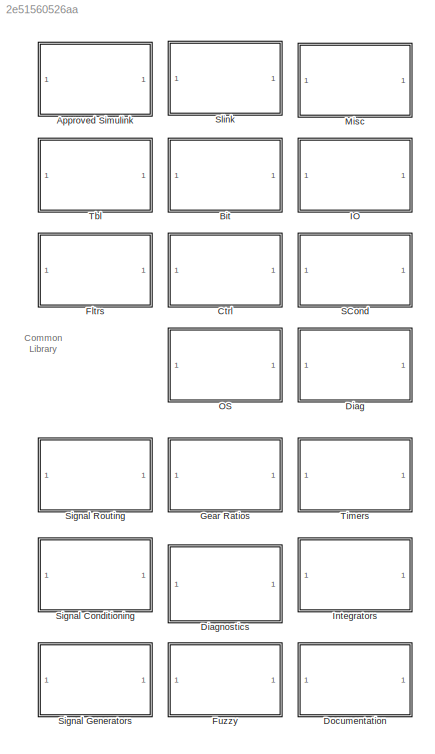
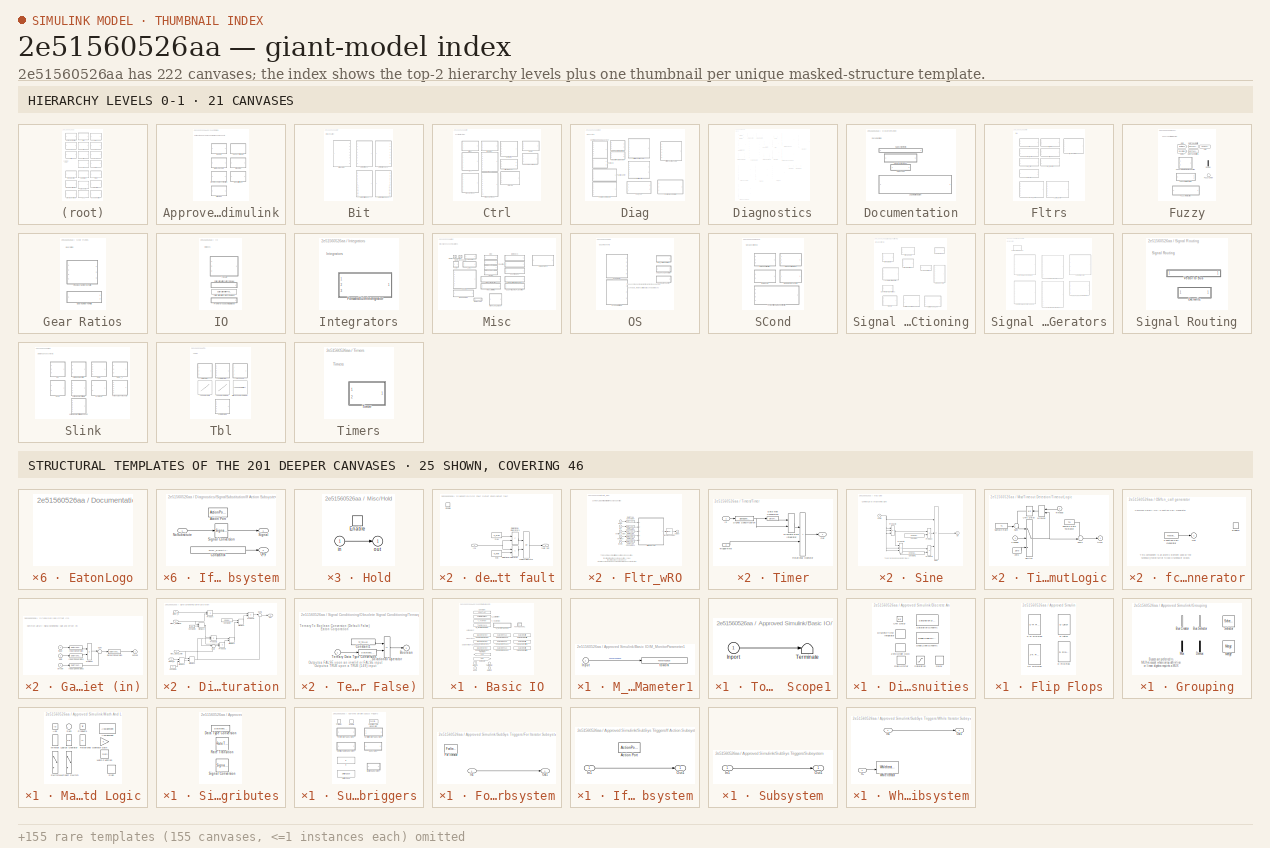
[diagram: thumbnail index - top-2 hierarchy levels (21 canvases) + 25 structural-template representatives of the remaining 201 canvases]
MODEL slx_2e51560526aa
KIND library
CONFIG AbsTol = auto
CONFIG EnableMultiTasking = off
CONFIG FixedStep = auto
CONFIG MaxStep = auto
CONFIG MinStep = auto
CONFIG RelTol = 1e-3
CONFIG SampleTimeConstraint = Unconstrained
CONFIG SolverName = ode45
CONFIG StartTime = 0.0
CONFIG StopTime = 10.0
BLOCK [SubSystem] Approved Simulink
  Ports = []
  RequestExecContextInheritance = off
BLOCK [SubSystem] Approved Simulink/Basic IO
  Ports = [1, 1]
  RequestExecContextInheritance = off
BLOCK [Reference] Approved Simulink/Basic IO/C_Calibration  REF=$bdroot/IO/Calibration with Pretty
Print Value
  Ports = [0, 1]
  SourceBlock = $bdroot/IO/Calibration with Pretty\nPrint Value
  SourceType = Calibratible Input
BLOCK [Constant] Approved Simulink/Basic IO/Constant
  SampleTime = -1
  Value = CONSTANT
BLOCK [DataStoreRead] Approved Simulink/Basic IO/DRDataStoreRead
  DataStoreName = DataStoreRead
  IndexOptions = Index vector (dialog)
  Indices = 1
  OutputSizes = 1
  Ports = [0, 1]
  SampleTime = 0
BLOCK [DataStoreRead] Approved Simulink/Basic IO/DRDataStoreRead1
  DataStoreName = PT_ProductTest_Read
  IndexOptions = Index vector (dialog)
  Indices = 1
  OutputSizes = 1
  Ports = [0, 1]
  SampleTime = 0
BLOCK [DataStoreRead] Approved Simulink/Basic IO/DRDataStoreRead2
  DataStoreName = DM_DataMonitor_Read
  IndexOptions = Index vector (dialog)
  Indices = 1
  OutputSizes = 1
  Ports = [0, 1]
  SampleTime = 0
BLOCK [DataStoreMemory] Approved Simulink/Basic IO/DSDataStoreMemory
  DataStoreName = DataStoreMemory
  ShowAdditionalParam = off
BLOCK [DataStoreMemory] Approved Simulink/Basic IO/DSDataStoreMemory1
  DataStoreName = PT_ProductTest_Memory
  ShowAdditionalParam = off
BLOCK [DataStoreMemory] Approved Simulink/Basic IO/DSDataStoreMemory2
  DataStoreName = DM_DataMonitor
  ShowAdditionalParam = off
BLOCK [DataStoreWrite] Approved Simulink/Basic IO/DWDataStoreWrite
  DataStoreName = DataStoreWrite
  IndexOptions = Index vector (dialog)
  Indices = 1
  OutputSizes = 1
  Ports = [1]
BLOCK [DataStoreWrite] Approved Simulink/Basic IO/DWDataStoreWrite1
  DataStoreName = DataStoreWrite
  IndexOptions = Index vector (dialog)
  Indices = 1
  OutputSizes = 1
  Ports = [1]
BLOCK [DataStoreWrite] Approved Simulink/Basic IO/DWDataStoreWrite2
  DataStoreName = DM_DataMonitor_Write
  IndexOptions = Index vector (dialog)
  Indices = 1
  OutputSizes = 1
  Ports = [1]
BLOCK [From] Approved Simulink/Basic IO/FromFrom
  GotoTag = From
BLOCK [Goto] Approved Simulink/Basic IO/GotoGoto
  GotoTag = Goto
BLOCK [Ground] Approved Simulink/Basic IO/Ground
BLOCK [Inport] Approved Simulink/Basic IO/Inport
BLOCK [ToWorkspace] Approved Simulink/Basic IO/M_MonitorParameter
  Decimation = WORKSPACE_DECIMATION
  MaxDataPoints = inf
  Ports = [1]
  SampleTime = WORKSPACE_UPDATE_RATE
  VariableName = MonitorParameter
BLOCK [SubSystem] Approved Simulink/Basic IO/M_MonitorParameter1
  Ports = [1]
  RequestExecContextInheritance = off
BLOCK [Inport] Approved Simulink/Basic IO/M_MonitorParameter1/Input
BLOCK [ToWorkspace] Approved Simulink/Basic IO/M_MonitorParameter1/towork
  Decimation = WORKSPACE_DECIMATION
  Description = Monitor
  MaxDataPoints = inf
  Ports = [1]
  SampleTime = -1
  VariableName = ToWorkspace
BLOCK [Outport] Approved Simulink/Basic IO/Outport
  VectorParamsAs1DForOutWhenUnconnected = off
BLOCK [Constant] Approved Simulink/Basic IO/T_TestPoint
  SampleTime = -1
  Value = T_TestPoint
BLOCK [Terminator] Approved Simulink/Basic IO/Terminator
BLOCK [SubSystem] Approved Simulink/Basic IO/To xPC Scope1
  Ports = [1]
  RequestExecContextInheritance = off
  ShowPortLabels = none
BLOCK [Inport] Approved Simulink/Basic IO/To xPC Scope1/Inport
BLOCK [Terminator] Approved Simulink/Basic IO/To xPC Scope1/Terminate
BLOCK [SubSystem] Approved Simulink/Discrete And Discontinuities
  Ports = []
  RequestExecContextInheritance = off
BLOCK [Reference] Approved Simulink/Discrete And Discontinuities/Dead Zone Dynamic  REF=simulink/Discontinuities/Dead Zone
Dynamic
  Ports = [3, 1]
  SourceBlock = simulink/Discontinuities/Dead Zone\nDynamic
  SourceProductBaseCode = SL
  SourceType = Dead Zone Dynamic
BLOCK [DiscreteIntegrator] Approved Simulink/Discrete And Discontinuities/Discrete-Time Integrator
  ICPrevOutput = DiscIntNeverNeededParam
  ICPrevScaledInput = DiscIntNeverNeededParam
  Ports = [1, 1]
BLOCK [RateLimiter] Approved Simulink/Discrete And Discontinuities/Rate Limiter
  SampleTimeMode = inherited
BLOCK [Relay] Approved Simulink/Discrete And Discontinuities/Relay
BLOCK [Saturate] Approved Simulink/Discrete And Discontinuities/Saturation
BLOCK [Reference] Approved Simulink/Discrete And Discontinuities/Saturation Dynamic  REF=simulink/Discontinuities/Saturation
Dynamic
  Ports = [3, 1]
  SourceBlock = simulink/Discontinuities/Saturation\nDynamic
  SourceProductBaseCode = SL
  SourceType = Saturation Dynamic
BLOCK [UnitDelay] Approved Simulink/Discrete And Discontinuities/Unit Delay
  AttributesFormatString = ic=%<X0>
  HasFrameUpgradeWarning = on
  InitialCondition = IC
  SampleTime = -1
BLOCK [ZeroOrderHold] Approved Simulink/Discrete And Discontinuities/Zero-Order Hold
BLOCK [SubSystem] Approved Simulink/Flip Flops
  Ports = []
  RequestExecContextInheritance = off
BLOCK [Reference] Approved Simulink/Flip Flops/D Flip-Flop  REF=simulink_extras/Flip Flops/D Flip-Flop
  Ports = [3, 2]
  SourceBlock = simulink_extras/Flip Flops/D Flip-Flop
  SourceProductBaseCode = SL
  SourceType = DFlipFlop
BLOCK [Reference] Approved Simulink/Flip Flops/D Latch  REF=simulink_extras/Flip Flops/D Latch
  Ports = [2, 2]
  SourceBlock = simulink_extras/Flip Flops/D Latch
  SourceProductBaseCode = SL
  SourceType = DLatch
BLOCK [Reference] Approved Simulink/Flip Flops/J-K Flip-Flop  REF=simulink_extras/Flip Flops/J-K
Flip-Flop
  Ports = [3, 2]
  SourceBlock = simulink_extras/Flip Flops/J-K\nFlip-Flop
  SourceProductBaseCode = SL
  SourceType = JKFlipFlop
BLOCK [Reference] Approved Simulink/Flip Flops/S-R Flip-Flop  REF=simulink_extras/Flip Flops/S-R
Flip-Flop
  Ports = [2, 2]
  SourceBlock = simulink_extras/Flip Flops/S-R\nFlip-Flop
  SourceProductBaseCode = SL
  SourceType = SRFlipFlop
BLOCK [SubSystem] Approved Simulink/Grouping
  Ports = []
  RequestExecContextInheritance = off
BLOCK [BusCreator] Approved Simulink/Grouping/Bus Creator
  DisplayOption = bar
  InheritFromInputs = on
  Inputs = 2
  Ports = [2, 1]
BLOCK [BusSelector] Approved Simulink/Grouping/Bus Selector
  OutputSignals = signal1,signal2
  Ports = [1, 2]
BLOCK [Demux] Approved Simulink/Grouping/Demux
  Outputs = 2
  Ports = [1, 2]
BLOCK [Merge] Approved Simulink/Grouping/Merge
  Ports = [2, 1]
BLOCK [Mux] Approved Simulink/Grouping/Mux
  DisplayOption = bar
  Inputs = 2
  Ports = [2, 1]
BLOCK [Selector] Approved Simulink/Grouping/Selector
  IndexOptions = Index vector (dialog)
  Indices = [1 3]
  InputPortWidth = 3
  OutputSizes = 1
  Ports = [1, 1]
BLOCK [SubSystem] Approved Simulink/Math And Logic
  Ports = []
  RequestExecContextInheritance = off
BLOCK [Abs] Approved Simulink/Math And Logic/Abs
  SaturateOnIntegerOverflow = off
  ZeroCross = off
BLOCK [Assignment] Approved Simulink/Math And Logic/Assignment
  IndexOptions = Index vector (dialog)
  Indices = 1
  OutputSizes = 1
  Ports = [2, 1]
BLOCK [Gain] Approved Simulink/Math And Logic/Gain
BLOCK [Logic] Approved Simulink/Math And Logic/Logical Operator
  AllPortsSameDT = off
  Operator = OR
  Ports = [2, 1]
BLOCK [Math] Approved Simulink/Math And Logic/Math Function
  Ports = [1, 1]
  SignedPower = on
BLOCK [MinMax] Approved Simulink/Math And Logic/MinMax
  InputSameDT = on
  Inputs = 2
  Ports = [2, 1]
  ZeroCross = off
BLOCK [MultiPortSwitch] Approved Simulink/Math And Logic/Multiport Switch
  InputSameDT = off
  Ports = [4, 1]
  SaturateOnIntegerOverflow = off
BLOCK [Product] Approved Simulink/Math And Logic/Product1
  OutDataTypeStr = Inherit: Same as first input
  Ports = [2, 1]
BLOCK [RelationalOperator] Approved Simulink/Math And Logic/Relational Operator
  InputSameDT = off
  Operator = <=
  Ports = [2, 1]
  ZeroCross = off
BLOCK [Signum] Approved Simulink/Math And Logic/Sign
BLOCK [Sum] Approved Simulink/Math And Logic/Sum
  Inputs = |+-
  Ports = [2, 1]
BLOCK [Switch] Approved Simulink/Math And Logic/Switch
  InputSameDT = off
  SaturateOnIntegerOverflow = off
  Threshold = 0.5
  ZeroCross = off
BLOCK [SubSystem] Approved Simulink/Signal Attributes
  Ports = []
  RequestExecContextInheritance = off
BLOCK [DataTypeConversion] Approved Simulink/Signal Attributes/Data Type Conversion
  SaturateOnIntegerOverflow = off
BLOCK [RateTransition] Approved Simulink/Signal Attributes/Rate Transition
BLOCK [SignalConversion] Approved Simulink/Signal Attributes/Signal Conversion
  ConversionOutput = Contiguous copy
  OverrideOpt = off
BLOCK [SubSystem] Approved Simulink/SubSys Triggers
  Ports = [0, 0, 1, 1]
  RequestExecContextInheritance = off
  TreatAsAtomicUnit = on
BLOCK [SubSystem] Approved Simulink/SubSys Triggers/Configurable Subsystem
  Ports = []
  RequestExecContextInheritance = off
  TemplateBlock = self
BLOCK [EnablePort] Approved Simulink/SubSys Triggers/Enable
  Ports = []
  ZeroCross = off
BLOCK [SubSystem] Approved Simulink/SubSys Triggers/For Iterator Subsystem
  Ports = [1, 1]
  RequestExecContextInheritance = off
  TreatAsAtomicUnit = on
BLOCK [ForIterator] Approved Simulink/SubSys Triggers/For Iterator Subsystem/For Iterator
  Ports = [0, 1]
BLOCK [Inport] Approved Simulink/SubSys Triggers/For Iterator Subsystem/In1
BLOCK [Outport] Approved Simulink/SubSys Triggers/For Iterator Subsystem/Out1
  VectorParamsAs1DForOutWhenUnconnected = off
BLOCK [Reference] Approved Simulink/SubSys Triggers/Function-Call Generator  REF=simulink/Ports &
Subsystems/Function-Call
Generator
  Ports = [0, 1]
  SourceBlock = simulink/Ports &\nSubsystems/Function-Call\nGenerator
  SourceProductBaseCode = SL
  SourceType = Function-Call Generator
BLOCK [If] Approved Simulink/SubSys Triggers/If
  Ports = [1, 2]
BLOCK [SubSystem] Approved Simulink/SubSys Triggers/If Action Subsystem
  Ports = [1, 1, 0, 0, 0, 0, 0, 1]
  RequestExecContextInheritance = off
  TreatAsAtomicUnit = on
BLOCK [ActionPort] Approved Simulink/SubSys Triggers/If Action Subsystem/Action Port
BLOCK [Inport] Approved Simulink/SubSys Triggers/If Action Subsystem/In1
BLOCK [Outport] Approved Simulink/SubSys Triggers/If Action Subsystem/Out1
  VectorParamsAs1DForOutWhenUnconnected = off
BLOCK [SubSystem] Approved Simulink/SubSys Triggers/Subsystem
  Ports = [1, 1]
  RequestExecContextInheritance = off
BLOCK [Inport] Approved Simulink/SubSys Triggers/Subsystem/In1
BLOCK [Outport] Approved Simulink/SubSys Triggers/Subsystem/Out1
  VectorParamsAs1DForOutWhenUnconnected = off
BLOCK [SwitchCase] Approved Simulink/SubSys Triggers/Switch Case
  Ports = [1, 2]
BLOCK [TriggerPort] Approved Simulink/SubSys Triggers/Trigger
  Ports = []
  StatesWhenEnabling = held
  VariantControl = (inherit)
  ZeroCross = off
BLOCK [SubSystem] Approved Simulink/SubSys Triggers/While Iterator Subsystem
  Ports = [2, 1]
  RequestExecContextInheritance = off
  TreatAsAtomicUnit = on
BLOCK [Inport] Approved Simulink/SubSys Triggers/While Iterator Subsystem/IC
  Port = 2
BLOCK [Inport] Approved Simulink/SubSys Triggers/While Iterator Subsystem/In1
BLOCK [Outport] Approved Simulink/SubSys Triggers/While Iterator Subsystem/Out1
  VectorParamsAs1DForOutWhenUnconnected = off
BLOCK [WhileIterator] Approved Simulink/SubSys Triggers/While Iterator Subsystem/While Iterator
  Ports = [2]
BLOCK [SubSystem] Bit
  Ports = []
  RequestExecContextInheritance = off
BLOCK [SubSystem] Bit/Bit Operator
  Ports = [1, 8]
  RequestExecContextInheritance = off
BLOCK [Reference] Bit/Bit Operator/BitOp1  REF=simulink/Logic and Bit
Operations/Bitwise
Operator
  Ports = [1, 1]
  SourceBlock = simulink/Logic and Bit\nOperations/Bitwise\nOperator
  SourceProductBaseCode = SL
  SourceType = Bitwise Operator
BLOCK [Reference] Bit/Bit Operator/BitOp2  REF=simulink/Logic and Bit
Operations/Bitwise
Operator
  Ports = [1, 1]
  SourceBlock = simulink/Logic and Bit\nOperations/Bitwise\nOperator
  SourceProductBaseCode = SL
  SourceType = Bitwise Operator
BLOCK [Reference] Bit/Bit Operator/BitOp3  REF=simulink/Logic and Bit
Operations/Bitwise
Operator
  Ports = [1, 1]
  SourceBlock = simulink/Logic and Bit\nOperations/Bitwise\nOperator
  SourceProductBaseCode = SL
  SourceType = Bitwise Operator
BLOCK [Reference] Bit/Bit Operator/BitOp4  REF=simulink/Logic and Bit
Operations/Bitwise
Operator
  Ports = [1, 1]
  SourceBlock = simulink/Logic and Bit\nOperations/Bitwise\nOperator
  SourceProductBaseCode = SL
  SourceType = Bitwise Operator
BLOCK [Reference] Bit/Bit Operator/BitOp5  REF=simulink/Logic and Bit
Operations/Bitwise
Operator
  Ports = [1, 1]
  SourceBlock = simulink/Logic and Bit\nOperations/Bitwise\nOperator
  SourceProductBaseCode = SL
  SourceType = Bitwise Operator
BLOCK [Reference] Bit/Bit Operator/BitOp6  REF=simulink/Logic and Bit
Operations/Bitwise
Operator
  Ports = [1, 1]
  SourceBlock = simulink/Logic and Bit\nOperations/Bitwise\nOperator
  SourceProductBaseCode = SL
  SourceType = Bitwise Operator
BLOCK [Reference] Bit/Bit Operator/BitOp7  REF=simulink/Logic and Bit
Operations/Bitwise
Operator
  Ports = [1, 1]
  SourceBlock = simulink/Logic and Bit\nOperations/Bitwise\nOperator
  SourceProductBaseCode = SL
  SourceType = Bitwise Operator
BLOCK [Reference] Bit/Bit Operator/BitOp8  REF=simulink/Logic and Bit
Operations/Bitwise
Operator
  Ports = [1, 1]
  SourceBlock = simulink/Logic and Bit\nOperations/Bitwise\nOperator
  SourceProductBaseCode = SL
  SourceType = Bitwise Operator
BLOCK [Outport] Bit/Bit Operator/BitOut1
  VectorParamsAs1DForOutWhenUnconnected = off
BLOCK [Outport] Bit/Bit Operator/BitOut2
  Port = 2
  VectorParamsAs1DForOutWhenUnconnected = off
BLOCK [Outport] Bit/Bit Operator/BitOut3
  Port = 3
  VectorParamsAs1DForOutWhenUnconnected = off
BLOCK [Outport] Bit/Bit Operator/BitOut4
  Port = 4
  VectorParamsAs1DForOutWhenUnconnected = off
BLOCK [Outport] Bit/Bit Operator/BitOut5
  Port = 5
  VectorParamsAs1DForOutWhenUnconnected = off
BLOCK [Outport] Bit/Bit Operator/BitOut6
  Port = 6
  VectorParamsAs1DForOutWhenUnconnected = off
BLOCK [Outport] Bit/Bit Operator/BitOut7
  Port = 7
  VectorParamsAs1DForOutWhenUnconnected = off
BLOCK [Outport] Bit/Bit Operator/BitOut8
  Port = 8
  VectorParamsAs1DForOutWhenUnconnected = off
BLOCK [RelationalOperator] Bit/Bit Operator/Compare1
  Operator = ==
  Ports = [2, 1]
BLOCK [RelationalOperator] Bit/Bit Operator/Compare2
  Operator = ==
  Ports = [2, 1]
BLOCK [RelationalOperator] Bit/Bit Operator/Compare3
  Operator = ==
  Ports = [2, 1]
BLOCK [RelationalOperator] Bit/Bit Operator/Compare4
  Operator = ==
  Ports = [2, 1]
BLOCK [RelationalOperator] Bit/Bit Operator/Compare5
  Operator = ==
  Ports = [2, 1]
BLOCK [RelationalOperator] Bit/Bit Operator/Compare6
  Operator = ==
  Ports = [2, 1]
BLOCK [RelationalOperator] Bit/Bit Operator/Compare7
  Operator = ==
  Ports = [2, 1]
BLOCK [RelationalOperator] Bit/Bit Operator/Compare8
  Operator = ==
  Ports = [2, 1]
BLOCK [Inport] Bit/Bit Operator/IntIn
BLOCK [Constant] Bit/Bit Operator/Number1
  Value = uint8(128)
BLOCK [Constant] Bit/Bit Operator/Number2
  Value = uint8(64)
BLOCK [Constant] Bit/Bit Operator/Number3
  Value = uint8(32)
BLOCK [Constant] Bit/Bit Operator/Number4
  Value = uint8(16)
BLOCK [Constant] Bit/Bit Operator/Number5
  Value = uint8(8)
BLOCK [Constant] Bit/Bit Operator/Number6
  Value = uint8(4)
BLOCK [Constant] Bit/Bit Operator/Number7
  Value = uint8(2)
BLOCK [Constant] Bit/Bit Operator/Number8
  Value = uint8(1)
BLOCK [SubSystem] Bit/uint16 Bit Pack
  ErrorFcn = Stateflow.Translate.translate
  PermitHierarchicalResolution = ExplicitOnly
  Ports = [16, 1]
  RequestExecContextInheritance = off
  SFBlockType = Chart
  TreatAsAtomicUnit = on
BLOCK [Demux] Bit/uint16 Bit Pack/ Demux 
  Outputs = 1
  Ports = [1, 1]
BLOCK [S-Function] Bit/uint16 Bit Pack/ SFunction 
  EnableBusSupport = off
  FunctionName = sf_sfun
  PortCounts = [16 2]
  Ports = [16, 2]
  SFcnIsStateOwnerBlock = off
  SFunctionDeploymentMode = off
  Tag = Stateflow S-Function 3
BLOCK [Terminator] Bit/uint16 Bit Pack/ Terminator 
BLOCK [Inport] Bit/uint16 Bit Pack/Bit_0
BLOCK [Inport] Bit/uint16 Bit Pack/Bit_1
  Port = 2
BLOCK [Inport] Bit/uint16 Bit Pack/Bit_10
  Port = 11
BLOCK [Inport] Bit/uint16 Bit Pack/Bit_11
  Port = 12
BLOCK [Inport] Bit/uint16 Bit Pack/Bit_12
  Port = 13
BLOCK [Inport] Bit/uint16 Bit Pack/Bit_13
  Port = 14
BLOCK [Inport] Bit/uint16 Bit Pack/Bit_14
  Port = 15
BLOCK [Inport] Bit/uint16 Bit Pack/Bit_15
  Port = 16
BLOCK [Inport] Bit/uint16 Bit Pack/Bit_2
  Port = 3
BLOCK [Inport] Bit/uint16 Bit Pack/Bit_3
  Port = 4
BLOCK [Inport] Bit/uint16 Bit Pack/Bit_4
  Port = 5
BLOCK [Inport] Bit/uint16 Bit Pack/Bit_5
  Port = 6
BLOCK [Inport] Bit/uint16 Bit Pack/Bit_6
  Port = 7
BLOCK [Inport] Bit/uint16 Bit Pack/Bit_7
  Port = 8
BLOCK [Inport] Bit/uint16 Bit Pack/Bit_8
  Port = 9
BLOCK [Inport] Bit/uint16 Bit Pack/Bit_9
  Port = 10
BLOCK [Outport] Bit/uint16 Bit Pack/Byte
  VectorParamsAs1DForOutWhenUnconnected = off
BLOCK [SubSystem] Bit/uint16 Bit Unpack
  ErrorFcn = Stateflow.Translate.translate
  PermitHierarchicalResolution = ExplicitOnly
  Ports = [1, 16]
  RequestExecContextInheritance = off
  SFBlockType = Chart
  TreatAsAtomicUnit = on
BLOCK [Demux] Bit/uint16 Bit Unpack/ Demux 
  Outputs = 1
  Ports = [1, 1]
BLOCK [S-Function] Bit/uint16 Bit Unpack/ SFunction 
  EnableBusSupport = off
  FunctionName = sf_sfun
  PortCounts = [1 17]
  Ports = [1, 17]
  SFcnIsStateOwnerBlock = off
  SFunctionDeploymentMode = off
  Tag = Stateflow S-Function 4
BLOCK [Terminator] Bit/uint16 Bit Unpack/ Terminator 
BLOCK [Outport] Bit/uint16 Bit Unpack/Bit_0
  VectorParamsAs1DForOutWhenUnconnected = off
BLOCK [Outport] Bit/uint16 Bit Unpack/Bit_1
  Port = 2
  VectorParamsAs1DForOutWhenUnconnected = off
BLOCK [Outport] Bit/uint16 Bit Unpack/Bit_10
  Port = 11
  VectorParamsAs1DForOutWhenUnconnected = off
BLOCK [Outport] Bit/uint16 Bit Unpack/Bit_11
  Port = 12
  VectorParamsAs1DForOutWhenUnconnected = off
BLOCK [Outport] Bit/uint16 Bit Unpack/Bit_12
  Port = 13
  VectorParamsAs1DForOutWhenUnconnected = off
BLOCK [Outport] Bit/uint16 Bit Unpack/Bit_13
  Port = 14
  VectorParamsAs1DForOutWhenUnconnected = off
BLOCK [Outport] Bit/uint16 Bit Unpack/Bit_14
  Port = 15
  VectorParamsAs1DForOutWhenUnconnected = off
BLOCK [Outport] Bit/uint16 Bit Unpack/Bit_15
  Port = 16
  VectorParamsAs1DForOutWhenUnconnected = off
BLOCK [Outport] Bit/uint16 Bit Unpack/Bit_2
  Port = 3
  VectorParamsAs1DForOutWhenUnconnected = off
BLOCK [Outport] Bit/uint16 Bit Unpack/Bit_3
  Port = 4
  VectorParamsAs1DForOutWhenUnconnected = off
BLOCK [Outport] Bit/uint16 Bit Unpack/Bit_4
  Port = 5
  VectorParamsAs1DForOutWhenUnconnected = off
BLOCK [Outport] Bit/uint16 Bit Unpack/Bit_5
  Port = 6
  VectorParamsAs1DForOutWhenUnconnected = off
BLOCK [Outport] Bit/uint16 Bit Unpack/Bit_6
  Port = 7
  VectorParamsAs1DForOutWhenUnconnected = off
BLOCK [Outport] Bit/uint16 Bit Unpack/Bit_7
  Port = 8
  VectorParamsAs1DForOutWhenUnconnected = off
BLOCK [Outport] Bit/uint16 Bit Unpack/Bit_8
  Port = 9
  VectorParamsAs1DForOutWhenUnconnected = off
BLOCK [Outport] Bit/uint16 Bit Unpack/Bit_9
  Port = 10
  VectorParamsAs1DForOutWhenUnconnected = off
BLOCK [Inport] Bit/uint16 Bit Unpack/Byte
BLOCK [SubSystem] Bit/uint8 Bit Pack
  ErrorFcn = Stateflow.Translate.translate
  PermitHierarchicalResolution = ExplicitOnly
  Ports = [8, 1]
  RequestExecContextInheritance = off
  SFBlockType = Chart
  TreatAsAtomicUnit = on
BLOCK [Demux] Bit/uint8 Bit Pack/ Demux 
  Outputs = 1
  Ports = [1, 1]
BLOCK [S-Function] Bit/uint8 Bit Pack/ SFunction 
  EnableBusSupport = off
  FunctionName = sf_sfun
  PortCounts = [8 2]
  Ports = [8, 2]
  SFcnIsStateOwnerBlock = off
  SFunctionDeploymentMode = off
  Tag = Stateflow S-Function 1
BLOCK [Terminator] Bit/uint8 Bit Pack/ Terminator 
BLOCK [Inport] Bit/uint8 Bit Pack/Bit_0
BLOCK [Inport] Bit/uint8 Bit Pack/Bit_1
  Port = 2
BLOCK [Inport] Bit/uint8 Bit Pack/Bit_2
  Port = 3
BLOCK [Inport] Bit/uint8 Bit Pack/Bit_3
  Port = 4
BLOCK [Inport] Bit/uint8 Bit Pack/Bit_4
  Port = 5
BLOCK [Inport] Bit/uint8 Bit Pack/Bit_5
  Port = 6
BLOCK [Inport] Bit/uint8 Bit Pack/Bit_6
  Port = 7
BLOCK [Inport] Bit/uint8 Bit Pack/Bit_7
  Port = 8
BLOCK [Outport] Bit/uint8 Bit Pack/Byte
  VectorParamsAs1DForOutWhenUnconnected = off
BLOCK [SubSystem] Bit/uint8 Bit Unpack
  ErrorFcn = Stateflow.Translate.translate
  PermitHierarchicalResolution = ExplicitOnly
  Ports = [1, 8]
  RequestExecContextInheritance = off
  SFBlockType = Chart
  TreatAsAtomicUnit = on
BLOCK [Demux] Bit/uint8 Bit Unpack/ Demux 
  Outputs = 1
  Ports = [1, 1]
BLOCK [S-Function] Bit/uint8 Bit Unpack/ SFunction 
  EnableBusSupport = off
  FunctionName = sf_sfun
  PortCounts = [1 9]
  Ports = [1, 9]
  SFcnIsStateOwnerBlock = off
  SFunctionDeploymentMode = off
  Tag = Stateflow S-Function 2
BLOCK [Terminator] Bit/uint8 Bit Unpack/ Terminator 
BLOCK [Outport] Bit/uint8 Bit Unpack/Bit_0
  VectorParamsAs1DForOutWhenUnconnected = off
BLOCK [Outport] Bit/uint8 Bit Unpack/Bit_1
  Port = 2
  VectorParamsAs1DForOutWhenUnconnected = off
BLOCK [Outport] Bit/uint8 Bit Unpack/Bit_2
  Port = 3
  VectorParamsAs1DForOutWhenUnconnected = off
BLOCK [Outport] Bit/uint8 Bit Unpack/Bit_3
  Port = 4
  VectorParamsAs1DForOutWhenUnconnected = off
BLOCK [Outport] Bit/uint8 Bit Unpack/Bit_4
  Port = 5
  VectorParamsAs1DForOutWhenUnconnected = off
BLOCK [Outport] Bit/uint8 Bit Unpack/Bit_5
  Port = 6
  VectorParamsAs1DForOutWhenUnconnected = off
BLOCK [Outport] Bit/uint8 Bit Unpack/Bit_6
  Port = 7
  VectorParamsAs1DForOutWhenUnconnected = off
BLOCK [Outport] Bit/uint8 Bit Unpack/Bit_7
  Port = 8
  VectorParamsAs1DForOutWhenUnconnected = off
BLOCK [Inport] Bit/uint8 Bit Unpack/Byte
BLOCK [SubSystem] Ctrl
  Ports = []
  RequestExecContextInheritance = off
BLOCK [SubSystem] Ctrl/Derivative
  Ports = [5, 1]
  RTWFcnName = DER
  RTWFcnNameOpts = User specified
  RTWFileNameOpts = Use function name
  RTWSystemCode = Reusable function
  RequestExecContextInheritance = off
BLOCK [DataTypeConversion] Ctrl/Derivative/Data Type Conversion
  OutDataTypeStr = boolean
  RndMeth = Floor
  SaturateOnIntegerOverflow = off
BLOCK [DataTypeConversion] Ctrl/Derivative/Data Type Conversion1
  OutDataTypeStr = single
  RndMeth = Floor
  SaturateOnIntegerOverflow = off
BLOCK [DataTypeConversion] Ctrl/Derivative/Data Type Conversion2
  OutDataTypeStr = single
  RndMeth = Floor
  SaturateOnIntegerOverflow = off
BLOCK [SubSystem] Ctrl/Derivative/DerivativeCoreLogic
  Ports = [5, 1]
  RTWFcnName = DER
  RTWFcnNameOpts = User specified
  RTWFileNameOpts = Use function name
  RTWSystemCode = Reusable function
  RequestExecContextInheritance = off
  TreatAsAtomicUnit = on
BLOCK [Constant] Ctrl/Derivative/DerivativeCoreLogic/Constant1
  NameLocation = right
  Value = One
BLOCK [Constant] Ctrl/Derivative/DerivativeCoreLogic/Constant6
  Value = Zero
BLOCK [UnitDelay] Ctrl/Derivative/DerivativeCoreLogic/IC:  0
  HasFrameUpgradeWarning = on
  InitialCondition = Zero
  SampleTime = -1
BLOCK [UnitDelay] Ctrl/Derivative/DerivativeCoreLogic/IC: 0
  HasFrameUpgradeWarning = on
  InitialCondition = Zero
  SampleTime = -1
BLOCK [Product] Ctrl/Derivative/DerivativeCoreLogic/Product2
  InputSameDT = on
  Inputs = */
  OutDataTypeStr = Inherit: Same as first input
  Ports = [2, 1]
BLOCK [Reference] Ctrl/Derivative/DerivativeCoreLogic/Sat  REF=$bdroot/Slink/Sat
  Ports = [3, 1]
  SourceBlock = $bdroot/Slink/Sat
  SourceType = CL Variable Saturation
BLOCK [Sum] Ctrl/Derivative/DerivativeCoreLogic/Sum
  InputSameDT = on
  Inputs = ++-
  NameLocation = top
  OutDataTypeStr = Inherit: Same as first input
  Ports = [3, 1]
BLOCK [Sum] Ctrl/Derivative/DerivativeCoreLogic/Sum3
  InputSameDT = on
  Inputs = |++
  NameLocation = top
  OutDataTypeStr = Inherit: Same as first input
  Ports = [2, 1]
BLOCK [Switch] Ctrl/Derivative/DerivativeCoreLogic/Switch
  Criteria = u2 ~= 0
  SaturateOnIntegerOverflow = off
  Threshold = 0.5
  ZeroCross = off
BLOCK [Inport] Ctrl/Derivative/DerivativeCoreLogic/cutoff
  OutDataTypeStr = single
  Port = 2
BLOCK [Inport] Ctrl/Derivative/DerivativeCoreLogic/input
  OutDataTypeStr = single
BLOCK [Inport] Ctrl/Derivative/DerivativeCoreLogic/llim
  Port = 5
BLOCK [Outport] Ctrl/Derivative/DerivativeCoreLogic/output
  OutDataTypeStr = single
  VectorParamsAs1DForOutWhenUnconnected = off
BLOCK [Inport] Ctrl/Derivative/DerivativeCoreLogic/reset?
  OutDataTypeStr = boolean
  Port = 3
BLOCK [Inport] Ctrl/Derivative/DerivativeCoreLogic/ulim
  Port = 4
BLOCK [Gain] Ctrl/Derivative/Gain
  Gain = Ts
BLOCK [Product] Ctrl/Derivative/Product1
  InputSameDT = on
  Inputs = **
  OutDataTypeStr = Inherit: Same as first input
  Ports = [2, 1]
BLOCK [SignalConversion] Ctrl/Derivative/Signal Conversion
  ConversionOutput = Contiguous copy
  OverrideOpt = off
BLOCK [Inport] Ctrl/Derivative/cutoff
  Port = 2
BLOCK [Inport] Ctrl/Derivative/input
BLOCK [Inport] Ctrl/Derivative/llim
  Port = 4
BLOCK [Outport] Ctrl/Derivative/output
  VectorParamsAs1DForOutWhenUnconnected = off
BLOCK [Inport] Ctrl/Derivative/reset?
  OutDataTypeStr = boolean
  Port = 5
BLOCK [Inport] Ctrl/Derivative/ulim
  Port = 3
BLOCK [SubSystem] Ctrl/Dither
  Ports = [3, 1]
  RequestExecContextInheritance = off
BLOCK [SubSystem] Ctrl/Dither w Reset
  Ports = [3, 2]
  RequestExecContextInheritance = off
BLOCK [Constant] Ctrl/Dither w Reset/Constant1
  Value = MinusOne
BLOCK [Constant] Ctrl/Dither w Reset/Constant14
  Value = int16(1)
BLOCK [Constant] Ctrl/Dither w Reset/Constant2
  Value = One
BLOCK [Constant] Ctrl/Dither w Reset/Constant3
  Value = Two
BLOCK [Constant] Ctrl/Dither w Reset/Constant4
  Value = One
BLOCK [Constant] Ctrl/Dither w Reset/Constant5
  Value = lim
BLOCK [Constant] Ctrl/Dither w Reset/Constant6
  Value = One
BLOCK [Constant] Ctrl/Dither w Reset/Constant7
  NameLocation = left
  Value = int16(1)
BLOCK [Constant] Ctrl/Dither w Reset/Constant8
  Value = TimeStep
BLOCK [Constant] Ctrl/Dither w Reset/Constant9
  Value = ZeroFive
BLOCK [DataTypeConversion] Ctrl/Dither w Reset/Data Type Conversion
  NameLocation = top
  OutDataTypeStr = single
  SaturateOnIntegerOverflow = off
BLOCK [DataTypeConversion] Ctrl/Dither w Reset/Data Type Conversion1
  OutDataTypeStr = single
  RndMeth = Floor
  SaturateOnIntegerOverflow = off
BLOCK [Reference] Ctrl/Dither w Reset/Fltr  REF=$bdroot/Fltrs/Fltr
  Ports = [2, 1]
  SourceBlock = $bdroot/Fltrs/Fltr
  SourceType = CL Filter
BLOCK [Logic] Ctrl/Dither w Reset/Logical Operator
  Operator = NOT
  Ports = [1, 1]
BLOCK [Logic] Ctrl/Dither w Reset/Logical Operator1
  Operator = NOT
  Ports = [1, 1]
BLOCK [MinMax] Ctrl/Dither w Reset/MinMax1
  InputSameDT = on
  Inputs = 2
  Ports = [2, 1]
  SaturateOnIntegerOverflow = on
  ZeroCross = off
BLOCK [MinMax] Ctrl/Dither w Reset/MinMax2
  Function = max
  InputSameDT = on
  Inputs = 2
  Ports = [2, 1]
  SaturateOnIntegerOverflow = on
  ZeroCross = off
BLOCK [Product] Ctrl/Dither w Reset/Product1
  InputSameDT = on
  Inputs = **
  OutDataTypeStr = Inherit: Same as first input
  Ports = [2, 1]
BLOCK [Product] Ctrl/Dither w Reset/Product2
  InputSameDT = on
  Inputs = ***
  OutDataTypeStr = Inherit: Same as first input
  Ports = [3, 1]
BLOCK [Product] Ctrl/Dither w Reset/Product3
  InputSameDT = on
  Inputs = */
  OutDataTypeStr = Inherit: Same as first input
  Ports = [2, 1]
BLOCK [RelationalOperator] Ctrl/Dither w Reset/Relational Operator
  Operator = <
  Ports = [2, 1]
  ZeroCross = off
BLOCK [Sum] Ctrl/Dither w Reset/Sum1
  InputSameDT = on
  Inputs = |++
  OutDataTypeStr = Inherit: Same as first input
  Ports = [2, 1]
BLOCK [Sum] Ctrl/Dither w Reset/Sum3
  InputSameDT = on
  Inputs = ++|
  NameLocation = top
  OutDataTypeStr = Inherit: Same as first input
  Ports = [2, 1]
BLOCK [Switch] Ctrl/Dither w Reset/Switch1
  SaturateOnIntegerOverflow = off
  Threshold = 0.5
  ZeroCross = off
BLOCK [Switch] Ctrl/Dither w Reset/Switch2
  SaturateOnIntegerOverflow = off
  Threshold = 0.5
  ZeroCross = off
BLOCK [Switch] Ctrl/Dither w Reset/Switch3
  SaturateOnIntegerOverflow = off
  Threshold = 0.5
  ZeroCross = off
BLOCK [UnitDelay] Ctrl/Dither w Reset/Unit Delay1
  HasFrameUpgradeWarning = on
  InitialCondition = int16(0)
  SampleTime = -1
BLOCK [UnitDelay] Ctrl/Dither w Reset/Unit Delay11
  HasFrameUpgradeWarning = on
  InitialCondition = false
  SampleTime = -1
BLOCK [Inport] Ctrl/Dither w Reset/amplitude
BLOCK [Inport] Ctrl/Dither w Reset/frequency
  Port = 2
BLOCK [Outport] Ctrl/Dither w Reset/output
  VectorParamsAs1DForOutWhenUnconnected = off
BLOCK [Outport] Ctrl/Dither w Reset/reset
  Port = 2
  VectorParamsAs1DForOutWhenUnconnected = off
BLOCK [Inport] Ctrl/Dither w Reset/tau
  Port = 3
BLOCK [Constant] Ctrl/Dither/Constant1
  Value = MinusOne
BLOCK [Constant] Ctrl/Dither/Constant14
  Value = int16(1)
BLOCK [Constant] Ctrl/Dither/Constant2
  Value = One
BLOCK [Constant] Ctrl/Dither/Constant3
  Value = Two
BLOCK [Constant] Ctrl/Dither/Constant4
  Value = One
BLOCK [Constant] Ctrl/Dither/Constant5
  Value = lim
BLOCK [Constant] Ctrl/Dither/Constant6
  Value = One
BLOCK [Constant] Ctrl/Dither/Constant7
  NameLocation = left
  Value = int16(1)
BLOCK [Constant] Ctrl/Dither/Constant8
  Value = TimeStep
BLOCK [Constant] Ctrl/Dither/Constant9
  Value = ZeroFive
BLOCK [DataTypeConversion] Ctrl/Dither/Data Type Conversion
  NameLocation = top
  OutDataTypeStr = single
  SaturateOnIntegerOverflow = off
BLOCK [DataTypeConversion] Ctrl/Dither/Data Type Conversion1
  OutDataTypeStr = single
  RndMeth = Floor
  SaturateOnIntegerOverflow = off
BLOCK [Reference] Ctrl/Dither/Fltr  REF=$bdroot/Fltrs/Fltr
  Ports = [2, 1]
  SourceBlock = $bdroot/Fltrs/Fltr
  SourceType = CL Filter
BLOCK [Logic] Ctrl/Dither/Logical Operator
  Operator = NOT
  Ports = [1, 1]
BLOCK [MinMax] Ctrl/Dither/MinMax1
  InputSameDT = on
  Inputs = 2
  Ports = [2, 1]
  SaturateOnIntegerOverflow = on
  ZeroCross = off
BLOCK [MinMax] Ctrl/Dither/MinMax2
  Function = max
  InputSameDT = on
  Inputs = 2
  Ports = [2, 1]
  SaturateOnIntegerOverflow = on
  ZeroCross = off
BLOCK [Product] Ctrl/Dither/Product1
  InputSameDT = on
  Inputs = **
  OutDataTypeStr = Inherit: Same as first input
  Ports = [2, 1]
BLOCK [Product] Ctrl/Dither/Product2
  InputSameDT = on
  Inputs = ***
  OutDataTypeStr = Inherit: Same as first input
  Ports = [3, 1]
BLOCK [Product] Ctrl/Dither/Product3
  InputSameDT = on
  Inputs = */
  OutDataTypeStr = Inherit: Same as first input
  Ports = [2, 1]
BLOCK [RelationalOperator] Ctrl/Dither/Relational Operator
  Operator = <
  Ports = [2, 1]
  ZeroCross = off
BLOCK [Sum] Ctrl/Dither/Sum1
  InputSameDT = on
  Inputs = |++
  OutDataTypeStr = Inherit: Same as first input
  Ports = [2, 1]
BLOCK [Sum] Ctrl/Dither/Sum3
  InputSameDT = on
  Inputs = ++|
  NameLocation = top
  OutDataTypeStr = Inherit: Same as first input
  Ports = [2, 1]
BLOCK [Switch] Ctrl/Dither/Switch1
  SaturateOnIntegerOverflow = off
  Threshold = 0.5
  ZeroCross = off
BLOCK [Switch] Ctrl/Dither/Switch2
  SaturateOnIntegerOverflow = off
  Threshold = 0.5
  ZeroCross = off
BLOCK [Switch] Ctrl/Dither/Switch3
  SaturateOnIntegerOverflow = off
  Threshold = 0.5
  ZeroCross = off
BLOCK [UnitDelay] Ctrl/Dither/Unit Delay1
  HasFrameUpgradeWarning = on
  InitialCondition = int16(0)
  SampleTime = -1
BLOCK [UnitDelay] Ctrl/Dither/Unit Delay11
  HasFrameUpgradeWarning = on
  InitialCondition = false
  SampleTime = -1
BLOCK [Inport] Ctrl/Dither/amplitude
BLOCK [Inport] Ctrl/Dither/frequency
  Port = 2
BLOCK [Outport] Ctrl/Dither/output
  VectorParamsAs1DForOutWhenUnconnected = off
BLOCK [Inport] Ctrl/Dither/tau
  Port = 3
BLOCK [SubSystem] Ctrl/Integrator
  Ports = [5, 1]
  RTWFcnName = INTEGRATOR
  RTWFcnNameOpts = User specified
  RTWFileNameOpts = Use function name
  RequestExecContextInheritance = off
  TreatAsAtomicUnit = on
BLOCK [Constant] Ctrl/Integrator/Constant1
  Value = TimeStep
BLOCK [DataTypeConversion] Ctrl/Integrator/Data Type Conversion
  OutDataTypeStr = single
  RndMeth = Floor
  SaturateOnIntegerOverflow = off
BLOCK [Outport] Ctrl/Integrator/Output
  VectorParamsAs1DForOutWhenUnconnected = off
BLOCK [Product] Ctrl/Integrator/Product1
  InputSameDT = on
  Inputs = **
  OutDataTypeStr = Inherit: Same as first input
  Ports = [2, 1]
BLOCK [Reference] Ctrl/Integrator/Sat  REF=$bdroot/Slink/Sat
  Ports = [3, 1]
  SourceBlock = $bdroot/Slink/Sat
  SourceType = CL Variable Saturation
BLOCK [Sum] Ctrl/Integrator/Sum
  InputSameDT = on
  Inputs = ++|
  OutDataTypeStr = Inherit: Same as first input
  Ports = [2, 1]
BLOCK [Switch] Ctrl/Integrator/Switch
  NameLocation = top
  SaturateOnIntegerOverflow = off
  Threshold = 0.5
  ZeroCross = off
BLOCK [UnitDelay] Ctrl/Integrator/Unit Delay
  HasFrameUpgradeWarning = on
  InitialCondition = IC
  SampleTime = -1
BLOCK [Inport] Ctrl/Integrator/ic
  NameLocation = top
  Port = 4
BLOCK [Inport] Ctrl/Integrator/input
BLOCK [Inport] Ctrl/Integrator/llim
  Port = 3
BLOCK [Inport] Ctrl/Integrator/reset?
  OutDataTypeStr = boolean
  Port = 5
BLOCK [Inport] Ctrl/Integrator/ulim
  Port = 2
BLOCK [SubSystem] Ctrl/PIDgov
  Ports = [8, 1]
  RequestExecContextInheritance = off
BLOCK [SubSystem] Ctrl/PIDgov w Preset
  Ports = [10, 1]
  RequestExecContextInheritance = off
BLOCK [Abs] Ctrl/PIDgov w Preset/Abs
  NameLocation = top
  SaturateOnIntegerOverflow = off
  ZeroCross = off
BLOCK [Constant] Ctrl/PIDgov w Preset/Constant1
  Value = MinInt
BLOCK [Constant] Ctrl/PIDgov w Preset/Constant12
  Value = MaxDrv
BLOCK [Constant] Ctrl/PIDgov w Preset/Constant13
  Value = MinDrv
BLOCK [Constant] Ctrl/PIDgov w Preset/Constant2
  Value = MaxInt
BLOCK [Constant] Ctrl/PIDgov w Preset/Constant3
  Value = Zero
BLOCK [Constant] Ctrl/PIDgov w Preset/Constant4
  Value = Zero
BLOCK [Constant] Ctrl/PIDgov w Preset/Constant5
  NameLocation = top
  Value = Tol
BLOCK [Reference] Ctrl/PIDgov w Preset/Dt1  REF=$bdroot/Ctrl/Derivative
  Ports = [5, 1]
  SourceBlock = $bdroot/Ctrl/Derivative
  SourceType = CL Derivative
BLOCK [Reference] Ctrl/PIDgov w Preset/Integrator  REF=$bdroot/Ctrl/Integrator
  NameLocation = top
  Ports = [5, 1]
  SourceBlock = $bdroot/Ctrl/Integrator
  SourceType = CL Integrator
BLOCK [Logic] Ctrl/PIDgov w Preset/Logical Operator
  Inputs = 3
  NameLocation = right
  Operator = OR
  Ports = [3, 1]
BLOCK [Product] Ctrl/PIDgov w Preset/Product1
  InputSameDT = on
  OutDataTypeStr = Inherit: Same as first input
  Ports = [2, 1]
BLOCK [Product] Ctrl/PIDgov w Preset/Product2
  InputSameDT = on
  OutDataTypeStr = Inherit: Same as first input
  Ports = [2, 1]
BLOCK [Product] Ctrl/PIDgov w Preset/Product3
  InputSameDT = on
  OutDataTypeStr = Inherit: Same as first input
  Ports = [2, 1]
BLOCK [RelationalOperator] Ctrl/PIDgov w Preset/Relational Operator
  NameLocation = top
  Operator = >
  Ports = [2, 1]
  ZeroCross = off
BLOCK [Reference] Ctrl/PIDgov w Preset/Sat  REF=$bdroot/Slink/Sat
  Ports = [3, 1]
  SourceBlock = $bdroot/Slink/Sat
  SourceType = CL Variable Saturation
BLOCK [Reference] Ctrl/PIDgov w Preset/Sat1  REF=$bdroot/Slink/Sat
  NameLocation = top
  Ports = [3, 1]
  SourceBlock = $bdroot/Slink/Sat
  SourceType = CL Variable Saturation
BLOCK [Sum] Ctrl/PIDgov w Preset/Sum1
  IconShape = rectangular
  InputSameDT = on
  Inputs = +-
  NameLocation = top
  OutDataTypeStr = Inherit: Same as first input
  Ports = [2, 1]
BLOCK [Sum] Ctrl/PIDgov w Preset/Sum2
  InputSameDT = on
  Inputs = +-|
  NameLocation = top
  OutDataTypeStr = Inherit: Same as first input
  Ports = [2, 1]
BLOCK [Sum] Ctrl/PIDgov w Preset/Sum3
  IconShape = rectangular
  InputSameDT = on
  Inputs = +++
  OutDataTypeStr = Inherit: Same as first input
  Ports = [3, 1]
BLOCK [Sum] Ctrl/PIDgov w Preset/Sum4
  IconShape = rectangular
  InputSameDT = on
  NameLocation = right
  OutDataTypeStr = Inherit: Same as first input
  Ports = [2, 1]
BLOCK [Sum] Ctrl/PIDgov w Preset/Sum5
  IconShape = rectangular
  InputSameDT = on
  Inputs = -+
  NameLocation = top
  OutDataTypeStr = Inherit: Same as first input
  Ports = [2, 1]
BLOCK [Switch] Ctrl/PIDgov w Preset/Switch
  SaturateOnIntegerOverflow = off
  Threshold = 0.5
  ZeroCross = off
BLOCK [Switch] Ctrl/PIDgov w Preset/Switch1
  SaturateOnIntegerOverflow = off
  Threshold = 0.5
  ZeroCross = off
BLOCK [Switch] Ctrl/PIDgov w Preset/Switch2
  NameLocation = top
  SaturateOnIntegerOverflow = off
  Threshold = 0.5
  ZeroCross = off
BLOCK [UnitDelay] Ctrl/PIDgov w Preset/Unit Delay1
  AttributesFormatString = ic=%<X0>
  HasFrameUpgradeWarning = on
  InitialCondition = Zero
  SampleTime = -1
BLOCK [UnitDelay] Ctrl/PIDgov w Preset/Unit Delay2
  AttributesFormatString = ic=%<X0>
  HasFrameUpgradeWarning = on
  InitialCondition = false
  SampleTime = -1
BLOCK [Inport] Ctrl/PIDgov w Preset/cutoff
  Port = 5
BLOCK [Inport] Ctrl/PIDgov w Preset/d_gain
  Port = 4
BLOCK [Inport] Ctrl/PIDgov w Preset/error
BLOCK [Inport] Ctrl/PIDgov w Preset/i_gain
  Port = 3
BLOCK [Inport] Ctrl/PIDgov w Preset/llim
  Port = 7
BLOCK [Outport] Ctrl/PIDgov w Preset/output
  InitialOutput = 8.973
  VectorParamsAs1DForOutWhenUnconnected = off
BLOCK [Inport] Ctrl/PIDgov w Preset/p_gain
  Port = 2
BLOCK [Inport] Ctrl/PIDgov w Preset/preset?
  Port = 9
BLOCK [Inport] Ctrl/PIDgov w Preset/preset_value
  Port = 8
BLOCK [Inport] Ctrl/PIDgov w Preset/reset?
  NameLocation = left
  OutDataTypeStr = boolean
  Port = 10
BLOCK [Inport] Ctrl/PIDgov w Preset/ulim
  NameLocation = top
  Port = 6
BLOCK [Abs] Ctrl/PIDgov/Abs
  NameLocation = top
  SaturateOnIntegerOverflow = off
  ZeroCross = off
BLOCK [Constant] Ctrl/PIDgov/Constant1
  Value = MinInt
BLOCK [Constant] Ctrl/PIDgov/Constant12
  Value = MaxDrv
BLOCK [Constant] Ctrl/PIDgov/Constant13
  Value = MinDrv
BLOCK [Constant] Ctrl/PIDgov/Constant2
  Value = MaxInt
BLOCK [Constant] Ctrl/PIDgov/Constant3
  Value = Zero
BLOCK [Constant] Ctrl/PIDgov/Constant4
  Value = Zero
BLOCK [Constant] Ctrl/PIDgov/Constant5
  NameLocation = top
  Value = Tol
BLOCK [Reference] Ctrl/PIDgov/Dt1  REF=$bdroot/Ctrl/Derivative
  Ports = [5, 1]
  SourceBlock = $bdroot/Ctrl/Derivative
  SourceType = CL Derivative
BLOCK [Reference] Ctrl/PIDgov/Integrator  REF=$bdroot/Ctrl/Integrator
  NameLocation = top
  Ports = [5, 1]
  SourceBlock = $bdroot/Ctrl/Integrator
  SourceType = CL Integrator
BLOCK [Logic] Ctrl/PIDgov/Logical Operator
  NameLocation = right
  Operator = OR
  Ports = [2, 1]
BLOCK [Product] Ctrl/PIDgov/Product1
  InputSameDT = on
  OutDataTypeStr = Inherit: Same as first input
  Ports = [2, 1]
BLOCK [Product] Ctrl/PIDgov/Product2
  InputSameDT = on
  OutDataTypeStr = Inherit: Same as first input
  Ports = [2, 1]
BLOCK [Product] Ctrl/PIDgov/Product3
  InputSameDT = on
  OutDataTypeStr = Inherit: Same as first input
  Ports = [2, 1]
BLOCK [RelationalOperator] Ctrl/PIDgov/Relational Operator
  NameLocation = top
  Operator = >
  Ports = [2, 1]
  ZeroCross = off
BLOCK [Reference] Ctrl/PIDgov/Sat  REF=$bdroot/Slink/Sat
  Ports = [3, 1]
  SourceBlock = $bdroot/Slink/Sat
  SourceType = CL Variable Saturation
BLOCK [Reference] Ctrl/PIDgov/Sat1  REF=$bdroot/Slink/Sat
  NameLocation = top
  Ports = [3, 1]
  SourceBlock = $bdroot/Slink/Sat
  SourceType = CL Variable Saturation
BLOCK [Sum] Ctrl/PIDgov/Sum1
  IconShape = rectangular
  InputSameDT = on
  Inputs = +-
  NameLocation = top
  OutDataTypeStr = Inherit: Same as first input
  Ports = [2, 1]
BLOCK [Sum] Ctrl/PIDgov/Sum2
  InputSameDT = on
  Inputs = +-|
  NameLocation = top
  OutDataTypeStr = Inherit: Same as first input
  Ports = [2, 1]
BLOCK [Sum] Ctrl/PIDgov/Sum3
  IconShape = rectangular
  InputSameDT = on
  Inputs = +++
  OutDataTypeStr = Inherit: Same as first input
  Ports = [3, 1]
BLOCK [Sum] Ctrl/PIDgov/Sum4
  IconShape = rectangular
  InputSameDT = on
  NameLocation = right
  OutDataTypeStr = Inherit: Same as first input
  Ports = [2, 1]
BLOCK [Switch] Ctrl/PIDgov/Switch
  SaturateOnIntegerOverflow = off
  Threshold = 0.5
  ZeroCross = off
BLOCK [Switch] Ctrl/PIDgov/Switch1
  SaturateOnIntegerOverflow = off
  Threshold = 0.5
  ZeroCross = off
BLOCK [UnitDelay] Ctrl/PIDgov/Unit Delay1
  AttributesFormatString = ic=%<X0>
  HasFrameUpgradeWarning = on
  InitialCondition = Zero
  SampleTime = -1
BLOCK [UnitDelay] Ctrl/PIDgov/Unit Delay2
  AttributesFormatString = ic=%<X0>
  HasFrameUpgradeWarning = on
  InitialCondition = false
  SampleTime = -1
BLOCK [Inport] Ctrl/PIDgov/cutoff
  Port = 5
BLOCK [Inport] Ctrl/PIDgov/d_gain
  Port = 4
BLOCK [Inport] Ctrl/PIDgov/error
BLOCK [Inport] Ctrl/PIDgov/i_gain
  Port = 3
BLOCK [Inport] Ctrl/PIDgov/llim
  Port = 7
BLOCK [Outport] Ctrl/PIDgov/output
  InitialOutput = 8.973
  VectorParamsAs1DForOutWhenUnconnected = off
BLOCK [Inport] Ctrl/PIDgov/p_gain
  Port = 2
BLOCK [Inport] Ctrl/PIDgov/reset?
  NameLocation = left
  OutDataTypeStr = boolean
  Port = 8
BLOCK [Inport] Ctrl/PIDgov/ulim
  NameLocation = top
  Port = 6
BLOCK [SubSystem] Ctrl/PIgov
  Ports = [6, 1]
  RequestExecContextInheritance = off
BLOCK [SubSystem] Ctrl/PIgov w Preset
  Ports = [8, 1]
  RequestExecContextInheritance = off
BLOCK [Abs] Ctrl/PIgov w Preset/Abs
  NameLocation = top
  SaturateOnIntegerOverflow = off
  ZeroCross = off
BLOCK [Constant] Ctrl/PIgov w Preset/Constant1
  Value = MinInt
BLOCK [Constant] Ctrl/PIgov w Preset/Constant2
  Value = MaxInt
BLOCK [Constant] Ctrl/PIgov w Preset/Constant3
  Value = Zero
BLOCK [Constant] Ctrl/PIgov w Preset/Constant4
  Value = Zero
BLOCK [Constant] Ctrl/PIgov w Preset/Constant5
  NameLocation = top
  Value = Tol
BLOCK [Reference] Ctrl/PIgov w Preset/Integrator  REF=$bdroot/Ctrl/Integrator
  NameLocation = top
  Ports = [5, 1]
  SourceBlock = $bdroot/Ctrl/Integrator
  SourceType = CL Integrator
BLOCK [Logic] Ctrl/PIgov w Preset/Logical Operator
  Inputs = 3
  NameLocation = right
  Operator = OR
  Ports = [3, 1]
BLOCK [Product] Ctrl/PIgov w Preset/Product1
  InputSameDT = on
  OutDataTypeStr = Inherit: Same as first input
  Ports = [2, 1]
BLOCK [Product] Ctrl/PIgov w Preset/Product2
  InputSameDT = on
  OutDataTypeStr = Inherit: Same as first input
  Ports = [2, 1]
BLOCK [RelationalOperator] Ctrl/PIgov w Preset/Relational Operator
  NameLocation = top
  Operator = >
  Ports = [2, 1]
  ZeroCross = off
BLOCK [Reference] Ctrl/PIgov w Preset/Sat  REF=$bdroot/Slink/Sat
  Ports = [3, 1]
  SourceBlock = $bdroot/Slink/Sat
  SourceType = CL Variable Saturation
BLOCK [Reference] Ctrl/PIgov w Preset/Sat1  REF=$bdroot/Slink/Sat
  NameLocation = top
  Ports = [3, 1]
  SourceBlock = $bdroot/Slink/Sat
  SourceType = CL Variable Saturation
BLOCK [Sum] Ctrl/PIgov w Preset/Sum1
  IconShape = rectangular
  InputSameDT = on
  Inputs = +-
  NameLocation = top
  OutDataTypeStr = Inherit: Same as first input
  Ports = [2, 1]
BLOCK [Sum] Ctrl/PIgov w Preset/Sum2
  InputSameDT = on
  Inputs = +-|
  NameLocation = top
  OutDataTypeStr = Inherit: Same as first input
  Ports = [2, 1]
BLOCK [Sum] Ctrl/PIgov w Preset/Sum3
  IconShape = rectangular
  InputSameDT = on
  OutDataTypeStr = Inherit: Same as first input
  Ports = [2, 1]
BLOCK [Sum] Ctrl/PIgov w Preset/Sum4
  IconShape = rectangular
  InputSameDT = on
  Inputs = -+
  OutDataTypeStr = Inherit: Same as first input
  Ports = [2, 1]
BLOCK [Switch] Ctrl/PIgov w Preset/Switch
  SaturateOnIntegerOverflow = off
  Threshold = 0.5
  ZeroCross = off
BLOCK [Switch] Ctrl/PIgov w Preset/Switch1
  SaturateOnIntegerOverflow = off
  Threshold = 0.5
  ZeroCross = off
BLOCK [Switch] Ctrl/PIgov w Preset/Switch2
  SaturateOnIntegerOverflow = off
  Threshold = 0.5
  ZeroCross = off
BLOCK [UnitDelay] Ctrl/PIgov w Preset/Unit Delay1
  AttributesFormatString = ic=%<X0>
  HasFrameUpgradeWarning = on
  InitialCondition = Zero
  SampleTime = -1
BLOCK [UnitDelay] Ctrl/PIgov w Preset/Unit Delay2
  AttributesFormatString = ic=%<X0>
  HasFrameUpgradeWarning = on
  InitialCondition = false
  SampleTime = -1
BLOCK [Inport] Ctrl/PIgov w Preset/error
BLOCK [Inport] Ctrl/PIgov w Preset/i_gain
  Port = 3
BLOCK [Inport] Ctrl/PIgov w Preset/llim
  Port = 5
BLOCK [Outport] Ctrl/PIgov w Preset/output
  InitialOutput = 8.973
  VectorParamsAs1DForOutWhenUnconnected = off
BLOCK [Inport] Ctrl/PIgov w Preset/p_gain
  Port = 2
BLOCK [Inport] Ctrl/PIgov w Preset/preset?
  Port = 7
BLOCK [Inport] Ctrl/PIgov w Preset/preset_value
  Port = 6
BLOCK [Inport] Ctrl/PIgov w Preset/reset?
  NameLocation = left
  OutDataTypeStr = boolean
  Port = 8
BLOCK [Inport] Ctrl/PIgov w Preset/ulim
  NameLocation = top
  Port = 4
BLOCK [Abs] Ctrl/PIgov/Abs
  NameLocation = top
  SaturateOnIntegerOverflow = off
  ZeroCross = off
BLOCK [Constant] Ctrl/PIgov/Constant1
  Value = MinInt
BLOCK [Constant] Ctrl/PIgov/Constant2
  Value = MaxInt
BLOCK [Constant] Ctrl/PIgov/Constant3
  Value = Zero
BLOCK [Constant] Ctrl/PIgov/Constant4
  Value = Zero
BLOCK [Constant] Ctrl/PIgov/Constant5
  NameLocation = top
  Value = Tol
BLOCK [Reference] Ctrl/PIgov/Integrator  REF=$bdroot/Ctrl/Integrator
  NameLocation = top
  Ports = [5, 1]
  SourceBlock = $bdroot/Ctrl/Integrator
  SourceType = CL Integrator
BLOCK [Logic] Ctrl/PIgov/Logical Operator
  NameLocation = right
  Operator = OR
  Ports = [2, 1]
BLOCK [Product] Ctrl/PIgov/Product1
  InputSameDT = on
  OutDataTypeStr = Inherit: Same as first input
  Ports = [2, 1]
BLOCK [Product] Ctrl/PIgov/Product2
  InputSameDT = on
  OutDataTypeStr = Inherit: Same as first input
  Ports = [2, 1]
BLOCK [RelationalOperator] Ctrl/PIgov/Relational Operator
  NameLocation = top
  Operator = >
  Ports = [2, 1]
  ZeroCross = off
BLOCK [Reference] Ctrl/PIgov/Sat  REF=$bdroot/Slink/Sat
  Ports = [3, 1]
  SourceBlock = $bdroot/Slink/Sat
  SourceType = CL Variable Saturation
BLOCK [Reference] Ctrl/PIgov/Sat1  REF=$bdroot/Slink/Sat
  NameLocation = top
  Ports = [3, 1]
  SourceBlock = $bdroot/Slink/Sat
  SourceType = CL Variable Saturation
BLOCK [Sum] Ctrl/PIgov/Sum1
  IconShape = rectangular
  InputSameDT = on
  Inputs = +-
  NameLocation = top
  OutDataTypeStr = Inherit: Same as first input
  Ports = [2, 1]
BLOCK [Sum] Ctrl/PIgov/Sum2
  InputSameDT = on
  Inputs = +-|
  NameLocation = top
  OutDataTypeStr = Inherit: Same as first input
  Ports = [2, 1]
BLOCK [Sum] Ctrl/PIgov/Sum3
  IconShape = rectangular
  InputSameDT = on
  OutDataTypeStr = Inherit: Same as first input
  Ports = [2, 1]
BLOCK [Switch] Ctrl/PIgov/Switch
  SaturateOnIntegerOverflow = off
  Threshold = 0.5
  ZeroCross = off
BLOCK [Switch] Ctrl/PIgov/Switch1
  SaturateOnIntegerOverflow = off
  Threshold = 0.5
  ZeroCross = off
BLOCK [UnitDelay] Ctrl/PIgov/Unit Delay1
  AttributesFormatString = ic=%<X0>
  HasFrameUpgradeWarning = on
  InitialCondition = Zero
  SampleTime = -1
BLOCK [UnitDelay] Ctrl/PIgov/Unit Delay2
  AttributesFormatString = ic=%<X0>
  HasFrameUpgradeWarning = on
  InitialCondition = false
  SampleTime = -1
BLOCK [Inport] Ctrl/PIgov/error
BLOCK [Inport] Ctrl/PIgov/i_gain
  Port = 3
BLOCK [Inport] Ctrl/PIgov/llim
  Port = 5
BLOCK [Outport] Ctrl/PIgov/output
  InitialOutput = 8.973
  VectorParamsAs1DForOutWhenUnconnected = off
BLOCK [Inport] Ctrl/PIgov/p_gain
  Port = 2
BLOCK [Inport] Ctrl/PIgov/reset?
  NameLocation = left
  OutDataTypeStr = boolean
  Port = 6
BLOCK [Inport] Ctrl/PIgov/ulim
  NameLocation = top
  Port = 4
BLOCK [SubSystem] Ctrl/Ramp
  Ports = [4, 1]
  RTWFcnName = RAMP
  RTWFcnNameOpts = User specified
  RTWFileNameOpts = Use function name
  RTWSystemCode = Reusable function
  RequestExecContextInheritance = off
  TreatAsAtomicUnit = on
BLOCK [Inport] Ctrl/Ramp/A
BLOCK [Inport] Ctrl/Ramp/B
  Port = 2
BLOCK [Inport] Ctrl/Ramp/C
  Port = 3
BLOCK [Constant] Ctrl/Ramp/Constant1
  Value = TimeStep
BLOCK [DataTypeConversion] Ctrl/Ramp/Data Type Conversion
  OutDataTypeStr = single
  RndMeth = Floor
  SaturateOnIntegerOverflow = off
BLOCK [MinMax] Ctrl/Ramp/MinMax1
  Function = max
  InputSameDT = on
  Inputs = 2
  Ports = [2, 1]
  SaturateOnIntegerOverflow = on
  ZeroCross = off
BLOCK [MinMax] Ctrl/Ramp/MinMax2
  Function = max
  InputSameDT = on
  Inputs = 2
  Ports = [2, 1]
  SaturateOnIntegerOverflow = on
  ZeroCross = off
BLOCK [MinMax] Ctrl/Ramp/MinMax3
  InputSameDT = on
  Inputs = 2
  Ports = [2, 1]
  SaturateOnIntegerOverflow = on
  ZeroCross = off
BLOCK [Outport] Ctrl/Ramp/Output
  VectorParamsAs1DForOutWhenUnconnected = off
BLOCK [Product] Ctrl/Ramp/Product1
  InputSameDT = on
  Inputs = /**
  OutDataTypeStr = Inherit: Same as first input
  Ports = [3, 1]
BLOCK [Reference] Ctrl/Ramp/Sat  REF=$bdroot/Slink/Sat
  Ports = [3, 1]
  SourceBlock = $bdroot/Slink/Sat
  SourceType = CL Variable Saturation
BLOCK [Sum] Ctrl/Ramp/Sum
  InputSameDT = on
  Inputs = ++|
  OutDataTypeStr = Inherit: Same as first input
  Ports = [2, 1]
BLOCK [Sum] Ctrl/Ramp/Sum1
  InputSameDT = on
  Inputs = -|+
  NameLocation = top
  OutDataTypeStr = Inherit: Same as first input
  Ports = [2, 1]
BLOCK [Switch] Ctrl/Ramp/Switch
  NameLocation = top
  SaturateOnIntegerOverflow = off
  Threshold = 0.5
  ZeroCross = off
BLOCK [Switch] Ctrl/Ramp/Switch1
  NameLocation = top
  SaturateOnIntegerOverflow = off
  Threshold = 0.5
  ZeroCross = off
BLOCK [UnitDelay] Ctrl/Ramp/Unit Delay
  AttributesFormatString = ic=%<X0>
  HasFrameUpgradeWarning = on
  InitialCondition = Zero
  SampleTime = -1
BLOCK [UnitDelay] Ctrl/Ramp/Unit Delay1
  AttributesFormatString = ic=%<X0>
  HasFrameUpgradeWarning = on
  InitialCondition = Zero
  SampleTime = -1
BLOCK [UnitDelay] Ctrl/Ramp/Unit Delay2
  AttributesFormatString = ic=%<X0>
  HasFrameUpgradeWarning = on
  InitialCondition = true
  SampleTime = -1
BLOCK [Inport] Ctrl/Ramp/reset
  OutDataTypeStr = boolean
  Port = 4
BLOCK [SubSystem] Ctrl/Subsystem
  Ports = [3, 1]
  RTWFcnName = HistogramCntr
  RTWFcnNameOpts = User specified
  RTWFileNameOpts = Use function name
  RTWSystemCode = Reusable function
  RequestExecContextInheritance = off
  TreatAsAtomicUnit = on
BLOCK [Inport] Ctrl/Subsystem/ClearCntrRqst
BLOCK [Outport] Ctrl/Subsystem/CntrUpdate
  VectorParamsAs1DForOutWhenUnconnected = off
BLOCK [Constant] Ctrl/Subsystem/Constant15
  Value = uint32(1)
BLOCK [Constant] Ctrl/Subsystem/Constant16
  Value = FALSE
BLOCK [Constant] Ctrl/Subsystem/Constant17
  NameLocation = top
  Value = MAX_UINT32
BLOCK [Constant] Ctrl/Subsystem/Constant18
  Value = uint32(0)
BLOCK [Constant] Ctrl/Subsystem/Constant19
  Value = uint32(0)
BLOCK [Inport] Ctrl/Subsystem/HWpd_Input
  Port = 3
BLOCK [Inport] Ctrl/Subsystem/Increment_Cntr
  Port = 2
BLOCK [Logic] Ctrl/Subsystem/Logical Operator9
  AllPortsSameDT = off
  Ports = [2, 1]
BLOCK [RelationalOperator] Ctrl/Subsystem/Relational Operator6
  Operator = <
  Ports = [2, 1]
  ZeroCross = off
BLOCK [Sum] Ctrl/Subsystem/Sum4
  InputSameDT = on
  Inputs = |++
  OutDataTypeStr = Inherit: Same as first input
  Ports = [2, 1]
BLOCK [Switch] Ctrl/Subsystem/Switch10
  SaturateOnIntegerOverflow = off
  Threshold = 0.5
  ZeroCross = off
BLOCK [Switch] Ctrl/Subsystem/Switch11
  SaturateOnIntegerOverflow = off
  Threshold = 0.5
  ZeroCross = off
BLOCK [Switch] Ctrl/Subsystem/Switch12
  SaturateOnIntegerOverflow = off
  Threshold = 0.5
  ZeroCross = off
BLOCK [UnitDelay] Ctrl/Subsystem/Unit Delay8
  AttributesFormatString = ic=%<X0>
  HasFrameUpgradeWarning = on
  InitialCondition = uint32(0)
  SampleTime = -1
BLOCK [UnitDelay] Ctrl/Subsystem/Unit Delay9
  AttributesFormatString = ic=%<X0>
  HasFrameUpgradeWarning = on
  InitialCondition = TRUE
  SampleTime = -1
BLOCK [SubSystem] Ctrl/Trajectory
  Ports = [5, 1]
  RequestExecContextInheritance = off
BLOCK [Abs] Ctrl/Trajectory/Abs
  SaturateOnIntegerOverflow = off
  ZeroCross = off
BLOCK [Abs] Ctrl/Trajectory/Abs1
  SaturateOnIntegerOverflow = off
  ZeroCross = off
BLOCK [Abs] Ctrl/Trajectory/Abs3
  SaturateOnIntegerOverflow = off
  ZeroCross = off
BLOCK [Abs] Ctrl/Trajectory/Abs4
  SaturateOnIntegerOverflow = off
  ZeroCross = off
BLOCK [Abs] Ctrl/Trajectory/Abs5
  SaturateOnIntegerOverflow = off
  ZeroCross = off
BLOCK [Constant] Ctrl/Trajectory/Constant1
  Value = MinusOne
BLOCK [SubSystem] Ctrl/Trajectory/CurrentStart
  Ports = [1, 1, 1]
  RTWSystemCode = Inline
  RequestExecContextInheritance = off
  TreatAsAtomicUnit = on
BLOCK [EnablePort] Ctrl/Trajectory/CurrentStart/Enable
  Ports = []
  ZeroCross = off
BLOCK [Inport] Ctrl/Trajectory/CurrentStart/in
BLOCK [Outport] Ctrl/Trajectory/CurrentStart/out
  VectorParamsAs1DForOutWhenUnconnected = off
BLOCK [Lookup] Ctrl/Trajectory/FinalRLim
  InputValues = FinalRLimIn
  LookUpMeth = Interpolation-Use End Values
  SaturateOnIntegerOverflow = off
  Table = FinalRLimOut
BLOCK [Logic] Ctrl/Trajectory/Logical Operator
  Inputs = 3
  Operator = OR
  Ports = [3, 1]
BLOCK [Logic] Ctrl/Trajectory/Logical Operator1
  Operator = OR
  Ports = [2, 1]
BLOCK [MinMax] Ctrl/Trajectory/MinMax3
  InputSameDT = on
  Inputs = 2
  Ports = [2, 1]
  SaturateOnIntegerOverflow = on
  ZeroCross = off
BLOCK [RelationalOperator] Ctrl/Trajectory/Relational Operator
  Operator = <
  Ports = [2, 1]
  ZeroCross = off
BLOCK [RelationalOperator] Ctrl/Trajectory/Relational Operator1
  Operator = >
  Ports = [2, 1]
  ZeroCross = off
BLOCK [RelationalOperator] Ctrl/Trajectory/Relational Operator2
  Ports = [2, 1]
  ZeroCross = off
BLOCK [SubSystem] Ctrl/Trajectory/Start
  Ports = [1, 1, 1]
  RTWSystemCode = Inline
  RequestExecContextInheritance = off
  TreatAsAtomicUnit = on
BLOCK [EnablePort] Ctrl/Trajectory/Start/Enable
  Ports = []
  ZeroCross = off
BLOCK [Inport] Ctrl/Trajectory/Start/in
BLOCK [Outport] Ctrl/Trajectory/Start/out
  VectorParamsAs1DForOutWhenUnconnected = off
BLOCK [Lookup] Ctrl/Trajectory/StartRLim
  InputValues = StartRLimIn
  LookUpMeth = Interpolation-Use End Values
  SaturateOnIntegerOverflow = off
  Table = StartRLimOut
BLOCK [Sum] Ctrl/Trajectory/Sum1
  IconShape = rectangular
  InputSameDT = on
  Inputs = -+
  OutDataTypeStr = Inherit: Same as first input
  Ports = [2, 1]
BLOCK [Sum] Ctrl/Trajectory/Sum2
  IconShape = rectangular
  InputSameDT = on
  Inputs = -+
  OutDataTypeStr = Inherit: Same as first input
  Ports = [2, 1]
BLOCK [Sum] Ctrl/Trajectory/Sum3
  IconShape = rectangular
  InputSameDT = on
  Inputs = +-
  OutDataTypeStr = Inherit: Same as first input
  Ports = [2, 1]
BLOCK [Sum] Ctrl/Trajectory/Sum4
  IconShape = rectangular
  InputSameDT = on
  Inputs = +-
  OutDataTypeStr = Inherit: Same as first input
  Ports = [2, 1]
BLOCK [Sum] Ctrl/Trajectory/Sum6
  IconShape = rectangular
  InputSameDT = on
  Inputs = +-
  OutDataTypeStr = Inherit: Same as first input
  Ports = [2, 1]
BLOCK [UnitDelay] Ctrl/Trajectory/Unit Delay1
  AttributesFormatString = ic=%<X0>
  HasFrameUpgradeWarning = on
  InitialCondition = Zero
  SampleTime = -1
BLOCK [UnitDelay] Ctrl/Trajectory/Unit Delay2
  AttributesFormatString = ic=%<X0>
  HasFrameUpgradeWarning = on
  InitialCondition = Zero
  SampleTime = -1
BLOCK [SubSystem] Ctrl/Trajectory/Variable Rate Limiter w IC in feedback loop
  Ports = [5, 1]
  RequestExecContextInheritance = off
BLOCK [Product] Ctrl/Trajectory/Variable Rate Limiter w IC in feedback loop/Product
  InputSameDT = on
  OutDataTypeStr = Inherit: Same as first input
  Ports = [2, 1]
BLOCK [Product] Ctrl/Trajectory/Variable Rate Limiter w IC in feedback loop/Product1
  InputSameDT = on
  Inputs = /*
  OutDataTypeStr = Inherit: Same as first input
  Ports = [2, 1]
BLOCK [Reference] Ctrl/Trajectory/Variable Rate Limiter w IC in feedback loop/Sat  REF=$bdroot/Slink/Sat
  Ports = [3, 1]
  SourceBlock = $bdroot/Slink/Sat
  SourceType = CL Variable Saturation
BLOCK [Sum] Ctrl/Trajectory/Variable Rate Limiter w IC in feedback loop/Sum2
  InputSameDT = on
  Inputs = |++
  OutDataTypeStr = Inherit: Same as first input
  Ports = [2, 1]
BLOCK [Sum] Ctrl/Trajectory/Variable Rate Limiter w IC in feedback loop/Sum3
  InputSameDT = on
  Inputs = |+-
  OutDataTypeStr = Inherit: Same as first input
  Ports = [2, 1]
BLOCK [Switch] Ctrl/Trajectory/Variable Rate Limiter w IC in feedback loop/Switch2
  SaturateOnIntegerOverflow = off
  Threshold = 0.5
  ZeroCross = off
BLOCK [Constant] Ctrl/Trajectory/Variable Rate Limiter w IC in feedback loop/T
  NameLocation = top
  Value = TimeStep
BLOCK [UnitDelay] Ctrl/Trajectory/Variable Rate Limiter w IC in feedback loop/Unit Delay1
  HasFrameUpgradeWarning = on
  InitialCondition = ic
  SampleTime = -1
BLOCK [Inport] Ctrl/Trajectory/Variable Rate Limiter w IC in feedback loop/fall rate
  Port = 3
BLOCK [Inport] Ctrl/Trajectory/Variable Rate Limiter w IC in feedback loop/ic
  NameLocation = top
  Port = 4
BLOCK [Inport] Ctrl/Trajectory/Variable Rate Limiter w IC in feedback loop/input
BLOCK [Outport] Ctrl/Trajectory/Variable Rate Limiter w IC in feedback loop/output
  VectorParamsAs1DForOutWhenUnconnected = off
BLOCK [Inport] Ctrl/Trajectory/Variable Rate Limiter w IC in feedback loop/reset?
  NameLocation = top
  OutDataTypeStr = boolean
  Port = 5
BLOCK [Inport] Ctrl/Trajectory/Variable Rate Limiter w IC in feedback loop/rise rate
  Port = 2
BLOCK [Inport] Ctrl/Trajectory/final_value
  Port = 2
BLOCK [Outport] Ctrl/Trajectory/output
  VectorParamsAs1DForOutWhenUnconnected = off
BLOCK [Inport] Ctrl/Trajectory/start
  Port = 5
BLOCK [Inport] Ctrl/Trajectory/start_value
BLOCK [Inport] Ctrl/Trajectory/start_weight
  NameLocation = top
  Port = 3
BLOCK [Inport] Ctrl/Trajectory/stop_weight
  NameLocation = top
  Port = 4
BLOCK [Product] Ctrl/Trajectory/transient_split3
  InputSameDT = on
  OutDataTypeStr = Inherit: Same as first input
  Ports = [2, 1]
BLOCK [Product] Ctrl/Trajectory/transient_split5
  InputSameDT = on
  OutDataTypeStr = Inherit: Same as first input
  Ports = [2, 1]
BLOCK [Product] Ctrl/Trajectory/transient_split6
  InputSameDT = on
  OutDataTypeStr = Inherit: Same as first input
  Ports = [2, 1]
BLOCK [SubSystem] Diag
  Ports = []
  RequestExecContextInheritance = off
BLOCK [SubSystem] Diag/CL MinMax Capture
  Ports = [3, 1]
  RTWFcnName = MinMaxCap
  RTWFcnNameOpts = User specified
  RTWFileNameOpts = Use function name
  RTWSystemCode = Reusable function
  RequestExecContextInheritance = off
BLOCK [Constant] Diag/CL MinMax Capture/Constant
  SampleTime = -1
  Value = InitValue
BLOCK [Logic] Diag/CL MinMax Capture/Logical Operator
  AllPortsSameDT = off
  Ports = [2, 1]
BLOCK [Logic] Diag/CL MinMax Capture/Logical Operator1
  AllPortsSameDT = off
  Operator = NOT
  Ports = [1, 1]
BLOCK [Outport] Diag/CL MinMax Capture/Output Value
  VectorParamsAs1DForOutWhenUnconnected = off
BLOCK [RelationalOperator] Diag/CL MinMax Capture/Relational Operator
  InputSameDT = off
  Operator = <
  Ports = [2, 1]
  ZeroCross = off
BLOCK [Switch] Diag/CL MinMax Capture/Switch
  InputSameDT = off
  SaturateOnIntegerOverflow = off
  Threshold = 0.5
  ZeroCross = off
BLOCK [Switch] Diag/CL MinMax Capture/Switch1
  InputSameDT = off
  SaturateOnIntegerOverflow = off
  Threshold = 0.5
  ZeroCross = off
BLOCK [UnitDelay] Diag/CL MinMax Capture/Unit Delay
  AttributesFormatString = ic=%<X0>
  HasFrameUpgradeWarning = on
  InitialCondition = InitValue
  SampleTime = -1
BLOCK [Inport] Diag/CL MinMax Capture/hold?
  Port = 2
BLOCK [Inport] Diag/CL MinMax Capture/input
BLOCK [Inport] Diag/CL MinMax Capture/reset?
  Port = 3
BLOCK [SubSystem] Diag/Command Feedback Test
  Ports = [7, 1, 1]
  RTWFcnName = CFT
  RTWFcnNameOpts = User specified
  RTWFileNameOpts = Use function name
  RequestExecContextInheritance = off
  TreatAsAtomicUnit = on
BLOCK [SubSystem] Diag/Command Feedback Test/CommandFeedbackFaultLogicCore
  Ports = [7, 1]
  RTWFcnName = CFT
  RTWFcnNameOpts = User specified
  RTWFileNameOpts = Use function name
  RTWSystemCode = Reusable function
  RequestExecContextInheritance = off
  TreatAsAtomicUnit = on
BLOCK [Abs] Diag/Command Feedback Test/CommandFeedbackFaultLogicCore/Abs
  NameLocation = top
  SaturateOnIntegerOverflow = off
  ZeroCross = off
BLOCK [Abs] Diag/Command Feedback Test/CommandFeedbackFaultLogicCore/Abs2
  NameLocation = top
  SaturateOnIntegerOverflow = off
  ZeroCross = off
BLOCK [Constant] Diag/Command Feedback Test/CommandFeedbackFaultLogicCore/Constant1
  Value = Zero
BLOCK [Constant] Diag/Command Feedback Test/CommandFeedbackFaultLogicCore/Constant3
  Value = Zero
BLOCK [Constant] Diag/Command Feedback Test/CommandFeedbackFaultLogicCore/Constant5
  Value = MinusOne
BLOCK [Reference] Diag/Command Feedback Test/CommandFeedbackFaultLogicCore/EdgeTriggered Pulse w//time1  REF=$bdroot/Misc/EdgeTriggered Pulse w time
  Ports = [2, 1]
  SourceBlock = $bdroot/Misc/EdgeTriggered Pulse w time
  SourceType = CL Edge Triggered Pulse w Time
BLOCK [Reference] Diag/Command Feedback Test/CommandFeedbackFaultLogicCore/Fltr  REF=$bdroot/Fltrs/Fltr
  Ports = [2, 1]
  SourceBlock = $bdroot/Fltrs/Fltr
  SourceType = CL Filter
BLOCK [Reference] Diag/Command Feedback Test/CommandFeedbackFaultLogicCore/Latch  REF=$bdroot/Misc/Latch
  Ports = [2, 1]
  SourceBlock = $bdroot/Misc/Latch
  SourceType = CL Latch
BLOCK [Logic] Diag/Command Feedback Test/CommandFeedbackFaultLogicCore/Logical Operator1
  Operator = OR
  Ports = [2, 1]
BLOCK [Outport] Diag/Command Feedback Test/CommandFeedbackFaultLogicCore/Min Value
  OutDataTypeStr = boolean
  VectorParamsAs1DForOutWhenUnconnected = off
BLOCK [Product] Diag/Command Feedback Test/CommandFeedbackFaultLogicCore/Product2
  InputSameDT = on
  OutDataTypeStr = Inherit: Same as first input
  Ports = [2, 1]
BLOCK [RelationalOperator] Diag/Command Feedback Test/CommandFeedbackFaultLogicCore/Relational Operator1
  Ports = [2, 1]
  ZeroCross = off
BLOCK [RelationalOperator] Diag/Command Feedback Test/CommandFeedbackFaultLogicCore/Relational Operator2
  Ports = [2, 1]
  ZeroCross = off
BLOCK [RelationalOperator] Diag/Command Feedback Test/CommandFeedbackFaultLogicCore/Relational Operator3
  Ports = [2, 1]
  ZeroCross = off
BLOCK [RelationalOperator] Diag/Command Feedback Test/CommandFeedbackFaultLogicCore/Relational Operator4
  Operator = <=
  Ports = [2, 1]
  ZeroCross = off
BLOCK [Reference] Diag/Command Feedback Test/CommandFeedbackFaultLogicCore/Sat  REF=$bdroot/Slink/Sat
  Ports = [3, 1]
  SourceBlock = $bdroot/Slink/Sat
  SourceType = CL Variable Saturation
BLOCK [Sum] Diag/Command Feedback Test/CommandFeedbackFaultLogicCore/Sum
  InputSameDT = on
  Inputs = |+-
  OutDataTypeStr = Inherit: Same as first input
  Ports = [2, 1]
BLOCK [Sum] Diag/Command Feedback Test/CommandFeedbackFaultLogicCore/Sum2
  InputSameDT = on
  Inputs = |+-
  OutDataTypeStr = Inherit: Same as first input
  Ports = [2, 1]
BLOCK [Sum] Diag/Command Feedback Test/CommandFeedbackFaultLogicCore/Sum3
  InputSameDT = on
  Inputs = ++|
  OutDataTypeStr = Inherit: Same as first input
  Ports = [2, 1]
BLOCK [Constant] Diag/Command Feedback Test/CommandFeedbackFaultLogicCore/T1
  NameLocation = top
  Value = Ts
BLOCK [UnitDelay] Diag/Command Feedback Test/CommandFeedbackFaultLogicCore/Unit Delay1
  HasFrameUpgradeWarning = on
  InitialCondition = Zero
  SampleTime = -1
BLOCK [Inport] Diag/Command Feedback Test/CommandFeedbackFaultLogicCore/cmd
  OutDataTypeStr = single
BLOCK [Switch] Diag/Command Feedback Test/CommandFeedbackFaultLogicCore/dec switch
  SaturateOnIntegerOverflow = off
  Threshold = 0.5
  ZeroCross = off
BLOCK [Switch] Diag/Command Feedback Test/CommandFeedbackFaultLogicCore/dec switch1
  SaturateOnIntegerOverflow = off
  Threshold = 0.5
  ZeroCross = off
BLOCK [Inport] Diag/Command Feedback Test/CommandFeedbackFaultLogicCore/error_lim
  OutDataTypeStr = single
  Port = 6
BLOCK [Inport] Diag/Command Feedback Test/CommandFeedbackFaultLogicCore/error_time
  NameLocation = top
  OutDataTypeStr = single
  Port = 7
BLOCK [Inport] Diag/Command Feedback Test/CommandFeedbackFaultLogicCore/fbk
  OutDataTypeStr = single
  Port = 2
BLOCK [Inport] Diag/Command Feedback Test/CommandFeedbackFaultLogicCore/tau
  OutDataTypeStr = single
  Port = 3
BLOCK [Inport] Diag/Command Feedback Test/CommandFeedbackFaultLogicCore/tau_lim
  OutDataTypeStr = single
  Port = 4
BLOCK [Inport] Diag/Command Feedback Test/CommandFeedbackFaultLogicCore/tau_time
  OutDataTypeStr = single
  Port = 5
BLOCK [DataTypeConversion] Diag/Command Feedback Test/Data Type Conversion1
  OutDataTypeStr = single
  RndMeth = Floor
  SaturateOnIntegerOverflow = off
BLOCK [DataTypeConversion] Diag/Command Feedback Test/Data Type Conversion2
  OutDataTypeStr = single
  RndMeth = Floor
  SaturateOnIntegerOverflow = off
BLOCK [DataTypeConversion] Diag/Command Feedback Test/Data Type Conversion3
  OutDataTypeStr = single
  RndMeth = Floor
  SaturateOnIntegerOverflow = off
BLOCK [DataTypeConversion] Diag/Command Feedback Test/Data Type Conversion4
  OutDataTypeStr = single
  RndMeth = Floor
  SaturateOnIntegerOverflow = off
BLOCK [DataTypeConversion] Diag/Command Feedback Test/Data Type Conversion5
  OutDataTypeStr = single
  RndMeth = Floor
  SaturateOnIntegerOverflow = off
BLOCK [DataTypeConversion] Diag/Command Feedback Test/Data Type Conversion6
  OutDataTypeStr = single
  RndMeth = Floor
  SaturateOnIntegerOverflow = off
BLOCK [DataTypeConversion] Diag/Command Feedback Test/Data Type Conversion7
  OutDataTypeStr = single
  RndMeth = Floor
  SaturateOnIntegerOverflow = off
BLOCK [EnablePort] Diag/Command Feedback Test/Enable
  Ports = []
  ZeroCross = off
BLOCK [Outport] Diag/Command Feedback Test/Min Value
  VectorParamsAs1DForOutWhenUnconnected = off
BLOCK [SignalConversion] Diag/Command Feedback Test/Signal Conversion
  ConversionOutput = Contiguous copy
  OverrideOpt = on
BLOCK [Inport] Diag/Command Feedback Test/cmd
BLOCK [Inport] Diag/Command Feedback Test/error_lim
  Port = 6
BLOCK [Inport] Diag/Command Feedback Test/error_time
  Port = 7
BLOCK [Inport] Diag/Command Feedback Test/fbk
  Port = 2
BLOCK [Inport] Diag/Command Feedback Test/tau
  Port = 3
BLOCK [Inport] Diag/Command Feedback Test/tau_lim
  Port = 4
BLOCK [Inport] Diag/Command Feedback Test/tau_time
  Port = 5
BLOCK [SubSystem] Diag/Fault Counter
  Ports = [5, 1]
  RTWFcnName = FLTCNTR
  RTWFcnNameOpts = User specified
  RTWFileNameOpts = Use function name
  RTWSystemCode = Reusable function
  RequestExecContextInheritance = off
BLOCK [SubSystem] Diag/Fault Counter w Hold
  Ports = [6, 1]
  RequestExecContextInheritance = off
BLOCK [Constant] Diag/Fault Counter w Hold/Constant1
  Value = ZERO
BLOCK [Constant] Diag/Fault Counter w Hold/Constant2
  Value = false
BLOCK [Constant] Diag/Fault Counter w Hold/Constant3
  Value = true
BLOCK [Constant] Diag/Fault Counter w Hold/Constant4
  Value = ZERO
BLOCK [Constant] Diag/Fault Counter w Hold/Constant5
  Value = false
BLOCK [Constant] Diag/Fault Counter w Hold/Constant6
  Value = ZERO
BLOCK [Logic] Diag/Fault Counter w Hold/Logical Operator
  Operator = OR
  Ports = [2, 1]
BLOCK [Reference] Diag/Fault Counter w Hold/Relay  REF=$bdroot/Slink/Relay
  AttributesFormatString = ic=%<init>
  Ports = [5, 1]
  SourceBlock = $bdroot/Slink/Relay
  SourceType = CL Relay
BLOCK [Reference] Diag/Fault Counter w Hold/Sat  REF=$bdroot/Slink/Sat
  Ports = [3, 1]
  SourceBlock = $bdroot/Slink/Sat
  SourceType = CL Variable Saturation
BLOCK [Sum] Diag/Fault Counter w Hold/Sum
  InputSameDT = on
  Inputs = ++|
  OutDataTypeStr = Inherit: Same as first input
  Ports = [2, 1]
BLOCK [UnitDelay] Diag/Fault Counter w Hold/Unit Delay
  AttributesFormatString = ic=%<X0>
  HasFrameUpgradeWarning = on
  InitialCondition = ZERO
  SampleTime = -1
BLOCK [UnitDelay] Diag/Fault Counter w Hold/Unit Delay1
  AttributesFormatString = ic=%<X0>
  HasFrameUpgradeWarning = on
  InitialCondition = true
  SampleTime = -1
BLOCK [Inport] Diag/Fault Counter w Hold/false_count
  Port = 4
BLOCK [Outport] Diag/Fault Counter w Hold/fc
  VectorParamsAs1DForOutWhenUnconnected = off
BLOCK [Inport] Diag/Fault Counter w Hold/fc_level
  NameLocation = top
  Port = 5
BLOCK [Inport] Diag/Fault Counter w Hold/fl
  OutDataTypeStr = boolean
BLOCK [Inport] Diag/Fault Counter w Hold/hold
  Port = 2
BLOCK [Switch] Diag/Fault Counter w Hold/inc switch
  NameLocation = top
  SaturateOnIntegerOverflow = off
  Threshold = 0.5
  ZeroCross = off
BLOCK [Switch] Diag/Fault Counter w Hold/inc switch1
  NameLocation = top
  SaturateOnIntegerOverflow = off
  Threshold = 0.5
  ZeroCross = off
BLOCK [Inport] Diag/Fault Counter w Hold/reset
  OutDataTypeStr = boolean
  Port = 6
BLOCK [Switch] Diag/Fault Counter w Hold/reset switch1
  SaturateOnIntegerOverflow = off
  Threshold = 0.5
  ZeroCross = off
BLOCK [Inport] Diag/Fault Counter w Hold/true_count
  Port = 3
BLOCK [Reference] Diag/Fault Counter/Compare To Zero  REF=simulink/Logic and Bit
Operations/Compare
To Zero
  Ports = [1, 1]
  SourceBlock = simulink/Logic and Bit\nOperations/Compare\nTo Zero
  SourceProductBaseCode = SL
  SourceType = Compare To Zero
BLOCK [Constant] Diag/Fault Counter/Constant
  Value = true
BLOCK [DataTypeConversion] Diag/Fault Counter/DTC
  OutDataTypeStr = boolean
  RndMeth = Floor
  SaturateOnIntegerOverflow = off
BLOCK [DataTypeConversion] Diag/Fault Counter/DTC1
  OutDataTypeStr = boolean
  RndMeth = Floor
  SaturateOnIntegerOverflow = off
BLOCK [DataTypeConversion] Diag/Fault Counter/DTC3
  OutDataTypeStr = int16
  RndMeth = Floor
  SaturateOnIntegerOverflow = off
BLOCK [SubSystem] Diag/Fault Counter/FaultCounter
  Ports = [4, 2, 1]
  RTWFcnName = FLTCNTR
  RTWFcnNameOpts = User specified
  RTWFileNameOpts = Use function name
  RTWSystemCode = Inline
  RequestExecContextInheritance = off
BLOCK [Constant] Diag/Fault Counter/FaultCounter/Constant1
  Value = ZERO
BLOCK [Constant] Diag/Fault Counter/FaultCounter/Constant2
  Value = false
BLOCK [Constant] Diag/Fault Counter/FaultCounter/Constant3
  Value = true
BLOCK [Constant] Diag/Fault Counter/FaultCounter/Constant6
  Value = ZERO
BLOCK [EnablePort] Diag/Fault Counter/FaultCounter/Enable
  Ports = []
  ZeroCross = off
BLOCK [Reference] Diag/Fault Counter/FaultCounter/Relay  REF=$bdroot/Slink/Relay
  AttributesFormatString = ic=%<init>
  Ports = [5, 1]
  SourceBlock = $bdroot/Slink/Relay
  SourceType = CL Relay
BLOCK [Reference] Diag/Fault Counter/FaultCounter/Sat  REF=$bdroot/Slink/Sat
  Ports = [3, 1]
  SourceBlock = $bdroot/Slink/Sat
  SourceType = CL Variable Saturation
BLOCK [Sum] Diag/Fault Counter/FaultCounter/Sum
  InputSameDT = on
  Inputs = ++|
  OutDataTypeStr = Inherit: Same as first input
  Ports = [2, 1]
BLOCK [Outport] Diag/Fault Counter/FaultCounter/count
  InitialOutput = ZERO
  OutputWhenDisabled = reset
  VectorParamsAs1DForOutWhenUnconnected = off
BLOCK [Inport] Diag/Fault Counter/FaultCounter/count_prev
  Port = 2
BLOCK [Outport] Diag/Fault Counter/FaultCounter/fc
  InitialOutput = false
  OutputWhenDisabled = reset
  Port = 2
  VectorParamsAs1DForOutWhenUnconnected = off
BLOCK [Inport] Diag/Fault Counter/FaultCounter/fc_level
  NameLocation = top
  Port = 3
BLOCK [Inport] Diag/Fault Counter/FaultCounter/fl
BLOCK [Inport] Diag/Fault Counter/FaultCounter/reset
  OutDataTypeStr = boolean
  Port = 4
BLOCK [Switch] Diag/Fault Counter/FaultCounter/reset switch1
  Criteria = u2 ~= 0
  SaturateOnIntegerOverflow = off
  Threshold = 0.5
  ZeroCross = off
BLOCK [Logic] Diag/Fault Counter/Logical Operator
  AllPortsSameDT = off
  OutDataTypeStr = boolean
  Ports = [2, 1]
BLOCK [Logic] Diag/Fault Counter/Logical Operator1
  AllPortsSameDT = off
  Operator = OR
  OutDataTypeStr = boolean
  Ports = [2, 1]
BLOCK [SignalConversion] Diag/Fault Counter/Signal Conversion
  ConversionOutput = Contiguous copy
  OverrideOpt = on
BLOCK [UnitDelay] Diag/Fault Counter/Unit Delay
  AttributesFormatString = ic=%<X0>
  HasFrameUpgradeWarning = on
  InitialCondition = ZERO
  SampleTime = -1
BLOCK [UnitDelay] Diag/Fault Counter/Unit Delay1
  AttributesFormatString = ic=%<X0>
  HasFrameUpgradeWarning = on
  InitialCondition = false
  SampleTime = -1
BLOCK [Inport] Diag/Fault Counter/false_count
  Port = 3
BLOCK [Outport] Diag/Fault Counter/fc
  VectorParamsAs1DForOutWhenUnconnected = off
BLOCK [Inport] Diag/Fault Counter/fc_level
  Port = 4
BLOCK [Inport] Diag/Fault Counter/fl
  OutDataTypeStr = boolean
BLOCK [Switch] Diag/Fault Counter/inc switch
  Criteria = u2 ~= 0
  NameLocation = top
  SaturateOnIntegerOverflow = off
  Threshold = 0.5
  ZeroCross = off
BLOCK [Inport] Diag/Fault Counter/reset
  OutDataTypeStr = boolean
  Port = 5
BLOCK [Inport] Diag/Fault Counter/true_count
  Port = 2
BLOCK [SubSystem] Diag/Fault Injection
  Ports = [7, 2]
  RequestExecContextInheritance = off
BLOCK [Reference] Diag/Fault Injection/Gain and Offset (in)  REF=$bdroot/SCond/Gain and Offset (in)
  Ports = [3, 1]
  SourceBlock = $bdroot/SCond/Gain and Offset (in)
  SourceType = CL Gain And Offset (in)
BLOCK [Reference] Diag/Fault Injection/OOR Fault Detection  REF=$bdroot/Diag/OOR Fault Detection
  Ports = [4, 2]
  SourceBlock = $bdroot/Diag/OOR Fault Detection
  SourceType = CL OOR Fault Detection
BLOCK [Switch] Diag/Fault Injection/Switch
  InputSameDT = off
  SaturateOnIntegerOverflow = off
  Threshold = 0.5
  ZeroCross = off
BLOCK [UnitDelay] Diag/Fault Injection/Unit Delay
  HasFrameUpgradeWarning = on
  InitialCondition = InitialValue
  SampleTime = -1
BLOCK [Inport] Diag/Fault Injection/fl_trigger
  Port = 7
BLOCK [Inport] Diag/Fault Injection/gain
  Port = 2
BLOCK [Inport] Diag/Fault Injection/hold
  Port = 6
BLOCK [Outport] Diag/Fault Injection/hwfl
  Port = 2
  VectorParamsAs1DForOutWhenUnconnected = off
BLOCK [Inport] Diag/Fault Injection/input
BLOCK [Inport] Diag/Fault Injection/llim
  Port = 5
BLOCK [Inport] Diag/Fault Injection/offset
  Port = 3
BLOCK [Outport] Diag/Fault Injection/output
  VectorParamsAs1DForOutWhenUnconnected = off
BLOCK [Inport] Diag/Fault Injection/ulim
  Port = 4
BLOCK [SubSystem] Diag/Fault Log
  Ports = [4, 2]
  RequestExecContextInheritance = off
BLOCK [Constant] Diag/Fault Log/Constant1
  Value = EVENT_ZERO
BLOCK [Constant] Diag/Fault Log/Constant18
  Value = EVENT_MAX
BLOCK [Constant] Diag/Fault Log/Constant2
  Value = EVENT_ONE
BLOCK [Constant] Diag/Fault Log/Constant3
  Value = FRAME_ZERO
BLOCK [Constant] Diag/Fault Log/Constant4
  Value = FRAME_MAX
BLOCK [Constant] Diag/Fault Log/Constant5
  Value = FRAME_ONE
BLOCK [Inport] Diag/Fault Log/HWfl_Active
  OutDataTypeStr = boolean
BLOCK [Inport] Diag/Fault Log/HWfl_Events
  OutDataTypeStr = uint16
  Port = 2
BLOCK [Inport] Diag/Fault Log/HWfl_Frames
  OutDataTypeStr = uint32
  Port = 3
BLOCK [Logic] Diag/Fault Log/Logical Operator1
  Ports = [2, 1]
BLOCK [Logic] Diag/Fault Log/Logical Operator3
  Ports = [2, 1]
BLOCK [Logic] Diag/Fault Log/Logical Operator8
  Ports = [2, 1]
BLOCK [Reference] Diag/Fault Log/Sat  REF=$bdroot/Slink/Sat
  Ports = [3, 1]
  SourceBlock = $bdroot/Slink/Sat
  SourceType = CL Variable Saturation
BLOCK [Reference] Diag/Fault Log/Sat1  REF=$bdroot/Slink/Sat
  Ports = [3, 1]
  SourceBlock = $bdroot/Slink/Sat
  SourceType = CL Variable Saturation
BLOCK [Sum] Diag/Fault Log/Sum
  InputSameDT = on
  Inputs = |++
  OutDataTypeStr = Inherit: Same as first input
  Ports = [2, 1]
BLOCK [Sum] Diag/Fault Log/Sum1
  InputSameDT = on
  Inputs = |++
  OutDataTypeStr = Inherit: Same as first input
  Ports = [2, 1]
BLOCK [UnitDelay] Diag/Fault Log/Unit Delay1
  HasFrameUpgradeWarning = on
  InitialCondition = false
  SampleTime = -1
BLOCK [Outport] Diag/Fault Log/events
  VectorParamsAs1DForOutWhenUnconnected = off
BLOCK [Outport] Diag/Fault Log/frames
  Port = 2
  VectorParamsAs1DForOutWhenUnconnected = off
BLOCK [Inport] Diag/Fault Log/hold
  OutDataTypeStr = boolean
  Port = 4
BLOCK [Logic] Diag/Fault Log/not1
  NameLocation = top
  Operator = NOT
  Ports = [1, 1]
BLOCK [Logic] Diag/Fault Log/not2
  NameLocation = top
  Operator = NOT
  Ports = [1, 1]
BLOCK [Switch] Diag/Fault Log/reset switch
  Criteria = u2 ~= 0
  SaturateOnIntegerOverflow = off
  Threshold = 0.5
  ZeroCross = off
BLOCK [Switch] Diag/Fault Log/reset switch1
  Criteria = u2 ~= 0
  SaturateOnIntegerOverflow = off
  Threshold = 0.5
  ZeroCross = off
BLOCK [SubSystem] Diag/Fault_Cntr
  Ports = [3, 2]
  RTWFcnName = FC_FMI_Handler
  RTWFcnNameOpts = User specified
  RTWFileNameOpts = Use function name
  RTWSystemCode = Reusable function
  RequestExecContextInheritance = off
  Tag = HYB_CL
BLOCK [Constant] Diag/Fault_Cntr/Constant1
  Value = up_cnt
BLOCK [Constant] Diag/Fault_Cntr/Constant10
  OutDataTypeStr = boolean
  Value = red_light
BLOCK [Constant] Diag/Fault_Cntr/Constant2
  Value = dn_cnt
BLOCK [Constant] Diag/Fault_Cntr/Constant3
  OutDataTypeStr = int16
  Value = fc_level
BLOCK [Constant] Diag/Fault_Cntr/Constant4
  OutDataTypeStr = uint16
  Value = fault_id
BLOCK [Constant] Diag/Fault_Cntr/Constant6
  OutDataTypeStr = boolean
  Value = amber_light
BLOCK [DataTypeConversion] Diag/Fault_Cntr/Data Type Conversion
  OutDataTypeStr = uint16
  RndMeth = Floor
  SaturateOnIntegerOverflow = off
BLOCK [DataTypeConversion] Diag/Fault_Cntr/Data Type Conversion1
  OutDataTypeStr = boolean
  RndMeth = Floor
  SaturateOnIntegerOverflow = off
BLOCK [DataTypeConversion] Diag/Fault_Cntr/Data Type Conversion2
  OutDataTypeStr = int16
  RndMeth = Floor
  SaturateOnIntegerOverflow = off
BLOCK [DataTypeConversion] Diag/Fault_Cntr/Data Type Conversion3
  OutDataTypeStr = int16
  RndMeth = Floor
  SaturateOnIntegerOverflow = off
BLOCK [SubSystem] Diag/Fault_Cntr/FaultHandlerCoreLogic
  Ports = [7, 2]
  RTWFcnName = FC_FMI_Handler
  RTWFcnNameOpts = User specified
  RTWFileNameOpts = Use function name
  RTWSystemCode = Reusable function
  RequestExecContextInheritance = off
  TreatAsAtomicUnit = on
BLOCK [Constant] Diag/Fault_Cntr/FaultHandlerCoreLogic/Constant1
  Value = uint8(2)
BLOCK [Constant] Diag/Fault_Cntr/FaultHandlerCoreLogic/Constant2
  Value = int16(0)
BLOCK [Constant] Diag/Fault_Cntr/FaultHandlerCoreLogic/Constant3
  Value = uint8(1)
BLOCK [Constant] Diag/Fault_Cntr/FaultHandlerCoreLogic/Constant4
  Value = uint16(0)
BLOCK [Constant] Diag/Fault_Cntr/FaultHandlerCoreLogic/Constant5
  Value = int16(0)
BLOCK [Constant] Diag/Fault_Cntr/FaultHandlerCoreLogic/Constant6
  Value = uint8(0)
BLOCK [Constant] Diag/Fault_Cntr/FaultHandlerCoreLogic/Constant7
  Value = int16(0)
BLOCK [Constant] Diag/Fault_Cntr/FaultHandlerCoreLogic/Constant9
  Value = uint16(0)
BLOCK [Gain] Diag/Fault_Cntr/FaultHandlerCoreLogic/Gain
  Gain = uint16(256)
BLOCK [Logic] Diag/Fault_Cntr/FaultHandlerCoreLogic/Logical Operator
  AllPortsSameDT = off
  Operator = OR
  OutDataTypeStr = boolean
  Ports = [2, 1]
BLOCK [Logic] Diag/Fault_Cntr/FaultHandlerCoreLogic/Logical Operator2
  AllPortsSameDT = off
  OutDataTypeStr = boolean
  Ports = [2, 1]
BLOCK [Logic] Diag/Fault_Cntr/FaultHandlerCoreLogic/Logical Operator3
  AllPortsSameDT = off
  OutDataTypeStr = boolean
  Ports = [2, 1]
BLOCK [RelationalOperator] Diag/Fault_Cntr/FaultHandlerCoreLogic/Relational Operator
  InputSameDT = off
  Operator = ~=
  OutDataTypeStr = boolean
  Ports = [2, 1]
BLOCK [RelationalOperator] Diag/Fault_Cntr/FaultHandlerCoreLogic/Relational Operator1
  InputSameDT = off
  Operator = <=
  OutDataTypeStr = boolean
  Ports = [2, 1]
BLOCK [RelationalOperator] Diag/Fault_Cntr/FaultHandlerCoreLogic/Relational Operator2
  InputSameDT = off
  OutDataTypeStr = boolean
  Ports = [2, 1]
BLOCK [Reference] Diag/Fault_Cntr/FaultHandlerCoreLogic/Sat  REF=$bdroot/Slink/Sat
  Ports = [3, 1]
  SourceBlock = $bdroot/Slink/Sat
  SourceType = CL Variable Saturation
BLOCK [Sum] Diag/Fault_Cntr/FaultHandlerCoreLogic/Subtract
  IconShape = rectangular
  OutDataTypeStr = uint16
  Ports = [2, 1]
BLOCK [Sum] Diag/Fault_Cntr/FaultHandlerCoreLogic/Subtract2
  IconShape = rectangular
  OutDataTypeStr = int16
  Ports = [2, 1]
  SaturateOnIntegerOverflow = on
BLOCK [UnitDelay] Diag/Fault_Cntr/FaultHandlerCoreLogic/Unit Delay
  AttributesFormatString = ic=%<X0>
  HasFrameUpgradeWarning = on
  InitialCondition = int16(0)
  SampleTime = -1
BLOCK [UnitDelay] Diag/Fault_Cntr/FaultHandlerCoreLogic/Unit Delay1
  AttributesFormatString = ic=%<X0>
  HasFrameUpgradeWarning = on
  InitialCondition = uint16(0)
  SampleTime = -1
BLOCK [Inport] Diag/Fault_Cntr/FaultHandlerCoreLogic/amber
  OutDataTypeStr = boolean
  Port = 7
BLOCK [Outport] Diag/Fault_Cntr/FaultHandlerCoreLogic/fc
  VectorParamsAs1DForOutWhenUnconnected = off
BLOCK [Inport] Diag/Fault_Cntr/FaultHandlerCoreLogic/fc_level
  OutDataTypeStr = int16
  Port = 4
BLOCK [Inport] Diag/Fault_Cntr/FaultHandlerCoreLogic/fid
  OutDataTypeStr = uint16
  Port = 5
BLOCK [Inport] Diag/Fault_Cntr/FaultHandlerCoreLogic/fl
  OutDataTypeStr = int16
BLOCK [Inport] Diag/Fault_Cntr/FaultHandlerCoreLogic/fmi
  OutDataTypeStr = uint16
  Port = 3
BLOCK [Outport] Diag/Fault_Cntr/FaultHandlerCoreLogic/lights
  Port = 2
  VectorParamsAs1DForOutWhenUnconnected = off
BLOCK [Inport] Diag/Fault_Cntr/FaultHandlerCoreLogic/red
  OutDataTypeStr = boolean
  Port = 6
BLOCK [Inport] Diag/Fault_Cntr/FaultHandlerCoreLogic/reset
  NameLocation = top
  OutDataTypeStr = boolean
  Port = 2
BLOCK [Switch] Diag/Fault_Cntr/FaultHandlerCoreLogic/reset switch1
  Criteria = u2 ~= 0
  SaturateOnIntegerOverflow = off
  Threshold = 0.5
  ZeroCross = off
BLOCK [Switch] Diag/Fault_Cntr/FaultHandlerCoreLogic/reset switch2
  SaturateOnIntegerOverflow = off
  Threshold = 0.5
  ZeroCross = off
BLOCK [Switch] Diag/Fault_Cntr/FaultHandlerCoreLogic/reset switch3
  SaturateOnIntegerOverflow = off
  Threshold = 0.5
  ZeroCross = off
BLOCK [Switch] Diag/Fault_Cntr/FaultHandlerCoreLogic/reset switch4
  SaturateOnIntegerOverflow = off
  Threshold = 0.5
  ZeroCross = off
BLOCK [Switch] Diag/Fault_Cntr/FaultHandlerCoreLogic/reset switch5
  SaturateOnIntegerOverflow = off
  Threshold = 0.5
  ZeroCross = off
BLOCK [SignalConversion] Diag/Fault_Cntr/Signal Conversion
  ConversionOutput = Contiguous copy
  OverrideOpt = on
BLOCK [SignalConversion] Diag/Fault_Cntr/Signal Conversion1
  ConversionOutput = Contiguous copy
  OverrideOpt = on
BLOCK [Outport] Diag/Fault_Cntr/fc
  OutDataTypeStr = uint16
  VectorParamsAs1DForOutWhenUnconnected = off
BLOCK [Inport] Diag/Fault_Cntr/fl
  OutDataTypeStr = boolean
BLOCK [Inport] Diag/Fault_Cntr/fmi
  OutDataTypeStr = uint16
  Port = 3
BLOCK [Switch] Diag/Fault_Cntr/inc switch
  Criteria = u2 ~= 0
  NameLocation = top
  SaturateOnIntegerOverflow = off
  Threshold = 0.5
  ZeroCross = off
BLOCK [Outport] Diag/Fault_Cntr/lights
  OutDataTypeStr = uint8
  Port = 2
  VectorParamsAs1DForOutWhenUnconnected = off
BLOCK [Inport] Diag/Fault_Cntr/reset
  OutDataTypeStr = boolean
  Port = 2
BLOCK [SubSystem] Diag/Filter w Fault Handler
  Ports = [8, 1]
  RTWFcnName = FLTRWROFH
  RTWFcnNameOpts = User specified
  RTWFileNameOpts = Use function name
  RTWSystemCode = Reusable function
  RequestExecContextInheritance = off
BLOCK [DataTypeConversion] Diag/Filter w Fault Handler/Data Type Conversion
  OutDataTypeStr = single
  RndMeth = Floor
  SaturateOnIntegerOverflow = off
BLOCK [DataTypeConversion] Diag/Filter w Fault Handler/Data Type Conversion1
  OutDataTypeStr = single
  RndMeth = Floor
  SaturateOnIntegerOverflow = off
BLOCK [DataTypeConversion] Diag/Filter w Fault Handler/Data Type Conversion2
  OutDataTypeStr = single
  RndMeth = Floor
  SaturateOnIntegerOverflow = off
BLOCK [DataTypeConversion] Diag/Filter w Fault Handler/Data Type Conversion3
  OutDataTypeStr = single
  RndMeth = Floor
  SaturateOnIntegerOverflow = off
BLOCK [DataTypeConversion] Diag/Filter w Fault Handler/Data Type Conversion4
  OutDataTypeStr = single
  RndMeth = Floor
  SaturateOnIntegerOverflow = off
BLOCK [DataTypeConversion] Diag/Filter w Fault Handler/Data Type Conversion5
  OutDataTypeStr = boolean
  RndMeth = Floor
  SaturateOnIntegerOverflow = off
BLOCK [DataTypeConversion] Diag/Filter w Fault Handler/Data Type Conversion6
  OutDataTypeStr = boolean
  RndMeth = Floor
  SaturateOnIntegerOverflow = off
BLOCK [DataTypeConversion] Diag/Filter w Fault Handler/Data Type Conversion7
  OutDataTypeStr = boolean
  RndMeth = Floor
  SaturateOnIntegerOverflow = off
BLOCK [SubSystem] Diag/Filter w Fault Handler/FilterWithFaultHandlerCoreLogic
  Ports = [8, 1]
  RTWFcnName = FLTRWROFH
  RTWFcnNameOpts = User specified
  RTWFileNameOpts = Use function name
  RTWSystemCode = Reusable function
  RequestExecContextInheritance = off
  TreatAsAtomicUnit = on
BLOCK [Abs] Diag/Filter w Fault Handler/FilterWithFaultHandlerCoreLogic/Abs1
  SaturateOnIntegerOverflow = off
  ZeroCross = off
BLOCK [Abs] Diag/Filter w Fault Handler/FilterWithFaultHandlerCoreLogic/Abs2
  SaturateOnIntegerOverflow = off
  ZeroCross = off
BLOCK [Constant] Diag/Filter w Fault Handler/FilterWithFaultHandlerCoreLogic/Constant5
  NameLocation = top
  Value = TimeStep
BLOCK [DataTypeConversion] Diag/Filter w Fault Handler/FilterWithFaultHandlerCoreLogic/Data Type Conversion
  NameLocation = top
  OutDataTypeStr = single
  RndMeth = Floor
  SaturateOnIntegerOverflow = off
BLOCK [Reference] Diag/Filter w Fault Handler/FilterWithFaultHandlerCoreLogic/Fltr_wRO  REF=$bdroot/Fltrs/Fltr_wRO
  Ports = [5, 1]
  SourceBlock = $bdroot/Fltrs/Fltr_wRO
  SourceType = CL Filter wRO
BLOCK [Product] Diag/Filter w Fault Handler/FilterWithFaultHandlerCoreLogic/Product1
  InputSameDT = on
  Inputs = **/
  NameLocation = top
  OutDataTypeStr = Inherit: Same as first input
  Ports = [3, 1]
BLOCK [Sum] Diag/Filter w Fault Handler/FilterWithFaultHandlerCoreLogic/Sum1
  InputSameDT = on
  Inputs = +-|
  OutDataTypeStr = Inherit: Same as first input
  Ports = [2, 1]
BLOCK [Sum] Diag/Filter w Fault Handler/FilterWithFaultHandlerCoreLogic/Sum2
  InputSameDT = on
  Inputs = +-|
  OutDataTypeStr = Inherit: Same as first input
  Ports = [2, 1]
BLOCK [Sum] Diag/Filter w Fault Handler/FilterWithFaultHandlerCoreLogic/Sum3
  InputSameDT = on
  Inputs = +-|
  OutDataTypeStr = Inherit: Same as first input
  Ports = [2, 1]
BLOCK [Switch] Diag/Filter w Fault Handler/FilterWithFaultHandlerCoreLogic/Switch1
  SaturateOnIntegerOverflow = off
  Threshold = 0.5
  ZeroCross = off
BLOCK [Switch] Diag/Filter w Fault Handler/FilterWithFaultHandlerCoreLogic/Switch2
  SaturateOnIntegerOverflow = off
  Threshold = 0.5
  ZeroCross = off
BLOCK [Switch] Diag/Filter w Fault Handler/FilterWithFaultHandlerCoreLogic/Switch3
  NameLocation = top
  SaturateOnIntegerOverflow = off
  Threshold = 0.5
  ZeroCross = off
BLOCK [Switch] Diag/Filter w Fault Handler/FilterWithFaultHandlerCoreLogic/Switch4
  SaturateOnIntegerOverflow = off
  Threshold = 0.5
  ZeroCross = off
BLOCK [Inport] Diag/Filter w Fault Handler/FilterWithFaultHandlerCoreLogic/default
  Port = 6
BLOCK [UnitDelay] Diag/Filter w Fault Handler/FilterWithFaultHandlerCoreLogic/delay
  HasFrameUpgradeWarning = on
  InitialCondition = Zero
  SampleTime = -1
BLOCK [Inport] Diag/Filter w Fault Handler/FilterWithFaultHandlerCoreLogic/fault?
  Port = 8
BLOCK [UnitDelay] Diag/Filter w Fault Handler/FilterWithFaultHandlerCoreLogic/ic: signal at fault
  HasFrameUpgradeWarning = on
  InitialCondition = Zero
  NameLocation = top
  SampleTime = -1
BLOCK [Inport] Diag/Filter w Fault Handler/FilterWithFaultHandlerCoreLogic/input
BLOCK [Outport] Diag/Filter w Fault Handler/FilterWithFaultHandlerCoreLogic/output
  VectorParamsAs1DForOutWhenUnconnected = off
BLOCK [Inport] Diag/Filter w Fault Handler/FilterWithFaultHandlerCoreLogic/override?
  Port = 4
BLOCK [Inport] Diag/Filter w Fault Handler/FilterWithFaultHandlerCoreLogic/override_value
  Port = 3
BLOCK [Inport] Diag/Filter w Fault Handler/FilterWithFaultHandlerCoreLogic/ramp_time
  Port = 7
BLOCK [Inport] Diag/Filter w Fault Handler/FilterWithFaultHandlerCoreLogic/reset?
  Port = 5
BLOCK [Inport] Diag/Filter w Fault Handler/FilterWithFaultHandlerCoreLogic/tau
  Port = 2
BLOCK [RelationalOperator] Diag/Filter w Fault Handler/FilterWithFaultHandlerCoreLogic/within zero tol of corrections
  InputSameDT = off
  Operator = <
  Ports = [2, 1]
  ZeroCross = off
BLOCK [SignalConversion] Diag/Filter w Fault Handler/Signal Conversion
  ConversionOutput = Contiguous copy
  OverrideOpt = on
BLOCK [Inport] Diag/Filter w Fault Handler/default
  Port = 6
BLOCK [Inport] Diag/Filter w Fault Handler/fault?
  Port = 8
BLOCK [Inport] Diag/Filter w Fault Handler/input
BLOCK [Outport] Diag/Filter w Fault Handler/output
  VectorParamsAs1DForOutWhenUnconnected = off
BLOCK [Inport] Diag/Filter w Fault Handler/override?
  Port = 4
BLOCK [Inport] Diag/Filter w Fault Handler/override_value
  Port = 3
BLOCK [Inport] Diag/Filter w Fault Handler/ramp_time
  Port = 7
BLOCK [Inport] Diag/Filter w Fault Handler/reset?
  Port = 5
BLOCK [Inport] Diag/Filter w Fault Handler/tau
  Port = 2
BLOCK [SubSystem] Diag/Filter w Fault Handler1
  Ports = [6, 1]
  RTWFcnName = FLTRWFH
  RTWFcnNameOpts = User specified
  RTWFileNameOpts = Use function name
  RTWSystemCode = Reusable function
  RequestExecContextInheritance = off
  TreatAsAtomicUnit = on
BLOCK [Abs] Diag/Filter w Fault Handler1/Abs1
  SaturateOnIntegerOverflow = off
  ZeroCross = off
BLOCK [Abs] Diag/Filter w Fault Handler1/Abs2
  SaturateOnIntegerOverflow = off
  ZeroCross = off
BLOCK [Constant] Diag/Filter w Fault Handler1/Constant5
  NameLocation = top
  Value = TimeStep
BLOCK [SubSystem] Diag/Filter w Fault Handler1/Fltr_wRO
  Ports = [3, 1]
  RTWFcnName = FLTRWRO
  RTWFileNameOpts = Use function name
  RequestExecContextInheritance = off
BLOCK [Constant] Diag/Filter w Fault Handler1/Fltr_wRO/Constant1
  Value = TimeStep
BLOCK [Constant] Diag/Filter w Fault Handler1/Fltr_wRO/Constant3
  Value = TimeStep
BLOCK [MinMax] Diag/Filter w Fault Handler1/Fltr_wRO/MinMax
  Function = max
  InputSameDT = on
  Inputs = 2
  Ports = [2, 1]
  SaturateOnIntegerOverflow = on
  ZeroCross = off
BLOCK [Product] Diag/Filter w Fault Handler1/Fltr_wRO/Product
  InputSameDT = on
  Inputs = **/
  OutDataTypeStr = Inherit: Same as first input
  Ports = [3, 1]
BLOCK [Sum] Diag/Filter w Fault Handler1/Fltr_wRO/Sum
  InputSameDT = on
  Inputs = |+-
  NameLocation = top
  OutDataTypeStr = Inherit: Same as first input
  Ports = [2, 1]
BLOCK [Sum] Diag/Filter w Fault Handler1/Fltr_wRO/Sum1
  InputSameDT = on
  Inputs = |++
  NameLocation = top
  OutDataTypeStr = Inherit: Same as first input
  Ports = [2, 1]
BLOCK [Switch] Diag/Filter w Fault Handler1/Fltr_wRO/Switch2
  SaturateOnIntegerOverflow = off
  Threshold = 0.5
  ZeroCross = off
BLOCK [UnitDelay] Diag/Filter w Fault Handler1/Fltr_wRO/Unit Delay
  HasFrameUpgradeWarning = on
  InitialCondition = IC
  SampleTime = -1
BLOCK [Inport] Diag/Filter w Fault Handler1/Fltr_wRO/input
BLOCK [Outport] Diag/Filter w Fault Handler1/Fltr_wRO/output
  VectorParamsAs1DForOutWhenUnconnected = off
BLOCK [Inport] Diag/Filter w Fault Handler1/Fltr_wRO/reset?
  OutDataTypeStr = boolean
  Port = 3
BLOCK [Inport] Diag/Filter w Fault Handler1/Fltr_wRO/tau
  Port = 2
BLOCK [Product] Diag/Filter w Fault Handler1/Product1
  InputSameDT = on
  Inputs = **/
  NameLocation = top
  OutDataTypeStr = Inherit: Same as first input
  Ports = [3, 1]
BLOCK [Sum] Diag/Filter w Fault Handler1/Sum1
  InputSameDT = on
  Inputs = +-|
  OutDataTypeStr = Inherit: Same as first input
  Ports = [2, 1]
BLOCK [Sum] Diag/Filter w Fault Handler1/Sum2
  InputSameDT = on
  Inputs = +-|
  OutDataTypeStr = Inherit: Same as first input
  Ports = [2, 1]
BLOCK [Sum] Diag/Filter w Fault Handler1/Sum3
  InputSameDT = on
  Inputs = +-|
  OutDataTypeStr = Inherit: Same as first input
  Ports = [2, 1]
BLOCK [Switch] Diag/Filter w Fault Handler1/Switch1
  SaturateOnIntegerOverflow = off
  Threshold = 0.5
  ZeroCross = off
BLOCK [Switch] Diag/Filter w Fault Handler1/Switch2
  SaturateOnIntegerOverflow = off
  Threshold = 0.5
  ZeroCross = off
BLOCK [Switch] Diag/Filter w Fault Handler1/Switch3
  NameLocation = top
  SaturateOnIntegerOverflow = off
  Threshold = 0.5
  ZeroCross = off
BLOCK [Switch] Diag/Filter w Fault Handler1/Switch4
  SaturateOnIntegerOverflow = off
  Threshold = 0.5
  ZeroCross = off
BLOCK [Inport] Diag/Filter w Fault Handler1/default
  Port = 4
BLOCK [UnitDelay] Diag/Filter w Fault Handler1/delay
  HasFrameUpgradeWarning = on
  InitialCondition = Zero
  SampleTime = -1
BLOCK [Inport] Diag/Filter w Fault Handler1/fault?
  Port = 6
BLOCK [UnitDelay] Diag/Filter w Fault Handler1/ic: signal at fault
  HasFrameUpgradeWarning = on
  InitialCondition = Zero
  NameLocation = top
  SampleTime = -1
BLOCK [Inport] Diag/Filter w Fault Handler1/input
BLOCK [Outport] Diag/Filter w Fault Handler1/output
  VectorParamsAs1DForOutWhenUnconnected = off
BLOCK [Inport] Diag/Filter w Fault Handler1/ramp_time
  Port = 5
BLOCK [Inport] Diag/Filter w Fault Handler1/reset?
  Port = 3
BLOCK [Inport] Diag/Filter w Fault Handler1/tau
  Port = 2
BLOCK [RelationalOperator] Diag/Filter w Fault Handler1/within zero tol of corrections
  InputSameDT = off
  Operator = <
  Ports = [2, 1]
  ZeroCross = off
BLOCK [SubSystem] Diag/OOR Fault Detection
  Ports = [4, 2]
  RTWFcnName = OOR
  RTWFcnNameOpts = User specified
  RTWFileNameOpts = Use function name
  RTWSystemCode = Reusable function
  RequestExecContextInheritance = off
  TreatAsAtomicUnit = on
BLOCK [Logic] Diag/OOR Fault Detection/Logical Operator
  AllPortsSameDT = off
  Inputs = 3
  Operator = OR
  Ports = [3, 1]
BLOCK [RelationalOperator] Diag/OOR Fault Detection/Relational Operator
  InputSameDT = off
  Operator = <
  Ports = [2, 1]
  ZeroCross = off
BLOCK [RelationalOperator] Diag/OOR Fault Detection/Relational Operator1
  InputSameDT = off
  Operator = <
  Ports = [2, 1]
  ZeroCross = off
BLOCK [Reference] Diag/OOR Fault Detection/Sat  REF=$bdroot/Slink/Sat
  Ports = [3, 1]
  SourceBlock = $bdroot/Slink/Sat
  SourceType = CL Variable Saturation
BLOCK [Switch] Diag/OOR Fault Detection/Switch
  InputSameDT = off
  SaturateOnIntegerOverflow = off
  Threshold = 0.5
  ZeroCross = off
BLOCK [UnitDelay] Diag/OOR Fault Detection/Unit Delay
  HasFrameUpgradeWarning = on
  InitialCondition = InitialValue
  SampleTime = -1
BLOCK [Inport] Diag/OOR Fault Detection/ext_fault?
  Port = 4
BLOCK [Outport] Diag/OOR Fault Detection/fault?
  Port = 2
  VectorParamsAs1DForOutWhenUnconnected = off
BLOCK [Inport] Diag/OOR Fault Detection/in
BLOCK [Inport] Diag/OOR Fault Detection/llim
  Port = 3
BLOCK [Outport] Diag/OOR Fault Detection/out
  VectorParamsAs1DForOutWhenUnconnected = off
BLOCK [Inport] Diag/OOR Fault Detection/ulim
  Port = 2
BLOCK [SubSystem] Diag/Rate Limit Fault Detection
  Ports = [3, 2]
  RTWFcnName = RLIM
  RTWFcnNameOpts = User specified
  RTWFileNameOpts = Use function name
  RTWSystemCode = Reusable function
  RequestExecContextInheritance = off
  TreatAsAtomicUnit = on
BLOCK [Constant] Diag/Rate Limit Fault Detection/Constant1
  NameLocation = top
  Value = true
BLOCK [Constant] Diag/Rate Limit Fault Detection/Constant2
  Value = TimeStep
BLOCK [DataTypeConversion] Diag/Rate Limit Fault Detection/Data Type Conversion
  OutDataTypeStr = single
  RndMeth = Floor
  SaturateOnIntegerOverflow = off
BLOCK [Reference] Diag/Rate Limit Fault Detection/OOR Fault Detection  REF=$bdroot/Diag/OOR Fault Detection
  Ports = [4, 2]
  SourceBlock = $bdroot/Diag/OOR Fault Detection
  SourceType = CL OOR Fault Detection
BLOCK [Product] Diag/Rate Limit Fault Detection/Product1
  InputSameDT = on
  OutDataTypeStr = Inherit: Same as first input
  Ports = [2, 1]
BLOCK [Sum] Diag/Rate Limit Fault Detection/Sum1
  InputSameDT = on
  Inputs = -+|
  OutDataTypeStr = Inherit: Same as first input
  Ports = [2, 1]
BLOCK [Sum] Diag/Rate Limit Fault Detection/Sum2
  InputSameDT = on
  Inputs = |++
  OutDataTypeStr = Inherit: Same as first input
  Ports = [2, 1]
BLOCK [Sum] Diag/Rate Limit Fault Detection/Sum3
  InputSameDT = on
  Inputs = ++|
  OutDataTypeStr = Inherit: Same as first input
  Ports = [2, 1]
BLOCK [UnitDelay] Diag/Rate Limit Fault Detection/Unit Delay
  AttributesFormatString = ic=%<X0>
  HasFrameUpgradeWarning = on
  InitialCondition = Zero
  SampleTime = -1
BLOCK [UnitDelay] Diag/Rate Limit Fault Detection/Unit Delay1
  AttributesFormatString = ic=%<X0>
  HasFrameUpgradeWarning = on
  InitialCondition = false
  SampleTime = -1
BLOCK [UnitDelay] Diag/Rate Limit Fault Detection/Unit Delay2
  AttributesFormatString = ic=%<X0>
  HasFrameUpgradeWarning = on
  InitialCondition = Zero
  SampleTime = -1
BLOCK [UnitDelay] Diag/Rate Limit Fault Detection/Unit Delay3
  AttributesFormatString = ic=%<X0>
  HasFrameUpgradeWarning = on
  InitialCondition = false
  SampleTime = -1
BLOCK [Inport] Diag/Rate Limit Fault Detection/ext_fault?
  Port = 3
BLOCK [Outport] Diag/Rate Limit Fault Detection/fault?
  Port = 2
  VectorParamsAs1DForOutWhenUnconnected = off
BLOCK [Inport] Diag/Rate Limit Fault Detection/in
BLOCK [Switch] Diag/Rate Limit Fault Detection/inc switch
  NameLocation = top
  SaturateOnIntegerOverflow = off
  Threshold = 0.5
  ZeroCross = off
BLOCK [Switch] Diag/Rate Limit Fault Detection/inc switch1
  SaturateOnIntegerOverflow = off
  Threshold = 0.5
  ZeroCross = off
BLOCK [Outport] Diag/Rate Limit Fault Detection/out
  VectorParamsAs1DForOutWhenUnconnected = off
BLOCK [Inport] Diag/Rate Limit Fault Detection/rlim
  Port = 2
BLOCK [SubSystem] Diagnostics
  Ports = []
  RequestExecContextInheritance = off
BLOCK [SubSystem] Diagnostics/Calibration Enabled Debounce
  Ports = [12, 1]
  RTWSystemCode = Inline
  RequestExecContextInheritance = off
BLOCK [SubSystem] Diagnostics/Calibration Enabled Debounce Boolean Input
  Ports = [10, 1]
  RTWSystemCode = Inline
  RequestExecContextInheritance = off
BLOCK [Reference] Diagnostics/Calibration Enabled Debounce Boolean Input/DiagFaultCounter  REF=$bdroot/Diagnostics/DiagFaultCounter
  Ports = [10, 1]
  SourceBlock = $bdroot/Diagnostics/DiagFaultCounter
  SourceType = SubSystem
BLOCK [Inport] Diagnostics/Calibration Enabled Debounce Boolean Input/diagDbncEnab
  Port = 7
BLOCK [Inport] Diagnostics/Calibration Enabled Debounce Boolean Input/diagDnCnt
  Port = 4
BLOCK [Inport] Diagnostics/Calibration Enabled Debounce Boolean Input/diagEnable
  Port = 9
BLOCK [Inport] Diagnostics/Calibration Enabled Debounce Boolean Input/diagFaultCntThresh
  Port = 5
BLOCK [Outport] Diagnostics/Calibration Enabled Debounce Boolean Input/diagFaultStatus
  InitialOutput = Dem_EventStatusType.DEM_EVENT_STATUS_INIT
  OutputWhenDisabled = reset
  VectorParamsAs1DForOutWhenUnconnected = off
BLOCK [Inport] Diagnostics/Calibration Enabled Debounce Boolean Input/diagHealEn
  Port = 10
BLOCK [Inport] Diagnostics/Calibration Enabled Debounce Boolean Input/diagInput
BLOCK [Inport] Diagnostics/Calibration Enabled Debounce Boolean Input/diagPassCntThresh
  Port = 6
BLOCK [Inport] Diagnostics/Calibration Enabled Debounce Boolean Input/diagReset
  Port = 8
BLOCK [Inport] Diagnostics/Calibration Enabled Debounce Boolean Input/diagStartUpComp
  Port = 2
BLOCK [Inport] Diagnostics/Calibration Enabled Debounce Boolean Input/diagUpCnt
  Port = 3
BLOCK [Reference] Diagnostics/Calibration Enabled Debounce/DiagFaultCounter  REF=$bdroot/Diagnostics/DiagFaultCounter
  Ports = [10, 1]
  SourceBlock = $bdroot/Diagnostics/DiagFaultCounter
  SourceType = SubSystem
BLOCK [Logic] Diagnostics/Calibration Enabled Debounce/OR
  AllPortsSameDT = off
  Operator = OR
  OutDataTypeStr = boolean
  Ports = [2, 1]
BLOCK [RelationalOperator] Diagnostics/Calibration Enabled Debounce/Relational Operator
  InputSameDT = off
  OutDataTypeStr = boolean
  Ports = [2, 1]
  ZeroCross = off
BLOCK [RelationalOperator] Diagnostics/Calibration Enabled Debounce/Relational Operator1
  InputSameDT = off
  Operator = <=
  OutDataTypeStr = boolean
  Ports = [2, 1]
  ZeroCross = off
BLOCK [Inport] Diagnostics/Calibration Enabled Debounce/diagDbncEnab
  Port = 9
BLOCK [Inport] Diagnostics/Calibration Enabled Debounce/diagDnCnt
  Port = 6
BLOCK [Inport] Diagnostics/Calibration Enabled Debounce/diagEnable
  Port = 11
BLOCK [Inport] Diagnostics/Calibration Enabled Debounce/diagFaultCntThresh
  Port = 7
BLOCK [Outport] Diagnostics/Calibration Enabled Debounce/diagFaultStatus
  InitialOutput = Dem_EventStatusType.DEM_EVENT_STATUS_INIT
  OutputWhenDisabled = reset
  VectorParamsAs1DForOutWhenUnconnected = off
BLOCK [Inport] Diagnostics/Calibration Enabled Debounce/diagHealEn
  Port = 12
BLOCK [Inport] Diagnostics/Calibration Enabled Debounce/diagInput
BLOCK [Inport] Diagnostics/Calibration Enabled Debounce/diagMaxVal
  Port = 3
BLOCK [Inport] Diagnostics/Calibration Enabled Debounce/diagMinVal
  Port = 4
BLOCK [Inport] Diagnostics/Calibration Enabled Debounce/diagPassCntThresh
  Port = 8
BLOCK [Inport] Diagnostics/Calibration Enabled Debounce/diagReset
  Port = 10
BLOCK [Inport] Diagnostics/Calibration Enabled Debounce/diagStartUpComp
  Port = 2
BLOCK [Inport] Diagnostics/Calibration Enabled Debounce/diagUpCnt
  Port = 5
BLOCK [SubSystem] Diagnostics/Calibration Enabled MinMax OOR
  Ports = [5, 4]
  RequestExecContextInheritance = off
BLOCK [Inport] Diagnostics/Calibration Enabled MinMax OOR/Cal_Enable
  NameLocation = top
  Port = 4
BLOCK [SubSystem] Diagnostics/Calibration Enabled MinMax OOR/Enabled OOR
  Ports = [4, 4, 1]
  RequestExecContextInheritance = off
BLOCK [Reference] Diagnostics/Calibration Enabled MinMax OOR/Enabled OOR/Calibration with Pretty Print Value  REF=$bdroot/IO/Calibration with Pretty
Print Value
  Ports = [0, 1]
  SourceBlock = $bdroot/IO/Calibration with Pretty\nPrint Value
  SourceType = Calibratible Input
BLOCK [EnablePort] Diagnostics/Calibration Enabled MinMax OOR/Enabled OOR/Enable
  AttributesFormatString = %<StatesWhenEnabling>
  Ports = []
  ZeroCross = off
BLOCK [Inport] Diagnostics/Calibration Enabled MinMax OOR/Enabled OOR/Ext_Fault
  Port = 4
BLOCK [Outport] Diagnostics/Calibration Enabled MinMax OOR/Enabled OOR/Fault
  AttributesFormatString = OutputWhenDisabled=%<OutputWhenDisabled>\nInitialOutput=%<InitialOutput>
  InitialOutput = 0
  Port = 2
  VectorParamsAs1DForOutWhenUnconnected = off
BLOCK [Inport] Diagnostics/Calibration Enabled MinMax OOR/Enabled OOR/In
BLOCK [Inport] Diagnostics/Calibration Enabled MinMax OOR/Enabled OOR/LLim
  Port = 3
BLOCK [Outport] Diagnostics/Calibration Enabled MinMax OOR/Enabled OOR/Max
  AttributesFormatString = OutputWhenDisabled=%<OutputWhenDisabled>\nInitialOutput=%<InitialOutput>
  Port = 3
  VectorParamsAs1DForOutWhenUnconnected = off
BLOCK [Outport] Diagnostics/Calibration Enabled MinMax OOR/Enabled OOR/Min
  AttributesFormatString = OutputWhenDisabled=%<OutputWhenDisabled>\nInitialOutput=%<InitialOutput>
  Port = 4
  VectorParamsAs1DForOutWhenUnconnected = off
BLOCK [Reference] Diagnostics/Calibration Enabled MinMax OOR/Enabled OOR/OOR Fault Detection  REF=$bdroot/Diag/OOR Fault Detection
  Ports = [4, 2]
  SourceBlock = $bdroot/Diag/OOR Fault Detection
  SourceType = CL OOR Fault Detection
BLOCK [SubSystem] Diagnostics/Calibration Enabled MinMax OOR/Enabled OOR/OOR MinMax Capture
  Ports = [2, 2, 1]
  RequestExecContextInheritance = off
BLOCK [Reference] Diagnostics/Calibration Enabled MinMax OOR/Enabled OOR/OOR MinMax Capture/CL MinMax Capture  REF=$bdroot/Diag/CL MinMax Capture
  Ports = [3, 1]
  SourceBlock = $bdroot/Diag/CL MinMax Capture
  SourceType = CL Max Capture
BLOCK [Reference] Diagnostics/Calibration Enabled MinMax OOR/Enabled OOR/OOR MinMax Capture/CL MinMax Capture1  REF=$bdroot/Diag/CL MinMax Capture
  Ports = [3, 1]
  SourceBlock = $bdroot/Diag/CL MinMax Capture
  SourceType = CL Max Capture
BLOCK [DataStoreRead] Diagnostics/Calibration Enabled MinMax OOR/Enabled OOR/OOR MinMax Capture/DRDataStoreRead
  DataStoreName = InitializeStates
  IndexOptions = Index vector (dialog)
  Indices = 1
  OutputSizes = 1
  Ports = [0, 1]
BLOCK [EnablePort] Diagnostics/Calibration Enabled MinMax OOR/Enabled OOR/OOR MinMax Capture/Enable
  Ports = []
  ZeroCross = off
BLOCK [Inport] Diagnostics/Calibration Enabled MinMax OOR/Enabled OOR/OOR MinMax Capture/Hold
  Port = 2
BLOCK [Inport] Diagnostics/Calibration Enabled MinMax OOR/Enabled OOR/OOR MinMax Capture/Input
BLOCK [Outport] Diagnostics/Calibration Enabled MinMax OOR/Enabled OOR/OOR MinMax Capture/Max
  VectorParamsAs1DForOutWhenUnconnected = off
BLOCK [Outport] Diagnostics/Calibration Enabled MinMax OOR/Enabled OOR/OOR MinMax Capture/Min
  Port = 2
  VectorParamsAs1DForOutWhenUnconnected = off
BLOCK [Outport] Diagnostics/Calibration Enabled MinMax OOR/Enabled OOR/Out
  AttributesFormatString = OutputWhenDisabled=%<OutputWhenDisabled>\nInitialOutput=%<InitialOutput>
  InitialOutput = 0
  VectorParamsAs1DForOutWhenUnconnected = off
BLOCK [Inport] Diagnostics/Calibration Enabled MinMax OOR/Enabled OOR/ULim
  Port = 2
BLOCK [Inport] Diagnostics/Calibration Enabled MinMax OOR/Ext_Fault
  Port = 5
BLOCK [Outport] Diagnostics/Calibration Enabled MinMax OOR/Fault
  Port = 4
  VectorParamsAs1DForOutWhenUnconnected = off
BLOCK [Inport] Diagnostics/Calibration Enabled MinMax OOR/Input
BLOCK [Inport] Diagnostics/Calibration Enabled MinMax OOR/LLim
  Port = 3
BLOCK [Outport] Diagnostics/Calibration Enabled MinMax OOR/Max_Value
  Port = 2
  VectorParamsAs1DForOutWhenUnconnected = off
BLOCK [Outport] Diagnostics/Calibration Enabled MinMax OOR/Min_Value
  Port = 3
  VectorParamsAs1DForOutWhenUnconnected = off
BLOCK [Outport] Diagnostics/Calibration Enabled MinMax OOR/Out
  NameLocation = top
  VectorParamsAs1DForOutWhenUnconnected = off
BLOCK [Switch] Diagnostics/Calibration Enabled MinMax OOR/Switch
  InputSameDT = off
  SaturateOnIntegerOverflow = off
  Threshold = 0.5
  ZeroCross = off
BLOCK [Switch] Diagnostics/Calibration Enabled MinMax OOR/Switch1
  InputSameDT = off
  SaturateOnIntegerOverflow = off
  Threshold = 0.5
  ZeroCross = off
BLOCK [Inport] Diagnostics/Calibration Enabled MinMax OOR/ULim
  Port = 2
BLOCK [SubSystem] Diagnostics/Calibration Enabled MinMax RLim
  Ports = [4, 4]
  RequestExecContextInheritance = off
BLOCK [Inport] Diagnostics/Calibration Enabled MinMax RLim/Cal_Enable
  Port = 3
BLOCK [SubSystem] Diagnostics/Calibration Enabled MinMax RLim/Enabled RLim
  Ports = [3, 4, 1]
  RequestExecContextInheritance = off
BLOCK [Reference] Diagnostics/Calibration Enabled MinMax RLim/Enabled RLim/Calibration with Pretty Print Value  REF=$bdroot/IO/Calibration with Pretty
Print Value
  Ports = [0, 1]
  SourceBlock = $bdroot/IO/Calibration with Pretty\nPrint Value
  SourceType = Calibratible Input
BLOCK [DataTypeConversion] Diagnostics/Calibration Enabled MinMax RLim/Enabled RLim/Data Type Conversion
  OutDataTypeStr = single
  RndMeth = Floor
  SaturateOnIntegerOverflow = off
BLOCK [DataTypeConversion] Diagnostics/Calibration Enabled MinMax RLim/Enabled RLim/Data Type Conversion1
  OutDataTypeStr = single
  RndMeth = Floor
  SaturateOnIntegerOverflow = off
BLOCK [EnablePort] Diagnostics/Calibration Enabled MinMax RLim/Enabled RLim/Enable
  AttributesFormatString = %<StatesWhenEnabling>
  Ports = []
  ZeroCross = off
BLOCK [Inport] Diagnostics/Calibration Enabled MinMax RLim/Enabled RLim/Ext_Fault
  Port = 3
BLOCK [Inport] Diagnostics/Calibration Enabled MinMax RLim/Enabled RLim/In
BLOCK [Outport] Diagnostics/Calibration Enabled MinMax RLim/Enabled RLim/Max Neg Rate
  AttributesFormatString = OutputWhenDisabled=%<OutputWhenDisabled>\nInitialOutput=%<InitialOutput>
  Port = 4
  VectorParamsAs1DForOutWhenUnconnected = off
BLOCK [Outport] Diagnostics/Calibration Enabled MinMax RLim/Enabled RLim/Max Pos Rate
  AttributesFormatString = OutputWhenDisabled=%<OutputWhenDisabled>\nInitialOutput=%<InitialOutput>
  Port = 3
  VectorParamsAs1DForOutWhenUnconnected = off
BLOCK [Inport] Diagnostics/Calibration Enabled MinMax RLim/Enabled RLim/RLim
  Port = 2
BLOCK [SubSystem] Diagnostics/Calibration Enabled MinMax RLim/Enabled RLim/RLim MinMax Capture
  Ports = [2, 2, 1]
  RequestExecContextInheritance = off
BLOCK [Reference] Diagnostics/Calibration Enabled MinMax RLim/Enabled RLim/RLim MinMax Capture/CL MinMax Capture  REF=$bdroot/Diag/CL MinMax Capture
  Ports = [3, 1]
  SourceBlock = $bdroot/Diag/CL MinMax Capture
  SourceType = CL Max Capture
BLOCK [Reference] Diagnostics/Calibration Enabled MinMax RLim/Enabled RLim/RLim MinMax Capture/CL MinMax Capture1  REF=$bdroot/Diag/CL MinMax Capture
  Ports = [3, 1]
  SourceBlock = $bdroot/Diag/CL MinMax Capture
  SourceType = CL Max Capture
BLOCK [DataStoreRead] Diagnostics/Calibration Enabled MinMax RLim/Enabled RLim/RLim MinMax Capture/DRDataStoreRead
  DataStoreName = InitializeStates
  IndexOptions = Index vector (dialog)
  Indices = 1
  OutputSizes = 1
  Ports = [0, 1]
BLOCK [EnablePort] Diagnostics/Calibration Enabled MinMax RLim/Enabled RLim/RLim MinMax Capture/Enable
  Ports = []
  ZeroCross = off
BLOCK [Inport] Diagnostics/Calibration Enabled MinMax RLim/Enabled RLim/RLim MinMax Capture/Hold
  Port = 2
BLOCK [Inport] Diagnostics/Calibration Enabled MinMax RLim/Enabled RLim/RLim MinMax Capture/Input
BLOCK [Outport] Diagnostics/Calibration Enabled MinMax RLim/Enabled RLim/RLim MinMax Capture/Max
  VectorParamsAs1DForOutWhenUnconnected = off
BLOCK [Outport] Diagnostics/Calibration Enabled MinMax RLim/Enabled RLim/RLim MinMax Capture/Min
  Port = 2
  VectorParamsAs1DForOutWhenUnconnected = off
BLOCK [Sum] Diagnostics/Calibration Enabled MinMax RLim/Enabled RLim/RLim MinMax Capture/Sum1
  InputSameDT = on
  Inputs = |+-
  OutDataTypeStr = Inherit: Same as first input
  Ports = [2, 1]
BLOCK [UnitDelay] Diagnostics/Calibration Enabled MinMax RLim/Enabled RLim/RLim MinMax Capture/Unit Delay2
  AttributesFormatString = ic=%<X0>
  HasFrameUpgradeWarning = on
  InitialCondition = Zero
  SampleTime = -1
BLOCK [SubSystem] Diagnostics/Calibration Enabled MinMax RLim/Enabled RLim/RateLimit
  Ports = [3, 2]
  RequestExecContextInheritance = off
BLOCK [Constant] Diagnostics/Calibration Enabled MinMax RLim/Enabled RLim/RateLimit/Constant2
  Value = TimeStep
BLOCK [DataStoreRead] Diagnostics/Calibration Enabled MinMax RLim/Enabled RLim/RateLimit/DRDataStoreRead
  DataStoreName = InitializeStates
  IndexOptions = Index vector (dialog)
  Indices = 1
  OutputSizes = 1
  Ports = [0, 1]
BLOCK [DataTypeConversion] Diagnostics/Calibration Enabled MinMax RLim/Enabled RLim/RateLimit/Data Type Conversion
  OutDataTypeStr = single
  RndMeth = Floor
  SaturateOnIntegerOverflow = off
BLOCK [Logic] Diagnostics/Calibration Enabled MinMax RLim/Enabled RLim/RateLimit/Logical Operator
  Operator = NOT
  Ports = [1, 1]
BLOCK [Reference] Diagnostics/Calibration Enabled MinMax RLim/Enabled RLim/RateLimit/OOR Fault Detection  REF=$bdroot/Diag/OOR Fault Detection
  Ports = [4, 2]
  SourceBlock = $bdroot/Diag/OOR Fault Detection
  SourceType = CL OOR Fault Detection
BLOCK [Product] Diagnostics/Calibration Enabled MinMax RLim/Enabled RLim/RateLimit/Product1
  InputSameDT = on
  OutDataTypeStr = Inherit: Same as first input
  Ports = [2, 1]
BLOCK [Sum] Diagnostics/Calibration Enabled MinMax RLim/Enabled RLim/RateLimit/Sum1
  InputSameDT = on
  Inputs = -+|
  OutDataTypeStr = Inherit: Same as first input
  Ports = [2, 1]
BLOCK [Sum] Diagnostics/Calibration Enabled MinMax RLim/Enabled RLim/RateLimit/Sum2
  InputSameDT = on
  Inputs = |++
  OutDataTypeStr = Inherit: Same as first input
  Ports = [2, 1]
BLOCK [Sum] Diagnostics/Calibration Enabled MinMax RLim/Enabled RLim/RateLimit/Sum3
  InputSameDT = on
  Inputs = ++|
  OutDataTypeStr = Inherit: Same as first input
  Ports = [2, 1]
BLOCK [UnitDelay] Diagnostics/Calibration Enabled MinMax RLim/Enabled RLim/RateLimit/Unit Delay
  AttributesFormatString = ic=%<X0>
  HasFrameUpgradeWarning = on
  InitialCondition = Zero
  SampleTime = -1
BLOCK [UnitDelay] Diagnostics/Calibration Enabled MinMax RLim/Enabled RLim/RateLimit/Unit Delay1
  AttributesFormatString = ic=%<X0>
  HasFrameUpgradeWarning = on
  InitialCondition = false
  SampleTime = -1
BLOCK [UnitDelay] Diagnostics/Calibration Enabled MinMax RLim/Enabled RLim/RateLimit/Unit Delay2
  AttributesFormatString = ic=%<X0>
  HasFrameUpgradeWarning = on
  InitialCondition = Zero
  SampleTime = -1
BLOCK [Inport] Diagnostics/Calibration Enabled MinMax RLim/Enabled RLim/RateLimit/ext_fault?
  Port = 3
BLOCK [Outport] Diagnostics/Calibration Enabled MinMax RLim/Enabled RLim/RateLimit/fault?
  Port = 2
  VectorParamsAs1DForOutWhenUnconnected = off
BLOCK [Inport] Diagnostics/Calibration Enabled MinMax RLim/Enabled RLim/RateLimit/in
BLOCK [Switch] Diagnostics/Calibration Enabled MinMax RLim/Enabled RLim/RateLimit/inc switch
  NameLocation = top
  SaturateOnIntegerOverflow = off
  Threshold = 0.5
  ZeroCross = off
BLOCK [Switch] Diagnostics/Calibration Enabled MinMax RLim/Enabled RLim/RateLimit/inc switch1
  SaturateOnIntegerOverflow = off
  Threshold = 0.5
  ZeroCross = off
BLOCK [Outport] Diagnostics/Calibration Enabled MinMax RLim/Enabled RLim/RateLimit/out
  VectorParamsAs1DForOutWhenUnconnected = off
BLOCK [Inport] Diagnostics/Calibration Enabled MinMax RLim/Enabled RLim/RateLimit/rlim
  Port = 2
BLOCK [Outport] Diagnostics/Calibration Enabled MinMax RLim/Enabled RLim/fault?
  AttributesFormatString = OutputWhenDisabled=%<OutputWhenDisabled>\nInitialOutput=%<InitialOutput>
  Port = 2
  VectorParamsAs1DForOutWhenUnconnected = off
BLOCK [Outport] Diagnostics/Calibration Enabled MinMax RLim/Enabled RLim/out
  AttributesFormatString = OutputWhenDisabled=%<OutputWhenDisabled>\nInitialOutput=%<InitialOutput>
  VectorParamsAs1DForOutWhenUnconnected = off
BLOCK [Inport] Diagnostics/Calibration Enabled MinMax RLim/Ext_Fault
  Port = 4
BLOCK [Outport] Diagnostics/Calibration Enabled MinMax RLim/Fault
  Port = 4
  VectorParamsAs1DForOutWhenUnconnected = off
BLOCK [Inport] Diagnostics/Calibration Enabled MinMax RLim/Input
BLOCK [Outport] Diagnostics/Calibration Enabled MinMax RLim/Max Neg Rate
  Port = 3
  VectorParamsAs1DForOutWhenUnconnected = off
BLOCK [Outport] Diagnostics/Calibration Enabled MinMax RLim/Max Pos Rate
  Port = 2
  VectorParamsAs1DForOutWhenUnconnected = off
BLOCK [Outport] Diagnostics/Calibration Enabled MinMax RLim/Out
  VectorParamsAs1DForOutWhenUnconnected = off
BLOCK [Inport] Diagnostics/Calibration Enabled MinMax RLim/Rate_Limit
  Port = 2
BLOCK [Switch] Diagnostics/Calibration Enabled MinMax RLim/Switch
  InputSameDT = off
  SaturateOnIntegerOverflow = off
  Threshold = 0.5
  ZeroCross = off
BLOCK [Switch] Diagnostics/Calibration Enabled MinMax RLim/Switch1
  InputSameDT = off
  NameLocation = top
  SaturateOnIntegerOverflow = off
  Threshold = 0.5
  ZeroCross = off
BLOCK [SubSystem] Diagnostics/Ccaller_DiagLv1
  Ports = [12, 2]
  RTWSystemCode = Nonreusable function
  RequestExecContextInheritance = off
  TreatAsAtomicUnit = on
BLOCK [CCaller] Diagnostics/Ccaller_DiagLv1/DiagDebounceLv1_CCaller
  FunctionName = DiagDebounceLv1
  PortSpecificationStruct = %)30     .    <!<   8    (     @         %    "     T    !     0         %  0 "0    $    _    07)G3F%M90  4&]R=$YA;64 4V-O<&4     26YD97@     5'EP90      4VEZ90      27-';&]B86P   X   !     !@    @    $          4    (     0   !     !         !     0    9&EA9T9A=6QT0V]U;G1E<@X   !     !@    @    $          4    (     0   !     !         !     0    9&EA9T9A=6QT0V]U;G1E<@X   !     !@    @    $      ...<+7613ch>
  Ports = [13, 3]
BLOCK [UnitDelay] Diagnostics/Ccaller_DiagLv1/Unit Delay
  AttributesFormatString = %<InitialCondition>
  HasFrameUpgradeWarning = on
  InitialCondition = int16(0)
  SampleTime = -1
BLOCK [UnitDelay] Diagnostics/Ccaller_DiagLv1/Unit Delay1
  AttributesFormatString = %<InitialCondition>
  HasFrameUpgradeWarning = on
  InitialCondition = uint8(32)
  SampleTime = -1
BLOCK [UnitDelay] Diagnostics/Ccaller_DiagLv1/Unit Delay2
  AttributesFormatString = %<InitialCondition>
  HasFrameUpgradeWarning = on
  InitialCondition = false
  SampleTime = -1
BLOCK [UnitDelay] Diagnostics/Ccaller_DiagLv1/Unit Delay3
  AttributesFormatString = %<InitialCondition>
  HasFrameUpgradeWarning = on
  InitialCondition = false
  SampleTime = -1
BLOCK [UnitDelay] Diagnostics/Ccaller_DiagLv1/Unit Delay4
  AttributesFormatString = %<InitialCondition>
  HasFrameUpgradeWarning = on
  InitialCondition = false
  SampleTime = -1
BLOCK [Inport] Diagnostics/Ccaller_DiagLv1/diagDbncEnable
  Port = 5
BLOCK [Inport] Diagnostics/Ccaller_DiagLv1/diagDnCnt
  Port = 9
BLOCK [Inport] Diagnostics/Ccaller_DiagLv1/diagEnable
  Port = 4
BLOCK [Inport] Diagnostics/Ccaller_DiagLv1/diagFaultActive
BLOCK [Inport] Diagnostics/Ccaller_DiagLv1/diagFaultCntThresh
  Port = 6
BLOCK [Outport] Diagnostics/Ccaller_DiagLv1/diagFaultStatus
  VectorParamsAs1DForOutWhenUnconnected = off
BLOCK [Inport] Diagnostics/Ccaller_DiagLv1/diagHealEn
  Port = 10
BLOCK [Inport] Diagnostics/Ccaller_DiagLv1/diagJumpDownEn
  Port = 12
BLOCK [Inport] Diagnostics/Ccaller_DiagLv1/diagPassCntThresh
  Port = 7
BLOCK [Inport] Diagnostics/Ccaller_DiagLv1/diagPrestorageEn
  Port = 11
BLOCK [Outport] Diagnostics/Ccaller_DiagLv1/diagPrestorageTrigger
  Port = 2
  VectorParamsAs1DForOutWhenUnconnected = off
BLOCK [Inport] Diagnostics/Ccaller_DiagLv1/diagReset
  Port = 3
BLOCK [Inport] Diagnostics/Ccaller_DiagLv1/diagStartUpComp
  Port = 2
BLOCK [Inport] Diagnostics/Ccaller_DiagLv1/diagUpCnt
  Port = 8
BLOCK [SubSystem] Diagnostics/Ccaller_DiagLv2
  Ports = [7, 1]
  RTWSystemCode = Nonreusable function
  RequestExecContextInheritance = off
  TreatAsAtomicUnit = on
BLOCK [CCaller] Diagnostics/Ccaller_DiagLv2/DiagDebounceLv2_CCaller
  FunctionName = DiagDebounceLv2
  PortSpecificationStruct = %)30     .    8!$   8    (     @         %    "     L    !     0         %  0 "0    $    V    07)G3F%M90  4&]R=$YA;64 4V-O<&4     26YD97@     5'EP90      4VEZ90         .    ,     8    (    !          %    "     $    #     0         0  , ;W5T  X    P    !@    @    $          4    (     0    ,    !         !   P!O=70 #@   #@    &    "     0         !0    @    !    !@    $         $     8   !/=71P=7...<+5546ch>
  Ports = [10, 4]
BLOCK [UnitDelay] Diagnostics/Ccaller_DiagLv2/Unit Delay
  AttributesFormatString = %<InitialCondition>
  HasFrameUpgradeWarning = on
  InitialCondition = int16(0)
  SampleTime = -1
BLOCK [UnitDelay] Diagnostics/Ccaller_DiagLv2/Unit Delay1
  AttributesFormatString = %<InitialCondition>
  HasFrameUpgradeWarning = on
  InitialCondition = uint8(0)
  SampleTime = -1
BLOCK [UnitDelay] Diagnostics/Ccaller_DiagLv2/Unit Delay2
  AttributesFormatString = %<InitialCondition>
  HasFrameUpgradeWarning = on
  InitialCondition = int16(0)
  SampleTime = -1
BLOCK [Inport] Diagnostics/Ccaller_DiagLv2/diagDnCnt
  Port = 6
BLOCK [Inport] Diagnostics/Ccaller_DiagLv2/diagFaultActive
BLOCK [Inport] Diagnostics/Ccaller_DiagLv2/diagFaultCntThresh
  Port = 4
BLOCK [Outport] Diagnostics/Ccaller_DiagLv2/diagFaultStatus
  VectorParamsAs1DForOutWhenUnconnected = off
BLOCK [Inport] Diagnostics/Ccaller_DiagLv2/diagHealEn
  Port = 7
BLOCK [Inport] Diagnostics/Ccaller_DiagLv2/diagReset
  Port = 3
BLOCK [Inport] Diagnostics/Ccaller_DiagLv2/diagStartUpComp
  Port = 2
BLOCK [Inport] Diagnostics/Ccaller_DiagLv2/diagUpCnt
  Port = 5
BLOCK [SubSystem] Diagnostics/DiagFaultCounter
  Ports = [10, 1]
  RequestExecContextInheritance = off
BLOCK [SubSystem] Diagnostics/DiagFaultCounter/DiagFaulCounter
  ErrorFcn = Stateflow.Translate.translate
  PermitHierarchicalResolution = ExplicitOnly
  Ports = [10, 1]
  RequestExecContextInheritance = off
  SFBlockType = Chart
  TreatAsAtomicUnit = on
BLOCK [Demux] Diagnostics/DiagFaultCounter/DiagFaulCounter/ Demux 
  Outputs = 1
  Ports = [1, 1]
BLOCK [S-Function] Diagnostics/DiagFaultCounter/DiagFaulCounter/ SFunction 
  EnableBusSupport = off
  FunctionName = sf_sfun
  PortCounts = [10 2]
  Ports = [10, 2]
  SFcnIsStateOwnerBlock = off
  SFunctionDeploymentMode = off
  Tag = Stateflow S-Function 6
BLOCK [Terminator] Diagnostics/DiagFaultCounter/DiagFaulCounter/ Terminator 
BLOCK [Inport] Diagnostics/DiagFaultCounter/DiagFaulCounter/diagDbncEnab
  Port = 5
BLOCK [Inport] Diagnostics/DiagFaultCounter/DiagFaulCounter/diagDnCnt
  Port = 9
BLOCK [Inport] Diagnostics/DiagFaultCounter/DiagFaulCounter/diagEnable
  Port = 4
BLOCK [Inport] Diagnostics/DiagFaultCounter/DiagFaulCounter/diagFaultActive
BLOCK [Inport] Diagnostics/DiagFaultCounter/DiagFaulCounter/diagFaultCntThresh
  Port = 6
BLOCK [Outport] Diagnostics/DiagFaultCounter/DiagFaulCounter/diagFaultStatus
  VectorParamsAs1DForOutWhenUnconnected = off
BLOCK [Inport] Diagnostics/DiagFaultCounter/DiagFaulCounter/diagHealEn
  Port = 10
BLOCK [Inport] Diagnostics/DiagFaultCounter/DiagFaulCounter/diagPassCntThresh
  Port = 7
BLOCK [Inport] Diagnostics/DiagFaultCounter/DiagFaulCounter/diagReset
  Port = 3
BLOCK [Inport] Diagnostics/DiagFaultCounter/DiagFaulCounter/diagStartUpComp
  Port = 2
BLOCK [Inport] Diagnostics/DiagFaultCounter/DiagFaulCounter/diagUpCnt
  Port = 8
BLOCK [Inport] Diagnostics/DiagFaultCounter/diagDbncEnab
  Port = 5
BLOCK [Inport] Diagnostics/DiagFaultCounter/diagDnCnt
  Port = 9
BLOCK [Inport] Diagnostics/DiagFaultCounter/diagEnable
  Port = 4
BLOCK [Inport] Diagnostics/DiagFaultCounter/diagFaultActive
BLOCK [Inport] Diagnostics/DiagFaultCounter/diagFaultCntThresh
  Port = 6
BLOCK [Outport] Diagnostics/DiagFaultCounter/diagFaultStatus
  InitialOutput = Dem_EventStatusType.DEM_EVENT_STATUS_INIT
  OutputWhenDisabled = reset
  VectorParamsAs1DForOutWhenUnconnected = off
BLOCK [Inport] Diagnostics/DiagFaultCounter/diagHealEn
  Port = 10
BLOCK [Inport] Diagnostics/DiagFaultCounter/diagPassCntThresh
  Port = 7
BLOCK [Inport] Diagnostics/DiagFaultCounter/diagReset
  Port = 3
BLOCK [Inport] Diagnostics/DiagFaultCounter/diagStartUpComp
  Port = 2
BLOCK [Inport] Diagnostics/DiagFaultCounter/diagUpCnt
  Port = 8
BLOCK [SubSystem] Diagnostics/ExtractValue
  Ports = [1, 2]
  RequestExecContextInheritance = off
BLOCK [BusSelector] Diagnostics/ExtractValue/Bus Selector
  OutputSignals = value,FMI
  Ports = [1, 2]
BLOCK [Outport] Diagnostics/ExtractValue/FMI
  Port = 2
  VectorParamsAs1DForOutWhenUnconnected = off
BLOCK [Inport] Diagnostics/ExtractValue/in
  OutDataTypeStr = Bus: BO_InputSignal
BLOCK [Outport] Diagnostics/ExtractValue/value
  VectorParamsAs1DForOutWhenUnconnected = off
BLOCK [SubSystem] Diagnostics/FMIUpdate
  Ports = [3, 1]
  RequestExecContextInheritance = off
BLOCK [Constant] Diagnostics/FMIUpdate/Constant2
  SampleTime = -1
  Value = FMI32_NO_FAULT
BLOCK [Inport] Diagnostics/FMIUpdate/FMI_In
  Port = 2
BLOCK [Outport] Diagnostics/FMIUpdate/FMI_Out
  VectorParamsAs1DForOutWhenUnconnected = off
BLOCK [Inport] Diagnostics/FMIUpdate/FMI_UpdateValue
  Port = 3
BLOCK [RelationalOperator] Diagnostics/FMIUpdate/Relational Operator3
  InputSameDT = off
  Operator = ~=
  Ports = [2, 1]
  ZeroCross = off
BLOCK [Switch] Diagnostics/FMIUpdate/Switch
  InputSameDT = off
  SaturateOnIntegerOverflow = off
  Threshold = 0.5
  ZeroCross = off
BLOCK [Switch] Diagnostics/FMIUpdate/Switch1
  InputSameDT = off
  SaturateOnIntegerOverflow = off
  Threshold = 0.5
  ZeroCross = off
BLOCK [Inport] Diagnostics/FMIUpdate/UpdateFaultStatus
BLOCK [SubSystem] Diagnostics/Fault Debounce Lv1 Boolean Input
  Ports = [12, 2]
  RequestExecContextInheritance = off
BLOCK [Reference] Diagnostics/Fault Debounce Lv1 Boolean Input/Ccaller_DiagLv1  REF=$bdroot/Diagnostics/Ccaller_DiagLv1
  Ports = [12, 2]
  SourceBlock = $bdroot/Diagnostics/Ccaller_DiagLv1
  SourceType = SubSystem
BLOCK [Inport] Diagnostics/Fault Debounce Lv1 Boolean Input/diagDbncEnab
  Port = 7
BLOCK [Inport] Diagnostics/Fault Debounce Lv1 Boolean Input/diagDnCnt
  Port = 4
BLOCK [Inport] Diagnostics/Fault Debounce Lv1 Boolean Input/diagEnable
  Port = 9
BLOCK [Inport] Diagnostics/Fault Debounce Lv1 Boolean Input/diagFaultCntThresh
  Port = 5
BLOCK [Outport] Diagnostics/Fault Debounce Lv1 Boolean Input/diagFaultStatus
  InitialOutput = Dem_EventStatusType.DEM_EVENT_STATUS_INIT
  OutputWhenDisabled = reset
  VectorParamsAs1DForOutWhenUnconnected = off
BLOCK [Inport] Diagnostics/Fault Debounce Lv1 Boolean Input/diagHealEn
  Port = 10
BLOCK [Inport] Diagnostics/Fault Debounce Lv1 Boolean Input/diagInput
BLOCK [Inport] Diagnostics/Fault Debounce Lv1 Boolean Input/diagJumpDownEn
  Port = 12
BLOCK [Inport] Diagnostics/Fault Debounce Lv1 Boolean Input/diagPassCntThresh
  Port = 6
BLOCK [Inport] Diagnostics/Fault Debounce Lv1 Boolean Input/diagPreestorageEn
  Port = 11
BLOCK [Outport] Diagnostics/Fault Debounce Lv1 Boolean Input/diagPreestorageTrigger
  InitialOutput = Dem_EventStatusType.DEM_EVENT_STATUS_INIT
  OutputWhenDisabled = reset
  Port = 2
  VectorParamsAs1DForOutWhenUnconnected = off
BLOCK [Inport] Diagnostics/Fault Debounce Lv1 Boolean Input/diagReset
  Port = 8
BLOCK [Inport] Diagnostics/Fault Debounce Lv1 Boolean Input/diagStartUpComp
  Port = 2
BLOCK [Inport] Diagnostics/Fault Debounce Lv1 Boolean Input/diagUpCnt
  Port = 3
BLOCK [SubSystem] Diagnostics/Fault Debounce Lv1 state Input
  Ports = [14, 2]
  RequestExecContextInheritance = off
BLOCK [Reference] Diagnostics/Fault Debounce Lv1 state Input/Ccaller_DiagLv1  REF=$bdroot/Diagnostics/Ccaller_DiagLv1
  Ports = [12, 2]
  SourceBlock = $bdroot/Diagnostics/Ccaller_DiagLv1
  SourceType = SubSystem
BLOCK [Logic] Diagnostics/Fault Debounce Lv1 state Input/OR
  AllPortsSameDT = off
  Operator = OR
  OutDataTypeStr = boolean
  Ports = [2, 1]
BLOCK [RelationalOperator] Diagnostics/Fault Debounce Lv1 state Input/Relational Operator
  InputSameDT = off
  OutDataTypeStr = boolean
  Ports = [2, 1]
  ZeroCross = off
BLOCK [RelationalOperator] Diagnostics/Fault Debounce Lv1 state Input/Relational Operator1
  InputSameDT = off
  Operator = <=
  OutDataTypeStr = boolean
  Ports = [2, 1]
  ZeroCross = off
BLOCK [Inport] Diagnostics/Fault Debounce Lv1 state Input/diagDbncEnab
  Port = 9
BLOCK [Inport] Diagnostics/Fault Debounce Lv1 state Input/diagDnCnt
  Port = 6
BLOCK [Inport] Diagnostics/Fault Debounce Lv1 state Input/diagEnable
  Port = 11
BLOCK [Inport] Diagnostics/Fault Debounce Lv1 state Input/diagFaultCntThresh
  Port = 7
BLOCK [Outport] Diagnostics/Fault Debounce Lv1 state Input/diagFaultStatus
  InitialOutput = Dem_EventStatusType.DEM_EVENT_STATUS_INIT
  OutputWhenDisabled = reset
  VectorParamsAs1DForOutWhenUnconnected = off
BLOCK [Inport] Diagnostics/Fault Debounce Lv1 state Input/diagHealEn
  Port = 12
BLOCK [Inport] Diagnostics/Fault Debounce Lv1 state Input/diagInput
BLOCK [Inport] Diagnostics/Fault Debounce Lv1 state Input/diagJumpDownEn
  Port = 14
BLOCK [Inport] Diagnostics/Fault Debounce Lv1 state Input/diagMaxVal
  Port = 3
BLOCK [Inport] Diagnostics/Fault Debounce Lv1 state Input/diagMinVal
  Port = 4
BLOCK [Inport] Diagnostics/Fault Debounce Lv1 state Input/diagPassCntThresh
  Port = 8
BLOCK [Inport] Diagnostics/Fault Debounce Lv1 state Input/diagPreestorageEn
  Port = 13
BLOCK [Outport] Diagnostics/Fault Debounce Lv1 state Input/diagPreestorageTrigger
  InitialOutput = Dem_EventStatusType.DEM_EVENT_STATUS_INIT
  OutputWhenDisabled = reset
  Port = 2
  VectorParamsAs1DForOutWhenUnconnected = off
BLOCK [Inport] Diagnostics/Fault Debounce Lv1 state Input/diagReset
  Port = 10
BLOCK [Inport] Diagnostics/Fault Debounce Lv1 state Input/diagStartUpComp
  Port = 2
BLOCK [Inport] Diagnostics/Fault Debounce Lv1 state Input/diagUpCnt
  Port = 5
BLOCK [SubSystem] Diagnostics/FaultStatusUpdate
  Ports = [7, 1]
  RequestExecContextInheritance = off
BLOCK [Inport] Diagnostics/FaultStatusUpdate/ConditionExists
  Port = 5
BLOCK [Constant] Diagnostics/FaultStatusUpdate/Constant
  SampleTime = -1
  Value = FMI14_SPECIAL_INSTRUCTIONS
BLOCK [Constant] Diagnostics/FaultStatusUpdate/Constant1
  SampleTime = -1
  Value = FMI21_DATA_DRIFTED_LOW
BLOCK [Constant] Diagnostics/FaultStatusUpdate/Constant2
  SampleTime = -1
  Value = FMI20_DATA_DRIFTED_HIGH
BLOCK [Constant] Diagnostics/FaultStatusUpdate/Constant3
  SampleTime = -1
  Value = FMI29_RESERVED_FOR_SAE_ASSIGNMENT
BLOCK [Constant] Diagnostics/FaultStatusUpdate/Constant4
  SampleTime = -1
  Value = FMI32_NO_FAULT
BLOCK [Constant] Diagnostics/FaultStatusUpdate/Constant5
  SampleTime = -1
  Value = FMI30_RESERVED_FOR_SAE_ASSIGNMENT
BLOCK [Constant] Diagnostics/FaultStatusUpdate/Constant6
  SampleTime = -1
  Value = FMI31_CONDITION_EXISTS
BLOCK [Inport] Diagnostics/FaultStatusUpdate/DriftHigh
  Port = 3
BLOCK [Inport] Diagnostics/FaultStatusUpdate/DriftLow
  Port = 2
BLOCK [Inport] Diagnostics/FaultStatusUpdate/DriftLowSubReqest
  Port = 6
BLOCK [Inport] Diagnostics/FaultStatusUpdate/DriftLowSubReqest1
  Port = 7
BLOCK [Inport] Diagnostics/FaultStatusUpdate/FMI_In
BLOCK [Outport] Diagnostics/FaultStatusUpdate/FMI_Out
  VectorParamsAs1DForOutWhenUnconnected = off
BLOCK [RelationalOperator] Diagnostics/FaultStatusUpdate/Relational Operator3
  InputSameDT = off
  Operator = ~=
  Ports = [2, 1]
  ZeroCross = off
BLOCK [Inport] Diagnostics/FaultStatusUpdate/SpecialInstructions
  Port = 4
BLOCK [Switch] Diagnostics/FaultStatusUpdate/Switch
  InputSameDT = off
  SaturateOnIntegerOverflow = off
  Threshold = 0.5
  ZeroCross = off
BLOCK [Switch] Diagnostics/FaultStatusUpdate/Switch1
  InputSameDT = off
  SaturateOnIntegerOverflow = off
  Threshold = 0.5
  ZeroCross = off
BLOCK [Switch] Diagnostics/FaultStatusUpdate/Switch2
  InputSameDT = off
  SaturateOnIntegerOverflow = off
  Threshold = 0.5
  ZeroCross = off
BLOCK [Switch] Diagnostics/FaultStatusUpdate/Switch3
  InputSameDT = off
  SaturateOnIntegerOverflow = off
  Threshold = 0.5
  ZeroCross = off
BLOCK [Switch] Diagnostics/FaultStatusUpdate/Switch4
  InputSameDT = off
  SaturateOnIntegerOverflow = off
  Threshold = 0.5
  ZeroCross = off
BLOCK [Switch] Diagnostics/FaultStatusUpdate/Switch5
  InputSameDT = off
  SaturateOnIntegerOverflow = off
  Threshold = 0.5
  ZeroCross = off
BLOCK [Switch] Diagnostics/FaultStatusUpdate/Switch6
  InputSameDT = off
  SaturateOnIntegerOverflow = off
  Threshold = 0.5
  ZeroCross = off
BLOCK [SubSystem] Diagnostics/KeepAlive
  Ports = [3, 2]
  RTWSystemCode = Inline
  RequestExecContextInheritance = off
  TreatAsAtomicUnit = on
BLOCK [Inport] Diagnostics/KeepAlive/A
  Port = 2
  PortDimensions = 1
  VarSizeSig = No
BLOCK [Inport] Diagnostics/KeepAlive/B
  Port = 3
  PortDimensions = 1
  VarSizeSig = No
BLOCK [UnitDelay] Diagnostics/KeepAlive/Delay
  HasFrameUpgradeWarning = on
  InitialCondition = false
  SampleTime = -1
BLOCK [Outport] Diagnostics/KeepAlive/Enable
  OutDataTypeStr = boolean
  PortDimensions = 1
  VarSizeSig = No
  VectorParamsAs1DForOutWhenUnconnected = off
BLOCK [Logic] Diagnostics/KeepAlive/Logical Operator
  AllPortsSameDT = off
  Operator = OR
  OutDataTypeStr = boolean
  Ports = [2, 1]
BLOCK [Outport] Diagnostics/KeepAlive/Rel
  OutDataTypeStr = boolean
  Port = 2
  PortDimensions = 1
  VarSizeSig = No
  VectorParamsAs1DForOutWhenUnconnected = off
BLOCK [RelationalOperator] Diagnostics/KeepAlive/RelOp
  Operator = ==
  OutDataTypeStr = boolean
  Ports = [2, 1]
BLOCK [Inport] Diagnostics/KeepAlive/State
  OutDataTypeStr = boolean
  PortDimensions = 1
  VarSizeSig = No
BLOCK [SubSystem] Diagnostics/LogicBasedActivation
  Ports = [4, 1]
  RequestExecContextInheritance = off
BLOCK [Inport] Diagnostics/LogicBasedActivation/Add
  OutDataTypeStr = boolean
  Port = 3
  PortDimensions = 1
  VarSizeSig = No
BLOCK [Reference] Diagnostics/LogicBasedActivation/Bitwise Operator  REF=simulink/Logic and Bit
Operations/Bitwise
Operator
  Ports = [2, 1]
  SourceBlock = simulink/Logic and Bit\nOperations/Bitwise\nOperator
  SourceProductBaseCode = SL
  SourceType = Bitwise Operator
BLOCK [Inport] Diagnostics/LogicBasedActivation/DMPackedData_in
  OutDataTypeStr = uint32
  Port = 4
  PortDimensions = DM_SIZE
  VarSizeSig = No
BLOCK [Outport] Diagnostics/LogicBasedActivation/DMPackedData_out
  OutDataTypeStr = uint32
  PortDimensions = DM_SIZE
  VarSizeSig = No
  VectorParamsAs1DForOutWhenUnconnected = off
BLOCK [Inport] Diagnostics/LogicBasedActivation/DMToAdd
  OutDataTypeStr = uint32
  Port = 2
  PortDimensions = DM_SIZE
  VarSizeSig = No
BLOCK [Inport] Diagnostics/LogicBasedActivation/Enable
  OutDataTypeStr = boolean
  PortDimensions = 1
  VarSizeSig = No
BLOCK [Logic] Diagnostics/LogicBasedActivation/Logical Operator1
  AllPortsSameDT = off
  Ports = [2, 1]
BLOCK [Switch] Diagnostics/LogicBasedActivation/Switch3
  InputSameDT = off
  SaturateOnIntegerOverflow = off
  Threshold = 0.5
  ZeroCross = off
BLOCK [SubSystem] Diagnostics/LogicBasedDeactivation
  Ports = [4, 1]
  RequestExecContextInheritance = off
BLOCK [Reference] Diagnostics/LogicBasedDeactivation/Bitwise Operator  REF=simulink/Logic and Bit
Operations/Bitwise
Operator
  Ports = [2, 1]
  SourceBlock = simulink/Logic and Bit\nOperations/Bitwise\nOperator
  SourceProductBaseCode = SL
  SourceType = Bitwise Operator
BLOCK [Reference] Diagnostics/LogicBasedDeactivation/Bitwise Operator1  REF=simulink/Logic and Bit
Operations/Bitwise
Operator
  Ports = [1, 1]
  SourceBlock = simulink/Logic and Bit\nOperations/Bitwise\nOperator
  SourceProductBaseCode = SL
  SourceType = Bitwise Operator
BLOCK [Inport] Diagnostics/LogicBasedDeactivation/DMPackedData_in
  OutDataTypeStr = uint32
  Port = 4
  PortDimensions = DM_SIZE
  VarSizeSig = No
BLOCK [Outport] Diagnostics/LogicBasedDeactivation/DMPackedData_out
  OutDataTypeStr = uint32
  PortDimensions = DM_SIZE
  VarSizeSig = No
  VectorParamsAs1DForOutWhenUnconnected = off
BLOCK [Inport] Diagnostics/LogicBasedDeactivation/DMToRemove
  OutDataTypeStr = uint32
  Port = 2
  PortDimensions = DM_SIZE
  VarSizeSig = No
BLOCK [Inport] Diagnostics/LogicBasedDeactivation/Enable
  OutDataTypeStr = boolean
  PortDimensions = 1
  VarSizeSig = No
BLOCK [Logic] Diagnostics/LogicBasedDeactivation/Logical Operator1
  AllPortsSameDT = off
  Ports = [2, 1]
BLOCK [Inport] Diagnostics/LogicBasedDeactivation/Remove
  OutDataTypeStr = boolean
  Port = 3
  PortDimensions = 1
  VarSizeSig = No
BLOCK [Switch] Diagnostics/LogicBasedDeactivation/Switch3
  InputSameDT = off
  SaturateOnIntegerOverflow = off
  Threshold = 0.5
  ZeroCross = off
BLOCK [SubSystem] Diagnostics/OOR Fault Detect Enum
  Ports = [2, 2]
  RTWFcnName = OOR
  RTWFcnNameOpts = User specified
  RTWFileNameOpts = Use function name
  RTWSystemCode = Inline
  RequestExecContextInheritance = off
BLOCK [Inport] Diagnostics/OOR Fault Detect Enum/Enable
  Port = 2
BLOCK [Logic] Diagnostics/OOR Fault Detect Enum/Logical Operator1
  AllPortsSameDT = off
  Operator = NOT
  Ports = [1, 1]
BLOCK [Switch] Diagnostics/OOR Fault Detect Enum/Switch
  Criteria = u2 ~= 0
  InputSameDT = off
  SaturateOnIntegerOverflow = off
BLOCK [SubSystem] Diagnostics/OOR Fault Detect Enum/detect fault
  Ports = [1, 1, 1]
  RequestExecContextInheritance = off
BLOCK [EnablePort] Diagnostics/OOR Fault Detect Enum/detect fault/Enable
  Ports = []
BLOCK [Inport] Diagnostics/OOR Fault Detect Enum/detect fault/In1
BLOCK [Logic] Diagnostics/OOR Fault Detect Enum/detect fault/Logical Operator
  AllPortsSameDT = off
  Operator = OR
  Ports = [2, 1]
BLOCK [RelationalOperator] Diagnostics/OOR Fault Detect Enum/detect fault/Relational Operator
  InputSameDT = off
  Operator = <
  Ports = [2, 1]
  ZeroCross = off
BLOCK [RelationalOperator] Diagnostics/OOR Fault Detect Enum/detect fault/Relational Operator1
  InputSameDT = off
  Operator = <
  Ports = [2, 1]
  ZeroCross = off
BLOCK [Outport] Diagnostics/OOR Fault Detect Enum/detect fault/fault set
BLOCK [Constant] Diagnostics/OOR Fault Detect Enum/detect fault/max
  Value = k_max
BLOCK [Constant] Diagnostics/OOR Fault Detect Enum/detect fault/min
  Value = k_min
BLOCK [Constant] Diagnostics/OOR Fault Detect Enum/false
  OutDataTypeStr = boolean
  Value = false
BLOCK [Outport] Diagnostics/OOR Fault Detect Enum/fault?
  Port = 2
  VectorParamsAs1DForOutWhenUnconnected = off
BLOCK [Inport] Diagnostics/OOR Fault Detect Enum/in
BLOCK [Outport] Diagnostics/OOR Fault Detect Enum/out
  VectorParamsAs1DForOutWhenUnconnected = off
BLOCK [SubSystem] Diagnostics/OOR Fault Detection
  Ports = [2, 2]
  RTWFcnName = OOR
  RTWFcnNameOpts = User specified
  RTWFileNameOpts = Use function name
  RTWSystemCode = Inline
  RequestExecContextInheritance = off
BLOCK [Inport] Diagnostics/OOR Fault Detection/Enable
  Port = 2
BLOCK [Logic] Diagnostics/OOR Fault Detection/Logical Operator1
  AllPortsSameDT = off
  Operator = OR
  Ports = [2, 1]
BLOCK [Logic] Diagnostics/OOR Fault Detection/Logical Operator2
  AllPortsSameDT = off
  Operator = NOT
  Ports = [1, 1]
BLOCK [Logic] Diagnostics/OOR Fault Detection/Logical Operator3
  AllPortsSameDT = off
  Operator = NOT
  Ports = [1, 1]
BLOCK [Logic] Diagnostics/OOR Fault Detection/Logical Operator4
  AllPortsSameDT = off
  NameLocation = left
  Operator = NOT
  Ports = [1, 1]
BLOCK [Switch] Diagnostics/OOR Fault Detection/Switch
  Criteria = u2 ~= 0
  InputSameDT = off
  SaturateOnIntegerOverflow = off
BLOCK [Constant] Diagnostics/OOR Fault Detection/applyLimits
  Value = applyLimits
BLOCK [SubSystem] Diagnostics/OOR Fault Detection/detect fault
  Ports = [1, 1, 1]
  RequestExecContextInheritance = off
BLOCK [EnablePort] Diagnostics/OOR Fault Detection/detect fault/Enable
  Ports = []
BLOCK [Inport] Diagnostics/OOR Fault Detection/detect fault/In1
BLOCK [Logic] Diagnostics/OOR Fault Detection/detect fault/Logical Operator
  AllPortsSameDT = off
  Operator = OR
  Ports = [2, 1]
BLOCK [RelationalOperator] Diagnostics/OOR Fault Detection/detect fault/Relational Operator
  InputSameDT = off
  Operator = <
  Ports = [2, 1]
  ZeroCross = off
BLOCK [RelationalOperator] Diagnostics/OOR Fault Detection/detect fault/Relational Operator1
  InputSameDT = off
  Operator = <
  Ports = [2, 1]
  ZeroCross = off
BLOCK [Outport] Diagnostics/OOR Fault Detection/detect fault/fault set
BLOCK [Constant] Diagnostics/OOR Fault Detection/detect fault/max
  Value = k_max
BLOCK [Constant] Diagnostics/OOR Fault Detection/detect fault/min
  Value = k_min
BLOCK [Constant] Diagnostics/OOR Fault Detection/false
  OutDataTypeStr = boolean
  Value = false
BLOCK [Outport] Diagnostics/OOR Fault Detection/fault?
  Port = 2
  VectorParamsAs1DForOutWhenUnconnected = off
BLOCK [Inport] Diagnostics/OOR Fault Detection/in
BLOCK [Outport] Diagnostics/OOR Fault Detection/out
  VectorParamsAs1DForOutWhenUnconnected = off
BLOCK [SubSystem] Diagnostics/SetFMI
  Ports = [8, 1]
  RequestExecContextInheritance = off
BLOCK [Inport] Diagnostics/SetFMI/Active1
  OutDataTypeStr = boolean
  Port = 2
  PortDimensions = 1
  SamplingMode = Sample based
  VarSizeSig = No
BLOCK [Inport] Diagnostics/SetFMI/Active2
  OutDataTypeStr = boolean
  Port = 3
  PortDimensions = 1
  SamplingMode = Sample based
  VarSizeSig = No
BLOCK [Inport] Diagnostics/SetFMI/Active3
  OutDataTypeStr = boolean
  Port = 4
  PortDimensions = 1
  SamplingMode = Sample based
  VarSizeSig = No
BLOCK [Inport] Diagnostics/SetFMI/Active4
  OutDataTypeStr = boolean
  Port = 5
  PortDimensions = 1
  SamplingMode = Sample based
  VarSizeSig = No
BLOCK [Inport] Diagnostics/SetFMI/Active5
  OutDataTypeStr = boolean
  Port = 6
  PortDimensions = 1
  SamplingMode = Sample based
  VarSizeSig = No
BLOCK [Inport] Diagnostics/SetFMI/Active6
  OutDataTypeStr = boolean
  Port = 7
  PortDimensions = 1
  SamplingMode = Sample based
  VarSizeSig = No
BLOCK [Inport] Diagnostics/SetFMI/Active7
  OutDataTypeStr = boolean
  Port = 8
  PortDimensions = 1
  SamplingMode = Sample based
  VarSizeSig = No
BLOCK [Constant] Diagnostics/SetFMI/Constant
  Value = PRIORITY_1_FMI
BLOCK [Constant] Diagnostics/SetFMI/Constant1
  Value = PRIORITY_2_FMI
BLOCK [Constant] Diagnostics/SetFMI/Constant2
  Value = PRIORITY_3_FMI
BLOCK [Constant] Diagnostics/SetFMI/Constant3
  Value = PRIORITY_4_FMI
BLOCK [Constant] Diagnostics/SetFMI/Constant4
  Value = PRIORITY_5_FMI
BLOCK [Constant] Diagnostics/SetFMI/Constant5
  Value = PRIORITY_6_FMI
BLOCK [Constant] Diagnostics/SetFMI/Constant6
  Value = PRIORITY_7_FMI
BLOCK [Inport] Diagnostics/SetFMI/FMI_in
  OutDataTypeStr = uint8
  PortDimensions = 1
  SamplingMode = Sample based
  SignalType = real
  VarSizeSig = No
BLOCK [Outport] Diagnostics/SetFMI/FMI_out
  VectorParamsAs1DForOutWhenUnconnected = off
BLOCK [SubSystem] Diagnostics/SetFMI/IF_ELSE_LADDER
  Ports = [15, 1]
  RTWSystemCode = Inline
  RequestExecContextInheritance = off
  TreatAsAtomicUnit = on
BLOCK [Inport] Diagnostics/SetFMI/IF_ELSE_LADDER/Active1
  OutDataTypeStr = boolean
  Port = 2
  PortDimensions = 1
  SamplingMode = Sample based
  VarSizeSig = No
BLOCK [Inport] Diagnostics/SetFMI/IF_ELSE_LADDER/Active2
  OutDataTypeStr = boolean
  Port = 3
  PortDimensions = 1
  SamplingMode = Sample based
  VarSizeSig = No
BLOCK [Inport] Diagnostics/SetFMI/IF_ELSE_LADDER/Active3
  OutDataTypeStr = boolean
  Port = 4
  PortDimensions = 1
  SamplingMode = Sample based
  VarSizeSig = No
BLOCK [Inport] Diagnostics/SetFMI/IF_ELSE_LADDER/Active4
  OutDataTypeStr = boolean
  Port = 5
  PortDimensions = 1
  SamplingMode = Sample based
  VarSizeSig = No
BLOCK [Inport] Diagnostics/SetFMI/IF_ELSE_LADDER/Active5
  OutDataTypeStr = boolean
  Port = 6
  PortDimensions = 1
  SamplingMode = Sample based
  VarSizeSig = No
BLOCK [Inport] Diagnostics/SetFMI/IF_ELSE_LADDER/Active6
  OutDataTypeStr = boolean
  Port = 7
  PortDimensions = 1
  SamplingMode = Sample based
  VarSizeSig = No
BLOCK [Inport] Diagnostics/SetFMI/IF_ELSE_LADDER/Active7
  OutDataTypeStr = boolean
  Port = 8
  PortDimensions = 1
  SamplingMode = Sample based
  VarSizeSig = No
BLOCK [Constant] Diagnostics/SetFMI/IF_ELSE_LADDER/Constant1
  Value = FMI32_NO_FAULT
BLOCK [Constant] Diagnostics/SetFMI/IF_ELSE_LADDER/Constant7
  Value = FMI32_NO_FAULT
BLOCK [Inport] Diagnostics/SetFMI/IF_ELSE_LADDER/FMI_1
  OutDataTypeStr = uint8
  Port = 9
  PortDimensions = 1
  SamplingMode = Sample based
  SignalType = real
  VarSizeSig = No
BLOCK [Inport] Diagnostics/SetFMI/IF_ELSE_LADDER/FMI_2
  OutDataTypeStr = uint8
  Port = 10
  PortDimensions = 1
  SamplingMode = Sample based
  SignalType = real
  VarSizeSig = No
BLOCK [Inport] Diagnostics/SetFMI/IF_ELSE_LADDER/FMI_3
  OutDataTypeStr = uint8
  Port = 11
  PortDimensions = 1
  SamplingMode = Sample based
  SignalType = real
  VarSizeSig = No
BLOCK [Inport] Diagnostics/SetFMI/IF_ELSE_LADDER/FMI_4
  OutDataTypeStr = uint8
  Port = 12
  PortDimensions = 1
  SamplingMode = Sample based
  SignalType = real
  VarSizeSig = No
BLOCK [Inport] Diagnostics/SetFMI/IF_ELSE_LADDER/FMI_5
  OutDataTypeStr = uint8
  Port = 13
  PortDimensions = 1
  SamplingMode = Sample based
  SignalType = real
  VarSizeSig = No
BLOCK [Inport] Diagnostics/SetFMI/IF_ELSE_LADDER/FMI_6
  OutDataTypeStr = uint8
  Port = 14
  PortDimensions = 1
  SamplingMode = Sample based
  SignalType = real
  VarSizeSig = No
BLOCK [Inport] Diagnostics/SetFMI/IF_ELSE_LADDER/FMI_7
  OutDataTypeStr = uint8
  Port = 15
  PortDimensions = 1
  SamplingMode = Sample based
  SignalType = real
  VarSizeSig = No
BLOCK [Inport] Diagnostics/SetFMI/IF_ELSE_LADDER/FMI_in
  OutDataTypeStr = uint8
  PortDimensions = 1
  SamplingMode = Sample based
  SignalType = real
  VarSizeSig = No
BLOCK [Outport] Diagnostics/SetFMI/IF_ELSE_LADDER/FMI_out
  OutDataTypeStr = uint8
  PortDimensions = 1
  SamplingMode = Sample based
  SignalType = real
  VarSizeSig = No
  VectorParamsAs1DForOutWhenUnconnected = off
BLOCK [RelationalOperator] Diagnostics/SetFMI/IF_ELSE_LADDER/Relational Operator
  InputSameDT = off
  Operator = ~=
  OutDataTypeStr = boolean
  Ports = [2, 1]
BLOCK [Switch] Diagnostics/SetFMI/IF_ELSE_LADDER/Switch
  InputSameDT = off
  SaturateOnIntegerOverflow = off
  Threshold = 0.5
BLOCK [Switch] Diagnostics/SetFMI/IF_ELSE_LADDER/Switch1
  InputSameDT = off
  SaturateOnIntegerOverflow = off
  Threshold = 0.5
BLOCK [Switch] Diagnostics/SetFMI/IF_ELSE_LADDER/Switch2
  InputSameDT = off
  SaturateOnIntegerOverflow = off
  Threshold = 0.5
BLOCK [Switch] Diagnostics/SetFMI/IF_ELSE_LADDER/Switch3
  InputSameDT = off
  SaturateOnIntegerOverflow = off
  Threshold = 0.5
BLOCK [Switch] Diagnostics/SetFMI/IF_ELSE_LADDER/Switch4
  InputSameDT = off
  SaturateOnIntegerOverflow = off
  Threshold = 0.5
BLOCK [Switch] Diagnostics/SetFMI/IF_ELSE_LADDER/Switch5
  InputSameDT = off
  SaturateOnIntegerOverflow = off
  Threshold = 0.5
BLOCK [Switch] Diagnostics/SetFMI/IF_ELSE_LADDER/Switch6
  InputSameDT = off
  SaturateOnIntegerOverflow = off
  Threshold = 0.5
BLOCK [Switch] Diagnostics/SetFMI/IF_ELSE_LADDER/Switch7
  InputSameDT = off
  SaturateOnIntegerOverflow = off
  Threshold = 0.5
BLOCK [SubSystem] Diagnostics/SignalSubstitution
  Ports = [11, 2]
  RTWSystemCode = Inline
  RequestExecContextInheritance = off
  TreatAsAtomicUnit = on
BLOCK [Inport] Diagnostics/SignalSubstitution/FailedValue
  OutDataTypeStr = single
  Port = 11
  PortDimensions = 1
  SignalType = real
  VarSizeSig = No
BLOCK [Inport] Diagnostics/SignalSubstitution/FirstChoiceFaulted
  OutDataTypeStr = boolean
  Port = 4
  PortDimensions = 1
  SignalType = real
  VarSizeSig = No
BLOCK [Inport] Diagnostics/SignalSubstitution/FirstChoiceSubstitute
  OutDataTypeStr = single
  Port = 3
  PortDimensions = 1
  SignalType = real
  VarSizeSig = No
BLOCK [Inport] Diagnostics/SignalSubstitution/FourthChoiceFaulted
  OutDataTypeStr = boolean
  Port = 10
  PortDimensions = 1
  SignalType = real
  VarSizeSig = No
BLOCK [Inport] Diagnostics/SignalSubstitution/FourthChoiceSubstitute
  OutDataTypeStr = single
  Port = 9
  PortDimensions = 1
  SignalType = real
  VarSizeSig = No
BLOCK [If] Diagnostics/SignalSubstitution/If
  ElseIfExpressions = ~u2, ~u3, ~u4, ~u5
  IfExpression = ~u1
  NumInputs = 5
  Ports = [5, 6]
BLOCK [SubSystem] Diagnostics/SignalSubstitution/If Action Subsystem
  Ports = [1, 2, 0, 0, 0, 0, 0, 1]
  RequestExecContextInheritance = off
  TreatAsAtomicUnit = on
BLOCK [ActionPort] Diagnostics/SignalSubstitution/If Action Subsystem/Action Port
BLOCK [Constant] Diagnostics/SignalSubstitution/If Action Subsystem/Constant4
  SampleTime = -1
  Value = QLTY_SIGNAL_FULLY_FUNCTION
BLOCK [Inport] Diagnostics/SignalSubstitution/If Action Subsystem/NoSubstitute
BLOCK [Outport] Diagnostics/SignalSubstitution/If Action Subsystem/Qlty
  Port = 2
  VectorParamsAs1DForOutWhenUnconnected = off
BLOCK [Outport] Diagnostics/SignalSubstitution/If Action Subsystem/Signal
  VectorParamsAs1DForOutWhenUnconnected = off
BLOCK [SignalConversion] Diagnostics/SignalSubstitution/If Action Subsystem/Signal Conversion
  OverrideOpt = off
BLOCK [SubSystem] Diagnostics/SignalSubstitution/If Action Subsystem1
  Ports = [1, 2, 0, 0, 0, 0, 0, 1]
  RequestExecContextInheritance = off
  TreatAsAtomicUnit = on
BLOCK [ActionPort] Diagnostics/SignalSubstitution/If Action Subsystem1/Action Port
BLOCK [Constant] Diagnostics/SignalSubstitution/If Action Subsystem1/Constant4
  SampleTime = -1
  Value = QLTY_SIGNAL_SUBSTITUTED_BY_1ST_CHOICE
BLOCK [Inport] Diagnostics/SignalSubstitution/If Action Subsystem1/FirstChoice
BLOCK [Outport] Diagnostics/SignalSubstitution/If Action Subsystem1/Qlty
  Port = 2
  VectorParamsAs1DForOutWhenUnconnected = off
BLOCK [Outport] Diagnostics/SignalSubstitution/If Action Subsystem1/Signal
  VectorParamsAs1DForOutWhenUnconnected = off
BLOCK [SignalConversion] Diagnostics/SignalSubstitution/If Action Subsystem1/Signal Conversion
  OverrideOpt = off
BLOCK [SubSystem] Diagnostics/SignalSubstitution/If Action Subsystem2
  Ports = [1, 2, 0, 0, 0, 0, 0, 1]
  RequestExecContextInheritance = off
  TreatAsAtomicUnit = on
BLOCK [ActionPort] Diagnostics/SignalSubstitution/If Action Subsystem2/Action Port
BLOCK [Constant] Diagnostics/SignalSubstitution/If Action Subsystem2/Constant4
  SampleTime = -1
  Value = QLTY_SIGNAL_SUBSTITUTED_BY_2ND_CHOICE
BLOCK [Outport] Diagnostics/SignalSubstitution/If Action Subsystem2/Qlty
  Port = 2
  VectorParamsAs1DForOutWhenUnconnected = off
BLOCK [Inport] Diagnostics/SignalSubstitution/If Action Subsystem2/SecondChoice
BLOCK [Outport] Diagnostics/SignalSubstitution/If Action Subsystem2/Signal
  VectorParamsAs1DForOutWhenUnconnected = off
BLOCK [SignalConversion] Diagnostics/SignalSubstitution/If Action Subsystem2/Signal Conversion
  OverrideOpt = off
BLOCK [SubSystem] Diagnostics/SignalSubstitution/If Action Subsystem3
  Ports = [1, 2, 0, 0, 0, 0, 0, 1]
  RequestExecContextInheritance = off
  TreatAsAtomicUnit = on
BLOCK [ActionPort] Diagnostics/SignalSubstitution/If Action Subsystem3/Action Port
BLOCK [Constant] Diagnostics/SignalSubstitution/If Action Subsystem3/Constant4
  SampleTime = -1
  Value = QLTY_SIGNAL_SUBSTITUTED_BY_3RD_CHOICE
BLOCK [Outport] Diagnostics/SignalSubstitution/If Action Subsystem3/Qlty
  Port = 2
  VectorParamsAs1DForOutWhenUnconnected = off
BLOCK [Outport] Diagnostics/SignalSubstitution/If Action Subsystem3/Signal
  VectorParamsAs1DForOutWhenUnconnected = off
BLOCK [SignalConversion] Diagnostics/SignalSubstitution/If Action Subsystem3/Signal Conversion
  OverrideOpt = off
BLOCK [Inport] Diagnostics/SignalSubstitution/If Action Subsystem3/ThirdChoice
BLOCK [SubSystem] Diagnostics/SignalSubstitution/If Action Subsystem4
  Ports = [1, 2, 0, 0, 0, 0, 0, 1]
  RequestExecContextInheritance = off
  TreatAsAtomicUnit = on
BLOCK [ActionPort] Diagnostics/SignalSubstitution/If Action Subsystem4/Action Port
BLOCK [Constant] Diagnostics/SignalSubstitution/If Action Subsystem4/Constant4
  SampleTime = -1
  Value = QLTY_SIGNAL_SUBSTITUTED_BY_4TH_CHOICE
BLOCK [Inport] Diagnostics/SignalSubstitution/If Action Subsystem4/FourthChoice
BLOCK [Outport] Diagnostics/SignalSubstitution/If Action Subsystem4/Qlty
  Port = 2
  VectorParamsAs1DForOutWhenUnconnected = off
BLOCK [Outport] Diagnostics/SignalSubstitution/If Action Subsystem4/Signal
  VectorParamsAs1DForOutWhenUnconnected = off
BLOCK [SignalConversion] Diagnostics/SignalSubstitution/If Action Subsystem4/Signal Conversion
  OverrideOpt = off
BLOCK [SubSystem] Diagnostics/SignalSubstitution/If Action Subsystem5
  Ports = [1, 2, 0, 0, 0, 0, 0, 1]
  RequestExecContextInheritance = off
  TreatAsAtomicUnit = on
BLOCK [ActionPort] Diagnostics/SignalSubstitution/If Action Subsystem5/Action Port
BLOCK [Constant] Diagnostics/SignalSubstitution/If Action Subsystem5/Constant4
  SampleTime = -1
  Value = QLTY_SIGNAL_FAILED
BLOCK [Inport] Diagnostics/SignalSubstitution/If Action Subsystem5/FailedValue
BLOCK [Outport] Diagnostics/SignalSubstitution/If Action Subsystem5/Qlty
  Port = 2
  VectorParamsAs1DForOutWhenUnconnected = off
BLOCK [Outport] Diagnostics/SignalSubstitution/If Action Subsystem5/Signal
  VectorParamsAs1DForOutWhenUnconnected = off
BLOCK [SignalConversion] Diagnostics/SignalSubstitution/If Action Subsystem5/Signal Conversion
  OverrideOpt = off
BLOCK [Merge] Diagnostics/SignalSubstitution/Merge
  Inputs = 6
  Ports = [6, 1]
BLOCK [Merge] Diagnostics/SignalSubstitution/Merge1
  Inputs = 6
  Ports = [6, 1]
BLOCK [Outport] Diagnostics/SignalSubstitution/Qlty
  OutDataTypeStr = uint8
  Port = 2
  PortDimensions = 1
  SignalType = real
  VarSizeSig = No
  VectorParamsAs1DForOutWhenUnconnected = off
BLOCK [Inport] Diagnostics/SignalSubstitution/SecondChoiceFaulted
  OutDataTypeStr = boolean
  Port = 6
  PortDimensions = 1
  SignalType = real
  VarSizeSig = No
BLOCK [Inport] Diagnostics/SignalSubstitution/SecondChoiceSubstitute
  OutDataTypeStr = single
  Port = 5
  PortDimensions = 1
  SignalType = real
  VarSizeSig = No
BLOCK [Inport] Diagnostics/SignalSubstitution/SignalFaulted
  OutDataTypeStr = boolean
  Port = 2
  PortDimensions = 1
  SignalType = real
  VarSizeSig = No
BLOCK [Inport] Diagnostics/SignalSubstitution/Signal_in
  OutDataTypeStr = single
  PortDimensions = 1
  SignalType = real
  VarSizeSig = No
BLOCK [Outport] Diagnostics/SignalSubstitution/Signal_out
  OutDataTypeStr = single
  PortDimensions = 1
  SignalType = real
  VarSizeSig = No
  VectorParamsAs1DForOutWhenUnconnected = off
BLOCK [Inport] Diagnostics/SignalSubstitution/ThirdChoiceFaulted
  OutDataTypeStr = boolean
  Port = 8
  PortDimensions = 1
  SignalType = real
  VarSizeSig = No
BLOCK [Inport] Diagnostics/SignalSubstitution/ThirdChoiceSubstitute
  OutDataTypeStr = single
  Port = 7
  PortDimensions = 1
  SignalType = real
  VarSizeSig = No
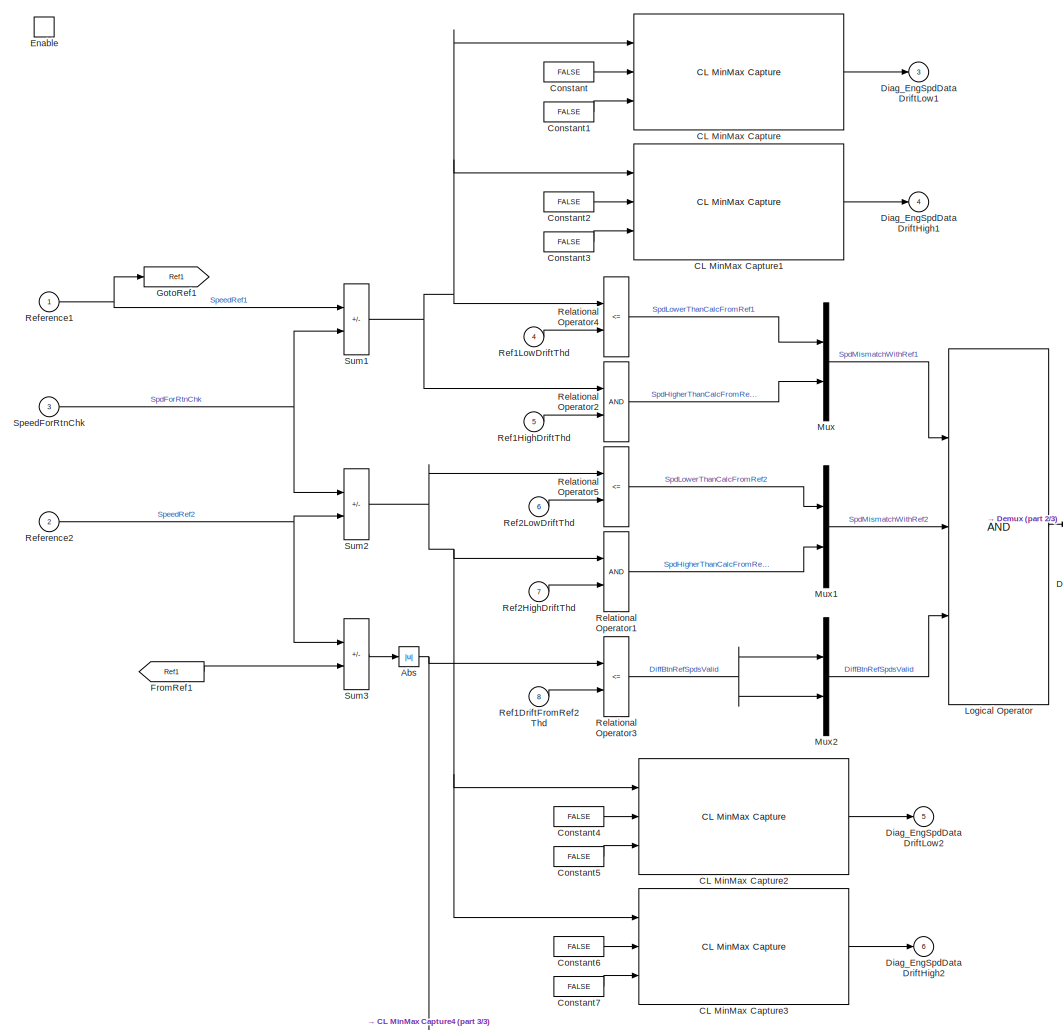
[diagram: Diagnostics/SpeedRationalityFaultDetect - part 1/3, most of the canvas]
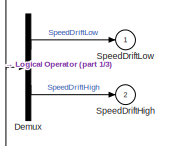
[diagram: Diagnostics/SpeedRationalityFaultDetect - part 2/3, middle right region]
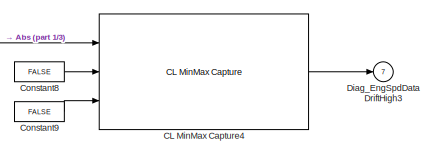
[diagram: Diagnostics/SpeedRationalityFaultDetect - part 3/3, bottom center region]
BLOCK [SubSystem] Diagnostics/SpeedRationalityFaultDetect
  Ports = [8, 7, 1]
  RequestExecContextInheritance = off
BLOCK [Abs] Diagnostics/SpeedRationalityFaultDetect/Abs
  SaturateOnIntegerOverflow = off
  ZeroCross = off
BLOCK [Reference] Diagnostics/SpeedRationalityFaultDetect/CL MinMax Capture  REF=$bdroot/Diag/CL MinMax Capture
  Ports = [3, 1]
  SourceBlock = $bdroot/Diag/CL MinMax Capture
  SourceType = CL Max Capture
BLOCK [Reference] Diagnostics/SpeedRationalityFaultDetect/CL MinMax Capture1  REF=$bdroot/Diag/CL MinMax Capture
  Ports = [3, 1]
  SourceBlock = $bdroot/Diag/CL MinMax Capture
  SourceType = CL Max Capture
BLOCK [Reference] Diagnostics/SpeedRationalityFaultDetect/CL MinMax Capture2  REF=$bdroot/Diag/CL MinMax Capture
  Ports = [3, 1]
  SourceBlock = $bdroot/Diag/CL MinMax Capture
  SourceType = CL Max Capture
BLOCK [Reference] Diagnostics/SpeedRationalityFaultDetect/CL MinMax Capture3  REF=$bdroot/Diag/CL MinMax Capture
  Ports = [3, 1]
  SourceBlock = $bdroot/Diag/CL MinMax Capture
  SourceType = CL Max Capture
BLOCK [Reference] Diagnostics/SpeedRationalityFaultDetect/CL MinMax Capture4  REF=$bdroot/Diag/CL MinMax Capture
  Ports = [3, 1]
  SourceBlock = $bdroot/Diag/CL MinMax Capture
  SourceType = CL Max Capture
BLOCK [Constant] Diagnostics/SpeedRationalityFaultDetect/Constant
  SampleTime = -1
  Value = FALSE
BLOCK [Constant] Diagnostics/SpeedRationalityFaultDetect/Constant1
  SampleTime = -1
  Value = FALSE
BLOCK [Constant] Diagnostics/SpeedRationalityFaultDetect/Constant2
  SampleTime = -1
  Value = FALSE
BLOCK [Constant] Diagnostics/SpeedRationalityFaultDetect/Constant3
  SampleTime = -1
  Value = FALSE
BLOCK [Constant] Diagnostics/SpeedRationalityFaultDetect/Constant4
  SampleTime = -1
  Value = FALSE
BLOCK [Constant] Diagnostics/SpeedRationalityFaultDetect/Constant5
  SampleTime = -1
  Value = FALSE
BLOCK [Constant] Diagnostics/SpeedRationalityFaultDetect/Constant6
  SampleTime = -1
  Value = FALSE
BLOCK [Constant] Diagnostics/SpeedRationalityFaultDetect/Constant7
  SampleTime = -1
  Value = FALSE
BLOCK [Constant] Diagnostics/SpeedRationalityFaultDetect/Constant8
  SampleTime = -1
  Value = FALSE
BLOCK [Constant] Diagnostics/SpeedRationalityFaultDetect/Constant9
  SampleTime = -1
  Value = FALSE
BLOCK [Demux] Diagnostics/SpeedRationalityFaultDetect/Demux
  Outputs = 2
  Ports = [1, 2]
BLOCK [Outport] Diagnostics/SpeedRationalityFaultDetect/Diag_EngSpdDataDriftHigh1
  InitialOutput = [0]
  Port = 4
  VectorParamsAs1DForOutWhenUnconnected = off
BLOCK [Outport] Diagnostics/SpeedRationalityFaultDetect/Diag_EngSpdDataDriftHigh2
  InitialOutput = [0]
  Port = 6
  VectorParamsAs1DForOutWhenUnconnected = off
BLOCK [Outport] Diagnostics/SpeedRationalityFaultDetect/Diag_EngSpdDataDriftHigh3
  InitialOutput = [0]
  Port = 7
  VectorParamsAs1DForOutWhenUnconnected = off
BLOCK [Outport] Diagnostics/SpeedRationalityFaultDetect/Diag_EngSpdDataDriftLow1
  InitialOutput = [0]
  Port = 3
  VectorParamsAs1DForOutWhenUnconnected = off
BLOCK [Outport] Diagnostics/SpeedRationalityFaultDetect/Diag_EngSpdDataDriftLow2
  InitialOutput = [0]
  Port = 5
  VectorParamsAs1DForOutWhenUnconnected = off
BLOCK [EnablePort] Diagnostics/SpeedRationalityFaultDetect/Enable
  Ports = []
  ZeroCross = off
BLOCK [From] Diagnostics/SpeedRationalityFaultDetect/FromRef1
  GotoTag = Ref1
BLOCK [Goto] Diagnostics/SpeedRationalityFaultDetect/GotoRef1
  GotoTag = Ref1
BLOCK [Logic] Diagnostics/SpeedRationalityFaultDetect/Logical Operator
  AllPortsSameDT = off
  Inputs = 3
  Ports = [3, 1]
BLOCK [Mux] Diagnostics/SpeedRationalityFaultDetect/Mux
  DisplayOption = bar
  Inputs = 2
  Ports = [2, 1]
BLOCK [Mux] Diagnostics/SpeedRationalityFaultDetect/Mux1
  DisplayOption = bar
  Inputs = 2
  Ports = [2, 1]
BLOCK [Mux] Diagnostics/SpeedRationalityFaultDetect/Mux2
  DisplayOption = bar
  Inputs = 2
  Ports = [2, 1]
BLOCK [Inport] Diagnostics/SpeedRationalityFaultDetect/Ref1DriftFromRef2Thd
  Port = 8
BLOCK [Inport] Diagnostics/SpeedRationalityFaultDetect/Ref1HighDriftThd
  Port = 5
BLOCK [Inport] Diagnostics/SpeedRationalityFaultDetect/Ref1LowDriftThd
  Port = 4
BLOCK [Inport] Diagnostics/SpeedRationalityFaultDetect/Ref2HighDriftThd
  Port = 7
BLOCK [Inport] Diagnostics/SpeedRationalityFaultDetect/Ref2LowDriftThd
  Port = 6
BLOCK [Inport] Diagnostics/SpeedRationalityFaultDetect/Reference1
BLOCK [Inport] Diagnostics/SpeedRationalityFaultDetect/Reference2
  Port = 2
BLOCK [RelationalOperator] Diagnostics/SpeedRationalityFaultDetect/Relational Operator1
  InputSameDT = off
  Ports = [2, 1]
  ZeroCross = off
BLOCK [RelationalOperator] Diagnostics/SpeedRationalityFaultDetect/Relational Operator2
  InputSameDT = off
  Ports = [2, 1]
  ZeroCross = off
BLOCK [RelationalOperator] Diagnostics/SpeedRationalityFaultDetect/Relational Operator3
  InputSameDT = off
  Operator = <=
  Ports = [2, 1]
  ZeroCross = off
BLOCK [RelationalOperator] Diagnostics/SpeedRationalityFaultDetect/Relational Operator4
  InputSameDT = off
  Operator = <=
  Ports = [2, 1]
  ZeroCross = off
BLOCK [RelationalOperator] Diagnostics/SpeedRationalityFaultDetect/Relational Operator5
  InputSameDT = off
  Operator = <=
  Ports = [2, 1]
  ZeroCross = off
BLOCK [Outport] Diagnostics/SpeedRationalityFaultDetect/SpeedDriftHigh
  InitialOutput = [0]
  OutputWhenDisabled = reset
  Port = 2
  VectorParamsAs1DForOutWhenUnconnected = off
BLOCK [Outport] Diagnostics/SpeedRationalityFaultDetect/SpeedDriftLow
  InitialOutput = [0]
  OutputWhenDisabled = reset
  VectorParamsAs1DForOutWhenUnconnected = off
BLOCK [Inport] Diagnostics/SpeedRationalityFaultDetect/SpeedForRtnChk
  Port = 3
BLOCK [Sum] Diagnostics/SpeedRationalityFaultDetect/Sum1
  IconShape = rectangular
  Inputs = -+
  Ports = [2, 1]
BLOCK [Sum] Diagnostics/SpeedRationalityFaultDetect/Sum2
  IconShape = rectangular
  Inputs = +-
  Ports = [2, 1]
BLOCK [Sum] Diagnostics/SpeedRationalityFaultDetect/Sum3
  IconShape = rectangular
  Inputs = +-
  Ports = [2, 1]
BLOCK [SubSystem] Diagnostics/ToRWSignal
  Ports = [2, 1]
  RequestExecContextInheritance = off
BLOCK [BusCreator] Diagnostics/ToRWSignal/Bus Creator2
  DisplayOption = bar
  InheritFromInputs = on
  Inputs = 2
  OutDataTypeStr = Bus: BO_InputSignal
  Ports = [2, 1]
BLOCK [DataTypeConversion] Diagnostics/ToRWSignal/Data Type Conversion1
  OutDataTypeStr = single
  RndMeth = Floor
  SaturateOnIntegerOverflow = off
BLOCK [DataTypeConversion] Diagnostics/ToRWSignal/Data Type Conversion2
  OutDataTypeStr = uint8
  RndMeth = Floor
  SaturateOnIntegerOverflow = off
BLOCK [Inport] Diagnostics/ToRWSignal/FMI
  Port = 2
BLOCK [Inport] Diagnostics/ToRWSignal/in
BLOCK [Outport] Diagnostics/ToRWSignal/out
  VectorParamsAs1DForOutWhenUnconnected = off
BLOCK [SubSystem] Documentation
  Ports = []
  RequestExecContextInheritance = off
BLOCK [SubSystem] Documentation/EatonLogo
  Ports = []
  RequestExecContextInheritance = off
BLOCK [SubSystem] Documentation/LegalNoticeEaton
  Ports = []
  RequestExecContextInheritance = off
BLOCK [SubSystem] Documentation/RequirementLinks
  OpenFcn = open_system([gcb '/DocBlock'])
  Ports = []
  RequestExecContextInheritance = off
BLOCK [Reference] Documentation/RequirementLinks/DocBlock  REF=simulink/Model-Wide
Utilities/DocBlock
  Ports = []
  SourceBlock = simulink/Model-Wide\nUtilities/DocBlock
  SourceProductBaseCode = SL
  SourceType = DocBlock
  UserDataPersistent = on
BLOCK [SubSystem] Documentation/SubsystemPath
  Ports = []
  RequestExecContextInheritance = off
BLOCK [SubSystem] Fltrs
  Ports = []
  RequestExecContextInheritance = off
BLOCK [SubSystem] Fltrs/Fltr
  Ports = [2, 1]
  RTWFcnName = FLTR
  RTWFcnNameOpts = User specified
  RTWFileNameOpts = Use function name
  RTWSystemCode = Reusable function
  RequestExecContextInheritance = off
BLOCK [Constant] Fltrs/Fltr/Constant
  SampleTime = -1
  Value = single(0)
BLOCK [Constant] Fltrs/Fltr/Constant1
  SampleTime = -1
  Value = false
BLOCK [Constant] Fltrs/Fltr/Constant2
  SampleTime = -1
  Value = false
BLOCK [DataTypeConversion] Fltrs/Fltr/Data Type Conversion
  OutDataTypeStr = single
  RndMeth = Floor
  SaturateOnIntegerOverflow = off
BLOCK [DataTypeConversion] Fltrs/Fltr/Data Type Conversion1
  OutDataTypeStr = single
  RndMeth = Floor
  SaturateOnIntegerOverflow = off
BLOCK [Reference] Fltrs/Fltr/FilterCoreLogic1  REF=$bdroot/Fltrs/Fltr_wRO/FilterCoreLogic
  Ports = [5, 1]
  SourceBlock = $bdroot/Fltrs/Fltr_wRO/FilterCoreLogic
  SourceType = SubSystem
BLOCK [SignalConversion] Fltrs/Fltr/Signal Conversion
  ConversionOutput = Contiguous copy
  OverrideOpt = on
BLOCK [Inport] Fltrs/Fltr/input
BLOCK [Outport] Fltrs/Fltr/output
  VectorParamsAs1DForOutWhenUnconnected = off
BLOCK [Inport] Fltrs/Fltr/tau
  Port = 2
BLOCK [SubSystem] Fltrs/Fltr_wR
  Ports = [4, 1]
  RequestExecContextInheritance = off
BLOCK [Constant] Fltrs/Fltr_wR/Constant
  SampleTime = -1
  Value = false
BLOCK [DataTypeConversion] Fltrs/Fltr_wR/Data Type Conversion
  OutDataTypeStr = single
  RndMeth = Floor
  SaturateOnIntegerOverflow = off
BLOCK [DataTypeConversion] Fltrs/Fltr_wR/Data Type Conversion1
  OutDataTypeStr = single
  RndMeth = Floor
  SaturateOnIntegerOverflow = off
BLOCK [DataTypeConversion] Fltrs/Fltr_wR/Data Type Conversion2
  OutDataTypeStr = single
  RndMeth = Floor
  SaturateOnIntegerOverflow = off
BLOCK [DataTypeConversion] Fltrs/Fltr_wR/Data Type Conversion3
  OutDataTypeStr = boolean
  RndMeth = Floor
  SaturateOnIntegerOverflow = off
BLOCK [Reference] Fltrs/Fltr_wR/FilterCoreLogic1  REF=$bdroot/Fltrs/Fltr_wRO/FilterCoreLogic
  Ports = [5, 1]
  SourceBlock = $bdroot/Fltrs/Fltr_wRO/FilterCoreLogic
  SourceType = SubSystem
BLOCK [SignalConversion] Fltrs/Fltr_wR/Signal Conversion
  ConversionOutput = Contiguous copy
  OverrideOpt = on
BLOCK [Inport] Fltrs/Fltr_wR/ic
  Port = 3
BLOCK [Inport] Fltrs/Fltr_wR/input
BLOCK [Outport] Fltrs/Fltr_wR/output
  VectorParamsAs1DForOutWhenUnconnected = off
BLOCK [Inport] Fltrs/Fltr_wR/reset?
  OutDataTypeStr = boolean
  Port = 4
BLOCK [Inport] Fltrs/Fltr_wR/tau
  Port = 2
BLOCK [SubSystem] Fltrs/Fltr_wRO
  Ports = [5, 1]
  RTWFcnName = FLTRWRO
  RTWFcnNameOpts = User specified
  RTWFileNameOpts = Use function name
  RTWSystemCode = Reusable function
  RequestExecContextInheritance = off
BLOCK [DataTypeConversion] Fltrs/Fltr_wRO/Data Type Conversion
  OutDataTypeStr = single
  RndMeth = Floor
  SaturateOnIntegerOverflow = off
BLOCK [DataTypeConversion] Fltrs/Fltr_wRO/Data Type Conversion1
  OutDataTypeStr = single
  RndMeth = Floor
  SaturateOnIntegerOverflow = off
BLOCK [DataTypeConversion] Fltrs/Fltr_wRO/Data Type Conversion2
  OutDataTypeStr = single
  RndMeth = Floor
  SaturateOnIntegerOverflow = off
BLOCK [DataTypeConversion] Fltrs/Fltr_wRO/Data Type Conversion3
  OutDataTypeStr = boolean
  RndMeth = Floor
  SaturateOnIntegerOverflow = off
BLOCK [DataTypeConversion] Fltrs/Fltr_wRO/Data Type Conversion4
  OutDataTypeStr = boolean
  RndMeth = Floor
  SaturateOnIntegerOverflow = off
BLOCK [SubSystem] Fltrs/Fltr_wRO/FilterCoreLogic
  Ports = [5, 1]
  RTWFcnName = FLTR
  RTWFcnNameOpts = User specified
  RTWFileNameOpts = Use function name
  RTWSystemCode = Reusable function
  RequestExecContextInheritance = off
  TreatAsAtomicUnit = on
BLOCK [Constant] Fltrs/Fltr_wRO/FilterCoreLogic/Constant1
  Value = Ts
BLOCK [MinMax] Fltrs/Fltr_wRO/FilterCoreLogic/MinMax
  Function = max
  InputSameDT = on
  Inputs = 2
  Ports = [2, 1]
  SaturateOnIntegerOverflow = on
  ZeroCross = off
BLOCK [Product] Fltrs/Fltr_wRO/FilterCoreLogic/Product
  InputSameDT = on
  Inputs = **/
  OutDataTypeStr = Inherit: Same as first input
  Ports = [3, 1]
BLOCK [Sum] Fltrs/Fltr_wRO/FilterCoreLogic/Sum
  InputSameDT = on
  Inputs = |+-
  NameLocation = top
  OutDataTypeStr = Inherit: Same as first input
  Ports = [2, 1]
BLOCK [Sum] Fltrs/Fltr_wRO/FilterCoreLogic/Sum1
  InputSameDT = on
  Inputs = |++
  NameLocation = top
  OutDataTypeStr = Inherit: Same as first input
  Ports = [2, 1]
BLOCK [Switch] Fltrs/Fltr_wRO/FilterCoreLogic/Switch
  SaturateOnIntegerOverflow = off
  Threshold = 0.5
  ZeroCross = off
BLOCK [Switch] Fltrs/Fltr_wRO/FilterCoreLogic/Switch2
  SaturateOnIntegerOverflow = off
  Threshold = 0.5
  ZeroCross = off
BLOCK [UnitDelay] Fltrs/Fltr_wRO/FilterCoreLogic/Unit Delay
  HasFrameUpgradeWarning = on
  InitialCondition = IC
  SampleTime = -1
BLOCK [Inport] Fltrs/Fltr_wRO/FilterCoreLogic/input
  OutDataTypeStr = single
BLOCK [Outport] Fltrs/Fltr_wRO/FilterCoreLogic/output
  OutDataTypeStr = single
  VectorParamsAs1DForOutWhenUnconnected = off
BLOCK [Inport] Fltrs/Fltr_wRO/FilterCoreLogic/override?
  OutDataTypeStr = boolean
  Port = 4
BLOCK [Inport] Fltrs/Fltr_wRO/FilterCoreLogic/override_value
  NameLocation = top
  Port = 3
BLOCK [Inport] Fltrs/Fltr_wRO/FilterCoreLogic/reset?
  OutDataTypeStr = boolean
  Port = 5
BLOCK [Inport] Fltrs/Fltr_wRO/FilterCoreLogic/tau
  OutDataTypeStr = single
  Port = 2
BLOCK [SignalConversion] Fltrs/Fltr_wRO/Signal Conversion
  ConversionOutput = Contiguous copy
  OverrideOpt = on
BLOCK [Inport] Fltrs/Fltr_wRO/input
BLOCK [Outport] Fltrs/Fltr_wRO/output
  VectorParamsAs1DForOutWhenUnconnected = off
BLOCK [Inport] Fltrs/Fltr_wRO/override?
  OutDataTypeStr = boolean
  Port = 4
BLOCK [Inport] Fltrs/Fltr_wRO/override_value
  Port = 3
BLOCK [Inport] Fltrs/Fltr_wRO/reset?
  OutDataTypeStr = boolean
  Port = 5
BLOCK [Inport] Fltrs/Fltr_wRO/tau
  Port = 2
BLOCK [SubSystem] Fltrs/Fltr_wROExtInitCond
  Ports = [6, 1]
  RTWFcnName = FLTRWRO
  RTWFcnNameOpts = User specified
  RTWFileNameOpts = Use function name
  RequestExecContextInheritance = off
  TreatAsAtomicUnit = on
BLOCK [Constant] Fltrs/Fltr_wROExtInitCond/Constant1
  Value = Ts
BLOCK [DataTypeConversion] Fltrs/Fltr_wROExtInitCond/Data Type Conversion
  OutDataTypeStr = single
  RndMeth = Floor
  SaturateOnIntegerOverflow = off
BLOCK [DataTypeConversion] Fltrs/Fltr_wROExtInitCond/Data Type Conversion1
  OutDataTypeStr = single
  RndMeth = Floor
  SaturateOnIntegerOverflow = off
BLOCK [DataTypeConversion] Fltrs/Fltr_wROExtInitCond/Data Type Conversion2
  OutDataTypeStr = single
  RndMeth = Floor
  SaturateOnIntegerOverflow = off
BLOCK [DataTypeConversion] Fltrs/Fltr_wROExtInitCond/Data Type Conversion3
  OutDataTypeStr = boolean
  RndMeth = Floor
  SaturateOnIntegerOverflow = off
BLOCK [DataTypeConversion] Fltrs/Fltr_wROExtInitCond/Data Type Conversion4
  OutDataTypeStr = boolean
  RndMeth = Floor
  SaturateOnIntegerOverflow = off
BLOCK [DataTypeConversion] Fltrs/Fltr_wROExtInitCond/Data Type Conversion5
  OutDataTypeStr = single
  RndMeth = Floor
  SaturateOnIntegerOverflow = off
BLOCK [DataTypeConversion] Fltrs/Fltr_wROExtInitCond/Data Type Conversion6
  OutDataTypeStr = single
  RndMeth = Floor
  SaturateOnIntegerOverflow = off
BLOCK [SubSystem] Fltrs/Fltr_wROExtInitCond/FilterCoreLogic
  Ports = [7, 1]
  RTWFcnName = FLTR
  RTWFcnNameOpts = User specified
  RTWFileNameOpts = Use function name
  RTWSystemCode = Reusable function
  RequestExecContextInheritance = off
BLOCK [Reference] Fltrs/Fltr_wROExtInitCond/FilterCoreLogic/ClampAboveZero  REF=$bdroot/Misc/ClampAboveZero
  AttributesFormatString = tol=%<Tol>
  Ports = [1, 1]
  SourceBlock = $bdroot/Misc/ClampAboveZero
  SourceType = CL Clamp Above Zero
BLOCK [Constant] Fltrs/Fltr_wROExtInitCond/FilterCoreLogic/Constant
  SampleTime = -1
  Value = FALSE
BLOCK [MinMax] Fltrs/Fltr_wROExtInitCond/FilterCoreLogic/MinMax
  Function = max
  InputSameDT = on
  Inputs = 2
  Ports = [2, 1]
  SaturateOnIntegerOverflow = on
  ZeroCross = off
BLOCK [Product] Fltrs/Fltr_wROExtInitCond/FilterCoreLogic/Product
  InputSameDT = on
  Inputs = **/
  OutDataTypeStr = Inherit: Same as first input
  Ports = [3, 1]
BLOCK [Sum] Fltrs/Fltr_wROExtInitCond/FilterCoreLogic/Sum
  InputSameDT = on
  Inputs = |+-
  NameLocation = top
  OutDataTypeStr = Inherit: Same as first input
  Ports = [2, 1]
BLOCK [Sum] Fltrs/Fltr_wROExtInitCond/FilterCoreLogic/Sum1
  InputSameDT = on
  Inputs = |++
  NameLocation = top
  OutDataTypeStr = Inherit: Same as first input
  Ports = [2, 1]
BLOCK [Switch] Fltrs/Fltr_wROExtInitCond/FilterCoreLogic/Switch
  SaturateOnIntegerOverflow = off
  Threshold = 0.5
  ZeroCross = off
BLOCK [Switch] Fltrs/Fltr_wROExtInitCond/FilterCoreLogic/Switch1
  Criteria = u2 ~= 0
  SaturateOnIntegerOverflow = off
  Threshold = 0.5
  ZeroCross = off
BLOCK [Switch] Fltrs/Fltr_wROExtInitCond/FilterCoreLogic/Switch2
  SaturateOnIntegerOverflow = off
  Threshold = 0.5
  ZeroCross = off
BLOCK [UnitDelay] Fltrs/Fltr_wROExtInitCond/FilterCoreLogic/Unit Delay
  AttributesFormatString = ic=%<X0>
  HasFrameUpgradeWarning = on
  InitialCondition = TRUE
  SampleTime = -1
BLOCK [UnitDelay] Fltrs/Fltr_wROExtInitCond/FilterCoreLogic/Unit Delay1
  AttributesFormatString = ic=%<X0>
  HasFrameUpgradeWarning = on
  InitialCondition = single(0)
  SampleTime = -1
BLOCK [Inport] Fltrs/Fltr_wROExtInitCond/FilterCoreLogic/init_cond
  OutDataTypeStr = single
  Port = 3
BLOCK [Inport] Fltrs/Fltr_wROExtInitCond/FilterCoreLogic/input
  OutDataTypeStr = single
BLOCK [Outport] Fltrs/Fltr_wROExtInitCond/FilterCoreLogic/output
  OutDataTypeStr = single
  VectorParamsAs1DForOutWhenUnconnected = off
BLOCK [Inport] Fltrs/Fltr_wROExtInitCond/FilterCoreLogic/override
  OutDataTypeStr = boolean
  Port = 6
BLOCK [Inport] Fltrs/Fltr_wROExtInitCond/FilterCoreLogic/override_value
  Port = 7
BLOCK [Inport] Fltrs/Fltr_wROExtInitCond/FilterCoreLogic/reset
  OutDataTypeStr = boolean
  Port = 5
BLOCK [Inport] Fltrs/Fltr_wROExtInitCond/FilterCoreLogic/task_rate
  OutDataTypeStr = single
  Port = 4
BLOCK [Inport] Fltrs/Fltr_wROExtInitCond/FilterCoreLogic/tau
  OutDataTypeStr = single
  Port = 2
BLOCK [SignalConversion] Fltrs/Fltr_wROExtInitCond/Signal Conversion
  ConversionOutput = Contiguous copy
  OverrideOpt = on
BLOCK [Inport] Fltrs/Fltr_wROExtInitCond/init_cond
  OutDataTypeStr = single
  Port = 3
BLOCK [Inport] Fltrs/Fltr_wROExtInitCond/input
BLOCK [Outport] Fltrs/Fltr_wROExtInitCond/output
  VectorParamsAs1DForOutWhenUnconnected = off
BLOCK [Inport] Fltrs/Fltr_wROExtInitCond/override
  OutDataTypeStr = boolean
  Port = 5
BLOCK [Inport] Fltrs/Fltr_wROExtInitCond/override_value
  Port = 6
BLOCK [Inport] Fltrs/Fltr_wROExtInitCond/reset
  OutDataTypeStr = boolean
  Port = 4
BLOCK [Inport] Fltrs/Fltr_wROExtInitCond/tau
  Port = 2
BLOCK [SubSystem] Fltrs/Int16FIR
  Ports = [1, 2]
  RequestExecContextInheritance = off
BLOCK [Outport] Fltrs/Int16FIR/Accel
  Port = 2
  VectorParamsAs1DForOutWhenUnconnected = off
BLOCK [SubSystem] Fltrs/Int16FIR/Accum
  Ports = [1, 2]
  RequestExecContextInheritance = off
  TreatAsAtomicUnit = on
BLOCK [Outport] Fltrs/Int16FIR/Accum/Accel_Accum
  VectorParamsAs1DForOutWhenUnconnected = off
BLOCK [Inport] Fltrs/Int16FIR/Accum/Buf
BLOCK [Constant] Fltrs/Int16FIR/Accum/Constant
  Value = int16(2*N-2)
BLOCK [Constant] Fltrs/Int16FIR/Accum/Constant1
  Value = int16(N-1)
BLOCK [DataTypeConversion] Fltrs/Int16FIR/Accum/Data Type Conversion
  OutDataTypeStr = int32
  RndMeth = Floor
  SaturateOnIntegerOverflow = off
BLOCK [DataTypeConversion] Fltrs/Int16FIR/Accum/Data Type Conversion1
  OutDataTypeStr = int32
  RndMeth = Floor
  SaturateOnIntegerOverflow = off
BLOCK [Demux] Fltrs/Int16FIR/Accum/Demux
  Outputs = 2
  Ports = [1, 2]
BLOCK [ForIterator] Fltrs/Int16FIR/Accum/For Iterator
  IndexMode = Zero-based
  IterationLimit = N-1
  IterationVariableDataType = int16
  Ports = [0, 1]
  ResetStates = reset
BLOCK [Outport] Fltrs/Int16FIR/Accum/Mean_Accum
  Port = 2
  VectorParamsAs1DForOutWhenUnconnected = off
BLOCK [Mux] Fltrs/Int16FIR/Accum/Mux
  DisplayOption = bar
  Inputs = 2
  Ports = [2, 1]
BLOCK [Product] Fltrs/Int16FIR/Accum/Product
  OutDataTypeStr = int32
  Ports = [2, 1]
BLOCK [Selector] Fltrs/Int16FIR/Accum/Selector
  IndexMode = Zero-based
  IndexOptions = Index vector (port)
  Indices = [1 3]
  InputPortWidth = 2*N
  OutputSizes = 1
  Ports = [2, 1]
BLOCK [Sum] Fltrs/Int16FIR/Accum/Sum
  AccumDataTypeStr = int32
  Inputs = ++|
  OutDataTypeStr = int32
  Ports = [2, 1]
BLOCK [Sum] Fltrs/Int16FIR/Accum/Sum1
  Inputs = |+-
  Ports = [2, 1]
BLOCK [Sum] Fltrs/Int16FIR/Accum/Sum2
  Inputs = |+-
  Ports = [2, 1]
BLOCK [Sum] Fltrs/Int16FIR/Accum/Sum3
  Inputs = |+-
  Ports = [2, 1]
BLOCK [Sum] Fltrs/Int16FIR/Accum/Sum4
  AccumDataTypeStr = int32
  Inputs = +++
  OutDataTypeStr = int32
  Ports = [3, 1]
BLOCK [UnitDelay] Fltrs/Int16FIR/Accum/Unit Delay
  HasFrameUpgradeWarning = on
  SampleTime = -1
BLOCK [UnitDelay] Fltrs/Int16FIR/Accum/Unit Delay1
  HasFrameUpgradeWarning = on
  SampleTime = -1
BLOCK [Reference] Fltrs/Int16FIR/Buffer  REF=simulink/Discrete/Tapped Delay
  Ports = [1, 1]
  SourceBlock = simulink/Discrete/Tapped Delay
  SourceProductBaseCode = SL
  SourceType = Tapped Delay Line
BLOCK [Constant] Fltrs/Int16FIR/Constant
  Value = MEAN_PRE_MULT
BLOCK [Constant] Fltrs/Int16FIR/Constant1
  Value = ACCEL_PRE_MULT
BLOCK [Constant] Fltrs/Int16FIR/Constant2
  Value = int32(N)
BLOCK [Constant] Fltrs/Int16FIR/Constant3
  Value = int32(2^(k_accel-1))
BLOCK [Constant] Fltrs/Int16FIR/Constant4
  Value = int32(2^(k_mean-1))
BLOCK [DataTypeConversion] Fltrs/Int16FIR/Data Type Conversion
  OutDataTypeStr = int16
  RndMeth = Floor
BLOCK [DataTypeConversion] Fltrs/Int16FIR/Data Type Conversion1
  OutDataTypeStr = int16
  RndMeth = Floor
  SaturateOnIntegerOverflow = off
BLOCK [DataTypeConversion] Fltrs/Int16FIR/Data Type Conversion2
  OutDataTypeStr = int32
  RndMeth = Floor
  SaturateOnIntegerOverflow = off
BLOCK [DataTypeConversion] Fltrs/Int16FIR/Data Type Conversion3
  OutDataTypeStr = int32
  RndMeth = Floor
  SaturateOnIntegerOverflow = off
BLOCK [DataTypeConversion] Fltrs/Int16FIR/Data Type Conversion4
  OutDataTypeStr = int32
  RndMeth = Floor
  SaturateOnIntegerOverflow = off
BLOCK [Outport] Fltrs/Int16FIR/Mean
  VectorParamsAs1DForOutWhenUnconnected = off
BLOCK [Product] Fltrs/Int16FIR/Product
  OutDataTypeStr = int32
  Ports = [2, 1]
BLOCK [Product] Fltrs/Int16FIR/Product1
  OutDataTypeStr = int32
  Ports = [2, 1]
BLOCK [Product] Fltrs/Int16FIR/Product2
  OutDataTypeStr = int32
  Ports = [2, 1]
BLOCK [Selector] Fltrs/Int16FIR/Selector
  IndexMode = Zero-based
  IndexOptions = Index vector (dialog)
  Indices = N-1
  InputPortWidth = 2*N
  OutputSizes = 1
  Ports = [1, 1]
BLOCK [Selector] Fltrs/Int16FIR/Selector1
  IndexMode = Zero-based
  IndexOptions = Index vector (dialog)
  Indices = 2*N-1
  InputPortWidth = 2*N
  OutputSizes = 1
  Ports = [1, 1]
BLOCK [ArithShift] Fltrs/Int16FIR/Shift Arithmetic
  BitShiftNumber = k_mean
  InputPortMap = u0
  Ports = [1, 1]
BLOCK [ArithShift] Fltrs/Int16FIR/Shift Arithmetic1
  BitShiftNumber = k_accel
  InputPortMap = u0
  Ports = [1, 1]
BLOCK [Sum] Fltrs/Int16FIR/Sum
  Inputs = |++
  Ports = [2, 1]
BLOCK [Sum] Fltrs/Int16FIR/Sum1
  Inputs = |++
  Ports = [2, 1]
BLOCK [Sum] Fltrs/Int16FIR/Sum2
  Inputs = ++|
  NameLocation = right
  Ports = [2, 1]
BLOCK [Sum] Fltrs/Int16FIR/Sum3
  Inputs = |+-
  Ports = [2, 1]
BLOCK [Sum] Fltrs/Int16FIR/Sum4
  Inputs = |++
  Ports = [2, 1]
BLOCK [Sum] Fltrs/Int16FIR/Sum5
  Inputs = |++
  Ports = [2, 1]
BLOCK [Sum] Fltrs/Int16FIR/Sum6
  Inputs = |++
  Ports = [2, 1]
BLOCK [Inport] Fltrs/Int16FIR/u
  OutDataTypeStr = int16
BLOCK [SubSystem] Fltrs/Inv_Fltr
  Ports = [2, 1]
  RequestExecContextInheritance = off
BLOCK [Constant] Fltrs/Inv_Fltr/Constant1
  Value = TimeStep
BLOCK [Constant] Fltrs/Inv_Fltr/Constant2
  Value = false
BLOCK [DataTypeConversion] Fltrs/Inv_Fltr/Data Type Conversion
  OutDataTypeStr = single
  RndMeth = Floor
  SaturateOnIntegerOverflow = off
BLOCK [Product] Fltrs/Inv_Fltr/Product
  InputSameDT = on
  Inputs = */
  OutDataTypeStr = Inherit: Same as first input
  Ports = [2, 1]
BLOCK [Product] Fltrs/Inv_Fltr/Product1
  InputSameDT = on
  Inputs = **
  OutDataTypeStr = Inherit: Same as first input
  Ports = [2, 1]
BLOCK [Sum] Fltrs/Inv_Fltr/Sum
  InputSameDT = on
  Inputs = -+|
  NameLocation = top
  OutDataTypeStr = Inherit: Same as first input
  Ports = [2, 1]
BLOCK [Sum] Fltrs/Inv_Fltr/Sum1
  InputSameDT = on
  Inputs = ++|
  NameLocation = top
  OutDataTypeStr = Inherit: Same as first input
  Ports = [2, 1]
BLOCK [Switch] Fltrs/Inv_Fltr/Switch1
  NameLocation = top
  SaturateOnIntegerOverflow = off
  Threshold = 0.5
  ZeroCross = off
BLOCK [UnitDelay] Fltrs/Inv_Fltr/Unit Delay1
  AttributesFormatString = ic=%<X0>
  HasFrameUpgradeWarning = on
  InitialCondition = Zero
  SampleTime = -1
BLOCK [UnitDelay] Fltrs/Inv_Fltr/Unit Delay2
  AttributesFormatString = ic=%<X0>
  HasFrameUpgradeWarning = on
  InitialCondition = true
  SampleTime = -1
BLOCK [Inport] Fltrs/Inv_Fltr/input
BLOCK [Outport] Fltrs/Inv_Fltr/output
  VectorParamsAs1DForOutWhenUnconnected = off
BLOCK [Inport] Fltrs/Inv_Fltr/tau
  NameLocation = top
  Port = 2
BLOCK [SubSystem] Fltrs/Inv_RpdFltr
  Ports = [2, 1]
  RequestExecContextInheritance = off
BLOCK [Constant] Fltrs/Inv_RpdFltr/Constant1
  Value = single(eps)
BLOCK [Constant] Fltrs/Inv_RpdFltr/Constant3
  Value = false
BLOCK [MinMax] Fltrs/Inv_RpdFltr/MinMax
  Function = max
  InputSameDT = on
  Inputs = 2
  Ports = [2, 1]
  SaturateOnIntegerOverflow = on
  ZeroCross = off
BLOCK [Product] Fltrs/Inv_RpdFltr/Product
  InputSameDT = on
  Inputs = */
  OutDataTypeStr = Inherit: Same as first input
  Ports = [2, 1]
BLOCK [Sum] Fltrs/Inv_RpdFltr/Sum
  InputSameDT = on
  Inputs = |+-
  NameLocation = top
  OutDataTypeStr = Inherit: Same as first input
  Ports = [2, 1]
BLOCK [Sum] Fltrs/Inv_RpdFltr/Sum1
  InputSameDT = on
  Inputs = |++
  NameLocation = top
  OutDataTypeStr = Inherit: Same as first input
  Ports = [2, 1]
BLOCK [Switch] Fltrs/Inv_RpdFltr/Switch2
  NameLocation = top
  SaturateOnIntegerOverflow = off
  Threshold = 0.5
  ZeroCross = off
BLOCK [UnitDelay] Fltrs/Inv_RpdFltr/Unit Delay3
  AttributesFormatString = ic=%<X0>
  HasFrameUpgradeWarning = on
  InitialCondition = Zero
  SampleTime = -1
BLOCK [UnitDelay] Fltrs/Inv_RpdFltr/Unit Delay4
  AttributesFormatString = ic=%<X0>
  HasFrameUpgradeWarning = on
  InitialCondition = true
  SampleTime = -1
BLOCK [Inport] Fltrs/Inv_RpdFltr/fltr_cnst
  Port = 2
BLOCK [Inport] Fltrs/Inv_RpdFltr/input
BLOCK [Outport] Fltrs/Inv_RpdFltr/output
  VectorParamsAs1DForOutWhenUnconnected = off
BLOCK [SubSystem] Fltrs/Lookup_wFltr
  Ports = [8, 1]
  RequestExecContextInheritance = off
BLOCK [Reference] Fltrs/Lookup_wFltr/2D Lookup  REF=$bdroot/Tbl/2D Lookup
  Ports = [3, 1]
  SourceBlock = $bdroot/Tbl/2D Lookup
  SourceType = CL 2D Table Lookup
BLOCK [Reference] Fltrs/Lookup_wFltr/Fltr_wROExtInitCond  REF=$bdroot/Fltrs/Fltr_wROExtInitCond
  Ports = [6, 1]
  SourceBlock = $bdroot/Fltrs/Fltr_wROExtInitCond
  SourceType = CL Filter wRO wIC
BLOCK [Logic] Fltrs/Lookup_wFltr/NOT
  AllPortsSameDT = off
  Operator = NOT
  OutDataTypeStr = boolean
  Ports = [1, 1]
BLOCK [Inport] Fltrs/Lookup_wFltr/filter_enable?
  Port = 6
BLOCK [Inport] Fltrs/Lookup_wFltr/ic
  Port = 8
BLOCK [Inport] Fltrs/Lookup_wFltr/input
BLOCK [Outport] Fltrs/Lookup_wFltr/output
  VectorParamsAs1DForOutWhenUnconnected = off
BLOCK [Inport] Fltrs/Lookup_wFltr/override?
  Port = 4
BLOCK [Inport] Fltrs/Lookup_wFltr/override_value
  Port = 5
BLOCK [Inport] Fltrs/Lookup_wFltr/tau
  Port = 7
BLOCK [Inport] Fltrs/Lookup_wFltr/x-axis_vector
  Port = 2
BLOCK [Inport] Fltrs/Lookup_wFltr/y-axis_vector
  Port = 3
BLOCK [SubSystem] Fltrs/Rpd_Fltr
  Ports = [2, 1]
  RequestExecContextInheritance = off
BLOCK [Product] Fltrs/Rpd_Fltr/Product
  InputSameDT = on
  Inputs = **
  OutDataTypeStr = Inherit: Same as first input
  Ports = [2, 1]
BLOCK [Sum] Fltrs/Rpd_Fltr/Sum
  InputSameDT = on
  Inputs = |+-
  NameLocation = top
  OutDataTypeStr = Inherit: Same as first input
  Ports = [2, 1]
BLOCK [Sum] Fltrs/Rpd_Fltr/Sum1
  InputSameDT = on
  Inputs = |++
  NameLocation = top
  OutDataTypeStr = Inherit: Same as first input
  Ports = [2, 1]
BLOCK [UnitDelay] Fltrs/Rpd_Fltr/Unit Delay
  HasFrameUpgradeWarning = on
  InitialCondition = IC
  SampleTime = -1
BLOCK [Inport] Fltrs/Rpd_Fltr/fltr_cnst
  Port = 2
BLOCK [Inport] Fltrs/Rpd_Fltr/input
BLOCK [Outport] Fltrs/Rpd_Fltr/output
  VectorParamsAs1DForOutWhenUnconnected = off
BLOCK [SubSystem] Fltrs/Scaling_wFltr
  Ports = [8, 1]
  RequestExecContextInheritance = off
BLOCK [Sum] Fltrs/Scaling_wFltr/Add
  IconShape = rectangular
  Ports = [2, 1]
BLOCK [Reference] Fltrs/Scaling_wFltr/Fltr_wROExtInitCond  REF=$bdroot/Fltrs/Fltr_wROExtInitCond
  Ports = [6, 1]
  SourceBlock = $bdroot/Fltrs/Fltr_wROExtInitCond
  SourceType = CL Filter wRO wIC
BLOCK [Logic] Fltrs/Scaling_wFltr/NOT
  AllPortsSameDT = off
  Operator = NOT
  OutDataTypeStr = boolean
  Ports = [1, 1]
BLOCK [Product] Fltrs/Scaling_wFltr/Product
  Ports = [2, 1]
BLOCK [Inport] Fltrs/Scaling_wFltr/filter_enable
  Port = 6
BLOCK [Inport] Fltrs/Scaling_wFltr/init_cond
  Port = 8
BLOCK [Inport] Fltrs/Scaling_wFltr/input
BLOCK [Inport] Fltrs/Scaling_wFltr/offset
  Port = 3
BLOCK [Outport] Fltrs/Scaling_wFltr/output
  VectorParamsAs1DForOutWhenUnconnected = off
BLOCK [Inport] Fltrs/Scaling_wFltr/override
  Port = 4
BLOCK [Inport] Fltrs/Scaling_wFltr/override_value
  Port = 5
BLOCK [Inport] Fltrs/Scaling_wFltr/res
  Port = 2
BLOCK [Inport] Fltrs/Scaling_wFltr/tau
  Port = 7
BLOCK [SubSystem] Fuzzy
  Ports = []
  RequestExecContextInheritance = off
BLOCK [Demux] Fuzzy/Demux
  Outputs = 2
  Ports = [1, 2]
BLOCK [SubSystem] Fuzzy/Fuzzy Implication
  Ports = [1, 1]
  RequestExecContextInheritance = off
BLOCK [From] Fuzzy/Fuzzy Implication/From
  GotoTag = ShiftPoint
  TagVisibility = scoped
BLOCK [Outport] Fuzzy/Fuzzy Implication/OUTPUT
  VectorParamsAs1DForOutWhenUnconnected = off
BLOCK [Product] Fuzzy/Fuzzy Implication/Product
  Ports = [2, 1]
  RndMeth = Zero
BLOCK [BusSelector] Fuzzy/Fuzzy Implication/Select
  OutputAsBus = on
  OutputSignals = HighUpshiftPoint
  Ports = [1, 1]
BLOCK [Inport] Fuzzy/Fuzzy Implication/THEN
  NameLocation = top
BLOCK [SubSystem] Fuzzy/Fuzzy Intersection
  Ports = [1, 2]
  RequestExecContextInheritance = off
BLOCK [Outport] Fuzzy/Fuzzy Intersection/ELSE
  Port = 2
  VectorParamsAs1DForOutWhenUnconnected = off
BLOCK [From] Fuzzy/Fuzzy Intersection/From
  GotoTag = DataBus
  TagVisibility = scoped
BLOCK [Inport] Fuzzy/Fuzzy Intersection/IF
BLOCK [MinMax] Fuzzy/Fuzzy Intersection/MinMax
  Inputs = 2
  Ports = [2, 1]
BLOCK [Sum] Fuzzy/Fuzzy Intersection/OR
  IconShape = rectangular
  Inputs = +
  Ports = [1, 1]
BLOCK [BusSelector] Fuzzy/Fuzzy Intersection/Select
  OutputSignals = Demand.value
  Ports = [1, 1]
BLOCK [Sum] Fuzzy/Fuzzy Intersection/Sum
  Inputs = |+-
  Ports = [2, 1]
BLOCK [Outport] Fuzzy/Fuzzy Intersection/THEN
  VectorParamsAs1DForOutWhenUnconnected = off
BLOCK [SubSystem] Fuzzy/Fuzzy Membership Function
  Ports = [2, 1]
  RequestExecContextInheritance = off
BLOCK [Assignment] Fuzzy/Fuzzy Membership Function/Assignment
  IndexMode = Zero-based
  IndexOptions = Index vector (port)
  Indices = 1
  NameLocation = top
  OutputSizes = 1
  Ports = [3, 1]
BLOCK [Assignment] Fuzzy/Fuzzy Membership Function/Assignment1
  IndexMode = Zero-based
  IndexOptions = Index vector (port)
  Indices = 1
  OutputSizes = 1
  Ports = [3, 1]
BLOCK [Constant] Fuzzy/Fuzzy Membership Function/Constant2
  Value = single(0)
BLOCK [Constant] Fuzzy/Fuzzy Membership Function/Constant3
  Value = single(1)
BLOCK [Constant] Fuzzy/Fuzzy Membership Function/Constant5
  Value = true
BLOCK [Constant] Fuzzy/Fuzzy Membership Function/Constant6
  Value = uint32(1)
BLOCK [Outport] Fuzzy/Fuzzy Membership Function/Outport
  VectorParamsAs1DForOutWhenUnconnected = off
BLOCK [PreLookup] Fuzzy/Fuzzy Membership Function/Prelookup
  BreakpointsData = [10:10:110]
  BreakpointsDataSource = Input port
  FractionDataTypeStr = single
  InputPortMap = u0,p1
  NameLocation = top
  Ports = [2, 2]
BLOCK [Sum] Fuzzy/Fuzzy Membership Function/Sum
  Inputs = |+-
  Ports = [2, 1]
BLOCK [Sum] Fuzzy/Fuzzy Membership Function/Sum1
  Inputs = |++
  Ports = [2, 1]
BLOCK [Switch] Fuzzy/Fuzzy Membership Function/Switch
  SaturateOnIntegerOverflow = off
  Threshold = 0.5
BLOCK [Inport] Fuzzy/Fuzzy Membership Function/brkpts
  Port = 2
BLOCK [Inport] Fuzzy/Fuzzy Membership Function/u
BLOCK [Sum] Fuzzy/Fuzzy Union
  Inputs = |++
  Ports = [2, 1]
BLOCK [Goto] Fuzzy/Goto
  GotoTag = DataBus
BLOCK [GotoTagVisibility] Fuzzy/Goto Tag Visibility
  GotoTag = DataBus
BLOCK [GotoTagVisibility] Fuzzy/Goto Tag Visibility1
  GotoTag = ResultBus
BLOCK [Goto] Fuzzy/Goto1
  GotoTag = ResultBus
BLOCK [Constant] Fuzzy/Truth
  SampleTime = -1
  Value = single(1.0)
BLOCK [SubSystem] Gear Ratios
  Ports = []
  RequestExecContextInheritance = off
BLOCK [SubSystem] Gear Ratios/FindGearNumberByRatio
  Ports = [4, 3]
  RequestExecContextInheritance = off
BLOCK [Abs] Gear Ratios/FindGearNumberByRatio/Abs
  SaturateOnIntegerOverflow = off
  ZeroCross = off
BLOCK [Abs] Gear Ratios/FindGearNumberByRatio/Abs1
  SaturateOnIntegerOverflow = off
  ZeroCross = off
BLOCK [Abs] Gear Ratios/FindGearNumberByRatio/Abs2
  SaturateOnIntegerOverflow = off
  ZeroCross = off
BLOCK [Reference] Gear Ratios/FindGearNumberByRatio/ClampAroundZero  REF=$bdroot/Misc/ClampAroundZero
  AttributesFormatString = tol=%<Tol>
  Ports = [1, 1]
  SourceBlock = $bdroot/Misc/ClampAroundZero
  SourceType = CL Clamp Around Zero
BLOCK [Inport] Gear Ratios/FindGearNumberByRatio/ClutchSpeed
  Port = 2
BLOCK [Constant] Gear Ratios/FindGearNumberByRatio/Constant1
  Value = ConfirmTime
BLOCK [Constant] Gear Ratios/FindGearNumberByRatio/Constant2
  Value = single(0)
BLOCK [Outport] Gear Ratios/FindGearNumberByRatio/GearNumber
  VectorParamsAs1DForOutWhenUnconnected = off
BLOCK [Lookup] Gear Ratios/FindGearNumberByRatio/GearToRatio
  InputValues = GearToRatioIn
  LookUpMeth = Use Input Nearest
  SaturateOnIntegerOverflow = off
  Table = GearToRatioOut
BLOCK [Logic] Gear Ratios/FindGearNumberByRatio/Logical Operator
  AllPortsSameDT = off
  Ports = [2, 1]
BLOCK [Logic] Gear Ratios/FindGearNumberByRatio/Logical Operator1
  AllPortsSameDT = off
  Operator = OR
  Ports = [2, 1]
BLOCK [Inport] Gear Ratios/FindGearNumberByRatio/MinSpeed
  Port = 4
BLOCK [Inport] Gear Ratios/FindGearNumberByRatio/OutputSpeed
BLOCK [Outport] Gear Ratios/FindGearNumberByRatio/OutputValid
  Port = 2
  VectorParamsAs1DForOutWhenUnconnected = off
BLOCK [Product] Gear Ratios/FindGearNumberByRatio/Product1
  Inputs = /*
  Ports = [2, 1]
  RndMeth = Zero
BLOCK [Product] Gear Ratios/FindGearNumberByRatio/Product2
  Inputs = **
  Ports = [2, 1]
  RndMeth = Zero
BLOCK [Lookup] Gear Ratios/FindGearNumberByRatio/RatioToGear
  InputValues = RatioToGearIn
  LookUpMeth = Use Input Nearest
  SaturateOnIntegerOverflow = off
  Table = RatioToGearOut
BLOCK [RelationalOperator] Gear Ratios/FindGearNumberByRatio/Relational Operator
  InputSameDT = off
  Operator = <
  Ports = [2, 1]
  ZeroCross = off
BLOCK [RelationalOperator] Gear Ratios/FindGearNumberByRatio/Relational Operator1
  InputSameDT = off
  Operator = >
  Ports = [2, 1]
  ZeroCross = off
BLOCK [RelationalOperator] Gear Ratios/FindGearNumberByRatio/Relational Operator2
  InputSameDT = off
  Operator = >
  Ports = [2, 1]
  ZeroCross = off
BLOCK [Outport] Gear Ratios/FindGearNumberByRatio/SpeedAboveMin
  Port = 3
  VectorParamsAs1DForOutWhenUnconnected = off
BLOCK [Inport] Gear Ratios/FindGearNumberByRatio/SpeedTolerance
  Port = 3
BLOCK [Sum] Gear Ratios/FindGearNumberByRatio/Sum
  IconShape = rectangular
  Inputs = -+
  Ports = [2, 1]
BLOCK [Switch] Gear Ratios/FindGearNumberByRatio/Switch
  InputSameDT = off
  SaturateOnIntegerOverflow = off
  Threshold = 0.5
  ZeroCross = off
BLOCK [SubSystem] Gear Ratios/FindGearNumberByRatio/Timer1
  Ports = [2, 1]
  RequestExecContextInheritance = off
BLOCK [DataTypeConversion] Gear Ratios/FindGearNumberByRatio/Timer1/Data Type Conversion
  OutDataTypeStr = single
  RndMeth = Floor
  SaturateOnIntegerOverflow = off
BLOCK [DiscreteIntegrator] Gear Ratios/FindGearNumberByRatio/Timer1/Discrete-Time Integrator
  ExternalReset = falling
  ICPrevOutput = DiscIntNeverNeededParam
  ICPrevScaledInput = DiscIntNeverNeededParam
  InitialCondition = single(0)
  LimitOutput = on
  Ports = [2, 1]
  SampleTime = TimeStep
  gainval = single(1.0)
BLOCK [Inport] Gear Ratios/FindGearNumberByRatio/Timer1/In
BLOCK [Outport] Gear Ratios/FindGearNumberByRatio/Timer1/Out
  VectorParamsAs1DForOutWhenUnconnected = off
BLOCK [RelationalOperator] Gear Ratios/FindGearNumberByRatio/Timer1/Relational Operator
  InputSameDT = off
  Operator = >
  OutDataTypeStr = boolean
  Ports = [2, 1]
BLOCK [SignalSpecification] Gear Ratios/FindGearNumberByRatio/Timer1/Signal Specification
  OutDataTypeStr = boolean
BLOCK [Inport] Gear Ratios/FindGearNumberByRatio/Timer1/TriggerTime
  Port = 2
BLOCK [SubSystem] Gear Ratios/GearNumberToRatio
  Ports = [1, 2]
  RequestExecContextInheritance = off
BLOCK [LookupNDDirect] Gear Ratios/GearNumberToRatio/C_GearInverseRatio
  NumberOfTableDimensions = 1
  Ports = [1, 1]
  Table = C_GearRatioInverseOut
BLOCK [LookupNDDirect] Gear Ratios/GearNumberToRatio/C_GearRatio
  NumberOfTableDimensions = 1
  Ports = [1, 1]
  Table = C_GearRatioOut
BLOCK [Constant] Gear Ratios/GearNumberToRatio/Constant5
  SampleTime = -1
  Value = int8(-99)
BLOCK [Constant] Gear Ratios/GearNumberToRatio/GearOffset
  SampleTime = -1
  Value = C_GearOffset
BLOCK [Constant] Gear Ratios/GearNumberToRatio/GearOffset1
  SampleTime = -1
  Value = int8(0)
BLOCK [RelationalOperator] Gear Ratios/GearNumberToRatio/Relational Operator3
  Operator = ~=
  Ports = [2, 1]
  ZeroCross = off
BLOCK [Sum] Gear Ratios/GearNumberToRatio/Subtract
  IconShape = rectangular
  Ports = [2, 1]
BLOCK [Switch] Gear Ratios/GearNumberToRatio/Switch
  InputSameDT = off
  SaturateOnIntegerOverflow = off
  Threshold = 0.5
  ZeroCross = off
BLOCK [Inport] Gear Ratios/GearNumberToRatio/gear_number
BLOCK [Outport] Gear Ratios/GearNumberToRatio/inv_ratio
  Port = 2
  VectorParamsAs1DForOutWhenUnconnected = off
BLOCK [Outport] Gear Ratios/GearNumberToRatio/ratio
  VectorParamsAs1DForOutWhenUnconnected = off
BLOCK [SubSystem] IO
  Ports = []
  RequestExecContextInheritance = off
BLOCK [SubSystem] IO/Calibration with Pretty Print Value
  Ports = [0, 1]
  RequestExecContextInheritance = off
BLOCK [Constant] IO/Calibration with Pretty Print Value/C_Calibration
  SampleTime = -1
  Value = CalValue
BLOCK [Outport] IO/Calibration with Pretty Print Value/Outport
  VectorParamsAs1DForOutWhenUnconnected = off
BLOCK [Reference] IO/Calibration with Pretty Print Value1  REF=$bdroot/IO/Calibration with Pretty
Print Value
  Ports = [0, 1]
  SourceBlock = $bdroot/IO/Calibration with Pretty\nPrint Value
  SourceType = Calibratible Input
BLOCK [SubSystem] IO/From Workspace w//Datatype
  Ports = [0, 1]
  RequestExecContextInheritance = off
BLOCK [DataTypeConversion] IO/From Workspace w//Datatype/Data Type Conversion
  RndMeth = Floor
  SaturateOnIntegerOverflow = off
BLOCK [FromWorkspace] IO/From Workspace w//Datatype/From Workspace
  SampleTime = st
  VariableName = var
  ZeroCross = off
BLOCK [Outport] IO/From Workspace w//Datatype/Out1
  VectorParamsAs1DForOutWhenUnconnected = off
BLOCK [SubSystem] IO/Triangle
  Ports = [3, 1]
  RequestExecContextInheritance = off
BLOCK [Constant] IO/Triangle/Constant1
  Value = One
BLOCK [Constant] IO/Triangle/Constant10
  Value = One
BLOCK [Constant] IO/Triangle/Constant14
  Value = int16(0)
BLOCK [Constant] IO/Triangle/Constant2
  Value = MinusOne
BLOCK [Constant] IO/Triangle/Constant3
  Value = Two
BLOCK [Constant] IO/Triangle/Constant4
  Value = One
BLOCK [Constant] IO/Triangle/Constant5
  Value = ZeroZeroOne
BLOCK [Constant] IO/Triangle/Constant6
  Value = One
BLOCK [Constant] IO/Triangle/Constant7
  NameLocation = left
  Value = int16(1)
BLOCK [Constant] IO/Triangle/Constant8
  Value = TimeStep
BLOCK [Constant] IO/Triangle/Constant9
  Value = Two
BLOCK [DataTypeConversion] IO/Triangle/Data Type Conversion
  NameLocation = top
  OutDataTypeStr = single
  SaturateOnIntegerOverflow = off
BLOCK [DataTypeConversion] IO/Triangle/Data Type Conversion1
  OutDataTypeStr = single
  SaturateOnIntegerOverflow = off
BLOCK [DataTypeConversion] IO/Triangle/Data Type Conversion2
  OutDataTypeStr = single
  RndMeth = Floor
  SaturateOnIntegerOverflow = off
BLOCK [Logic] IO/Triangle/Logical Operator
  Operator = NOT
  Ports = [1, 1]
BLOCK [MinMax] IO/Triangle/MinMax1
  InputSameDT = on
  Inputs = 2
  Ports = [2, 1]
  SaturateOnIntegerOverflow = on
  ZeroCross = off
BLOCK [MinMax] IO/Triangle/MinMax2
  Function = max
  InputSameDT = on
  Inputs = 2
  Ports = [2, 1]
  SaturateOnIntegerOverflow = on
  ZeroCross = off
BLOCK [Product] IO/Triangle/Product1
  InputSameDT = on
  Inputs = 3
  OutDataTypeStr = Inherit: Same as first input
  Ports = [3, 1]
BLOCK [Product] IO/Triangle/Product2
  InputSameDT = on
  Inputs = ***
  OutDataTypeStr = Inherit: Same as first input
  Ports = [3, 1]
BLOCK [Product] IO/Triangle/Product3
  InputSameDT = on
  Inputs = */
  OutDataTypeStr = Inherit: Same as first input
  Ports = [2, 1]
BLOCK [Product] IO/Triangle/Product4
  InputSameDT = on
  Inputs = */*
  OutDataTypeStr = Inherit: Same as first input
  Ports = [3, 1]
BLOCK [RelationalOperator] IO/Triangle/Relational Operator
  Operator = <
  Ports = [2, 1]
  ZeroCross = off
BLOCK [Sum] IO/Triangle/Sum1
  InputSameDT = on
  Inputs = ++|
  OutDataTypeStr = Inherit: Same as first input
  Ports = [2, 1]
BLOCK [Sum] IO/Triangle/Sum3
  InputSameDT = on
  Inputs = ++|
  NameLocation = top
  OutDataTypeStr = Inherit: Same as first input
  Ports = [2, 1]
BLOCK [Sum] IO/Triangle/Sum4
  InputSameDT = on
  Inputs = -+|
  OutDataTypeStr = Inherit: Same as first input
  Ports = [2, 1]
BLOCK [Switch] IO/Triangle/Switch1
  SaturateOnIntegerOverflow = off
  Threshold = 0.5
  ZeroCross = off
BLOCK [Switch] IO/Triangle/Switch2
  SaturateOnIntegerOverflow = off
  Threshold = 0.5
  ZeroCross = off
BLOCK [Switch] IO/Triangle/Switch3
  SaturateOnIntegerOverflow = off
  Threshold = 0.5
  ZeroCross = off
BLOCK [UnitDelay] IO/Triangle/Unit Delay1
  HasFrameUpgradeWarning = on
  SampleTime = -1
BLOCK [UnitDelay] IO/Triangle/Unit Delay11
  HasFrameUpgradeWarning = on
  InitialCondition = false
  SampleTime = -1
BLOCK [Inport] IO/Triangle/amplitude
BLOCK [Inport] IO/Triangle/frequency
  NameLocation = top
  Port = 2
BLOCK [Inport] IO/Triangle/offset
  Port = 3
BLOCK [Outport] IO/Triangle/output
  VectorParamsAs1DForOutWhenUnconnected = off
BLOCK [SubSystem] Integrators
  Ports = []
  RequestExecContextInheritance = off
BLOCK [SubSystem] Integrators/ForwardEulerIntergrator
  Ports = [3, 1]
  RequestExecContextInheritance = off
BLOCK [Constant] Integrators/ForwardEulerIntergrator/Constant2
  SampleTime = -1
  Value = TSAMP
BLOCK [DataTypeConversion] Integrators/ForwardEulerIntergrator/Data Type Conversion
  OutDataTypeStr = single
  SaturateOnIntegerOverflow = off
BLOCK [Product] Integrators/ForwardEulerIntergrator/Divide
  Inputs = **
  Ports = [2, 1]
BLOCK [Sum] Integrators/ForwardEulerIntergrator/Sum
  Inputs = |++
  Ports = [2, 1]
BLOCK [Switch] Integrators/ForwardEulerIntergrator/Switch1
  InputSameDT = off
  SaturateOnIntegerOverflow = off
  Threshold = 0.5
  ZeroCross = off
BLOCK [UnitDelay] Integrators/ForwardEulerIntergrator/Unit Delay
  AttributesFormatString = ic=%<X0>
  HasFrameUpgradeWarning = on
  InitialCondition = IC
  SampleTime = -1
BLOCK [Inport] Integrators/ForwardEulerIntergrator/dx
BLOCK [Inport] Integrators/ForwardEulerIntergrator/reset
  Port = 3
BLOCK [Outport] Integrators/ForwardEulerIntergrator/x
  VectorParamsAs1DForOutWhenUnconnected = off
BLOCK [Inport] Integrators/ForwardEulerIntergrator/x0
  Port = 2
BLOCK [SubSystem] Misc
  Ports = []
  RequestExecContextInheritance = off
BLOCK [SubSystem] Misc/ArcSine
  Ports = [1, 1]
  RequestExecContextInheritance = off
BLOCK [Constant] Misc/ArcSine/Constant5
  Value = single(1/6)
BLOCK [Constant] Misc/ArcSine/Constant6
  Value = single(3/40)
BLOCK [Constant] Misc/ArcSine/Constant7
  Value = single(15/336)
BLOCK [Constant] Misc/ArcSine/Constant9
  Value = single(105/3456)
BLOCK [Product] Misc/ArcSine/Product1
  OutDataTypeStr = Inherit: Same as first input
  Ports = [2, 1]
BLOCK [Product] Misc/ArcSine/Product2
  OutDataTypeStr = Inherit: Same as first input
  Ports = [2, 1]
BLOCK [Product] Misc/ArcSine/Product3
  Inputs = 3
  OutDataTypeStr = Inherit: Same as first input
  Ports = [3, 1]
BLOCK [Product] Misc/ArcSine/Product4
  OutDataTypeStr = Inherit: Same as first input
  Ports = [2, 1]
BLOCK [Product] Misc/ArcSine/Product5
  OutDataTypeStr = Inherit: Same as first input
  Ports = [2, 1]
BLOCK [Product] Misc/ArcSine/Product6
  Inputs = 3
  OutDataTypeStr = Inherit: Same as first input
  Ports = [3, 1]
BLOCK [Product] Misc/ArcSine/Product7
  Inputs = 3
  OutDataTypeStr = Inherit: Same as first input
  Ports = [3, 1]
BLOCK [Product] Misc/ArcSine/Product8
  Inputs = 3
  OutDataTypeStr = Inherit: Same as first input
  Ports = [3, 1]
BLOCK [Sum] Misc/ArcSine/Sum1
  IconShape = rectangular
  Inputs = 5
  Ports = [5, 1]
BLOCK [Inport] Misc/ArcSine/angle
BLOCK [Outport] Misc/ArcSine/asin
  VectorParamsAs1DForOutWhenUnconnected = off
BLOCK [SubSystem] Misc/ClampAboveZero
  AttributesFormatString = tol=%<Tol>
  Ports = [1, 1]
  RequestExecContextInheritance = off
BLOCK [Constant] Misc/ClampAboveZero/Constant
  Value = Tol
BLOCK [MinMax] Misc/ClampAboveZero/MinMax
  Function = max
  InputSameDT = on
  Inputs = 2
  Ports = [2, 1]
  SaturateOnIntegerOverflow = on
  ZeroCross = off
BLOCK [Inport] Misc/ClampAboveZero/input
  NameLocation = top
BLOCK [Outport] Misc/ClampAboveZero/output
  VectorParamsAs1DForOutWhenUnconnected = off
BLOCK [SubSystem] Misc/ClampAroundZero
  AttributesFormatString = tol=%<Tol>
  Ports = [1, 1]
  RequestExecContextInheritance = off
BLOCK [Abs] Misc/ClampAroundZero/Abs
  NameLocation = top
  SaturateOnIntegerOverflow = off
  ZeroCross = off
BLOCK [Constant] Misc/ClampAroundZero/Constant
  Value = Tol
BLOCK [Constant] Misc/ClampAroundZero/Constant1
  Value = Zero
BLOCK [Constant] Misc/ClampAroundZero/Constant2
  Value = One
BLOCK [Constant] Misc/ClampAroundZero/Constant3
  Value = MinusOne
BLOCK [MinMax] Misc/ClampAroundZero/MinMax
  Function = max
  InputSameDT = on
  Inputs = 2
  Ports = [2, 1]
  SaturateOnIntegerOverflow = on
  ZeroCross = off
BLOCK [Product] Misc/ClampAroundZero/Product
  InputSameDT = on
  OutDataTypeStr = Inherit: Same as first input
  Ports = [2, 1]
BLOCK [RelationalOperator] Misc/ClampAroundZero/Relational Operator
  Ports = [2, 1]
  ZeroCross = off
BLOCK [Switch] Misc/ClampAroundZero/Switch1
  SaturateOnIntegerOverflow = off
  Threshold = 0.5
  ZeroCross = off
BLOCK [Inport] Misc/ClampAroundZero/input
BLOCK [Outport] Misc/ClampAroundZero/output
  VectorParamsAs1DForOutWhenUnconnected = off
BLOCK [SubSystem] Misc/Cosine
  Ports = [1, 1]
  RequestExecContextInheritance = off
BLOCK [Constant] Misc/Cosine/Constant
  Value = single(1/(1*2))
BLOCK [Constant] Misc/Cosine/Constant1
  Value = single(1/(1*2*3*4))
BLOCK [Constant] Misc/Cosine/Constant2
  Value = single(1)
BLOCK [Product] Misc/Cosine/Product
  OutDataTypeStr = Inherit: Same as first input
  Ports = [2, 1]
BLOCK [Product] Misc/Cosine/Product1
  OutDataTypeStr = Inherit: Same as first input
  Ports = [2, 1]
BLOCK [Product] Misc/Cosine/Product3
  OutDataTypeStr = Inherit: Same as first input
  Ports = [2, 1]
BLOCK [Product] Misc/Cosine/Product6
  Inputs = 3
  OutDataTypeStr = Inherit: Same as first input
  Ports = [3, 1]
BLOCK [Sum] Misc/Cosine/Sum
  IconShape = rectangular
  Inputs = +-+
  Ports = [3, 1]
BLOCK [Inport] Misc/Cosine/angle
BLOCK [Outport] Misc/Cosine/cos
  VectorParamsAs1DForOutWhenUnconnected = off
BLOCK [SubSystem] Misc/Count Edges
  Ports = [2, 1]
  RequestExecContextInheritance = off
BLOCK [Outport] Misc/Count Edges/Count
  VectorParamsAs1DForOutWhenUnconnected = off
BLOCK [Inport] Misc/Count Edges/Input
  NameLocation = top
BLOCK [Logic] Misc/Count Edges/Logical Operator5
  AllPortsSameDT = off
  Operator = NOT
  Ports = [1, 1]
BLOCK [Logic] Misc/Count Edges/Logical Operator6
  AllPortsSameDT = off
  Ports = [2, 1]
BLOCK [Inport] Misc/Count Edges/Reset
  Port = 2
BLOCK [Sum] Misc/Count Edges/Sum
  InputSameDT = on
  Inputs = |++
  OutDataTypeStr = Inherit: Same as first input
  Ports = [2, 1]
BLOCK [Switch] Misc/Count Edges/Switch1
  InputSameDT = off
  NameLocation = top
  SaturateOnIntegerOverflow = off
  Threshold = 0.5
  ZeroCross = off
BLOCK [Switch] Misc/Count Edges/Switch2
  InputSameDT = off
  SaturateOnIntegerOverflow = off
  Threshold = 0.5
  ZeroCross = off
BLOCK [UnitDelay] Misc/Count Edges/Unit Delay2
  AttributesFormatString = ic=%<X0>
  HasFrameUpgradeWarning = on
  InitialCondition = int8(0)
  NameLocation = top
  SampleTime = -1
BLOCK [UnitDelay] Misc/Count Edges/Unit Delay3
  AttributesFormatString = ic=%<X0>
  HasFrameUpgradeWarning = on
  InitialCondition = true
  SampleTime = -1
BLOCK [Constant] Misc/Count Edges/constant7
  Value = int8(0)
BLOCK [Constant] Misc/Count Edges/constant8
  Value = int8(1)
BLOCK [Constant] Misc/Count Edges/constant9
  NameLocation = top
  Value = int8(0)
BLOCK [SubSystem] Misc/Count to X
  Ports = [2, 1]
  RequestExecContextInheritance = off
BLOCK [Constant] Misc/Count to X/Constant1
  Value = uint8(1)
BLOCK [Constant] Misc/Count to X/Constant2
  Value = uint8(0)
BLOCK [Constant] Misc/Count to X/Constant3
  Value = uint8(X)
BLOCK [Constant] Misc/Count to X/Constant4
  NameLocation = top
  Value = uint8(0)
BLOCK [Logic] Misc/Count to X/DelayedInput
  Operator = NAND
  Ports = [2, 1]
BLOCK [Logic] Misc/Count to X/Input
  NameLocation = top
  Ports = [2, 1]
BLOCK [Logic] Misc/Count to X/Logical Operator8
  Ports = [2, 1]
BLOCK [MinMax] Misc/Count to X/MinMax
  InputSameDT = on
  Inputs = 2
  NameLocation = top
  Ports = [2, 1]
  SaturateOnIntegerOverflow = on
  ZeroCross = off
BLOCK [RelationalOperator] Misc/Count to X/Relational Operator
  Ports = [2, 1]
  ZeroCross = off
BLOCK [Sum] Misc/Count to X/Sum1
  InputSameDT = on
  Inputs = ++|
  OutDataTypeStr = Inherit: Same as first input
  Ports = [2, 1]
BLOCK [UnitDelay] Misc/Count to X/Unit Delay
  HasFrameUpgradeWarning = on
  InitialCondition = uint8(0)
  SampleTime = -1
BLOCK [UnitDelay] Misc/Count to X/Unit Delay2
  HasFrameUpgradeWarning = on
  InitialCondition = false
  SampleTime = -1
BLOCK [Switch] Misc/Count to X/inc switch
  NameLocation = top
  SaturateOnIntegerOverflow = off
  Threshold = 0.5
  ZeroCross = off
BLOCK [Inport] Misc/Count to X/input
BLOCK [Outport] Misc/Count to X/output
  VectorParamsAs1DForOutWhenUnconnected = off
BLOCK [Switch] Misc/Count to X/reset switch
  NameLocation = top
  SaturateOnIntegerOverflow = off
  Threshold = 0.5
  ZeroCross = off
BLOCK [Inport] Misc/Count to X/reset?
  NameLocation = right
  Port = 2
BLOCK [SubSystem] Misc/Counter
  Ports = [7, 1]
  RequestExecContextInheritance = off
BLOCK [Constant] Misc/Counter/Constant1
  Value = Zero
BLOCK [Constant] Misc/Counter/Constant2
  Value = Zero
BLOCK [Constant] Misc/Counter/Constant4
  Value = IC
BLOCK [Constant] Misc/Counter/Constant5
  Value = false
BLOCK [Logic] Misc/Counter/Logical Operator
  Operator = OR
  Ports = [2, 1]
BLOCK [Reference] Misc/Counter/Sat  REF=$bdroot/Slink/Sat
  Ports = [3, 1]
  SourceBlock = $bdroot/Slink/Sat
  SourceType = CL Variable Saturation
BLOCK [Sum] Misc/Counter/Sum
  IconShape = rectangular
  InputSameDT = on
  Inputs = ++-
  OutDataTypeStr = Inherit: Same as first input
  Ports = [3, 1]
BLOCK [UnitDelay] Misc/Counter/Unit Delay
  HasFrameUpgradeWarning = on
  InitialCondition = IC
  SampleTime = -1
BLOCK [UnitDelay] Misc/Counter/Unit Delay1
  HasFrameUpgradeWarning = on
  InitialCondition = true
  SampleTime = -1
BLOCK [Inport] Misc/Counter/count_down?
  OutDataTypeStr = boolean
  Port = 4
BLOCK [Inport] Misc/Counter/count_up?
  OutDataTypeStr = boolean
  Port = 2
BLOCK [Switch] Misc/Counter/dec switch
  SaturateOnIntegerOverflow = off
  Threshold = 0.5
  ZeroCross = off
BLOCK [Inport] Misc/Counter/down_val
  NameLocation = top
  Port = 3
BLOCK [Switch] Misc/Counter/inc switch
  NameLocation = top
  SaturateOnIntegerOverflow = off
  Threshold = 0.5
  ZeroCross = off
BLOCK [Inport] Misc/Counter/max_count
  NameLocation = top
  Port = 5
BLOCK [Inport] Misc/Counter/min_count
  Port = 6
BLOCK [Outport] Misc/Counter/output
  VectorParamsAs1DForOutWhenUnconnected = off
BLOCK [Switch] Misc/Counter/reset switch
  SaturateOnIntegerOverflow = off
  Threshold = 0.5
  ZeroCross = off
BLOCK [Inport] Misc/Counter/reset?
  OutDataTypeStr = boolean
  Port = 7
BLOCK [Inport] Misc/Counter/up_val
  NameLocation = top
BLOCK [SubSystem] Misc/Divide by X
  Ports = [1, 1]
  RequestExecContextInheritance = off
BLOCK [Constant] Misc/Divide by X/Constant1
  Value = uint8(X)
BLOCK [Constant] Misc/Divide by X/Constant2
  Value = uint8(1)
BLOCK [Constant] Misc/Divide by X/Constant3
  Value = uint8(X)
BLOCK [Constant] Misc/Divide by X/Constant4
  Value = uint8(0)
BLOCK [RelationalOperator] Misc/Divide by X/Relational Operator
  Ports = [2, 1]
  ZeroCross = off
BLOCK [Sum] Misc/Divide by X/Sum1
  InputSameDT = on
  Inputs = |++
  OutDataTypeStr = Inherit: Same as first input
  Ports = [2, 1]
BLOCK [UnitDelay] Misc/Divide by X/Unit Delay
  HasFrameUpgradeWarning = on
  InitialCondition = uint8(X)
  SampleTime = -1
BLOCK [Switch] Misc/Divide by X/inc switch
  NameLocation = top
  SaturateOnIntegerOverflow = off
  Threshold = 0.5
  ZeroCross = off
BLOCK [Outport] Misc/Divide by X/output
  VectorParamsAs1DForOutWhenUnconnected = off
BLOCK [Switch] Misc/Divide by X/reset switch
  SaturateOnIntegerOverflow = off
  Threshold = 0.5
  ZeroCross = off
BLOCK [Inport] Misc/Divide by X/trigger?
  NameLocation = left
BLOCK [SubSystem] Misc/EatonLogo
  Ports = []
  RequestExecContextInheritance = off
BLOCK [SubSystem] Misc/EdgeTriggered Pulse
  Ports = [1, 1]
  RTWFcnName = ETP
  RTWFcnNameOpts = User specified
  RTWFileNameOpts = Use function name
  RTWSystemCode = Reusable function
  RequestExecContextInheritance = off
BLOCK [SubSystem] Misc/EdgeTriggered Pulse w time
  Ports = [2, 1]
  RTWFcnName = ETPWT
  RTWFcnNameOpts = User specified
  RTWFileNameOpts = Use function name
  RTWSystemCode = Inline
  RequestExecContextInheritance = off
BLOCK [DataTypeConversion] Misc/EdgeTriggered Pulse w time/Data Type Conversion
  OutDataTypeStr = single
  RndMeth = Floor
  SaturateOnIntegerOverflow = off
BLOCK [SubSystem] Misc/EdgeTriggered Pulse w time/EdgeTriggeredPulseCoreLogic
  Ports = [2, 1]
  RTWFcnName = ETPWT
  RTWFcnNameOpts = User specified
  RTWFileNameOpts = Use function name
  RTWSystemCode = Inline
  RequestExecContextInheritance = off
  TreatAsAtomicUnit = on
BLOCK [Logic] Misc/EdgeTriggered Pulse w time/EdgeTriggeredPulseCoreLogic/And
  Ports = [2, 1]
BLOCK [Constant] Misc/EdgeTriggered Pulse w time/EdgeTriggeredPulseCoreLogic/Constant2
  Value = true
BLOCK [Constant] Misc/EdgeTriggered Pulse w time/EdgeTriggeredPulseCoreLogic/Constant3
  Value = false
BLOCK [Logic] Misc/EdgeTriggered Pulse w time/EdgeTriggeredPulseCoreLogic/Logical Operator1
  Operator = OR
  Ports = [2, 1]
BLOCK [Logic] Misc/EdgeTriggered Pulse w time/EdgeTriggeredPulseCoreLogic/Not
  Operator = NOT
  Ports = [1, 1]
BLOCK [RelationalOperator] Misc/EdgeTriggered Pulse w time/EdgeTriggeredPulseCoreLogic/Relational Operator1
  Operator = >
  Ports = [2, 1]
  ZeroCross = off
BLOCK [Constant] Misc/EdgeTriggered Pulse w time/EdgeTriggeredPulseCoreLogic/Sample Rate
  Value = Ts
BLOCK [Constant] Misc/EdgeTriggered Pulse w time/EdgeTriggeredPulseCoreLogic/Sample Rate Half
  Value = Ts_half
BLOCK [Sum] Misc/EdgeTriggered Pulse w time/EdgeTriggeredPulseCoreLogic/Sum
  InputSameDT = on
  Inputs = |++
  OutDataTypeStr = Inherit: Same as first input
  Ports = [2, 1]
BLOCK [Sum] Misc/EdgeTriggered Pulse w time/EdgeTriggeredPulseCoreLogic/Sum1
  InputSameDT = on
  Inputs = -+|
  OutDataTypeStr = Inherit: Same as first input
  Ports = [2, 1]
BLOCK [Switch] Misc/EdgeTriggered Pulse w time/EdgeTriggeredPulseCoreLogic/Switch
  NameLocation = top
  SaturateOnIntegerOverflow = off
  Threshold = 0.5
  ZeroCross = off
BLOCK [Switch] Misc/EdgeTriggered Pulse w time/EdgeTriggeredPulseCoreLogic/Switch1
  NameLocation = top
  SaturateOnIntegerOverflow = off
  Threshold = 0.5
  ZeroCross = off
BLOCK [Switch] Misc/EdgeTriggered Pulse w time/EdgeTriggeredPulseCoreLogic/Switch2
  NameLocation = top
  SaturateOnIntegerOverflow = off
  Threshold = 0.5
  ZeroCross = off
BLOCK [UnitDelay] Misc/EdgeTriggered Pulse w time/EdgeTriggeredPulseCoreLogic/Unit Delay1
  AttributesFormatString = ic=%<X0>
  HasFrameUpgradeWarning = on
  InitialCondition = true
  SampleTime = -1
BLOCK [UnitDelay] Misc/EdgeTriggered Pulse w time/EdgeTriggeredPulseCoreLogic/Unit Delay2
  AttributesFormatString = ic=%<X0>
  HasFrameUpgradeWarning = on
  InitialCondition = single(0)
  SampleTime = -1
BLOCK [UnitDelay] Misc/EdgeTriggered Pulse w time/EdgeTriggeredPulseCoreLogic/Unit Delay4
  AttributesFormatString = ic=%<X0>
  HasFrameUpgradeWarning = on
  InitialCondition = true
  NameLocation = top
  SampleTime = -1
BLOCK [Inport] Misc/EdgeTriggered Pulse w time/EdgeTriggeredPulseCoreLogic/input
  OutDataTypeStr = boolean
BLOCK [Outport] Misc/EdgeTriggered Pulse w time/EdgeTriggeredPulseCoreLogic/pulse
  OutDataTypeStr = boolean
  VectorParamsAs1DForOutWhenUnconnected = off
BLOCK [Inport] Misc/EdgeTriggered Pulse w time/EdgeTriggeredPulseCoreLogic/width
  OutDataTypeStr = single
  Port = 2
BLOCK [Constant] Misc/EdgeTriggered Pulse w time/Output
  Value = OUTPUT
BLOCK [Constant] Misc/EdgeTriggered Pulse w time/Trigger
  Value = TRIGGER
BLOCK [Logic] Misc/EdgeTriggered Pulse w time/XOR_IN
  Operator = XOR
  Ports = [2, 1]
BLOCK [Logic] Misc/EdgeTriggered Pulse w time/XOR_OUT
  Operator = XOR
  Ports = [2, 1]
BLOCK [Inport] Misc/EdgeTriggered Pulse w time/input
  OutDataTypeStr = boolean
BLOCK [Outport] Misc/EdgeTriggered Pulse w time/pulse
  OutDataTypeStr = boolean
  VectorParamsAs1DForOutWhenUnconnected = off
BLOCK [Inport] Misc/EdgeTriggered Pulse w time/width
  OutDataTypeStr = single
  Port = 2
BLOCK [Reference] Misc/EdgeTriggered Pulse/ETP  REF=$bdroot/Misc/EdgeTriggered Pulse w time
  Ports = [2, 1]
  SourceBlock = $bdroot/Misc/EdgeTriggered Pulse w time
  SourceType = CL Edge Triggered Pulse w Time
BLOCK [Constant] Misc/EdgeTriggered Pulse/Timeout Threshold
  Value = Width
BLOCK [Inport] Misc/EdgeTriggered Pulse/input
BLOCK [Outport] Misc/EdgeTriggered Pulse/pulse
  VectorParamsAs1DForOutWhenUnconnected = off
BLOCK [SubSystem] Misc/GreenLeaf_Globe
  Ports = []
  RequestExecContextInheritance = off
BLOCK [SubSystem] Misc/Hold
  Ports = [1, 1, 1]
  RTWSystemCode = Inline
  RequestExecContextInheritance = off
  TreatAsAtomicUnit = on
BLOCK [EnablePort] Misc/Hold/Enable
  Ports = []
  ZeroCross = off
BLOCK [Inport] Misc/Hold/in
BLOCK [Outport] Misc/Hold/out
  VectorParamsAs1DForOutWhenUnconnected = off
BLOCK [SubSystem] Misc/Latch
  Ports = [2, 1]
  RequestExecContextInheritance = off
BLOCK [Constant] Misc/Latch/Constant2
  Value = false
BLOCK [Constant] Misc/Latch/Constant3
  Value = true
BLOCK [Switch] Misc/Latch/Switch
  NameLocation = top
  SaturateOnIntegerOverflow = off
  Threshold = 0.5
  ZeroCross = off
BLOCK [Switch] Misc/Latch/Switch1
  NameLocation = top
  SaturateOnIntegerOverflow = off
  Threshold = 0.5
  ZeroCross = off
BLOCK [UnitDelay] Misc/Latch/Unit Delay1
  HasFrameUpgradeWarning = on
  InitialCondition = IC
  SampleTime = -1
BLOCK [Inport] Misc/Latch/input
  OutDataTypeStr = boolean
BLOCK [Outport] Misc/Latch/output
  VectorParamsAs1DForOutWhenUnconnected = off
BLOCK [Inport] Misc/Latch/reset?
  OutDataTypeStr = boolean
  Port = 2
BLOCK [SubSystem] Misc/ModelVersion
  Ports = []
  RequestExecContextInheritance = off
  ShowPortLabels = none
BLOCK [Terminator] Misc/ModelVersion/Terminator
BLOCK [Constant] Misc/ModelVersion/mdlVersionBlock
  SampleTime = -1
  Value = mdlVersion
BLOCK [SubSystem] Misc/NonZero
  Ports = [1, 1]
  RequestExecContextInheritance = off
BLOCK [Abs] Misc/NonZero/Abs
  SaturateOnIntegerOverflow = off
  ZeroCross = off
BLOCK [Constant] Misc/NonZero/Constant
  Value = Tol
BLOCK [Inport] Misc/NonZero/InputValue
BLOCK [RelationalOperator] Misc/NonZero/Relational Operator
  InputSameDT = off
  Ports = [2, 1]
  ZeroCross = off
BLOCK [Outport] Misc/NonZero/SrvcMgr_IGBTSrvcIGBT6Offset
  InitialOutput = APDT_SrvcMgr_IRVHVDCSubFcnReq.SrvcMgr_IRVHVDCSubFcnReq_NoReq
  SamplingMode = Sample based
  SignalType = real
  VectorParamsAs1DForOutWhenUnconnected = off
BLOCK [SubSystem] Misc/Sine
  Ports = [1, 1]
  RequestExecContextInheritance = off
BLOCK [Constant] Misc/Sine/Constant
  Value = single(1/(1*2*3))
BLOCK [Constant] Misc/Sine/Constant1
  Value = single(1/(1*2*3*4*5))
BLOCK [Product] Misc/Sine/Product
  OutDataTypeStr = Inherit: Same as first input
  Ports = [2, 1]
BLOCK [Product] Misc/Sine/Product1
  OutDataTypeStr = Inherit: Same as first input
  Ports = [2, 1]
BLOCK [Product] Misc/Sine/Product3
  Inputs = 3
  OutDataTypeStr = Inherit: Same as first input
  Ports = [3, 1]
BLOCK [Product] Misc/Sine/Product6
  Inputs = 3
  OutDataTypeStr = Inherit: Same as first input
  Ports = [3, 1]
BLOCK [Sum] Misc/Sine/Sum
  IconShape = rectangular
  Inputs = +-+
  Ports = [3, 1]
BLOCK [Inport] Misc/Sine/angle
BLOCK [Outport] Misc/Sine/sin
  VectorParamsAs1DForOutWhenUnconnected = off
BLOCK [SubSystem] Misc/Tangent
  Ports = [1, 1]
  RequestExecContextInheritance = off
BLOCK [Constant] Misc/Tangent/Constant
  Value = single(1/3)
BLOCK [Constant] Misc/Tangent/Constant1
  Value = single(2/15)
BLOCK [Product] Misc/Tangent/Product1
  Inputs = 3
  OutDataTypeStr = Inherit: Same as first input
  Ports = [3, 1]
BLOCK [Product] Misc/Tangent/Product3
  OutDataTypeStr = Inherit: Same as first input
  Ports = [2, 1]
BLOCK [Product] Misc/Tangent/Product4
  OutDataTypeStr = Inherit: Same as first input
  Ports = [2, 1]
BLOCK [Product] Misc/Tangent/Product6
  Inputs = 3
  OutDataTypeStr = Inherit: Same as first input
  Ports = [3, 1]
BLOCK [Sum] Misc/Tangent/Sum
  IconShape = rectangular
  Inputs = +++
  Ports = [3, 1]
BLOCK [Inport] Misc/Tangent/angle
BLOCK [Outport] Misc/Tangent/tan
  VectorParamsAs1DForOutWhenUnconnected = off
BLOCK [SubSystem] Misc/Timeout Detection
  Ports = [1, 1]
  RTWFcnName = TIMEOUT
  RTWFcnNameOpts = User specified
  RTWFileNameOpts = Use function name
  RequestExecContextInheritance = off
BLOCK [DataTypeConversion] Misc/Timeout Detection/Data Type Conversion
  OutDataTypeStr = single
  RndMeth = Floor
  SaturateOnIntegerOverflow = off
BLOCK [RelationalOperator] Misc/Timeout Detection/Relational Operator
  Operator = ==
  OutDataTypeStr = boolean
  Ports = [2, 1]
  ZeroCross = off
BLOCK [RelationalOperator] Misc/Timeout Detection/Relational Operator1
  Operator = >
  OutDataTypeStr = boolean
  Ports = [2, 1]
  ZeroCross = off
BLOCK [Constant] Misc/Timeout Detection/Timeout Threshold
  Value = Timeout
BLOCK [SubSystem] Misc/Timeout Detection/TimeoutLogic
  NameLocation = top
  Ports = [2, 1]
  RTWFcnName = TIMEOUT
  RTWFcnNameOpts = User specified
  RTWFileNameOpts = Use function name
  RTWSystemCode = Inline
  RequestExecContextInheritance = off
  TreatAsAtomicUnit = on
BLOCK [Inport] Misc/Timeout Detection/TimeoutLogic/Change
BLOCK [MinMax] Misc/Timeout Detection/TimeoutLogic/MinMax
  InputSameDT = on
  Inputs = 2
  NameLocation = top
  Ports = [2, 1]
  SaturateOnIntegerOverflow = on
  ZeroCross = off
BLOCK [Constant] Misc/Timeout Detection/TimeoutLogic/Sample Rate
  Value = Ts
BLOCK [Constant] Misc/Timeout Detection/TimeoutLogic/Sample Rate Tolerance
  Value = Tol
BLOCK [Sum] Misc/Timeout Detection/TimeoutLogic/Sum
  InputSameDT = on
  Inputs = ++|
  OutDataTypeStr = Inherit: Same as first input
  Ports = [2, 1]
BLOCK [Sum] Misc/Timeout Detection/TimeoutLogic/Sum1
  InputSameDT = on
  Inputs = -+|
  OutDataTypeStr = Inherit: Same as first input
  Ports = [2, 1]
BLOCK [Switch] Misc/Timeout Detection/TimeoutLogic/Switch
  NameLocation = top
  SaturateOnIntegerOverflow = off
  Threshold = 0.5
  ZeroCross = off
BLOCK [Inport] Misc/Timeout Detection/TimeoutLogic/Timeout
  Port = 2
BLOCK [UnitDelay] Misc/Timeout Detection/TimeoutLogic/Unit Delay
  HasFrameUpgradeWarning = on
  InitialCondition = Zero
  SampleTime = -1
BLOCK [Outport] Misc/Timeout Detection/TimeoutLogic/time
  VectorParamsAs1DForOutWhenUnconnected = off
BLOCK [Constant] Misc/Timeout Detection/TimeoutLogic/zero
  Value = Zero
BLOCK [UnitDelay] Misc/Timeout Detection/Unit Delay1
  HasFrameUpgradeWarning = on
  InitialCondition = Zero
  NameLocation = top
  SampleTime = -1
BLOCK [Outport] Misc/Timeout Detection/timeout?
  VectorParamsAs1DForOutWhenUnconnected = off
BLOCK [Inport] Misc/Timeout Detection/value
BLOCK [SubSystem] Misc/Timeout with time
  Ports = [2, 1]
  RTWFcnName = TIMEOUT
  RTWFcnNameOpts = User specified
  RTWFileNameOpts = Use function name
  RequestExecContextInheritance = off
BLOCK [DataTypeConversion] Misc/Timeout with time/Data Type Conversion
  OutDataTypeStr = single
  RndMeth = Floor
  SaturateOnIntegerOverflow = off
BLOCK [RelationalOperator] Misc/Timeout with time/Relational Operator
  Operator = ==
  OutDataTypeStr = boolean
  Ports = [2, 1]
  ZeroCross = off
BLOCK [RelationalOperator] Misc/Timeout with time/Relational Operator1
  Operator = >
  OutDataTypeStr = boolean
  Ports = [2, 1]
  ZeroCross = off
BLOCK [SubSystem] Misc/Timeout with time/TimeoutLogic
  NameLocation = top
  Ports = [2, 1]
  RTWFcnName = TIMEOUT
  RTWFcnNameOpts = User specified
  RTWFileNameOpts = Use function name
  RTWSystemCode = Inline
  RequestExecContextInheritance = off
  TreatAsAtomicUnit = on
BLOCK [Inport] Misc/Timeout with time/TimeoutLogic/Change
BLOCK [MinMax] Misc/Timeout with time/TimeoutLogic/MinMax
  InputSameDT = on
  Inputs = 2
  NameLocation = top
  Ports = [2, 1]
  SaturateOnIntegerOverflow = on
  ZeroCross = off
BLOCK [Constant] Misc/Timeout with time/TimeoutLogic/Sample Rate
  Value = Ts
BLOCK [Constant] Misc/Timeout with time/TimeoutLogic/Sample Rate Tolerance
  Value = Tol
BLOCK [Sum] Misc/Timeout with time/TimeoutLogic/Sum
  InputSameDT = on
  Inputs = ++|
  OutDataTypeStr = Inherit: Same as first input
  Ports = [2, 1]
BLOCK [Sum] Misc/Timeout with time/TimeoutLogic/Sum1
  InputSameDT = on
  Inputs = -+|
  OutDataTypeStr = Inherit: Same as first input
  Ports = [2, 1]
BLOCK [Switch] Misc/Timeout with time/TimeoutLogic/Switch
  NameLocation = top
  SaturateOnIntegerOverflow = off
  Threshold = 0.5
  ZeroCross = off
BLOCK [Inport] Misc/Timeout with time/TimeoutLogic/Timeout
  Port = 2
BLOCK [UnitDelay] Misc/Timeout with time/TimeoutLogic/Unit Delay
  AttributesFormatString = %<InitialCondition>
  HasFrameUpgradeWarning = on
  InitialCondition = Zero
  SampleTime = -1
BLOCK [Outport] Misc/Timeout with time/TimeoutLogic/time
  VectorParamsAs1DForOutWhenUnconnected = off
BLOCK [Constant] Misc/Timeout with time/TimeoutLogic/zero
  Value = Zero
BLOCK [UnitDelay] Misc/Timeout with time/Unit Delay1
  HasFrameUpgradeWarning = on
  InitialCondition = Zero
  NameLocation = top
  SampleTime = -1
BLOCK [Inport] Misc/Timeout with time/timeout
  Port = 2
BLOCK [Outport] Misc/Timeout with time/timeout?
  VectorParamsAs1DForOutWhenUnconnected = off
BLOCK [Inport] Misc/Timeout with time/value
BLOCK [SubSystem] Misc/Value Latch1
  Ports = [1, 1]
  RequestExecContextInheritance = off
BLOCK [Switch] Misc/Value Latch1/Switch
  NameLocation = top
  SaturateOnIntegerOverflow = off
  Threshold = 0.5
  ZeroCross = off
BLOCK [Reference] Misc/Value Latch1/Timeout Detection  REF=$bdroot/Misc/Timeout Detection
  Ports = [1, 1]
  SourceBlock = $bdroot/Misc/Timeout Detection
  SourceType = CL Timeout
BLOCK [UnitDelay] Misc/Value Latch1/Unit Delay
  AttributesFormatString = ic=%<X0>
  HasFrameUpgradeWarning = on
  InitialCondition = IC
  NameLocation = top
  SampleTime = -1
BLOCK [UnitDelay] Misc/Value Latch1/Unit Delay1
  AttributesFormatString = ic=%<X0>
  HasFrameUpgradeWarning = on
  InitialCondition = TRUE
  NameLocation = top
  SampleTime = -1
BLOCK [Inport] Misc/Value Latch1/input
BLOCK [Outport] Misc/Value Latch1/output
  InitialOutput = 0
  VectorParamsAs1DForOutWhenUnconnected = off
BLOCK [SubSystem] OS
  Ports = []
  RequestExecContextInheritance = off
BLOCK [SubSystem] OS/Scheduler
  Ports = [0, 5, 0, 1]
  RTWFcnNameOpts = Use subsystem name
  RTWFileNameOpts = Use subsystem name
  RTWSystemCode = Nonreusable function
  RequestExecContextInheritance = off
BLOCK [SubSystem] OS/Scheduler with Init
  Ports = [0, 3, 0, 1]
  RTWFcnNameOpts = Use subsystem name
  RTWFileNameOpts = Use subsystem name
  RTWSystemCode = Nonreusable function
  RequestExecContextInheritance = off
BLOCK [Demux] OS/Scheduler with Init/Demux
  DisplayOption = none
  Outputs = 3
  Ports = [1, 3]
BLOCK [Reference] OS/Scheduler with Init/Function-Call Generator  REF=simulink/Ports &
Subsystems/Function-Call
Generator
  Ports = [0, 1]
  SourceBlock = simulink/Ports &\nSubsystems/Function-Call\nGenerator
  SourceProductBaseCode = SL
  SourceType = Function-Call Generator
BLOCK [Outport] OS/Scheduler with Init/Init
  VectorParamsAs1DForOutWhenUnconnected = off
BLOCK [SubSystem] OS/Scheduler with Init/Init Relay
  NameLocation = top
  Ports = [0, 1, 0, 1]
  RequestExecContextInheritance = off
BLOCK [Constant] OS/Scheduler with Init/Init Relay/Constant2
  Value = FALSE
BLOCK [SubSystem] OS/Scheduler with Init/Init Relay/Function Call
  Ports = [0, 1, 1]
  RequestExecContextInheritance = off
  TreatAsAtomicUnit = on
BLOCK [Reference] OS/Scheduler with Init/Init Relay/Function Call/Function-Call Generator  REF=simulink/Ports &
Subsystems/Function-Call
Generator
  Ports = [0, 1]
  SourceBlock = simulink/Ports &\nSubsystems/Function-Call\nGenerator
  SourceProductBaseCode = SL
  SourceType = Function-Call Generator
BLOCK [Outport] OS/Scheduler with Init/Init Relay/Function Call/Init
  VectorParamsAs1DForOutWhenUnconnected = off
BLOCK [EnablePort] OS/Scheduler with Init/Init Relay/Function Call/InitActive
  Ports = []
  StatesWhenEnabling = reset
  ZeroCross = off
BLOCK [Outport] OS/Scheduler with Init/Init Relay/Init
  VectorParamsAs1DForOutWhenUnconnected = off
BLOCK [TriggerPort] OS/Scheduler with Init/Init Relay/Task 1
  Ports = []
  StatesWhenEnabling = reset
  TriggerType = function-call
  VariantControl = (inherit)
  ZeroCross = off
BLOCK [UnitDelay] OS/Scheduler with Init/Init Relay/Unit Delay2
  AttributesFormatString = ic=%<X0>
  HasFrameUpgradeWarning = on
  InitialCondition = TRUE
  SampleTime = -1
BLOCK [TriggerPort] OS/Scheduler with Init/Interrupt
  Ports = []
  StatesWhenEnabling = reset
  TriggerType = function-call
  VariantControl = (inherit)
  ZeroCross = off
BLOCK [Outport] OS/Scheduler with Init/Task 1
  Port = 2
  VectorParamsAs1DForOutWhenUnconnected = off
BLOCK [Outport] OS/Scheduler with Init/Task 2
  Port = 3
  VectorParamsAs1DForOutWhenUnconnected = off
BLOCK [Demux] OS/Scheduler/Demux
  DisplayOption = none
  Outputs = 5
  Ports = [1, 5]
BLOCK [Reference] OS/Scheduler/Function-Call Generator  REF=simulink/Ports &
Subsystems/Function-Call
Generator
  Ports = [0, 1]
  SourceBlock = simulink/Ports &\nSubsystems/Function-Call\nGenerator
  SourceProductBaseCode = SL
  SourceType = Function-Call Generator
BLOCK [TriggerPort] OS/Scheduler/Interrupt
  Ports = []
  StatesWhenEnabling = reset
  TriggerType = function-call
  VariantControl = (inherit)
  ZeroCross = off
BLOCK [Outport] OS/Scheduler/Task 1
  VectorParamsAs1DForOutWhenUnconnected = off
BLOCK [Outport] OS/Scheduler/Task 2
  Port = 2
  VectorParamsAs1DForOutWhenUnconnected = off
BLOCK [Outport] OS/Scheduler/Task 3
  Port = 3
  VectorParamsAs1DForOutWhenUnconnected = off
BLOCK [Outport] OS/Scheduler/Task 4
  Port = 4
  VectorParamsAs1DForOutWhenUnconnected = off
BLOCK [Outport] OS/Scheduler/Task 5
  Port = 5
  VectorParamsAs1DForOutWhenUnconnected = off
BLOCK [SubSystem] OS/fcn_call generator
  Ports = [0, 1, 1]
  RequestExecContextInheritance = off
  TreatAsAtomicUnit = on
BLOCK [EnablePort] OS/fcn_call generator/Enable
  Ports = []
  StatesWhenEnabling = reset
  ZeroCross = off
BLOCK [Reference] OS/fcn_call generator/Function-Call Generator  REF=simulink/Ports &
Subsystems/Function-Call
Generator
  Ports = [0, 1]
  SourceBlock = simulink/Ports &\nSubsystems/Function-Call\nGenerator
  SourceProductBaseCode = SL
  SourceType = Function-Call Generator
BLOCK [Outport] OS/fcn_call generator/Out
  VectorParamsAs1DForOutWhenUnconnected = off
BLOCK [SubSystem] OS/schedule counter
  Ports = [0, 1]
  RequestExecContextInheritance = off
BLOCK [Constant] OS/schedule counter/Constant2
  Value = int8(1)
BLOCK [Constant] OS/schedule counter/Constant3
  Value = int8(1)
BLOCK [Constant] OS/schedule counter/Constant4
  Value = FALSE
BLOCK [Constant] OS/schedule counter/Constant5
  Value = int8(1)
BLOCK [Outport] OS/schedule counter/Counter
  VectorParamsAs1DForOutWhenUnconnected = off
BLOCK [Logic] OS/schedule counter/Logical Operator
  Operator = OR
  Ports = [2, 1]
BLOCK [MinMax] OS/schedule counter/MinMax1
  InputSameDT = on
  Inputs = 2
  Ports = [2, 1]
  ZeroCross = off
BLOCK [Constant] OS/schedule counter/NTriggers
  Value = NTriggers
BLOCK [RelationalOperator] OS/schedule counter/Relational Operator1
  InputSameDT = off
  Operator = >
  Ports = [2, 1]
  ZeroCross = off
BLOCK [Sum] OS/schedule counter/Sum
  InputSameDT = on
  Inputs = ++|
  OutDataTypeStr = Inherit: Same as first input
  Ports = [2, 1]
BLOCK [Sum] OS/schedule counter/Sum1
  InputSameDT = on
  Inputs = |-+
  OutDataTypeStr = Inherit: Same as first input
  Ports = [2, 1]
BLOCK [UnitDelay] OS/schedule counter/Unit Delay
  HasFrameUpgradeWarning = on
  InitialCondition = int8(1)
  SampleTime = -1
BLOCK [UnitDelay] OS/schedule counter/Unit Delay1
  HasFrameUpgradeWarning = on
  InitialCondition = TRUE
  SampleTime = -1
BLOCK [Switch] OS/schedule counter/reset switch
  SaturateOnIntegerOverflow = off
  Threshold = 0.5
  ZeroCross = off
BLOCK [SubSystem] OS/sequence generator
  Ports = [1, 2]
  RequestExecContextInheritance = off
  TreatAsAtomicUnit = on
BLOCK [Constant] OS/sequence generator/Constant9
  NameLocation = right
  Value = int8(1)
BLOCK [Reference] OS/sequence generator/Function-Call Generator  REF=simulink/Ports &
Subsystems/Function-Call
Generator
  NameLocation = top
  Ports = [0, 1]
  SourceBlock = simulink/Ports &\nSubsystems/Function-Call\nGenerator
  SourceProductBaseCode = SL
  SourceType = Function-Call Generator
BLOCK [Inport] OS/sequence generator/In
BLOCK [Outport] OS/sequence generator/Out
  Port = 2
  VectorParamsAs1DForOutWhenUnconnected = off
BLOCK [Sum] OS/sequence generator/Sum1
  InputSameDT = on
  Inputs = |++
  OutDataTypeStr = Inherit: Same as first input
  Ports = [2, 1]
BLOCK [Outport] OS/sequence generator/Trigger
  VectorParamsAs1DForOutWhenUnconnected = off
BLOCK [SubSystem] SCond
  Ports = []
  RequestExecContextInheritance = off
BLOCK [SubSystem] SCond/Gain and Offset (in)
  Ports = [3, 1]
  RequestExecContextInheritance = off
BLOCK [DataTypeConversion] SCond/Gain and Offset (in)/InputConversion
  OutDataTypeStr = single
  SaturateOnIntegerOverflow = off
BLOCK [DataTypeConversion] SCond/Gain and Offset (in)/InputConversion1
  OutDataTypeStr = single
  SaturateOnIntegerOverflow = off
BLOCK [DataTypeConversion] SCond/Gain and Offset (in)/InputConversion2
  OutDataTypeStr = single
  SaturateOnIntegerOverflow = off
BLOCK [DataTypeConversion] SCond/Gain and Offset (in)/OutputConversion
  OutDataTypeStr = single
  SaturateOnIntegerOverflow = off
BLOCK [Product] SCond/Gain and Offset (in)/Product
  InputSameDT = on
  OutDataTypeStr = Inherit: Same as first input
  Ports = [2, 1]
BLOCK [Sum] SCond/Gain and Offset (in)/Sum
  InputSameDT = on
  Inputs = |+-
  OutDataTypeStr = Inherit: Same as first input
  Ports = [2, 1]
BLOCK [Inport] SCond/Gain and Offset (in)/gain
  Port = 2
BLOCK [Inport] SCond/Gain and Offset (in)/input
BLOCK [Inport] SCond/Gain and Offset (in)/offset
  Port = 3
BLOCK [Outport] SCond/Gain and Offset (in)/output
  VectorParamsAs1DForOutWhenUnconnected = off
BLOCK [SubSystem] SCond/Gain and Offset (out)
  Ports = [3, 1]
  RequestExecContextInheritance = off
BLOCK [DataTypeConversion] SCond/Gain and Offset (out)/InputConversion
  OutDataTypeStr = single
  SaturateOnIntegerOverflow = off
BLOCK [DataTypeConversion] SCond/Gain and Offset (out)/InputConversion1
  OutDataTypeStr = single
  SaturateOnIntegerOverflow = off
BLOCK [DataTypeConversion] SCond/Gain and Offset (out)/InputConversion2
  OutDataTypeStr = single
  SaturateOnIntegerOverflow = off
BLOCK [DataTypeConversion] SCond/Gain and Offset (out)/OutputConversion
  OutDataTypeStr = single
  SaturateOnIntegerOverflow = off
BLOCK [Product] SCond/Gain and Offset (out)/Product
  InputSameDT = on
  Inputs = */
  OutDataTypeStr = Inherit: Same as first input
  Ports = [2, 1]
BLOCK [Sum] SCond/Gain and Offset (out)/Sum
  InputSameDT = on
  Inputs = |++
  OutDataTypeStr = Inherit: Same as first input
  Ports = [2, 1]
BLOCK [Inport] SCond/Gain and Offset (out)/gain
  Port = 2
BLOCK [Inport] SCond/Gain and Offset (out)/input
BLOCK [Inport] SCond/Gain and Offset (out)/offset
  Port = 3
BLOCK [Outport] SCond/Gain and Offset (out)/output
  VectorParamsAs1DForOutWhenUnconnected = off
BLOCK [SubSystem] SCond/Membership Function
  Ports = [1, 1]
  RequestExecContextInheritance = off
BLOCK [RelationalOperator] SCond/Membership Function/Compare1
  Operator = <=
  Ports = [2, 1]
  ZeroCross = off
BLOCK [MinMax] SCond/Membership Function/MinMax
  Function = max
  InputSameDT = on
  Inputs = 2
  Ports = [2, 1]
  SaturateOnIntegerOverflow = on
  ZeroCross = off
BLOCK [Product] SCond/Membership Function/Product2
  Inputs = **
  OutDataTypeStr = Inherit: Same as first input
  Ports = [2, 1]
BLOCK [Sum] SCond/Membership Function/Sum1
  InputSameDT = on
  Inputs = |++
  OutDataTypeStr = Inherit: Same as first input
  Ports = [2, 1]
BLOCK [Sum] SCond/Membership Function/Sum2
  InputSameDT = on
  Inputs = -+|
  OutDataTypeStr = Inherit: Same as first input
  Ports = [2, 1]
BLOCK [Switch] SCond/Membership Function/Switch1
  Criteria = u2 ~= 0
  SaturateOnIntegerOverflow = off
  Threshold = 0.5
  ZeroCross = off
BLOCK [Constant] SCond/Membership Function/TRUE1
  Value = SlopeLow
BLOCK [Constant] SCond/Membership Function/TRUE3
  Value = Peak
BLOCK [Constant] SCond/Membership Function/TRUE4
  NameLocation = right
  Value = One
BLOCK [Constant] SCond/Membership Function/TRUE5
  Value = Zero
BLOCK [Constant] SCond/Membership Function/TRUE6
  Value = SlopeHigh
BLOCK [Constant] SCond/Membership Function/TRUE7
  NameLocation = left
  Value = Peak
BLOCK [Outport] SCond/Membership Function/mu(x)
  NameLocation = top
  VectorParamsAs1DForOutWhenUnconnected = off
BLOCK [Inport] SCond/Membership Function/x
BLOCK [SubSystem] SCond/Test Override Gain and Offset (in)
  Ports = [4, 1]
  RequestExecContextInheritance = off
BLOCK [Inport] SCond/Test Override Gain and Offset (in)/Input
BLOCK [DataTypeConversion] SCond/Test Override Gain and Offset (in)/InputConversion
  OutDataTypeStr = single
  SaturateOnIntegerOverflow = off
BLOCK [DataTypeConversion] SCond/Test Override Gain and Offset (in)/InputConversion1
  OutDataTypeStr = single
  SaturateOnIntegerOverflow = off
BLOCK [DataTypeConversion] SCond/Test Override Gain and Offset (in)/InputConversion2
  OutDataTypeStr = single
  SaturateOnIntegerOverflow = off
BLOCK [Outport] SCond/Test Override Gain and Offset (in)/Output
  VectorParamsAs1DForOutWhenUnconnected = off
BLOCK [DataTypeConversion] SCond/Test Override Gain and Offset (in)/OutputConversion
  OutDataTypeStr = single
  SaturateOnIntegerOverflow = off
BLOCK [Inport] SCond/Test Override Gain and Offset (in)/Override_Flag
  Port = 4
BLOCK [Inport] SCond/Test Override Gain and Offset (in)/Override_Gain
  NameLocation = top
  Port = 2
BLOCK [Inport] SCond/Test Override Gain and Offset (in)/Override_Offset
  Port = 3
BLOCK [Product] SCond/Test Override Gain and Offset (in)/Product
  InputSameDT = on
  OutDataTypeStr = Inherit: Same as first input
  Ports = [2, 1]
BLOCK [Sum] SCond/Test Override Gain and Offset (in)/Sum
  InputSameDT = on
  Inputs = |++
  OutDataTypeStr = Inherit: Same as first input
  Ports = [2, 1]
BLOCK [Switch] SCond/Test Override Gain and Offset (in)/Switch
  InputSameDT = off
  SaturateOnIntegerOverflow = off
  Threshold = 0.5
  ZeroCross = off
BLOCK [SubSystem] SCond/ramp to zero
  Ports = [2, 1]
  RequestExecContextInheritance = off
BLOCK [Abs] SCond/ramp to zero/Abs
  SaturateOnIntegerOverflow = off
  ZeroCross = off
BLOCK [Constant] SCond/ramp to zero/Constant
  Value = One
BLOCK [Constant] SCond/ramp to zero/Constant1
  Value = MinusOne
BLOCK [Constant] SCond/ramp to zero/Constant2
  Value = Zero
BLOCK [Product] SCond/ramp to zero/Product1
  InputSameDT = on
  Inputs = */
  OutDataTypeStr = Inherit: Same as first input
  Ports = [2, 1]
BLOCK [RelationalOperator] SCond/ramp to zero/Relational Operator
  Operator = <
  Ports = [2, 1]
  ZeroCross = off
BLOCK [RelationalOperator] SCond/ramp to zero/Relational Operator1
  Ports = [2, 1]
  ZeroCross = off
BLOCK [Switch] SCond/ramp to zero/Switch
  NameLocation = top
  SaturateOnIntegerOverflow = off
  Threshold = 0.5
  ZeroCross = off
BLOCK [Switch] SCond/ramp to zero/Switch1
  NameLocation = top
  SaturateOnIntegerOverflow = off
  Threshold = 0.5
  ZeroCross = off
BLOCK [Outport] SCond/ramp to zero/factor
  VectorParamsAs1DForOutWhenUnconnected = off
BLOCK [Inport] SCond/ramp to zero/limit
  Port = 2
BLOCK [Inport] SCond/ramp to zero/speed
BLOCK [SubSystem] Signal Conditioning
  Ports = []
  RequestExecContextInheritance = off
BLOCK [SubSystem] Signal Conditioning/2nd Order Butterworth Filter
  Ports = [3, 1]
  RequestExecContextInheritance = off
BLOCK [Reference] Signal Conditioning/2nd Order Butterworth Filter/ClampAboveZero  REF=$bdroot/Misc/ClampAboveZero
  AttributesFormatString = tol=%<Tol>
  Ports = [1, 1]
  SourceBlock = $bdroot/Misc/ClampAboveZero
  SourceType = CL Clamp Above Zero
BLOCK [Constant] Signal Conditioning/2nd Order Butterworth Filter/Constant1
  SampleTime = -1
  Value = single(0.0)
BLOCK [Constant] Signal Conditioning/2nd Order Butterworth Filter/Constant2
  SampleTime = -1
  Value = single(2.0)
BLOCK [Constant] Signal Conditioning/2nd Order Butterworth Filter/Constant3
  SampleTime = -1
  Value = TSAMP
BLOCK [Constant] Signal Conditioning/2nd Order Butterworth Filter/Constant4
  SampleTime = -1
  Value = single(1.0)
BLOCK [Inport] Signal Conditioning/2nd Order Butterworth Filter/CutoffFreq
  Port = 2
BLOCK [DataTypeConversion] Signal Conditioning/2nd Order Butterworth Filter/Data Type Conversion
  OutDataTypeStr = single
  SaturateOnIntegerOverflow = off
BLOCK [Product] Signal Conditioning/2nd Order Butterworth Filter/Divide
  Inputs = ***
  Ports = [3, 1]
BLOCK [Product] Signal Conditioning/2nd Order Butterworth Filter/Divide1
  Inputs = ***
  Ports = [3, 1]
BLOCK [Product] Signal Conditioning/2nd Order Butterworth Filter/Divide2
  Inputs = */
  Ports = [2, 1]
BLOCK [Reference] Signal Conditioning/2nd Order Butterworth Filter/ForwardEulerIntergrator1  REF=MBD_EPS_Local_Blockset/Integrators/ForwardEulerIntergrator
  Ports = [3, 1]
  SourceBlock = MBD_EPS_Local_Blockset/Integrators/ForwardEulerIntergrator
BLOCK [Reference] Signal Conditioning/2nd Order Butterworth Filter/ForwardEulerIntergrator2  REF=MBD_EPS_Local_Blockset/Integrators/ForwardEulerIntergrator
  Ports = [3, 1]
  SourceBlock = MBD_EPS_Local_Blockset/Integrators/ForwardEulerIntergrator
BLOCK [From] Signal Conditioning/2nd Order Butterworth Filter/FromFrom
  GotoTag = ProtectedCutoffFreq
BLOCK [Goto] Signal Conditioning/2nd Order Butterworth Filter/GotoGoto
  GotoTag = ProtectedCutoffFreq
BLOCK [Inport] Signal Conditioning/2nd Order Butterworth Filter/Input
BLOCK [MinMax] Signal Conditioning/2nd Order Butterworth Filter/MinMax
  InputSameDT = on
  Inputs = 2
  Ports = [2, 1]
  ZeroCross = off
BLOCK [Outport] Signal Conditioning/2nd Order Butterworth Filter/PtmShiftMotorTorqueCmd
  VectorParamsAs1DForOutWhenUnconnected = off
BLOCK [Inport] Signal Conditioning/2nd Order Butterworth Filter/Reset
  Port = 3
BLOCK [Sum] Signal Conditioning/2nd Order Butterworth Filter/Sum
  Inputs = |+-
  Ports = [2, 1]
BLOCK [Sum] Signal Conditioning/2nd Order Butterworth Filter/Sum1
  Inputs = |+-
  Ports = [2, 1]
BLOCK [SubSystem] Signal Conditioning/AnalogChecking
  Ports = [7, 1]
  RTWSystemCode = Reusable function
  RequestExecContextInheritance = off
  TreatAsAtomicUnit = on
BLOCK [Reference] Signal Conditioning/AnalogChecking/Bitwise Operator  REF=simulink/Logic and Bit
Operations/Bitwise
Operator
  Ports = [3, 1]
  SourceBlock = simulink/Logic and Bit\nOperations/Bitwise\nOperator
  SourceProductBaseCode = SL
  SourceType = Bitwise Operator
BLOCK [BusCreator] Signal Conditioning/AnalogChecking/Bus Creator2
  DisplayOption = bar
  InheritFromInputs = on
  Inputs = 2
  OutDataTypeStr = Bus: BO_InputSignal
  Ports = [2, 1]
BLOCK [BusSelector] Signal Conditioning/AnalogChecking/Bus Selector1
  OutputSignals = value,FMI
  Ports = [1, 2]
BLOCK [Constant] Signal Conditioning/AnalogChecking/C_Calibration1
  Value = F_OUTOFRANGE
BLOCK [Constant] Signal Conditioning/AnalogChecking/C_Calibration2
  Value = F_NOFAULT
BLOCK [Constant] Signal Conditioning/AnalogChecking/C_Calibration3
  Value = false
BLOCK [Constant] Signal Conditioning/AnalogChecking/C_Calibration4
  Value = F_RATELIMIT
BLOCK [Constant] Signal Conditioning/AnalogChecking/C_Calibration5
  Value = F_NOFAULT
BLOCK [Constant] Signal Conditioning/AnalogChecking/C_Calibration6
  Value = false
BLOCK [Constant] Signal Conditioning/AnalogChecking/C_Calibration7
  Value = F_NOFAULT
BLOCK [Constant] Signal Conditioning/AnalogChecking/C_Calibration8
  Value = false
BLOCK [Reference] Signal Conditioning/AnalogChecking/Fltr_wR  REF=$bdroot/Fltrs/Fltr_wR
  Ports = [4, 1]
  SourceBlock = $bdroot/Fltrs/Fltr_wR
  SourceType = CL Filter wRO
BLOCK [Logic] Signal Conditioning/AnalogChecking/Logical Operator
  Operator = OR
  Ports = [2, 1]
BLOCK [Reference] Signal Conditioning/AnalogChecking/OOR Fault Detection  REF=$bdroot/Diag/OOR Fault Detection
  Ports = [4, 2]
  SourceBlock = $bdroot/Diag/OOR Fault Detection
  SourceType = CL OOR Fault Detection
BLOCK [Reference] Signal Conditioning/AnalogChecking/Rate Limit Fault Detection  REF=$bdroot/Diag/Rate Limit Fault Detection
  Ports = [3, 2]
  SourceBlock = $bdroot/Diag/Rate Limit Fault Detection
  SourceType = CL Rate Limit Fault Detection
BLOCK [RelationalOperator] Signal Conditioning/AnalogChecking/Relational Operator
  InputSameDT = off
  Operator = ~=
  OutDataTypeStr = boolean
  Ports = [2, 1]
  ZeroCross = off
BLOCK [Switch] Signal Conditioning/AnalogChecking/Switch
  InputSameDT = off
  SaturateOnIntegerOverflow = off
  Threshold = 0.5
  ZeroCross = off
BLOCK [Switch] Signal Conditioning/AnalogChecking/Switch1
  InputSameDT = off
  SaturateOnIntegerOverflow = off
  Threshold = 0.5
  ZeroCross = off
BLOCK [Switch] Signal Conditioning/AnalogChecking/Switch2
  InputSameDT = off
  SaturateOnIntegerOverflow = off
  Threshold = 0.5
  ZeroCross = off
BLOCK [UnitDelay] Signal Conditioning/AnalogChecking/Unit Delay
  AttributesFormatString = ic=%<X0>
  HasFrameUpgradeWarning = on
  InitialCondition = true
  SampleTime = -1
BLOCK [Inport] Signal Conditioning/AnalogChecking/in
  OutDataTypeStr = Bus: BO_InputSignal
BLOCK [Inport] Signal Conditioning/AnalogChecking/l_lim
  Port = 3
BLOCK [Outport] Signal Conditioning/AnalogChecking/out
  VectorParamsAs1DForOutWhenUnconnected = off
BLOCK [Inport] Signal Conditioning/AnalogChecking/overide
  Port = 6
BLOCK [Inport] Signal Conditioning/AnalogChecking/overide_value
  Port = 7
BLOCK [Inport] Signal Conditioning/AnalogChecking/r_lim
  Port = 4
BLOCK [Inport] Signal Conditioning/AnalogChecking/tau
  Port = 5
BLOCK [Inport] Signal Conditioning/AnalogChecking/u_lim
  Port = 2
BLOCK [SubSystem] Signal Conditioning/DitherSaturation
  Description = This block generates dither using the table given for DitherWaveform at the frequency and amplitude given by the freq_hz and amplitude inputs.  All inputs should be 'single' datatype.  The table should be 'single' data type also.  The block runs at the sample time of the 'in' input.  It generates the correct frequency dither regardless of sample time.\n                                              ...<+478ch>  <repeated x3 — deduplicated; at blocks: DitherSaturation, DitherSaturation1, HydValveDither>
  Ports = [4, 1]
  RequestExecContextInheritance = off
BLOCK [Constant] Signal Conditioning/DitherSaturation/Constant1
  OutDataTypeStr = single
  Value = 0
BLOCK [Constant] Signal Conditioning/DitherSaturation/Constant2
  Value = single(1)
BLOCK [Constant] Signal Conditioning/DitherSaturation/Constant3
  OutDataTypeStr = single
  Value = eps
BLOCK [MinMax] Signal Conditioning/DitherSaturation/MinMax1
  Inputs = 2
  Ports = [2, 1]
BLOCK [MinMax] Signal Conditioning/DitherSaturation/MinMax2
  Inputs = 2
  Ports = [2, 1]
BLOCK [MinMax] Signal Conditioning/DitherSaturation/MinMax3
  Function = max
  Inputs = 2
  Ports = [2, 1]
BLOCK [MinMax] Signal Conditioning/DitherSaturation/MinMax4
  Inputs = 2
  Ports = [2, 1]
BLOCK [MinMax] Signal Conditioning/DitherSaturation/MinMax5
  Function = max
  Inputs = 2
  Ports = [2, 1]
BLOCK [Product] Signal Conditioning/DitherSaturation/Product
  Ports = [2, 1]
  RndMeth = Zero
BLOCK [Product] Signal Conditioning/DitherSaturation/Product1
  Ports = [2, 1]
  RndMeth = Zero
BLOCK [Product] Signal Conditioning/DitherSaturation/Product2
  Inputs = /*
  Ports = [2, 1]
  RndMeth = Zero
BLOCK [Product] Signal Conditioning/DitherSaturation/Product3
  Inputs = /*
  Ports = [2, 1]
  RndMeth = Zero
BLOCK [Sum] Signal Conditioning/DitherSaturation/Sum
  Inputs = |-+
  Ports = [2, 1]
BLOCK [Sum] Signal Conditioning/DitherSaturation/Sum1
  Inputs = |++
  Ports = [2, 1]
BLOCK [Inport] Signal Conditioning/DitherSaturation/dither_amplitude
  Port = 3
BLOCK [Inport] Signal Conditioning/DitherSaturation/dither_in
  Port = 4
BLOCK [Inport] Signal Conditioning/DitherSaturation/max_signal_amp
  Port = 2
BLOCK [Outport] Signal Conditioning/DitherSaturation/out
  VectorParamsAs1DForOutWhenUnconnected = off
BLOCK [Inport] Signal Conditioning/DitherSaturation/signal_in
BLOCK [SubSystem] Signal Conditioning/DitherSaturation1
  Ports = [4, 1]
  RequestExecContextInheritance = off
BLOCK [Constant] Signal Conditioning/DitherSaturation1/Constant1
  OutDataTypeStr = single
  Value = 0
BLOCK [Constant] Signal Conditioning/DitherSaturation1/Constant2
  Value = single(1)
BLOCK [Constant] Signal Conditioning/DitherSaturation1/Constant3
  OutDataTypeStr = single
  Value = eps
BLOCK [MinMax] Signal Conditioning/DitherSaturation1/MinMax1
  Inputs = 2
  Ports = [2, 1]
BLOCK [MinMax] Signal Conditioning/DitherSaturation1/MinMax2
  Inputs = 2
  Ports = [2, 1]
BLOCK [MinMax] Signal Conditioning/DitherSaturation1/MinMax3
  Function = max
  Inputs = 2
  Ports = [2, 1]
BLOCK [MinMax] Signal Conditioning/DitherSaturation1/MinMax4
  Inputs = 2
  Ports = [2, 1]
BLOCK [MinMax] Signal Conditioning/DitherSaturation1/MinMax5
  Function = max
  Inputs = 2
  Ports = [2, 1]
BLOCK [Product] Signal Conditioning/DitherSaturation1/Product
  Ports = [2, 1]
  RndMeth = Zero
BLOCK [Product] Signal Conditioning/DitherSaturation1/Product1
  Ports = [2, 1]
  RndMeth = Zero
BLOCK [Product] Signal Conditioning/DitherSaturation1/Product2
  Inputs = /*
  Ports = [2, 1]
  RndMeth = Zero
BLOCK [Product] Signal Conditioning/DitherSaturation1/Product3
  Inputs = /*
  Ports = [2, 1]
  RndMeth = Zero
BLOCK [Sum] Signal Conditioning/DitherSaturation1/Sum
  Inputs = |-+
  Ports = [2, 1]
BLOCK [Sum] Signal Conditioning/DitherSaturation1/Sum1
  Inputs = |++
  Ports = [2, 1]
BLOCK [Inport] Signal Conditioning/DitherSaturation1/dither_amplitude
  Port = 3
BLOCK [Inport] Signal Conditioning/DitherSaturation1/dither_in
  Port = 4
BLOCK [Inport] Signal Conditioning/DitherSaturation1/max_signal_amp
  Port = 2
BLOCK [Outport] Signal Conditioning/DitherSaturation1/out
  VectorParamsAs1DForOutWhenUnconnected = off
BLOCK [Inport] Signal Conditioning/DitherSaturation1/signal_in
BLOCK [SubSystem] Signal Conditioning/HydValveDither
  Ports = [1, 2]
  RequestExecContextInheritance = off
BLOCK [SubSystem] Signal Conditioning/HydValveDither/CalculateActualFreq
  Ports = [2, 2]
  RequestExecContextInheritance = off
BLOCK [Reference] Signal Conditioning/HydValveDither/CalculateActualFreq/ClampAroundZero  REF=$bdroot/Misc/ClampAroundZero
  AttributesFormatString = tol=%<Tol>
  Ports = [1, 1]
  SourceBlock = $bdroot/Misc/ClampAroundZero
  SourceType = CL Clamp Around Zero
BLOCK [Reference] Signal Conditioning/HydValveDither/CalculateActualFreq/ClampAroundZero1  REF=$bdroot/Misc/ClampAroundZero
  AttributesFormatString = tol=%<Tol>
  Ports = [1, 1]
  SourceBlock = $bdroot/Misc/ClampAroundZero
  SourceType = CL Clamp Around Zero
BLOCK [Constant] Signal Conditioning/HydValveDither/CalculateActualFreq/Constant4
  Value = single(0)
BLOCK [Constant] Signal Conditioning/HydValveDither/CalculateActualFreq/Constant7
  Value = single(1)
BLOCK [Constant] Signal Conditioning/HydValveDither/CalculateActualFreq/Constant8
  Value = single(1)
BLOCK [Product] Signal Conditioning/HydValveDither/CalculateActualFreq/Product4
  Ports = [2, 1]
  RndMeth = Zero
BLOCK [Product] Signal Conditioning/HydValveDither/CalculateActualFreq/Product5
  Inputs = */
  Ports = [2, 1]
  RndMeth = Zero
BLOCK [Product] Signal Conditioning/HydValveDither/CalculateActualFreq/Product6
  Ports = [2, 1]
  RndMeth = Zero
BLOCK [Product] Signal Conditioning/HydValveDither/CalculateActualFreq/Product7
  Inputs = */
  Ports = [2, 1]
  RndMeth = Zero
BLOCK [Rounding] Signal Conditioning/HydValveDither/CalculateActualFreq/Rounding Function
  Operator = round
BLOCK [Switch] Signal Conditioning/HydValveDither/CalculateActualFreq/Switch
  Criteria = u2 > Threshold
  InputSameDT = off
  SaturateOnIntegerOverflow = off
BLOCK [Inport] Signal Conditioning/HydValveDither/CalculateActualFreq/desired_freqency_hz
BLOCK [Outport] Signal Conditioning/HydValveDither/CalculateActualFreq/realized_freq
  VectorParamsAs1DForOutWhenUnconnected = off
BLOCK [Inport] Signal Conditioning/HydValveDither/CalculateActualFreq/sample_time
  Port = 2
BLOCK [Outport] Signal Conditioning/HydValveDither/CalculateActualFreq/sample_times_per_cycle
  Port = 2
  VectorParamsAs1DForOutWhenUnconnected = off
BLOCK [Constant] Signal Conditioning/HydValveDither/Constant
  Value = single(ts)
BLOCK [Constant] Signal Conditioning/HydValveDither/Constant4
  Value = single(0)
BLOCK [Switch] Signal Conditioning/HydValveDither/Switch
  Criteria = u2 > Threshold
  InputSameDT = off
  SaturateOnIntegerOverflow = off
BLOCK [SubSystem] Signal Conditioning/HydValveDither/TableBasedSignalGen
  Ports = [1, 1]
  RequestExecContextInheritance = off
BLOCK [Constant] Signal Conditioning/HydValveDither/TableBasedSignalGen/Constant1
  Value = single(32768)
BLOCK [Constant] Signal Conditioning/HydValveDither/TableBasedSignalGen/Constant5
  Value = int32(1)
BLOCK [Constant] Signal Conditioning/HydValveDither/TableBasedSignalGen/Constant6
  OutDataTypeStr = uint16
  Value = length(DitherWaveform)-1
BLOCK [Constant] Signal Conditioning/HydValveDither/TableBasedSignalGen/Constant9
  OutDataTypeStr = single
  Value = length(DitherWaveform)-1
BLOCK [DataTypeConversion] Signal Conditioning/HydValveDither/TableBasedSignalGen/Data Type Conversion2
  OutDataTypeStr = uint16
  RndMeth = Nearest
  SaturateOnIntegerOverflow = off
BLOCK [DataTypeConversion] Signal Conditioning/HydValveDither/TableBasedSignalGen/Data Type Conversion3
  OutDataTypeStr = int32
  RndMeth = Nearest
  SaturateOnIntegerOverflow = off
BLOCK [LookupNDDirect] Signal Conditioning/HydValveDither/TableBasedSignalGen/Direct Lookup Table (n-D)
  NumberOfTableDimensions = 1
  Ports = [1, 1]
  Table = DitherWaveform
BLOCK [DiscreteIntegrator] Signal Conditioning/HydValveDither/TableBasedSignalGen/Discrete-Time Integrator
  ExternalReset = rising
  ICPrevOutput = DiscIntNeverNeededParam
  ICPrevScaledInput = DiscIntNeverNeededParam
  IntegratorMethod = Accumulation: Forward Euler
  Ports = [2, 1, 0, 0, 1]
  SampleTime = ts
  ShowStatePort = on
BLOCK [From] Signal Conditioning/HydValveDither/TableBasedSignalGen/From
  CloseFcn = tagdialog Close
  GotoTag = reset_integrator
BLOCK [Goto] Signal Conditioning/HydValveDither/TableBasedSignalGen/Goto
  GotoTag = reset_integrator
BLOCK [MinMax] Signal Conditioning/HydValveDither/TableBasedSignalGen/MinMax
  Inputs = 2
  Ports = [2, 1]
BLOCK [MinMax] Signal Conditioning/HydValveDither/TableBasedSignalGen/MinMax1
  Inputs = 2
  Ports = [2, 1]
BLOCK [Product] Signal Conditioning/HydValveDither/TableBasedSignalGen/Product8
  Inputs = */*
  Ports = [3, 1]
  RndMeth = Zero
BLOCK [RelationalOperator] Signal Conditioning/HydValveDither/TableBasedSignalGen/Relational Operator
  InputSameDT = off
  Operator = <=
  OutDataTypeStr = boolean
  Ports = [2, 1]
BLOCK [Outport] Signal Conditioning/HydValveDither/TableBasedSignalGen/out
  VectorParamsAs1DForOutWhenUnconnected = off
BLOCK [Inport] Signal Conditioning/HydValveDither/TableBasedSignalGen/sample_times_per_cycle
BLOCK [Inport] Signal Conditioning/HydValveDither/freq_hz
BLOCK [Outport] Signal Conditioning/HydValveDither/out
  VectorParamsAs1DForOutWhenUnconnected = off
BLOCK [Outport] Signal Conditioning/HydValveDither/realized_freq
  Port = 2
  VectorParamsAs1DForOutWhenUnconnected = off
BLOCK [SubSystem] Signal Conditioning/Normalized Variable Tanh Curve
  Ports = [2, 1]
  RequestExecContextInheritance = off
BLOCK [Reference] Signal Conditioning/Normalized Variable Tanh Curve/ClampAboveZero  REF=$bdroot/Misc/ClampAboveZero
  AttributesFormatString = tol=%<Tol>
  Ports = [1, 1]
  SourceBlock = $bdroot/Misc/ClampAboveZero
  SourceType = CL Clamp Above Zero
BLOCK [Constant] Signal Conditioning/Normalized Variable Tanh Curve/Constant12
  SampleTime = -1
  Value = single(1000)
BLOCK [Constant] Signal Conditioning/Normalized Variable Tanh Curve/Constant13
  SampleTime = -1
  Value = single(-1000)
BLOCK [Constant] Signal Conditioning/Normalized Variable Tanh Curve/Constant3
  SampleTime = -1
  Value = TimeStep
BLOCK [Constant] Signal Conditioning/Normalized Variable Tanh Curve/Constant7
  SampleTime = -1
  Value = single(0)
BLOCK [Constant] Signal Conditioning/Normalized Variable Tanh Curve/Constant8
  SampleTime = -1
  Value = single(-1000)
BLOCK [Constant] Signal Conditioning/Normalized Variable Tanh Curve/Constant9
  SampleTime = -1
  Value = single(0.0)
BLOCK [DataTypeConversion] Signal Conditioning/Normalized Variable Tanh Curve/Data Type Conversion
  OutDataTypeStr = single
  SaturateOnIntegerOverflow = off
BLOCK [Lookup] Signal Conditioning/Normalized Variable Tanh Curve/Lookup Table Tanh
  InputValues = single([0 0.125 0.25 0.375 0.5 0.625 0.75 0.875 1])
  LookUpMeth = Interpolation-Use End Values
  SaturateOnIntegerOverflow = off
  Table = single([0 0.04745 0.1192 0.26895 0.5 0.73105 0.8808 0.95255 1])
BLOCK [Outport] Signal Conditioning/Normalized Variable Tanh Curve/Out
  VectorParamsAs1DForOutWhenUnconnected = off
BLOCK [Product] Signal Conditioning/Normalized Variable Tanh Curve/Product1
  Inputs = */
  OutDataTypeStr = Inherit: Same as first input
  Ports = [2, 1]
BLOCK [Inport] Signal Conditioning/Normalized Variable Tanh Curve/RampTime
BLOCK [Inport] Signal Conditioning/Normalized Variable Tanh Curve/Reset
  Port = 2
BLOCK [Sum] Signal Conditioning/Normalized Variable Tanh Curve/Sum1
  Inputs = |++
  Ports = [2, 1]
BLOCK [Switch] Signal Conditioning/Normalized Variable Tanh Curve/Switch
  InputSameDT = off
  SaturateOnIntegerOverflow = off
  Threshold = 0.5
  ZeroCross = off
BLOCK [Reference] Signal Conditioning/Normalized Variable Tanh Curve/Trajectory  REF=MBD_EPS_Local_Blockset/Trajectory Modification/Trajectory
  Ports = [6, 1]
  SourceBlock = MBD_EPS_Local_Blockset/Trajectory Modification/Trajectory
BLOCK [UnitDelay] Signal Conditioning/Normalized Variable Tanh Curve/Unit Delay
  AttributesFormatString = ic=%<X0>
  HasFrameUpgradeWarning = on
  InitialCondition = single(0.0)
  SampleTime = -1
BLOCK [SubSystem] Signal Conditioning/Obsolete Signal Conditioning
  Ports = []
  RequestExecContextInheritance = off
BLOCK [SubSystem] Signal Conditioning/Obsolete Signal Conditioning/BooleanToTernary
  Ports = [1, 1]
  RequestExecContextInheritance = off
  ShowPortLabels = none
BLOCK [Inport] Signal Conditioning/Obsolete Signal Conditioning/BooleanToTernary/Boolean
  NameLocation = top
BLOCK [Constant] Signal Conditioning/Obsolete Signal Conditioning/BooleanToTernary/Constant1
  Value = TF_TRUE
BLOCK [Constant] Signal Conditioning/Obsolete Signal Conditioning/BooleanToTernary/Constant4
  Value = TF_FALSE
BLOCK [Switch] Signal Conditioning/Obsolete Signal Conditioning/BooleanToTernary/Switch
  InputSameDT = off
  SaturateOnIntegerOverflow = off
  Threshold = 0.5
  ZeroCross = off
BLOCK [Outport] Signal Conditioning/Obsolete Signal Conditioning/BooleanToTernary/Ternary
  VectorParamsAs1DForOutWhenUnconnected = off
BLOCK [SubSystem] Signal Conditioning/Obsolete Signal Conditioning/Ternary To Boolean (Default False)
  Ports = [1, 1]
  RequestExecContextInheritance = off
  ShowPortLabels = none
BLOCK [Outport] Signal Conditioning/Obsolete Signal Conditioning/Ternary To Boolean (Default False)/Boolean
  VectorParamsAs1DForOutWhenUnconnected = off
BLOCK [Constant] Signal Conditioning/Obsolete Signal Conditioning/Ternary To Boolean (Default False)/Constant1
  Value = TF_TRUE
BLOCK [DataTypeConversion] Signal Conditioning/Obsolete Signal Conditioning/Ternary To Boolean (Default False)/Data Type Conversion
  OutDataTypeStr = uint8
  SaturateOnIntegerOverflow = off
BLOCK [RelationalOperator] Signal Conditioning/Obsolete Signal Conditioning/Ternary To Boolean (Default False)/Relational Operator
  InputSameDT = off
  Operator = ==
  Ports = [2, 1]
  ZeroCross = off
BLOCK [Inport] Signal Conditioning/Obsolete Signal Conditioning/Ternary To Boolean (Default False)/Ternary
  NameLocation = top
BLOCK [SubSystem] Signal Conditioning/Obsolete Signal Conditioning/Ternary To Boolean (Default True)
  Ports = [1, 1]
  RequestExecContextInheritance = off
  ShowPortLabels = none
BLOCK [Outport] Signal Conditioning/Obsolete Signal Conditioning/Ternary To Boolean (Default True)/Boolean
  VectorParamsAs1DForOutWhenUnconnected = off
BLOCK [Constant] Signal Conditioning/Obsolete Signal Conditioning/Ternary To Boolean (Default True)/Constant1
  Value = TF_FALSE
BLOCK [DataTypeConversion] Signal Conditioning/Obsolete Signal Conditioning/Ternary To Boolean (Default True)/Data Type Conversion
  OutDataTypeStr = uint8
  SaturateOnIntegerOverflow = off
BLOCK [RelationalOperator] Signal Conditioning/Obsolete Signal Conditioning/Ternary To Boolean (Default True)/Relational Operator
  InputSameDT = off
  Operator = ~=
  Ports = [2, 1]
  ZeroCross = off
BLOCK [Inport] Signal Conditioning/Obsolete Signal Conditioning/Ternary To Boolean (Default True)/Ternary
  NameLocation = top
BLOCK [SubSystem] Signal Conditioning/OffsetAndGain
  Ports = [3, 1]
  RequestExecContextInheritance = off
  TreatAsAtomicUnit = on
BLOCK [DataTypeConversion] Signal Conditioning/OffsetAndGain/Data Type Conversion
  OutDataTypeStr = single
  RndMeth = Floor
  SaturateOnIntegerOverflow = off
BLOCK [DataTypeConversion] Signal Conditioning/OffsetAndGain/Data Type Conversion1
  OutDataTypeStr = single
  RndMeth = Floor
  SaturateOnIntegerOverflow = off
BLOCK [DataTypeConversion] Signal Conditioning/OffsetAndGain/Data Type Conversion2
  OutDataTypeStr = single
  RndMeth = Floor
  SaturateOnIntegerOverflow = off
BLOCK [Product] Signal Conditioning/OffsetAndGain/Product
  InputSameDT = on
  OutDataTypeStr = Inherit: Same as first input
  Ports = [2, 1]
BLOCK [Sum] Signal Conditioning/OffsetAndGain/Sum
  IconShape = rectangular
  InputSameDT = on
  OutDataTypeStr = Inherit: Same as first input
  Ports = [2, 1]
BLOCK [Inport] Signal Conditioning/OffsetAndGain/gain
  Port = 2
BLOCK [Inport] Signal Conditioning/OffsetAndGain/input
BLOCK [Inport] Signal Conditioning/OffsetAndGain/offset
  Port = 3
BLOCK [Outport] Signal Conditioning/OffsetAndGain/output
  VectorParamsAs1DForOutWhenUnconnected = off
BLOCK [SubSystem] Signal Conditioning/SpeedProcess
  Ports = [3, 1]
  RequestExecContextInheritance = off
BLOCK [Constant] Signal Conditioning/SpeedProcess/C_Calibration1
  Value = 0
BLOCK [Constant] Signal Conditioning/SpeedProcess/C_Calibration4
BLOCK [Constant] Signal Conditioning/SpeedProcess/Constant1
  Value = single(0.001)
BLOCK [Constant] Signal Conditioning/SpeedProcess/Constant2
  Value = single(0.0)
BLOCK [Constant] Signal Conditioning/SpeedProcess/Constant3
  Value = single(0.2)
BLOCK [Constant] Signal Conditioning/SpeedProcess/Constant4
  Value = false
BLOCK [Constant] Signal Conditioning/SpeedProcess/Constant5
  Value = single(1000.0)
BLOCK [Constant] Signal Conditioning/SpeedProcess/Constant6
  Value = single(1000.0)
BLOCK [Constant] Signal Conditioning/SpeedProcess/Constant7
  Value = single(1)
BLOCK [Constant] Signal Conditioning/SpeedProcess/Constant9
  Value = single(100.0)
BLOCK [Inport] Signal Conditioning/SpeedProcess/Direction
  Port = 2
BLOCK [Gain] Signal Conditioning/SpeedProcess/Gain
  Gain = -1
BLOCK [Reference] Signal Conditioning/SpeedProcess/Latch  REF=$bdroot/Misc/Latch
  Ports = [2, 1]
  SourceBlock = $bdroot/Misc/Latch
  SourceType = CL Latch
BLOCK [Logic] Signal Conditioning/SpeedProcess/Logical Operator
  NameLocation = left
  Operator = NOT
  Ports = [1, 1]
BLOCK [Logic] Signal Conditioning/SpeedProcess/Logical Operator1
  AllPortsSameDT = off
  Operator = OR
  Ports = [2, 1]
BLOCK [MinMax] Signal Conditioning/SpeedProcess/MinMax1
  InputSameDT = on
  Inputs = 2
  Ports = [2, 1]
  ZeroCross = off
BLOCK [MinMax] Signal Conditioning/SpeedProcess/MinMax2
  InputSameDT = on
  Inputs = 2
  Ports = [2, 1]
  ZeroCross = off
BLOCK [MinMax] Signal Conditioning/SpeedProcess/MinMax3
  InputSameDT = on
  Inputs = 2
  Ports = [2, 1]
  ZeroCross = off
BLOCK [MinMax] Signal Conditioning/SpeedProcess/MinMax4
  Function = max
  InputSameDT = on
  Inputs = 2
  Ports = [2, 1]
  ZeroCross = off
BLOCK [Product] Signal Conditioning/SpeedProcess/Product4
  Inputs = /*
  Ports = [2, 1]
  RndMeth = Zero
BLOCK [RelationalOperator] Signal Conditioning/SpeedProcess/Relational Operator
  InputSameDT = off
  Operator = ==
  OutDataTypeStr = boolean
  Ports = [2, 1]
BLOCK [RelationalOperator] Signal Conditioning/SpeedProcess/Relational Operator1
  InputSameDT = off
  Operator = >
  Ports = [2, 1]
  ZeroCross = off
BLOCK [RelationalOperator] Signal Conditioning/SpeedProcess/Relational Operator3
  InputSameDT = off
  Operator = >
  Ports = [2, 1]
  ZeroCross = off
BLOCK [Sum] Signal Conditioning/SpeedProcess/Sum
  IconShape = rectangular
  Ports = [2, 1]
BLOCK [Sum] Signal Conditioning/SpeedProcess/Sum2
  IconShape = rectangular
  Ports = [2, 1]
BLOCK [Switch] Signal Conditioning/SpeedProcess/Switch
  InputSameDT = off
  SaturateOnIntegerOverflow = off
  Threshold = 0.5
  ZeroCross = off
BLOCK [Switch] Signal Conditioning/SpeedProcess/Switch1
  InputSameDT = off
  SaturateOnIntegerOverflow = off
  Threshold = 0.5
  ZeroCross = off
BLOCK [Switch] Signal Conditioning/SpeedProcess/Switch2
  InputSameDT = off
  SaturateOnIntegerOverflow = off
  Threshold = 0.5
  ZeroCross = off
BLOCK [Switch] Signal Conditioning/SpeedProcess/Switch4
  InputSameDT = off
  SaturateOnIntegerOverflow = off
  Threshold = 0.5
  ZeroCross = off
BLOCK [Outport] Signal Conditioning/SpeedProcess/TeethPerSec
  VectorParamsAs1DForOutWhenUnconnected = off
BLOCK [Inport] Signal Conditioning/SpeedProcess/TicksBetweenEdges
BLOCK [Constant] Signal Conditioning/SpeedProcess/TicksPerSec
  Value = 20e6
BLOCK [Constant] Signal Conditioning/SpeedProcess/TicksPerSec1
  Value = 20e6
BLOCK [Inport] Signal Conditioning/SpeedProcess/ToothCount
  Port = 3
BLOCK [UnitDelay] Signal Conditioning/SpeedProcess/Unit Delay
  HasFrameUpgradeWarning = on
  SampleTime = 0.001
BLOCK [UnitDelay] Signal Conditioning/SpeedProcess/Unit Delay1
  HasFrameUpgradeWarning = on
  InitialCondition = single(0)
  SampleTime = 0.001
BLOCK [UnitDelay] Signal Conditioning/SpeedProcess/Unit Delay3
  HasFrameUpgradeWarning = on
  InitialCondition = single(0)
  SampleTime = 0.001
BLOCK [SubSystem] Signal Conditioning/Trajectory
  Ports = [6, 1]
  RequestExecContextInheritance = off
BLOCK [Constant] Signal Conditioning/Trajectory/Constant
  SampleTime = -1
  Value = wn
BLOCK [Constant] Signal Conditioning/Trajectory/Constant10
  SampleTime = -1
  Value = single(0.001)
BLOCK [Constant] Signal Conditioning/Trajectory/Constant11
  SampleTime = -1
  Value = damping
BLOCK [Constant] Signal Conditioning/Trajectory/Constant12
  SampleTime = -1
  Value = single(0.5)
BLOCK [Constant] Signal Conditioning/Trajectory/Constant13
  SampleTime = -1
  Value = single(1.5)
BLOCK [Constant] Signal Conditioning/Trajectory/Constant2
  SampleTime = -1
  Value = single(2)
BLOCK [Constant] Signal Conditioning/Trajectory/Constant3
  SampleTime = -1
  Value = TimeStep
BLOCK [Constant] Signal Conditioning/Trajectory/Constant4
  SampleTime = -1
  Value = TimeStep
BLOCK [Constant] Signal Conditioning/Trajectory/Constant5
  SampleTime = -1
  Value = single(1000)
BLOCK [Constant] Signal Conditioning/Trajectory/Constant6
  SampleTime = -1
  Value = single(0.002)
BLOCK [Constant] Signal Conditioning/Trajectory/Constant9
  SampleTime = -1
  Value = single(1000)
BLOCK [DataTypeConversion] Signal Conditioning/Trajectory/Data Type Conversion
  OutDataTypeStr = single
  SaturateOnIntegerOverflow = off
BLOCK [DataTypeConversion] Signal Conditioning/Trajectory/Data Type Conversion1
  OutDataTypeStr = single
  SaturateOnIntegerOverflow = off
BLOCK [From] Signal Conditioning/Trajectory/FromFrom
  GotoTag = TimeStep
BLOCK [From] Signal Conditioning/Trajectory/FromFrom1
  GotoTag = wn
BLOCK [From] Signal Conditioning/Trajectory/FromFrom2
  GotoTag = damping
BLOCK [From] Signal Conditioning/Trajectory/FromFrom3
  GotoTag = Reset
BLOCK [Goto] Signal Conditioning/Trajectory/GotoGoto
  GotoTag = TimeStep
BLOCK [Goto] Signal Conditioning/Trajectory/GotoGoto1
  GotoTag = wn
BLOCK [Goto] Signal Conditioning/Trajectory/GotoGoto2
  GotoTag = damping
BLOCK [Goto] Signal Conditioning/Trajectory/GotoGoto3
  GotoTag = Reset
BLOCK [Inport] Signal Conditioning/Trajectory/In
BLOCK [Outport] Signal Conditioning/Trajectory/Out
  VectorParamsAs1DForOutWhenUnconnected = off
BLOCK [Product] Signal Conditioning/Trajectory/Product1
  Inputs = 3
  OutDataTypeStr = Inherit: Same as first input
  Ports = [3, 1]
BLOCK [Product] Signal Conditioning/Trajectory/Product2
  Inputs = 4
  OutDataTypeStr = Inherit: Same as first input
  Ports = [4, 1]
BLOCK [Product] Signal Conditioning/Trajectory/Product3
  OutDataTypeStr = Inherit: Same as first input
  Ports = [2, 1]
BLOCK [Product] Signal Conditioning/Trajectory/Product4
  OutDataTypeStr = Inherit: Same as first input
  Ports = [2, 1]
BLOCK [Inport] Signal Conditioning/Trajectory/Reset
  Port = 6
BLOCK [Reference] Signal Conditioning/Trajectory/Sat  REF=$bdroot/Slink/Sat
  Ports = [3, 1]
  SourceBlock = $bdroot/Slink/Sat
  SourceType = CL Variable Saturation
BLOCK [Reference] Signal Conditioning/Trajectory/Sat1  REF=$bdroot/Slink/Sat
  Ports = [3, 1]
  SourceBlock = $bdroot/Slink/Sat
  SourceType = CL Variable Saturation
BLOCK [Reference] Signal Conditioning/Trajectory/Sat2  REF=$bdroot/Slink/Sat
  Ports = [3, 1]
  SourceBlock = $bdroot/Slink/Sat
  SourceType = CL Variable Saturation
BLOCK [Reference] Signal Conditioning/Trajectory/Sat3  REF=$bdroot/Slink/Sat
  Ports = [3, 1]
  SourceBlock = $bdroot/Slink/Sat
  SourceType = CL Variable Saturation
BLOCK [Reference] Signal Conditioning/Trajectory/Sat4  REF=$bdroot/Slink/Sat
  Ports = [3, 1]
  SourceBlock = $bdroot/Slink/Sat
  SourceType = CL Variable Saturation
BLOCK [Sum] Signal Conditioning/Trajectory/Sum
  Inputs = |-+
  Ports = [2, 1]
BLOCK [Sum] Signal Conditioning/Trajectory/Sum1
  IconShape = rectangular
  Inputs = --
  Ports = [2, 1]
BLOCK [Sum] Signal Conditioning/Trajectory/Sum2
  IconShape = rectangular
  Ports = [2, 1]
BLOCK [Sum] Signal Conditioning/Trajectory/Sum3
  IconShape = rectangular
  Ports = [2, 1]
BLOCK [Switch] Signal Conditioning/Trajectory/Switch
  InputSameDT = off
  SaturateOnIntegerOverflow = off
  Threshold = 0.5
  ZeroCross = off
BLOCK [Switch] Signal Conditioning/Trajectory/Switch1
  InputSameDT = off
  SaturateOnIntegerOverflow = off
  Threshold = 0.5
  ZeroCross = off
BLOCK [UnitDelay] Signal Conditioning/Trajectory/Unit Delay2
  AttributesFormatString = ic=%<X0>
  HasFrameUpgradeWarning = on
  InitialCondition = single(0.0)
  SampleTime = -1
BLOCK [UnitDelay] Signal Conditioning/Trajectory/Unit Delay4
  AttributesFormatString = ic=%<X0>
  HasFrameUpgradeWarning = on
  InitialCondition = single(0.0)
  SampleTime = -1
BLOCK [Inport] Signal Conditioning/Trajectory/yddotmax
  Port = 4
BLOCK [Inport] Signal Conditioning/Trajectory/yddotmin
  Port = 5
BLOCK [Inport] Signal Conditioning/Trajectory/ydotmax
  Port = 2
BLOCK [Inport] Signal Conditioning/Trajectory/ydotmin
  Port = 3
BLOCK [SubSystem] Signal Conditioning/Variable Tanh Curve
  Ports = [4, 2]
  RequestExecContextInheritance = off
BLOCK [Constant] Signal Conditioning/Variable Tanh Curve/Constant1
  SampleTime = -1
  Value = single(0.01)
BLOCK [Constant] Signal Conditioning/Variable Tanh Curve/Constant10
  SampleTime = -1
  Value = single(1.0)
BLOCK [Inport] Signal Conditioning/Variable Tanh Curve/FinalValue
  Port = 2
BLOCK [Reference] Signal Conditioning/Variable Tanh Curve/Normalized Variable Tanh Curve  REF=MBD_EPS_Local_Blockset/Trajectory Modification/Normalized Variable Tanh Curve
  Ports = [2, 1]
  SourceBlock = MBD_EPS_Local_Blockset/Trajectory Modification/Normalized Variable Tanh Curve
BLOCK [Outport] Signal Conditioning/Variable Tanh Curve/Out
  VectorParamsAs1DForOutWhenUnconnected = off
BLOCK [Product] Signal Conditioning/Variable Tanh Curve/Product2
  OutDataTypeStr = Inherit: Same as first input
  Ports = [2, 1]
BLOCK [Outport] Signal Conditioning/Variable Tanh Curve/RampComplete
  Port = 2
  VectorParamsAs1DForOutWhenUnconnected = off
BLOCK [Inport] Signal Conditioning/Variable Tanh Curve/RampTime
  Port = 3
BLOCK [RelationalOperator] Signal Conditioning/Variable Tanh Curve/Relational Operator
  InputSameDT = off
  Operator = <=
  Ports = [2, 1]
  ZeroCross = off
BLOCK [Inport] Signal Conditioning/Variable Tanh Curve/Reset
  Port = 4
BLOCK [Inport] Signal Conditioning/Variable Tanh Curve/StartValue
BLOCK [Sum] Signal Conditioning/Variable Tanh Curve/Sum2
  Inputs = |+-
  Ports = [2, 1]
BLOCK [Sum] Signal Conditioning/Variable Tanh Curve/Sum5
  Inputs = |+-
  Ports = [2, 1]
BLOCK [Sum] Signal Conditioning/Variable Tanh Curve/Sum6
  Inputs = +-|
  Ports = [2, 1]
BLOCK [Switch] Signal Conditioning/Variable Tanh Curve/Switch
  InputSameDT = off
  SaturateOnIntegerOverflow = off
  Threshold = 0.5
  ZeroCross = off
BLOCK [UnitDelay] Signal Conditioning/Variable Tanh Curve/Unit Delay1
  AttributesFormatString = ic=%<X0>
  HasFrameUpgradeWarning = on
  InitialCondition = single(0.0)
  SampleTime = -1
BLOCK [SubSystem] Signal Generators
  Ports = []
  RequestExecContextInheritance = off
BLOCK [SubSystem] Signal Generators/Clu_2_1_3_1_1_1_TestSignalBuilder
  Ports = [9, 2, 1]
  RequestExecContextInheritance = off
BLOCK [Inport] Signal Generators/Clu_2_1_3_1_1_1_TestSignalBuilder/CluPresCmdTestSignalType
  Port = 2
BLOCK [Constant] Signal Generators/Clu_2_1_3_1_1_1_TestSignalBuilder/Constant2
  Value = ZERO
BLOCK [Constant] Signal Generators/Clu_2_1_3_1_1_1_TestSignalBuilder/Constant5
  Value = ZERO
BLOCK [Reference] Signal Generators/Clu_2_1_3_1_1_1_TestSignalBuilder/EdgeTriggered Pulse  REF=$bdroot/Misc/EdgeTriggered Pulse
  Ports = [1, 1]
  SourceBlock = $bdroot/Misc/EdgeTriggered Pulse
  SourceType = CL Edge Triggered Pulse
BLOCK [Reference] Signal Generators/Clu_2_1_3_1_1_1_TestSignalBuilder/EdgeTriggered Pulse1  REF=$bdroot/Misc/EdgeTriggered Pulse
  Ports = [1, 1]
  SourceBlock = $bdroot/Misc/EdgeTriggered Pulse
  SourceType = CL Edge Triggered Pulse
BLOCK [EnablePort] Signal Generators/Clu_2_1_3_1_1_1_TestSignalBuilder/Enable
  Ports = []
  ZeroCross = off
BLOCK [From] Signal Generators/Clu_2_1_3_1_1_1_TestSignalBuilder/Fromswitch_1
  GotoTag = TestSignalEnable
BLOCK [From] Signal Generators/Clu_2_1_3_1_1_1_TestSignalBuilder/Fromswitch_2
  GotoTag = TestSignalEnable
BLOCK [From] Signal Generators/Clu_2_1_3_1_1_1_TestSignalBuilder/Fromswitch_3
  GotoTag = Test_Reset
BLOCK [From] Signal Generators/Clu_2_1_3_1_1_1_TestSignalBuilder/Fromswitch_4
  GotoTag = TestSignalEnable
BLOCK [From] Signal Generators/Clu_2_1_3_1_1_1_TestSignalBuilder/Fromswitch_5
  GotoTag = Test_Reset
BLOCK [From] Signal Generators/Clu_2_1_3_1_1_1_TestSignalBuilder/Fromswitch_6
  GotoTag = Test_Reset
BLOCK [From] Signal Generators/Clu_2_1_3_1_1_1_TestSignalBuilder/Fromswitch_7
  GotoTag = CluPresCmdTestSignalType
BLOCK [Goto] Signal Generators/Clu_2_1_3_1_1_1_TestSignalBuilder/GotoTgtFreq_1
  GotoTag = TestSignalEnable
BLOCK [Goto] Signal Generators/Clu_2_1_3_1_1_1_TestSignalBuilder/GotoTgtFreq_2
  GotoTag = Test_Reset
BLOCK [Goto] Signal Generators/Clu_2_1_3_1_1_1_TestSignalBuilder/GotoTgtFreq_3
  GotoTag = CluPresCmdTestSignalType
BLOCK [Logic] Signal Generators/Clu_2_1_3_1_1_1_TestSignalBuilder/Logical Operator1
  AllPortsSameDT = off
  Operator = OR
  Ports = [2, 1]
BLOCK [MultiPortSwitch] Signal Generators/Clu_2_1_3_1_1_1_TestSignalBuilder/Multiport Switch
  DataPortForDefault = Additional data port
  DataPortOrder = Zero-based contiguous
  InputSameDT = off
  Inputs = 4
  Ports = [6, 1]
  SaturateOnIntegerOverflow = off
  zeroidx = on
BLOCK [Switch] Signal Generators/Clu_2_1_3_1_1_1_TestSignalBuilder/Switch2
  InputSameDT = off
  SaturateOnIntegerOverflow = off
  Threshold = 0.5
  ZeroCross = off
BLOCK [Inport] Signal Generators/Clu_2_1_3_1_1_1_TestSignalBuilder/TestFreqRampEndFreq
  Port = 8
BLOCK [Outport] Signal Generators/Clu_2_1_3_1_1_1_TestSignalBuilder/TestFreqRampFreq
  AttributesFormatString = InitialOutput=%<InitialOutput>\nOutputWhenDisabled=%<OutputWhenDisabled>
  InitialOutput = [single(0)]
  VectorParamsAs1DForOutWhenUnconnected = off
BLOCK [Inport] Signal Generators/Clu_2_1_3_1_1_1_TestSignalBuilder/TestFreqRampStartFreq
  Port = 7
BLOCK [Inport] Signal Generators/Clu_2_1_3_1_1_1_TestSignalBuilder/TestFreqRampTime
  Port = 9
BLOCK [SubSystem] Signal Generators/Clu_2_1_3_1_1_1_TestSignalBuilder/TestFrequencyRamp
  Ports = [5, 1]
  RequestExecContextInheritance = off
BLOCK [Reference] Signal Generators/Clu_2_1_3_1_1_1_TestSignalBuilder/TestFrequencyRamp/ClampAroundZero2  REF=$bdroot/Misc/ClampAroundZero
  AttributesFormatString = tol=%<Tol>
  Ports = [1, 1]
  SourceBlock = $bdroot/Misc/ClampAroundZero
  SourceType = CL Clamp Around Zero
BLOCK [Constant] Signal Generators/Clu_2_1_3_1_1_1_TestSignalBuilder/TestFrequencyRamp/Constant1
  Value = CLUTCH_INNER_LOOP_UPDATE_RATE
BLOCK [Constant] Signal Generators/Clu_2_1_3_1_1_1_TestSignalBuilder/TestFrequencyRamp/Constant3
  Value = ZERO
BLOCK [Constant] Signal Generators/Clu_2_1_3_1_1_1_TestSignalBuilder/TestFrequencyRamp/Constant30
  Value = ZERO
BLOCK [Constant] Signal Generators/Clu_2_1_3_1_1_1_TestSignalBuilder/TestFrequencyRamp/Constant4
  Value = ZERO
BLOCK [DataTypeConversion] Signal Generators/Clu_2_1_3_1_1_1_TestSignalBuilder/TestFrequencyRamp/Data Type Conversion
  OutDataTypeStr = single
  SaturateOnIntegerOverflow = off
BLOCK [From] Signal Generators/Clu_2_1_3_1_1_1_TestSignalBuilder/TestFrequencyRamp/FromInitFreq_2
  GotoTag = InitFreq
BLOCK [From] Signal Generators/Clu_2_1_3_1_1_1_TestSignalBuilder/TestFrequencyRamp/FromTgtFreq_2
  GotoTag = TgtFreq
BLOCK [Goto] Signal Generators/Clu_2_1_3_1_1_1_TestSignalBuilder/TestFrequencyRamp/GotoInitFreq_2
  GotoTag = InitFreq
BLOCK [Goto] Signal Generators/Clu_2_1_3_1_1_1_TestSignalBuilder/TestFrequencyRamp/GotoTgtFreq_2
  GotoTag = TgtFreq
BLOCK [Reference] Signal Generators/Clu_2_1_3_1_1_1_TestSignalBuilder/TestFrequencyRamp/Integrator2  REF=$bdroot/Ctrl/Integrator
  Ports = [5, 1]
  SourceBlock = $bdroot/Ctrl/Integrator
  SourceType = CL Integrator
BLOCK [Product] Signal Generators/Clu_2_1_3_1_1_1_TestSignalBuilder/TestFrequencyRamp/Product6
  InputSameDT = on
  Inputs = */*
  OutDataTypeStr = Inherit: Same as first input
  Ports = [3, 1]
BLOCK [Sum] Signal Generators/Clu_2_1_3_1_1_1_TestSignalBuilder/TestFrequencyRamp/Sum3
  InputSameDT = on
  Inputs = +-|
  OutDataTypeStr = Inherit: Same as first input
  Ports = [2, 1]
BLOCK [Sum] Signal Generators/Clu_2_1_3_1_1_1_TestSignalBuilder/TestFrequencyRamp/Sum5
  InputSameDT = on
  Inputs = |++
  OutDataTypeStr = Inherit: Same as first input
  Ports = [2, 1]
BLOCK [Switch] Signal Generators/Clu_2_1_3_1_1_1_TestSignalBuilder/TestFrequencyRamp/Switch1
  InputSameDT = off
  SaturateOnIntegerOverflow = off
  Threshold = 0.5
  ZeroCross = off
BLOCK [Inport] Signal Generators/Clu_2_1_3_1_1_1_TestSignalBuilder/TestFrequencyRamp/TestFreqRampEndFreq
  Port = 2
BLOCK [Outport] Signal Generators/Clu_2_1_3_1_1_1_TestSignalBuilder/TestFrequencyRamp/TestFreqRampFreq
  AttributesFormatString = InitialOutput=%<InitialOutput>\nOutputWhenDisabled=%<OutputWhenDisabled>
  InitialOutput = [single(0)]
  VectorParamsAs1DForOutWhenUnconnected = off
BLOCK [Inport] Signal Generators/Clu_2_1_3_1_1_1_TestSignalBuilder/TestFrequencyRamp/TestFreqRampStartFreq
BLOCK [Inport] Signal Generators/Clu_2_1_3_1_1_1_TestSignalBuilder/TestFrequencyRamp/TestFreqRampTime
  Port = 3
BLOCK [Inport] Signal Generators/Clu_2_1_3_1_1_1_TestSignalBuilder/TestFrequencyRamp/TestSignalEnable
  Port = 4
BLOCK [Inport] Signal Generators/Clu_2_1_3_1_1_1_TestSignalBuilder/TestFrequencyRamp/Test_Reset
  Port = 5
BLOCK [SubSystem] Signal Generators/Clu_2_1_3_1_1_1_TestSignalBuilder/TestOffsetRamp
  Ports = [5, 2]
  RequestExecContextInheritance = off
BLOCK [Reference] Signal Generators/Clu_2_1_3_1_1_1_TestSignalBuilder/TestOffsetRamp/ClampAroundZero1  REF=$bdroot/Misc/ClampAroundZero
  AttributesFormatString = tol=%<Tol>
  Ports = [1, 1]
  SourceBlock = $bdroot/Misc/ClampAroundZero
  SourceType = CL Clamp Around Zero
BLOCK [Constant] Signal Generators/Clu_2_1_3_1_1_1_TestSignalBuilder/TestOffsetRamp/Constant11
  Value = ZERO
BLOCK [Constant] Signal Generators/Clu_2_1_3_1_1_1_TestSignalBuilder/TestOffsetRamp/Constant8
  Value = ZERO
BLOCK [Constant] Signal Generators/Clu_2_1_3_1_1_1_TestSignalBuilder/TestOffsetRamp/Constant9
  Value = ZERO
BLOCK [From] Signal Generators/Clu_2_1_3_1_1_1_TestSignalBuilder/TestOffsetRamp/FromTgtFreq_1
  GotoTag = TestWaveOffsetRampEnd
BLOCK [Goto] Signal Generators/Clu_2_1_3_1_1_1_TestSignalBuilder/TestOffsetRamp/GotoTgtFreq_5
  GotoTag = TestWaveOffsetRampEnd
BLOCK [Reference] Signal Generators/Clu_2_1_3_1_1_1_TestSignalBuilder/TestOffsetRamp/Integrator3  REF=$bdroot/Ctrl/Integrator
  Ports = [5, 1]
  SourceBlock = $bdroot/Ctrl/Integrator
  SourceType = CL Integrator
BLOCK [Product] Signal Generators/Clu_2_1_3_1_1_1_TestSignalBuilder/TestOffsetRamp/Product4
  InputSameDT = on
  Inputs = */
  OutDataTypeStr = Inherit: Same as first input
  Ports = [2, 1]
BLOCK [Sum] Signal Generators/Clu_2_1_3_1_1_1_TestSignalBuilder/TestOffsetRamp/Sum7
  InputSameDT = on
  Inputs = +-|
  OutDataTypeStr = Inherit: Same as first input
  Ports = [2, 1]
BLOCK [Switch] Signal Generators/Clu_2_1_3_1_1_1_TestSignalBuilder/TestOffsetRamp/Switch3
  InputSameDT = off
  SaturateOnIntegerOverflow = off
  Threshold = 0.5
  ZeroCross = off
BLOCK [Outport] Signal Generators/Clu_2_1_3_1_1_1_TestSignalBuilder/TestOffsetRamp/TestConstant
  AttributesFormatString = InitialOutput=%<InitialOutput>\nOutputWhenDisabled=%<OutputWhenDisabled>
  InitialOutput = [single(0)]
  VectorParamsAs1DForOutWhenUnconnected = off
BLOCK [Outport] Signal Generators/Clu_2_1_3_1_1_1_TestSignalBuilder/TestOffsetRamp/TestOffsetRamp
  AttributesFormatString = InitialOutput=%<InitialOutput>\nOutputWhenDisabled=%<OutputWhenDisabled>
  InitialOutput = [single(0)]
  Port = 2
  VectorParamsAs1DForOutWhenUnconnected = off
BLOCK [Inport] Signal Generators/Clu_2_1_3_1_1_1_TestSignalBuilder/TestOffsetRamp/TestWaveOffsetRampEnd
  Port = 2
BLOCK [Inport] Signal Generators/Clu_2_1_3_1_1_1_TestSignalBuilder/TestOffsetRamp/TestWaveOffsetRampStart
BLOCK [Inport] Signal Generators/Clu_2_1_3_1_1_1_TestSignalBuilder/TestOffsetRamp/TestWaveOffsetRampTime
  Port = 3
BLOCK [Inport] Signal Generators/Clu_2_1_3_1_1_1_TestSignalBuilder/TestOffsetRamp/Test_Enable
  Port = 4
BLOCK [Inport] Signal Generators/Clu_2_1_3_1_1_1_TestSignalBuilder/TestOffsetRamp/Test_Reset
  Port = 5
BLOCK [SubSystem] Signal Generators/Clu_2_1_3_1_1_1_TestSignalBuilder/TestRampWaves
  Ports = [3, 2]
  RequestExecContextInheritance = off
BLOCK [Constant] Signal Generators/Clu_2_1_3_1_1_1_TestSignalBuilder/TestRampWaves/Constant
  SampleTime = -1
  Value = single(0.0)
BLOCK [Reference] Signal Generators/Clu_2_1_3_1_1_1_TestSignalBuilder/TestRampWaves/EdgeTriggered Pulse  REF=$bdroot/Misc/EdgeTriggered Pulse
  Ports = [1, 1]
  SourceBlock = $bdroot/Misc/EdgeTriggered Pulse
  SourceType = CL Edge Triggered Pulse
BLOCK [Reference] Signal Generators/Clu_2_1_3_1_1_1_TestSignalBuilder/TestRampWaves/Hold  REF=$bdroot/Misc/Hold
  Ports = [1, 1, 1]
  SourceBlock = $bdroot/Misc/Hold
BLOCK [RelationalOperator] Signal Generators/Clu_2_1_3_1_1_1_TestSignalBuilder/TestRampWaves/Relational Operator
  InputSameDT = off
  Operator = >
  Ports = [2, 1]
  ZeroCross = off
BLOCK [Outport] Signal Generators/Clu_2_1_3_1_1_1_TestSignalBuilder/TestRampWaves/SineWave
  VectorParamsAs1DForOutWhenUnconnected = off
BLOCK [Outport] Signal Generators/Clu_2_1_3_1_1_1_TestSignalBuilder/TestRampWaves/SquareWave
  Port = 2
  VectorParamsAs1DForOutWhenUnconnected = off
BLOCK [Sum] Signal Generators/Clu_2_1_3_1_1_1_TestSignalBuilder/TestRampWaves/Sum1
  IconShape = rectangular
  InputSameDT = on
  OutDataTypeStr = Inherit: Same as first input
  Ports = [2, 1]
BLOCK [Sum] Signal Generators/Clu_2_1_3_1_1_1_TestSignalBuilder/TestRampWaves/Sum2
  IconShape = rectangular
  InputSameDT = on
  OutDataTypeStr = Inherit: Same as first input
  Ports = [2, 1]
BLOCK [Inport] Signal Generators/Clu_2_1_3_1_1_1_TestSignalBuilder/TestRampWaves/TestOffsetRamp
BLOCK [Inport] Signal Generators/Clu_2_1_3_1_1_1_TestSignalBuilder/TestRampWaves/TestWave
  Port = 2
BLOCK [Inport] Signal Generators/Clu_2_1_3_1_1_1_TestSignalBuilder/TestRampWaves/TestWaveSignSwitch
  Port = 3
BLOCK [Outport] Signal Generators/Clu_2_1_3_1_1_1_TestSignalBuilder/TestSignal
  AttributesFormatString = InitialOutput=%<InitialOutput>\nOutputWhenDisabled=%<OutputWhenDisabled>
  InitialOutput = [single(0)]
  Port = 2
  VectorParamsAs1DForOutWhenUnconnected = off
BLOCK [Inport] Signal Generators/Clu_2_1_3_1_1_1_TestSignalBuilder/TestSignalEnable
BLOCK [Inport] Signal Generators/Clu_2_1_3_1_1_1_TestSignalBuilder/TestWaveAmplitude
  Port = 6
BLOCK [SubSystem] Signal Generators/Clu_2_1_3_1_1_1_TestSignalBuilder/TestWaveCreation
  Ports = [4, 2]
  RequestExecContextInheritance = off
BLOCK [Inport] Signal Generators/Clu_2_1_3_1_1_1_TestSignalBuilder/TestWaveCreation/CluPresCmdTestSignalType
  Port = 4
BLOCK [Constant] Signal Generators/Clu_2_1_3_1_1_1_TestSignalBuilder/TestWaveCreation/Constant1
  Value = -1
BLOCK [Constant] Signal Generators/Clu_2_1_3_1_1_1_TestSignalBuilder/TestWaveCreation/Constant10
  Value = pi/2.0
BLOCK [Constant] Signal Generators/Clu_2_1_3_1_1_1_TestSignalBuilder/TestWaveCreation/Constant12
  Value = -1.0
BLOCK [Constant] Signal Generators/Clu_2_1_3_1_1_1_TestSignalBuilder/TestWaveCreation/Constant13
  Value = 1.0
BLOCK [Constant] Signal Generators/Clu_2_1_3_1_1_1_TestSignalBuilder/TestWaveCreation/Constant2
  Value = single(0.0)
BLOCK [Constant] Signal Generators/Clu_2_1_3_1_1_1_TestSignalBuilder/TestWaveCreation/Constant3
  Value = single(0.0)
BLOCK [Constant] Signal Generators/Clu_2_1_3_1_1_1_TestSignalBuilder/TestWaveCreation/Constant30
  Value = ZERO
BLOCK [Constant] Signal Generators/Clu_2_1_3_1_1_1_TestSignalBuilder/TestWaveCreation/Constant4
  Value = single(0.0)
BLOCK [DataTypeConversion] Signal Generators/Clu_2_1_3_1_1_1_TestSignalBuilder/TestWaveCreation/Data Type Conversion12
  OutDataTypeStr = single
  SaturateOnIntegerOverflow = off
BLOCK [DataTypeConversion] Signal Generators/Clu_2_1_3_1_1_1_TestSignalBuilder/TestWaveCreation/Data Type Conversion13
  OutDataTypeStr = single
  SaturateOnIntegerOverflow = off
BLOCK [DataTypeConversion] Signal Generators/Clu_2_1_3_1_1_1_TestSignalBuilder/TestWaveCreation/Data Type Conversion19
  OutDataTypeStr = single
  SaturateOnIntegerOverflow = off
BLOCK [DataTypeConversion] Signal Generators/Clu_2_1_3_1_1_1_TestSignalBuilder/TestWaveCreation/Data Type Conversion20
  OutDataTypeStr = single
  SaturateOnIntegerOverflow = off
BLOCK [From] Signal Generators/Clu_2_1_3_1_1_1_TestSignalBuilder/TestWaveCreation/Fromswitch_2
  GotoTag = TestWaveSignSwitch
BLOCK [Goto] Signal Generators/Clu_2_1_3_1_1_1_TestSignalBuilder/TestWaveCreation/Gotoswitch_2
  GotoTag = TestWaveSignSwitch
BLOCK [Reference] Signal Generators/Clu_2_1_3_1_1_1_TestSignalBuilder/TestWaveCreation/Integrator1  REF=$bdroot/Ctrl/Integrator
  Ports = [5, 1]
  SourceBlock = $bdroot/Ctrl/Integrator
  SourceType = CL Integrator
BLOCK [MultiPortSwitch] Signal Generators/Clu_2_1_3_1_1_1_TestSignalBuilder/TestWaveCreation/Multiport Switch
  DataPortForDefault = Additional data port
  DataPortOrder = Zero-based contiguous
  InputSameDT = off
  Inputs = 4
  Ports = [6, 1]
  SaturateOnIntegerOverflow = off
  zeroidx = on
BLOCK [Product] Signal Generators/Clu_2_1_3_1_1_1_TestSignalBuilder/TestWaveCreation/Product1
  InputSameDT = on
  Inputs = **
  OutDataTypeStr = Inherit: Same as first input
  Ports = [2, 1]
BLOCK [Product] Signal Generators/Clu_2_1_3_1_1_1_TestSignalBuilder/TestWaveCreation/Product2
  InputSameDT = on
  Inputs = **
  OutDataTypeStr = Inherit: Same as first input
  Ports = [2, 1]
BLOCK [Product] Signal Generators/Clu_2_1_3_1_1_1_TestSignalBuilder/TestWaveCreation/Product5
  InputSameDT = on
  Inputs = **
  OutDataTypeStr = Inherit: Same as first input
  Ports = [2, 1]
BLOCK [Reference] Signal Generators/Clu_2_1_3_1_1_1_TestSignalBuilder/TestWaveCreation/Relay  REF=$bdroot/Slink/Relay
  Ports = [5, 1]
  SourceBlock = $bdroot/Slink/Relay
  SourceType = CL Relay
BLOCK [Reference] Signal Generators/Clu_2_1_3_1_1_1_TestSignalBuilder/TestWaveCreation/Sine1  REF=$bdroot/Misc/Sine
  Ports = [1, 1]
  SourceBlock = $bdroot/Misc/Sine
  SourceType = CL Trigonometric Function Sine
BLOCK [Inport] Signal Generators/Clu_2_1_3_1_1_1_TestSignalBuilder/TestWaveCreation/TestFreqRampFreq
BLOCK [Outport] Signal Generators/Clu_2_1_3_1_1_1_TestSignalBuilder/TestWaveCreation/TestWave
  AttributesFormatString = InitialOutput=%<InitialOutput>\nOutputWhenDisabled=%<OutputWhenDisabled>
  InitialOutput = [single(0)]
  VectorParamsAs1DForOutWhenUnconnected = off
BLOCK [Inport] Signal Generators/Clu_2_1_3_1_1_1_TestSignalBuilder/TestWaveCreation/TestWaveAmplitude
  Port = 2
BLOCK [Outport] Signal Generators/Clu_2_1_3_1_1_1_TestSignalBuilder/TestWaveCreation/TestWaveSignSwitch
  AttributesFormatString = InitialOutput=%<InitialOutput>\nOutputWhenDisabled=%<OutputWhenDisabled>
  InitialOutput = [single(0)]
  Port = 2
  VectorParamsAs1DForOutWhenUnconnected = off
BLOCK [Inport] Signal Generators/Clu_2_1_3_1_1_1_TestSignalBuilder/TestWaveCreation/Test_Reset
  Port = 3
BLOCK [UnitDelay] Signal Generators/Clu_2_1_3_1_1_1_TestSignalBuilder/TestWaveCreation/Unit Delay4
  AttributesFormatString = ic=%<X0>
  HasFrameUpgradeWarning = on
  InitialCondition = single(1.0)
  SampleTime = -1
BLOCK [Inport] Signal Generators/Clu_2_1_3_1_1_1_TestSignalBuilder/TestWaveOffsetRampEnd
  Port = 4
BLOCK [Inport] Signal Generators/Clu_2_1_3_1_1_1_TestSignalBuilder/TestWaveOffsetRampStart
  Port = 3
BLOCK [Inport] Signal Generators/Clu_2_1_3_1_1_1_TestSignalBuilder/TestWaveOffsetRampTime
  Port = 5
BLOCK [UnitDelay] Signal Generators/Clu_2_1_3_1_1_1_TestSignalBuilder/Unit Delay1
  AttributesFormatString = ic=%<X0>
  HasFrameUpgradeWarning = on
  InitialCondition = true
  SampleTime = -1
BLOCK [SubSystem] Signal Generators/CustomProfileGenerator
  Ports = [4, 1]
  RequestExecContextInheritance = off
BLOCK [Reference] Signal Generators/CustomProfileGenerator/2D Lookup  REF=$bdroot/Tbl/2D Lookup
  Ports = [3, 1]
  SourceBlock = $bdroot/Tbl/2D Lookup
  SourceType = CL 2D Table Lookup
BLOCK [Constant] Signal Generators/CustomProfileGenerator/Constant1
  Value = single(0.0)
BLOCK [Outport] Signal Generators/CustomProfileGenerator/CustomProfileOutput
  VectorParamsAs1DForOutWhenUnconnected = off
BLOCK [Inport] Signal Generators/CustomProfileGenerator/CustomProfileOutputVector
  Port = 2
BLOCK [Inport] Signal Generators/CustomProfileGenerator/CustomProfileRepeat
  Port = 3
BLOCK [Inport] Signal Generators/CustomProfileGenerator/CustomProfileTimeVector
BLOCK [From] Signal Generators/CustomProfileGenerator/FromTestSignalPeriod2
  GotoTag = TestSignalReset
BLOCK [From] Signal Generators/CustomProfileGenerator/FromTestSignalTime_1
  GotoTag = TestSignalTime
BLOCK [From] Signal Generators/CustomProfileGenerator/FromTestSignalTime_3
  GotoTag = TestSignalTime
BLOCK [Goto] Signal Generators/CustomProfileGenerator/GotoGoto
  GotoTag = TestSignalTime
BLOCK [Goto] Signal Generators/CustomProfileGenerator/GotoGoto2
  GotoTag = TestSignalReset
BLOCK [Logic] Signal Generators/CustomProfileGenerator/Logical Operator
  AllPortsSameDT = off
  Operator = OR
  Ports = [2, 1]
BLOCK [Logic] Signal Generators/CustomProfileGenerator/Logical Operator1
  AllPortsSameDT = off
  Ports = [2, 1]
BLOCK [MinMax] Signal Generators/CustomProfileGenerator/MinMax
  Function = max
  InputSameDT = on
  Ports = [1, 1]
  ZeroCross = off
BLOCK [RelationalOperator] Signal Generators/CustomProfileGenerator/Relational Operator
  InputSameDT = off
  Ports = [2, 1]
  ZeroCross = off
BLOCK [Switch] Signal Generators/CustomProfileGenerator/Switch1
  InputSameDT = off
  SaturateOnIntegerOverflow = off
  Threshold = 0.5
  ZeroCross = off
BLOCK [Inport] Signal Generators/CustomProfileGenerator/TestSignalReset
  Port = 4
BLOCK [Reference] Signal Generators/CustomProfileGenerator/TestSignalTimer  REF=$bdroot/Signal Generators/Signal Generator Components/TestSignalTimer
  Ports = [1, 1]
  SourceBlock = $bdroot/Signal Generators/Signal Generator Components/TestSignalTimer
BLOCK [UnitDelay] Signal Generators/CustomProfileGenerator/Unit Delay5
  AttributesFormatString = ic=%<X0>
  HasFrameUpgradeWarning = on
  InitialCondition = single(0.0)
  SampleTime = -1
BLOCK [SubSystem] Signal Generators/Signal Generator Components
  Ports = []
  RequestExecContextInheritance = off
BLOCK [SubSystem] Signal Generators/Signal Generator Components/TestSignalPeriod
  Ports = [1, 1]
  RequestExecContextInheritance = off
BLOCK [Reference] Signal Generators/Signal Generator Components/TestSignalPeriod/ClampAboveZero  REF=$bdroot/Misc/ClampAboveZero
  AttributesFormatString = tol=%<Tol>
  Ports = [1, 1]
  SourceBlock = $bdroot/Misc/ClampAboveZero
  SourceType = CL Clamp Above Zero
BLOCK [Reference] Signal Generators/Signal Generator Components/TestSignalPeriod/ClampAroundZero1  REF=$bdroot/Misc/ClampAroundZero
  AttributesFormatString = tol=%<Tol>
  Ports = [1, 1]
  SourceBlock = $bdroot/Misc/ClampAroundZero
  SourceType = CL Clamp Around Zero
BLOCK [Constant] Signal Generators/Signal Generator Components/TestSignalPeriod/Constant1
  SampleTime = -1
  Value = TimeStep
BLOCK [Constant] Signal Generators/Signal Generator Components/TestSignalPeriod/Constant35
  SampleTime = -1
  Value = single(2.0)
BLOCK [Constant] Signal Generators/Signal Generator Components/TestSignalPeriod/Constant39
  SampleTime = -1
  Value = single(1.0)
BLOCK [DataTypeConversion] Signal Generators/Signal Generator Components/TestSignalPeriod/Data Type Conversion1
  OutDataTypeStr = single
  RndMeth = Floor
  SaturateOnIntegerOverflow = off
BLOCK [MinMax] Signal Generators/Signal Generator Components/TestSignalPeriod/MinMax1
  Function = max
  InputSameDT = on
  Inputs = 2
  Ports = [2, 1]
  ZeroCross = off
BLOCK [Product] Signal Generators/Signal Generator Components/TestSignalPeriod/Product15
  Inputs = */
  OutDataTypeStr = Inherit: Same as first input
  Ports = [2, 1]
BLOCK [Product] Signal Generators/Signal Generator Components/TestSignalPeriod/Product19
  InputSameDT = on
  Inputs = **
  OutDataTypeStr = Inherit: Same as first input
  Ports = [2, 1]
BLOCK [Inport] Signal Generators/Signal Generator Components/TestSignalPeriod/TestSignalFrequency
BLOCK [Outport] Signal Generators/Signal Generator Components/TestSignalPeriod/TestSignalPeriod
  VectorParamsAs1DForOutWhenUnconnected = off
BLOCK [SubSystem] Signal Generators/Signal Generator Components/TestSignalPeriodTimer
  Ports = [2, 1]
  RequestExecContextInheritance = off
BLOCK [Reference] Signal Generators/Signal Generator Components/TestSignalPeriodTimer/ClampAboveZero  REF=$bdroot/Misc/ClampAboveZero
  AttributesFormatString = tol=%<Tol>
  Ports = [1, 1]
  SourceBlock = $bdroot/Misc/ClampAboveZero
  SourceType = CL Clamp Above Zero
BLOCK [Constant] Signal Generators/Signal Generator Components/TestSignalPeriodTimer/Constant1
  SampleTime = -1
  Value = TimeStep
BLOCK [Constant] Signal Generators/Signal Generator Components/TestSignalPeriodTimer/Constant40
  SampleTime = -1
  Value = false
BLOCK [Constant] Signal Generators/Signal Generator Components/TestSignalPeriodTimer/Constant41
  Value = single(0.0)
BLOCK [DataTypeConversion] Signal Generators/Signal Generator Components/TestSignalPeriodTimer/Data Type Conversion7
  OutDataTypeStr = single
  RndMeth = Floor
  SaturateOnIntegerOverflow = off
BLOCK [Logic] Signal Generators/Signal Generator Components/TestSignalPeriodTimer/Logical Operator1
  AllPortsSameDT = off
  Inputs = 3
  Operator = OR
  Ports = [3, 1]
BLOCK [RelationalOperator] Signal Generators/Signal Generator Components/TestSignalPeriodTimer/Relational Operator4
  InputSameDT = off
  Ports = [2, 1]
  ZeroCross = off
BLOCK [Sum] Signal Generators/Signal Generator Components/TestSignalPeriodTimer/Sum5
  IconShape = rectangular
  Inputs = 2
  Ports = [2, 1]
BLOCK [Switch] Signal Generators/Signal Generator Components/TestSignalPeriodTimer/Switch5
  InputSameDT = off
  SaturateOnIntegerOverflow = off
  Threshold = 0.5
  ZeroCross = off
BLOCK [Inport] Signal Generators/Signal Generator Components/TestSignalPeriodTimer/TestSignalPeriod
  Port = 2
BLOCK [Inport] Signal Generators/Signal Generator Components/TestSignalPeriodTimer/TestSignalReset
BLOCK [Outport] Signal Generators/Signal Generator Components/TestSignalPeriodTimer/TestSignalTime
  VectorParamsAs1DForOutWhenUnconnected = off
BLOCK [UnitDelay] Signal Generators/Signal Generator Components/TestSignalPeriodTimer/Unit Delay4
  AttributesFormatString = ic=%<X0>
  HasFrameUpgradeWarning = on
  InitialCondition = true
  SampleTime = -1
BLOCK [UnitDelay] Signal Generators/Signal Generator Components/TestSignalPeriodTimer/Unit Delay5
  AttributesFormatString = ic=%<X0>
  HasFrameUpgradeWarning = on
  InitialCondition = single(0.0)
  SampleTime = -1
BLOCK [SubSystem] Signal Generators/Signal Generator Components/TestSignalRamp
  Ports = [4, 1]
  RequestExecContextInheritance = off
BLOCK [Abs] Signal Generators/Signal Generator Components/TestSignalRamp/Abs
  SaturateOnIntegerOverflow = off
  ZeroCross = off
BLOCK [Constant] Signal Generators/Signal Generator Components/TestSignalRamp/Constant35
  SampleTime = -1
  Value = single(0.01)
BLOCK [Logic] Signal Generators/Signal Generator Components/TestSignalRamp/Logical Operator
  AllPortsSameDT = off
  Ports = [2, 1]
BLOCK [Logic] Signal Generators/Signal Generator Components/TestSignalRamp/Logical Operator1
  AllPortsSameDT = off
  Operator = NOT
  Ports = [1, 1]
BLOCK [Logic] Signal Generators/Signal Generator Components/TestSignalRamp/Logical Operator2
  AllPortsSameDT = off
  Operator = NOT
  Ports = [1, 1]
BLOCK [Logic] Signal Generators/Signal Generator Components/TestSignalRamp/Logical Operator3
  AllPortsSameDT = off
  Operator = OR
  Ports = [2, 1]
BLOCK [RelationalOperator] Signal Generators/Signal Generator Components/TestSignalRamp/Relational Operator
  InputSameDT = off
  Ports = [2, 1]
  ZeroCross = off
BLOCK [Sum] Signal Generators/Signal Generator Components/TestSignalRamp/Sum
  IconShape = rectangular
  Inputs = +-
  Ports = [2, 1]
BLOCK [Outport] Signal Generators/Signal Generator Components/TestSignalRamp/TestSignal
  VectorParamsAs1DForOutWhenUnconnected = off
BLOCK [SubSystem] Signal Generators/Signal Generator Components/TestSignalRamp/TestSignalRampEnabled
  Ports = [4, 1, 1]
  RequestExecContextInheritance = off
BLOCK [EnablePort] Signal Generators/Signal Generator Components/TestSignalRamp/TestSignalRampEnabled/Enable
  Ports = []
  StatesWhenEnabling = reset
  ZeroCross = off
BLOCK [Reference] Signal Generators/Signal Generator Components/TestSignalRamp/TestSignalRampEnabled/Ramp  REF=$bdroot/Ctrl/Ramp
  Ports = [4, 1]
  SourceBlock = $bdroot/Ctrl/Ramp
  SourceType = CL ramp
BLOCK [Inport] Signal Generators/Signal Generator Components/TestSignalRamp/TestSignalRampEnabled/TestSignalFreqRampEnd
  Port = 2
BLOCK [Inport] Signal Generators/Signal Generator Components/TestSignalRamp/TestSignalRampEnabled/TestSignalFreqRampTime
  Port = 3
BLOCK [Outport] Signal Generators/Signal Generator Components/TestSignalRamp/TestSignalRampEnabled/TestSignalFrequency
  VectorParamsAs1DForOutWhenUnconnected = off
BLOCK [Inport] Signal Generators/Signal Generator Components/TestSignalRamp/TestSignalRampEnabled/TestSignalFrequencyIn
BLOCK [Inport] Signal Generators/Signal Generator Components/TestSignalRamp/TestSignalRampEnabled/TestSignalReset
  Port = 4
BLOCK [Inport] Signal Generators/Signal Generator Components/TestSignalRamp/TestSignalRampEnd
  Port = 2
BLOCK [Inport] Signal Generators/Signal Generator Components/TestSignalRamp/TestSignalRampStart
BLOCK [Inport] Signal Generators/Signal Generator Components/TestSignalRamp/TestSignalRampTime
  Port = 3
BLOCK [Inport] Signal Generators/Signal Generator Components/TestSignalRamp/TestSignalReset
  Port = 4
BLOCK [UnitDelay] Signal Generators/Signal Generator Components/TestSignalRamp/Unit Delay
  AttributesFormatString = ic=%<X0>
  HasFrameUpgradeWarning = on
  InitialCondition = CLUTCH_INNER_LOOP_UPDATE_RATE
  SampleTime = -1
BLOCK [SubSystem] Signal Generators/Signal Generator Components/TestSignalSineWave
  Ports = [5, 1]
  RequestExecContextInheritance = off
BLOCK [Constant] Signal Generators/Signal Generator Components/TestSignalSineWave/Constant1
  Value = single(0.0)
BLOCK [DataTypeConversion] Signal Generators/Signal Generator Components/TestSignalSineWave/Data Type Conversion4
  OutDataTypeStr = uint32
  SaturateOnIntegerOverflow = off
BLOCK [From] Signal Generators/Signal Generator Components/TestSignalSineWave/FromTestSignalPeriod1
  GotoTag = TestSignalPeriod
BLOCK [Goto] Signal Generators/Signal Generator Components/TestSignalSineWave/GotoGoto
  GotoTag = TestSignalTime
BLOCK [Goto] Signal Generators/Signal Generator Components/TestSignalSineWave/GotoGoto1
  GotoTag = TestSignalPeriod
BLOCK [Lookup] Signal Generators/Signal Generator Components/TestSignalSineWave/Look-Up Table
  AttributesFormatString = X=%<InputValues>\nY= %<OutputValues>
  InputValues = single([0 0.25 0.5 0.75 1])
  LookUpMeth = Interpolation-Use End Values
  SaturateOnIntegerOverflow = off
  Table = single([0 pi/2 0 -pi/2 0])
BLOCK [Product] Signal Generators/Signal Generator Components/TestSignalSineWave/Product1
  Inputs = */
  OutDataTypeStr = Inherit: Same as first input
  Ports = [2, 1]
BLOCK [Product] Signal Generators/Signal Generator Components/TestSignalSineWave/Product16
  Inputs = */
  OutDataTypeStr = Inherit: Same as first input
  Ports = [2, 1]
BLOCK [Product] Signal Generators/Signal Generator Components/TestSignalSineWave/Product18
  Inputs = **
  OutDataTypeStr = Inherit: Same as first input
  Ports = [2, 1]
BLOCK [Reference] Signal Generators/Signal Generator Components/TestSignalSineWave/Sine1  REF=$bdroot/Misc/Sine
  Ports = [1, 1]
  SourceBlock = $bdroot/Misc/Sine
  SourceType = CL Trigonometric Function Sine
BLOCK [Sum] Signal Generators/Signal Generator Components/TestSignalSineWave/Sum3
  IconShape = rectangular
  Inputs = +-
  Ports = [2, 1]
BLOCK [Sum] Signal Generators/Signal Generator Components/TestSignalSineWave/Sum4
  IconShape = rectangular
  Ports = [2, 1]
BLOCK [Switch] Signal Generators/Signal Generator Components/TestSignalSineWave/Switch1
  InputSameDT = off
  SaturateOnIntegerOverflow = off
  Threshold = 0.5
  ZeroCross = off
BLOCK [Outport] Signal Generators/Signal Generator Components/TestSignalSineWave/TestSignal
  VectorParamsAs1DForOutWhenUnconnected = off
BLOCK [Inport] Signal Generators/Signal Generator Components/TestSignalSineWave/TestSignalOffset
  Port = 2
BLOCK [Inport] Signal Generators/Signal Generator Components/TestSignalSineWave/TestSignalPeriod
  Port = 4
BLOCK [Inport] Signal Generators/Signal Generator Components/TestSignalSineWave/TestSignalPk2PkAmplitude
BLOCK [Inport] Signal Generators/Signal Generator Components/TestSignalSineWave/TestSignalReset
  Port = 5
BLOCK [Inport] Signal Generators/Signal Generator Components/TestSignalSineWave/TestSignalTime
  Port = 3
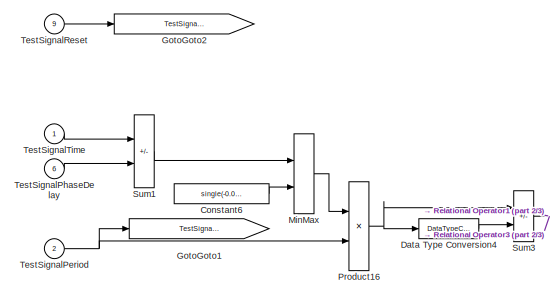
[diagram: Signal Generators/Signal Generator Components/TestSignalSquareTriangleWave_Advanced - part 1/3, top left region]
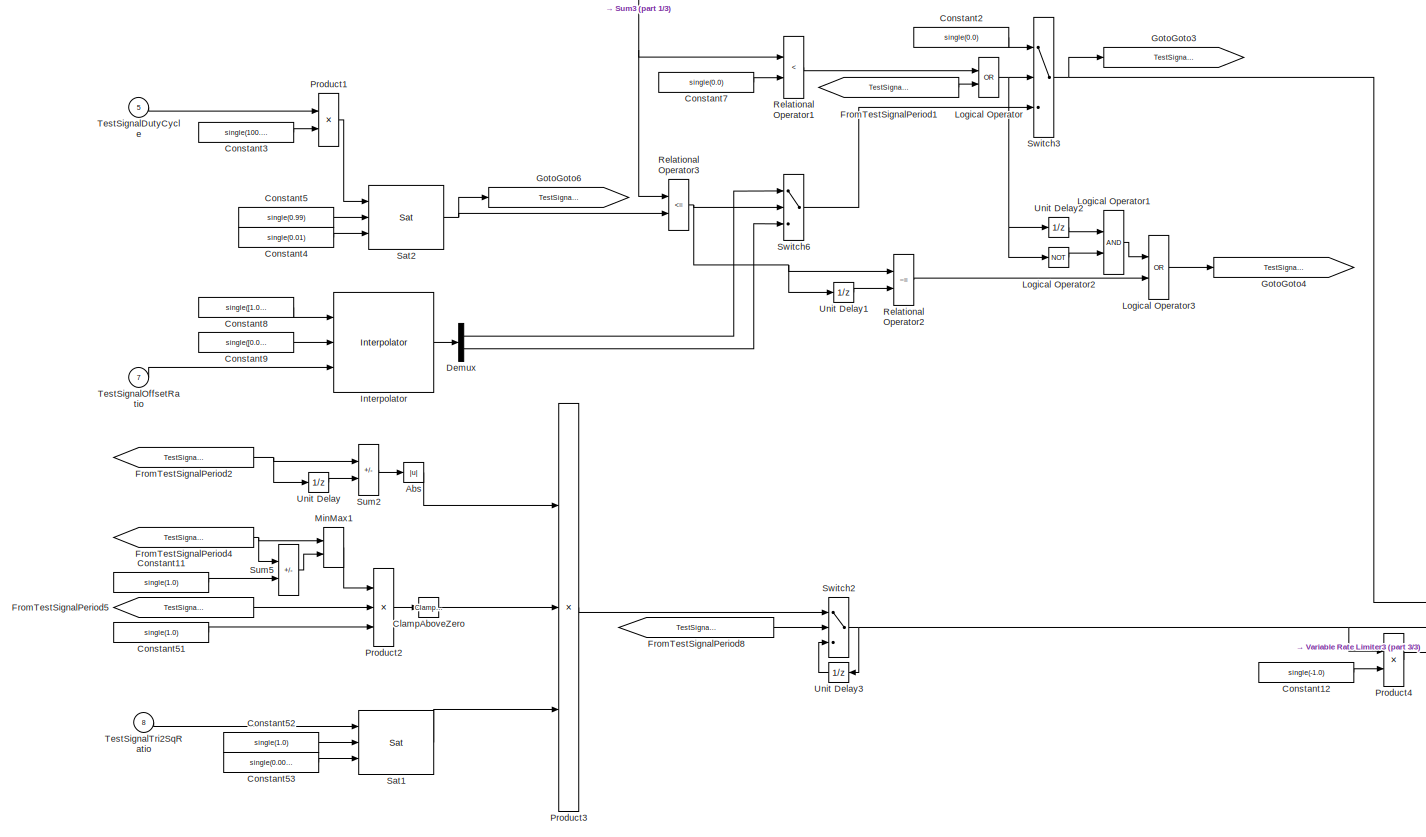
[diagram: Signal Generators/Signal Generator Components/TestSignalSquareTriangleWave_Advanced - part 2/3, center side, full height]
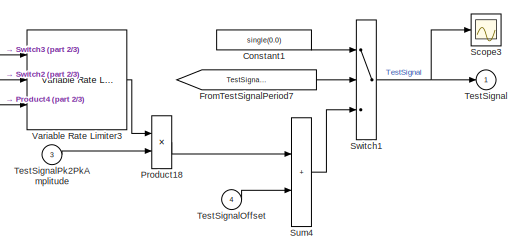
[diagram: Signal Generators/Signal Generator Components/TestSignalSquareTriangleWave_Advanced - part 3/3, bottom right region]
BLOCK [SubSystem] Signal Generators/Signal Generator Components/TestSignalSquareTriangleWave_Advanced
  Ports = [9, 1]
  RequestExecContextInheritance = off
BLOCK [Abs] Signal Generators/Signal Generator Components/TestSignalSquareTriangleWave_Advanced/Abs
  SaturateOnIntegerOverflow = off
  ZeroCross = off
BLOCK [Reference] Signal Generators/Signal Generator Components/TestSignalSquareTriangleWave_Advanced/ClampAboveZero  REF=$bdroot/Misc/ClampAboveZero
  AttributesFormatString = tol=%<Tol>
  Ports = [1, 1]
  SourceBlock = $bdroot/Misc/ClampAboveZero
  SourceType = CL Clamp Above Zero
BLOCK [Constant] Signal Generators/Signal Generator Components/TestSignalSquareTriangleWave_Advanced/Constant1
  Value = single(0.0)
BLOCK [Constant] Signal Generators/Signal Generator Components/TestSignalSquareTriangleWave_Advanced/Constant11
  Value = single(1.0)
BLOCK [Constant] Signal Generators/Signal Generator Components/TestSignalSquareTriangleWave_Advanced/Constant12
  Value = single(-1.0)
BLOCK [Constant] Signal Generators/Signal Generator Components/TestSignalSquareTriangleWave_Advanced/Constant2
  Value = single(0.0)
BLOCK [Constant] Signal Generators/Signal Generator Components/TestSignalSquareTriangleWave_Advanced/Constant3
  Value = single(100.0)
BLOCK [Constant] Signal Generators/Signal Generator Components/TestSignalSquareTriangleWave_Advanced/Constant4
  Value = single(0.01)
BLOCK [Constant] Signal Generators/Signal Generator Components/TestSignalSquareTriangleWave_Advanced/Constant5
  Value = single(0.99)
BLOCK [Constant] Signal Generators/Signal Generator Components/TestSignalSquareTriangleWave_Advanced/Constant51
  Value = single(1.0)
BLOCK [Constant] Signal Generators/Signal Generator Components/TestSignalSquareTriangleWave_Advanced/Constant52
  Value = single(1.0)
BLOCK [Constant] Signal Generators/Signal Generator Components/TestSignalSquareTriangleWave_Advanced/Constant53
  Value = single(0.0001)
BLOCK [Constant] Signal Generators/Signal Generator Components/TestSignalSquareTriangleWave_Advanced/Constant6
  Value = single(-0.01)
BLOCK [Constant] Signal Generators/Signal Generator Components/TestSignalSquareTriangleWave_Advanced/Constant7
  Value = single(0.0)
BLOCK [Constant] Signal Generators/Signal Generator Components/TestSignalSquareTriangleWave_Advanced/Constant8
  Value = single([1.0 0.0])
BLOCK [Constant] Signal Generators/Signal Generator Components/TestSignalSquareTriangleWave_Advanced/Constant9
  Value = single([0.0 -1.0])
BLOCK [DataTypeConversion] Signal Generators/Signal Generator Components/TestSignalSquareTriangleWave_Advanced/Data Type Conversion4
  OutDataTypeStr = uint32
  SaturateOnIntegerOverflow = off
BLOCK [Demux] Signal Generators/Signal Generator Components/TestSignalSquareTriangleWave_Advanced/Demux
  Outputs = 2
  Ports = [1, 2]
BLOCK [From] Signal Generators/Signal Generator Components/TestSignalSquareTriangleWave_Advanced/FromTestSignalPeriod1
  GotoTag = TestSignalReset
BLOCK [From] Signal Generators/Signal Generator Components/TestSignalSquareTriangleWave_Advanced/FromTestSignalPeriod2
  GotoTag = TestSignalSqrWave
BLOCK [From] Signal Generators/Signal Generator Components/TestSignalSquareTriangleWave_Advanced/FromTestSignalPeriod4
  GotoTag = TestSignalDutyCycFrac
BLOCK [From] Signal Generators/Signal Generator Components/TestSignalSquareTriangleWave_Advanced/FromTestSignalPeriod5
  GotoTag = TestSignalPeriod
BLOCK [From] Signal Generators/Signal Generator Components/TestSignalSquareTriangleWave_Advanced/FromTestSignalPeriod7
  GotoTag = TestSignalReset
BLOCK [From] Signal Generators/Signal Generator Components/TestSignalSquareTriangleWave_Advanced/FromTestSignalPeriod8
  GotoTag = TestSignalDirChange
BLOCK [Goto] Signal Generators/Signal Generator Components/TestSignalSquareTriangleWave_Advanced/GotoGoto1
  GotoTag = TestSignalPeriod
BLOCK [Goto] Signal Generators/Signal Generator Components/TestSignalSquareTriangleWave_Advanced/GotoGoto2
  GotoTag = TestSignalReset
BLOCK [Goto] Signal Generators/Signal Generator Components/TestSignalSquareTriangleWave_Advanced/GotoGoto3
  GotoTag = TestSignalSqrWave
BLOCK [Goto] Signal Generators/Signal Generator Components/TestSignalSquareTriangleWave_Advanced/GotoGoto4
  GotoTag = TestSignalDirChange
BLOCK [Goto] Signal Generators/Signal Generator Components/TestSignalSquareTriangleWave_Advanced/GotoGoto6
  GotoTag = TestSignalDutyCycFrac
BLOCK [Reference] Signal Generators/Signal Generator Components/TestSignalSquareTriangleWave_Advanced/Interpolator  REF=$bdroot/Tbl/Interpolator
  Ports = [3, 1]
  SourceBlock = $bdroot/Tbl/Interpolator
  SourceType = CL Interpolation
BLOCK [Logic] Signal Generators/Signal Generator Components/TestSignalSquareTriangleWave_Advanced/Logical Operator
  AllPortsSameDT = off
  Operator = OR
  Ports = [2, 1]
BLOCK [Logic] Signal Generators/Signal Generator Components/TestSignalSquareTriangleWave_Advanced/Logical Operator1
  AllPortsSameDT = off
  Ports = [2, 1]
BLOCK [Logic] Signal Generators/Signal Generator Components/TestSignalSquareTriangleWave_Advanced/Logical Operator2
  AllPortsSameDT = off
  Operator = NOT
  Ports = [1, 1]
BLOCK [Logic] Signal Generators/Signal Generator Components/TestSignalSquareTriangleWave_Advanced/Logical Operator3
  AllPortsSameDT = off
  Operator = OR
  Ports = [2, 1]
BLOCK [MinMax] Signal Generators/Signal Generator Components/TestSignalSquareTriangleWave_Advanced/MinMax
  Function = max
  InputSameDT = on
  Inputs = 2
  Ports = [2, 1]
  ZeroCross = off
BLOCK [MinMax] Signal Generators/Signal Generator Components/TestSignalSquareTriangleWave_Advanced/MinMax1
  InputSameDT = on
  Inputs = 2
  Ports = [2, 1]
  ZeroCross = off
BLOCK [Product] Signal Generators/Signal Generator Components/TestSignalSquareTriangleWave_Advanced/Product1
  Inputs = */
  OutDataTypeStr = Inherit: Same as first input
  Ports = [2, 1]
BLOCK [Product] Signal Generators/Signal Generator Components/TestSignalSquareTriangleWave_Advanced/Product16
  Inputs = */
  OutDataTypeStr = Inherit: Same as first input
  Ports = [2, 1]
BLOCK [Product] Signal Generators/Signal Generator Components/TestSignalSquareTriangleWave_Advanced/Product18
  Inputs = **
  OutDataTypeStr = Inherit: Same as first input
  Ports = [2, 1]
BLOCK [Product] Signal Generators/Signal Generator Components/TestSignalSquareTriangleWave_Advanced/Product2
  Inputs = **/
  OutDataTypeStr = Inherit: Same as first input
  Ports = [3, 1]
BLOCK [Product] Signal Generators/Signal Generator Components/TestSignalSquareTriangleWave_Advanced/Product3
  Inputs = *//
  OutDataTypeStr = Inherit: Same as first input
  Ports = [3, 1]
BLOCK [Product] Signal Generators/Signal Generator Components/TestSignalSquareTriangleWave_Advanced/Product4
  Inputs = **
  OutDataTypeStr = Inherit: Same as first input
  Ports = [2, 1]
BLOCK [RelationalOperator] Signal Generators/Signal Generator Components/TestSignalSquareTriangleWave_Advanced/Relational Operator1
  InputSameDT = off
  Operator = <
  Ports = [2, 1]
  ZeroCross = off
BLOCK [RelationalOperator] Signal Generators/Signal Generator Components/TestSignalSquareTriangleWave_Advanced/Relational Operator2
  InputSameDT = off
  Operator = ~=
  Ports = [2, 1]
  ZeroCross = off
BLOCK [RelationalOperator] Signal Generators/Signal Generator Components/TestSignalSquareTriangleWave_Advanced/Relational Operator3
  InputSameDT = off
  Operator = <=
  Ports = [2, 1]
  ZeroCross = off
BLOCK [Reference] Signal Generators/Signal Generator Components/TestSignalSquareTriangleWave_Advanced/Sat1  REF=$bdroot/Slink/Sat
  Ports = [3, 1]
  SourceBlock = $bdroot/Slink/Sat
  SourceType = CL Variable Saturation
BLOCK [Reference] Signal Generators/Signal Generator Components/TestSignalSquareTriangleWave_Advanced/Sat2  REF=$bdroot/Slink/Sat
  Ports = [3, 1]
  SourceBlock = $bdroot/Slink/Sat
  SourceType = CL Variable Saturation
BLOCK [Scope] Signal Generators/Signal Generator Components/TestSignalSquareTriangleWave_Advanced/Scope3
  Floating = off
  NumInputPorts = 1
  Ports = [1]
  ScopeSpecificationString = Simulink.scopes.TimeScopeBlockCfg('CurrentConfiguration', extmgr.ConfigurationSet(extmgr.Configuration('Core','General UI',true),extmgr.Configuration('Core','Source UI',true),extmgr.Configuration('Sources','WiredSimulink',true,'DataLoggingVariableName','ScopeData5','DataLoggingSaveFormat','StructureWithTime','DataLoggingLimitDataPoints',true,'DataLoggingDecimation','1','DataLoggingDecimateData',tr...<+912ch>
BLOCK [Sum] Signal Generators/Signal Generator Components/TestSignalSquareTriangleWave_Advanced/Sum1
  IconShape = rectangular
  Inputs = +-
  Ports = [2, 1]
BLOCK [Sum] Signal Generators/Signal Generator Components/TestSignalSquareTriangleWave_Advanced/Sum2
  IconShape = rectangular
  Inputs = +-
  Ports = [2, 1]
BLOCK [Sum] Signal Generators/Signal Generator Components/TestSignalSquareTriangleWave_Advanced/Sum3
  IconShape = rectangular
  Inputs = +-
  Ports = [2, 1]
BLOCK [Sum] Signal Generators/Signal Generator Components/TestSignalSquareTriangleWave_Advanced/Sum4
  IconShape = rectangular
  Ports = [2, 1]
BLOCK [Sum] Signal Generators/Signal Generator Components/TestSignalSquareTriangleWave_Advanced/Sum5
  IconShape = rectangular
  Inputs = -+
  Ports = [2, 1]
BLOCK [Switch] Signal Generators/Signal Generator Components/TestSignalSquareTriangleWave_Advanced/Switch1
  InputSameDT = off
  SaturateOnIntegerOverflow = off
  Threshold = 0.5
  ZeroCross = off
BLOCK [Switch] Signal Generators/Signal Generator Components/TestSignalSquareTriangleWave_Advanced/Switch2
  InputSameDT = off
  SaturateOnIntegerOverflow = off
  Threshold = 0.5
  ZeroCross = off
BLOCK [Switch] Signal Generators/Signal Generator Components/TestSignalSquareTriangleWave_Advanced/Switch3
  InputSameDT = off
  SaturateOnIntegerOverflow = off
  Threshold = 0.5
  ZeroCross = off
BLOCK [Switch] Signal Generators/Signal Generator Components/TestSignalSquareTriangleWave_Advanced/Switch6
  InputSameDT = off
  SaturateOnIntegerOverflow = off
  Threshold = 0.5
  ZeroCross = off
BLOCK [Outport] Signal Generators/Signal Generator Components/TestSignalSquareTriangleWave_Advanced/TestSignal
  VectorParamsAs1DForOutWhenUnconnected = off
BLOCK [Inport] Signal Generators/Signal Generator Components/TestSignalSquareTriangleWave_Advanced/TestSignalDutyCycle
  Port = 5
BLOCK [Inport] Signal Generators/Signal Generator Components/TestSignalSquareTriangleWave_Advanced/TestSignalOffset
  Port = 4
BLOCK [Inport] Signal Generators/Signal Generator Components/TestSignalSquareTriangleWave_Advanced/TestSignalOffsetRatio
  Port = 7
BLOCK [Inport] Signal Generators/Signal Generator Components/TestSignalSquareTriangleWave_Advanced/TestSignalPeriod
  Port = 2
BLOCK [Inport] Signal Generators/Signal Generator Components/TestSignalSquareTriangleWave_Advanced/TestSignalPhaseDelay
  Port = 6
BLOCK [Inport] Signal Generators/Signal Generator Components/TestSignalSquareTriangleWave_Advanced/TestSignalPk2PkAmplitude
  Port = 3
BLOCK [Inport] Signal Generators/Signal Generator Components/TestSignalSquareTriangleWave_Advanced/TestSignalReset
  Port = 9
BLOCK [Inport] Signal Generators/Signal Generator Components/TestSignalSquareTriangleWave_Advanced/TestSignalTime
BLOCK [Inport] Signal Generators/Signal Generator Components/TestSignalSquareTriangleWave_Advanced/TestSignalTri2SqRatio
  Port = 8
BLOCK [UnitDelay] Signal Generators/Signal Generator Components/TestSignalSquareTriangleWave_Advanced/Unit Delay
  AttributesFormatString = ic=%<X0>
  HasFrameUpgradeWarning = on
  InitialCondition = single(0.0)
  SampleTime = -1
BLOCK [UnitDelay] Signal Generators/Signal Generator Components/TestSignalSquareTriangleWave_Advanced/Unit Delay1
  AttributesFormatString = ic=%<X0>
  HasFrameUpgradeWarning = on
  InitialCondition = false
  SampleTime = -1
BLOCK [UnitDelay] Signal Generators/Signal Generator Components/TestSignalSquareTriangleWave_Advanced/Unit Delay2
  AttributesFormatString = ic=%<X0>
  HasFrameUpgradeWarning = on
  InitialCondition = false
  SampleTime = -1
BLOCK [UnitDelay] Signal Generators/Signal Generator Components/TestSignalSquareTriangleWave_Advanced/Unit Delay3
  AttributesFormatString = ic=%<X0>
  HasFrameUpgradeWarning = on
  InitialCondition = single(0.0)
  SampleTime = -1
BLOCK [Reference] Signal Generators/Signal Generator Components/TestSignalSquareTriangleWave_Advanced/Variable Rate Limiter3  REF=$bdroot/Slink/Variable Rate Limiter
  Ports = [3, 1]
  SourceBlock = $bdroot/Slink/Variable Rate Limiter
  SourceType = CL Variable Rate Limiter
BLOCK [SubSystem] Signal Generators/Signal Generator Components/TestSignalSquareTriangleWave_Basic
  Ports = [6, 1]
  RequestExecContextInheritance = off
BLOCK [Constant] Signal Generators/Signal Generator Components/TestSignalSquareTriangleWave_Basic/Constant1
  Value = single(0.0)
BLOCK [Constant] Signal Generators/Signal Generator Components/TestSignalSquareTriangleWave_Basic/Constant2
  Value = single(0.0)
BLOCK [Constant] Signal Generators/Signal Generator Components/TestSignalSquareTriangleWave_Basic/Constant34
  SampleTime = -1
  Value = single(0.5)
BLOCK [Constant] Signal Generators/Signal Generator Components/TestSignalSquareTriangleWave_Basic/Constant37
  SampleTime = -1
  Value = single(-0.5)
BLOCK [Constant] Signal Generators/Signal Generator Components/TestSignalSquareTriangleWave_Basic/Constant38
  SampleTime = -1
  Value = single(0.5)
BLOCK [Constant] Signal Generators/Signal Generator Components/TestSignalSquareTriangleWave_Basic/Constant46
  SampleTime = -1
  Value = true
BLOCK [Constant] Signal Generators/Signal Generator Components/TestSignalSquareTriangleWave_Basic/Constant50
  Value = single(-1.0)
BLOCK [Constant] Signal Generators/Signal Generator Components/TestSignalSquareTriangleWave_Basic/Constant51
  Value = single(2.0)
BLOCK [Constant] Signal Generators/Signal Generator Components/TestSignalSquareTriangleWave_Basic/Constant52
  Value = single(1.0)
BLOCK [Constant] Signal Generators/Signal Generator Components/TestSignalSquareTriangleWave_Basic/Constant53
  Value = single(0.0001)
BLOCK [DataTypeConversion] Signal Generators/Signal Generator Components/TestSignalSquareTriangleWave_Basic/Data Type Conversion4
  OutDataTypeStr = uint32
  SaturateOnIntegerOverflow = off
BLOCK [From] Signal Generators/Signal Generator Components/TestSignalSquareTriangleWave_Basic/FromTestSignalPeriod
  GotoTag = TestSignalPeriod
BLOCK [From] Signal Generators/Signal Generator Components/TestSignalSquareTriangleWave_Basic/FromTestSignalTime_2
  GotoTag = TestSignalTime
BLOCK [Goto] Signal Generators/Signal Generator Components/TestSignalSquareTriangleWave_Basic/GotoGoto
  GotoTag = TestSignalTime
BLOCK [Goto] Signal Generators/Signal Generator Components/TestSignalSquareTriangleWave_Basic/GotoGoto1
  GotoTag = TestSignalPeriod
BLOCK [Product] Signal Generators/Signal Generator Components/TestSignalSquareTriangleWave_Basic/Product16
  Inputs = */
  OutDataTypeStr = Inherit: Same as first input
  Ports = [2, 1]
BLOCK [Product] Signal Generators/Signal Generator Components/TestSignalSquareTriangleWave_Basic/Product17
  Inputs = **
  OutDataTypeStr = Inherit: Same as first input
  Ports = [2, 1]
BLOCK [Product] Signal Generators/Signal Generator Components/TestSignalSquareTriangleWave_Basic/Product18
  Inputs = **
  OutDataTypeStr = Inherit: Same as first input
  Ports = [2, 1]
BLOCK [Product] Signal Generators/Signal Generator Components/TestSignalSquareTriangleWave_Basic/Product20
  Inputs = *//
  OutDataTypeStr = Inherit: Same as first input
  Ports = [3, 1]
BLOCK [RelationalOperator] Signal Generators/Signal Generator Components/TestSignalSquareTriangleWave_Basic/Relational Operator3
  InputSameDT = off
  Operator = <=
  Ports = [2, 1]
  ZeroCross = off
BLOCK [Reference] Signal Generators/Signal Generator Components/TestSignalSquareTriangleWave_Basic/Sat1  REF=$bdroot/Slink/Sat
  Ports = [3, 1]
  SourceBlock = $bdroot/Slink/Sat
  SourceType = CL Variable Saturation
BLOCK [Sum] Signal Generators/Signal Generator Components/TestSignalSquareTriangleWave_Basic/Sum3
  IconShape = rectangular
  Inputs = +-
  Ports = [2, 1]
BLOCK [Sum] Signal Generators/Signal Generator Components/TestSignalSquareTriangleWave_Basic/Sum4
  IconShape = rectangular
  Ports = [2, 1]
BLOCK [Switch] Signal Generators/Signal Generator Components/TestSignalSquareTriangleWave_Basic/Switch1
  InputSameDT = off
  SaturateOnIntegerOverflow = off
  Threshold = 0.5
  ZeroCross = off
BLOCK [Switch] Signal Generators/Signal Generator Components/TestSignalSquareTriangleWave_Basic/Switch2
  InputSameDT = off
  SaturateOnIntegerOverflow = off
  Threshold = 0.5
  ZeroCross = off
BLOCK [Switch] Signal Generators/Signal Generator Components/TestSignalSquareTriangleWave_Basic/Switch4
  InputSameDT = off
  SaturateOnIntegerOverflow = off
  Threshold = 0.5
  ZeroCross = off
BLOCK [Switch] Signal Generators/Signal Generator Components/TestSignalSquareTriangleWave_Basic/Switch6
  InputSameDT = off
  SaturateOnIntegerOverflow = off
  Threshold = 0.5
  ZeroCross = off
BLOCK [Outport] Signal Generators/Signal Generator Components/TestSignalSquareTriangleWave_Basic/TestSignal
  VectorParamsAs1DForOutWhenUnconnected = off
BLOCK [Inport] Signal Generators/Signal Generator Components/TestSignalSquareTriangleWave_Basic/TestSignalOffset
  Port = 4
BLOCK [Inport] Signal Generators/Signal Generator Components/TestSignalSquareTriangleWave_Basic/TestSignalPeriod
  Port = 2
BLOCK [Inport] Signal Generators/Signal Generator Components/TestSignalSquareTriangleWave_Basic/TestSignalPk2PkAmplitude
  Port = 3
BLOCK [Inport] Signal Generators/Signal Generator Components/TestSignalSquareTriangleWave_Basic/TestSignalReset
  Port = 6
BLOCK [Inport] Signal Generators/Signal Generator Components/TestSignalSquareTriangleWave_Basic/TestSignalTime
BLOCK [Inport] Signal Generators/Signal Generator Components/TestSignalSquareTriangleWave_Basic/TestSignalTri2SqRatio
  Port = 5
BLOCK [Reference] Signal Generators/Signal Generator Components/TestSignalSquareTriangleWave_Basic/Variable Rate Limiter3  REF=$bdroot/Slink/Variable Rate Limiter
  Ports = [3, 1]
  SourceBlock = $bdroot/Slink/Variable Rate Limiter
  SourceType = CL Variable Rate Limiter
BLOCK [SubSystem] Signal Generators/Signal Generator Components/TestSignalTimer
  Ports = [1, 1]
  RequestExecContextInheritance = off
BLOCK [Constant] Signal Generators/Signal Generator Components/TestSignalTimer/Constant1
  SampleTime = -1
  Value = TimeStep
BLOCK [Constant] Signal Generators/Signal Generator Components/TestSignalTimer/Constant40
  SampleTime = -1
  Value = false
BLOCK [Constant] Signal Generators/Signal Generator Components/TestSignalTimer/Constant41
  Value = single(0.0)
BLOCK [Constant] Signal Generators/Signal Generator Components/TestSignalTimer/Constant43
  Value = single(1000000)
BLOCK [DataTypeConversion] Signal Generators/Signal Generator Components/TestSignalTimer/Data Type Conversion7
  OutDataTypeStr = single
  RndMeth = Floor
  SaturateOnIntegerOverflow = off
BLOCK [Logic] Signal Generators/Signal Generator Components/TestSignalTimer/Logical Operator1
  AllPortsSameDT = off
  Inputs = 3
  Operator = OR
  Ports = [3, 1]
BLOCK [RelationalOperator] Signal Generators/Signal Generator Components/TestSignalTimer/Relational Operator4
  InputSameDT = off
  Ports = [2, 1]
  ZeroCross = off
BLOCK [Sum] Signal Generators/Signal Generator Components/TestSignalTimer/Sum5
  IconShape = rectangular
  Inputs = 2
  Ports = [2, 1]
BLOCK [Switch] Signal Generators/Signal Generator Components/TestSignalTimer/Switch5
  InputSameDT = off
  SaturateOnIntegerOverflow = off
  Threshold = 0.5
  ZeroCross = off
BLOCK [Inport] Signal Generators/Signal Generator Components/TestSignalTimer/TestSignalReset
BLOCK [Outport] Signal Generators/Signal Generator Components/TestSignalTimer/TestSignalTime
  VectorParamsAs1DForOutWhenUnconnected = off
BLOCK [UnitDelay] Signal Generators/Signal Generator Components/TestSignalTimer/Unit Delay4
  AttributesFormatString = ic=%<X0>
  HasFrameUpgradeWarning = on
  InitialCondition = true
  SampleTime = -1
BLOCK [UnitDelay] Signal Generators/Signal Generator Components/TestSignalTimer/Unit Delay5
  AttributesFormatString = ic=%<X0>
  HasFrameUpgradeWarning = on
  InitialCondition = single(0.0)
  SampleTime = -1
BLOCK [SubSystem] Signal Generators/SquareTriangleWaveDither
  Ports = [11, 1]
  RequestExecContextInheritance = off
BLOCK [Inport] Signal Generators/SquareTriangleWaveDither/CmdSignal
BLOCK [Inport] Signal Generators/SquareTriangleWaveDither/CmdSignalMax
  Port = 2
BLOCK [Inport] Signal Generators/SquareTriangleWaveDither/CmdSignalMin
  Port = 3
BLOCK [Constant] Signal Generators/SquareTriangleWaveDither/Constant
  SampleTime = -1
  Value = single(1)
BLOCK [Outport] Signal Generators/SquareTriangleWaveDither/Dither
  VectorParamsAs1DForOutWhenUnconnected = off
BLOCK [Inport] Signal Generators/SquareTriangleWaveDither/DitherAmplitude
  Port = 5
BLOCK [Inport] Signal Generators/SquareTriangleWaveDither/DitherDutyCycle
  Port = 7
BLOCK [Inport] Signal Generators/SquareTriangleWaveDither/DitherFrequency
  Port = 4
BLOCK [Inport] Signal Generators/SquareTriangleWaveDither/DitherOffset
  Port = 6
BLOCK [Inport] Signal Generators/SquareTriangleWaveDither/DitherOffsetRatio
  Port = 9
BLOCK [Inport] Signal Generators/SquareTriangleWaveDither/DitherPhaseDelay
  Port = 8
BLOCK [Inport] Signal Generators/SquareTriangleWaveDither/DitherReset
  Port = 11
BLOCK [Inport] Signal Generators/SquareTriangleWaveDither/DitherTri2SqRatio
  Port = 10
BLOCK [MinMax] Signal Generators/SquareTriangleWaveDither/MinMax
  InputSameDT = on
  Inputs = 2
  Ports = [2, 1]
  ZeroCross = off
BLOCK [Product] Signal Generators/SquareTriangleWaveDither/Product1
  OutDataTypeStr = Inherit: Same as first input
  Ports = [2, 1]
BLOCK [Reference] Signal Generators/SquareTriangleWaveDither/Sat  REF=$bdroot/Slink/Sat
  Ports = [3, 1]
  SourceBlock = $bdroot/Slink/Sat
  SourceType = CL Variable Saturation
BLOCK [Reference] Signal Generators/SquareTriangleWaveDither/SquareTriangleWaveGenerator_Advanced  REF=$bdroot/Signal Generators/SquareTriangleWaveGenerator_Advanced
  Ports = [8, 1]
  SourceBlock = $bdroot/Signal Generators/SquareTriangleWaveGenerator_Advanced
BLOCK [SubSystem] Signal Generators/SquareTriangleWaveDitherPWM
  Ports = [12, 1]
  RequestExecContextInheritance = off
BLOCK [Inport] Signal Generators/SquareTriangleWaveDitherPWM/CmdSignal
BLOCK [Inport] Signal Generators/SquareTriangleWaveDitherPWM/CmdSignalMax
  Port = 3
BLOCK [Inport] Signal Generators/SquareTriangleWaveDitherPWM/CmdSignalMin
  Port = 4
BLOCK [Constant] Signal Generators/SquareTriangleWaveDitherPWM/Constant
  SampleTime = -1
  Value = single(1)
BLOCK [Inport] Signal Generators/SquareTriangleWaveDitherPWM/DitherAmplitude
  Port = 6
BLOCK [Inport] Signal Generators/SquareTriangleWaveDitherPWM/DitherDutyCycle
  Port = 8
BLOCK [Inport] Signal Generators/SquareTriangleWaveDitherPWM/DitherFrequency
  Port = 5
BLOCK [Inport] Signal Generators/SquareTriangleWaveDitherPWM/DitherOffset
  Port = 7
BLOCK [Inport] Signal Generators/SquareTriangleWaveDitherPWM/DitherOffsetRatio
  Port = 10
BLOCK [Inport] Signal Generators/SquareTriangleWaveDitherPWM/DitherPhaseDelay
  Port = 9
BLOCK [Inport] Signal Generators/SquareTriangleWaveDitherPWM/DitherReset
  Port = 12
BLOCK [Inport] Signal Generators/SquareTriangleWaveDitherPWM/DitherTri2SqRatio
  Port = 11
BLOCK [Outport] Signal Generators/SquareTriangleWaveDitherPWM/Dither_PWM
  VectorParamsAs1DForOutWhenUnconnected = off
BLOCK [MinMax] Signal Generators/SquareTriangleWaveDitherPWM/MinMax
  InputSameDT = on
  Inputs = 2
  Ports = [2, 1]
  ZeroCross = off
BLOCK [Inport] Signal Generators/SquareTriangleWaveDitherPWM/OutputType
  Port = 2
BLOCK [Product] Signal Generators/SquareTriangleWaveDitherPWM/Product1
  OutDataTypeStr = Inherit: Same as first input
  Ports = [2, 1]
BLOCK [Reference] Signal Generators/SquareTriangleWaveDitherPWM/Sat  REF=$bdroot/Slink/Sat
  Ports = [3, 1]
  SourceBlock = $bdroot/Slink/Sat
  SourceType = CL Variable Saturation
BLOCK [Reference] Signal Generators/SquareTriangleWaveDitherPWM/SquareTriangleWaveGenerator_Advanced  REF=$bdroot/Signal Generators/SquareTriangleWaveGenerator_Advanced
  Ports = [8, 1]
  SourceBlock = $bdroot/Signal Generators/SquareTriangleWaveGenerator_Advanced
BLOCK [Switch] Signal Generators/SquareTriangleWaveDitherPWM/Switch
  InputSameDT = off
  SaturateOnIntegerOverflow = off
  Threshold = 0.5
  ZeroCross = off
BLOCK [SubSystem] Signal Generators/SquareTriangleWaveGenerator_Advanced
  Ports = [8, 1]
  RequestExecContextInheritance = off
BLOCK [From] Signal Generators/SquareTriangleWaveGenerator_Advanced/FromTestSignalPeriod1
  GotoTag = TestSignalReset
BLOCK [Goto] Signal Generators/SquareTriangleWaveGenerator_Advanced/GotoGoto2
  GotoTag = TestSignalReset
BLOCK [Outport] Signal Generators/SquareTriangleWaveGenerator_Advanced/TestSignal
  VectorParamsAs1DForOutWhenUnconnected = off
BLOCK [Inport] Signal Generators/SquareTriangleWaveGenerator_Advanced/TestSignalDutyCycle
  Port = 4
BLOCK [Inport] Signal Generators/SquareTriangleWaveGenerator_Advanced/TestSignalFrequency
BLOCK [Inport] Signal Generators/SquareTriangleWaveGenerator_Advanced/TestSignalOffset
  Port = 3
BLOCK [Inport] Signal Generators/SquareTriangleWaveGenerator_Advanced/TestSignalOffsetRatio
  Port = 6
BLOCK [Reference] Signal Generators/SquareTriangleWaveGenerator_Advanced/TestSignalPeriod  REF=$bdroot/Signal Generators/Signal Generator Components/TestSignalPeriod
  Ports = [1, 1]
  SourceBlock = $bdroot/Signal Generators/Signal Generator Components/TestSignalPeriod
BLOCK [Reference] Signal Generators/SquareTriangleWaveGenerator_Advanced/TestSignalPeriodTimer  REF=$bdroot/Signal Generators/Signal Generator Components/TestSignalPeriodTimer
  Ports = [2, 1]
  SourceBlock = $bdroot/Signal Generators/Signal Generator Components/TestSignalPeriodTimer
BLOCK [Inport] Signal Generators/SquareTriangleWaveGenerator_Advanced/TestSignalPhaseDelay
  Port = 5
BLOCK [Inport] Signal Generators/SquareTriangleWaveGenerator_Advanced/TestSignalPk2PkAmplitude
  Port = 2
BLOCK [Inport] Signal Generators/SquareTriangleWaveGenerator_Advanced/TestSignalReset
  Port = 8
BLOCK [Reference] Signal Generators/SquareTriangleWaveGenerator_Advanced/TestSignalSquareTriangleWave_Advanced  REF=$bdroot/Signal Generators/Signal Generator Components/TestSignalSquareTriangleWave_Advanced
  Ports = [9, 1]
  SourceBlock = $bdroot/Signal Generators/Signal Generator Components/TestSignalSquareTriangleWave_Advanced
BLOCK [Inport] Signal Generators/SquareTriangleWaveGenerator_Advanced/TestSignalTri2SqRatio
  Port = 7
BLOCK [SubSystem] Signal Generators/SquareTriangleWaveGenerator_Basic
  Ports = [5, 1]
  RequestExecContextInheritance = off
BLOCK [From] Signal Generators/SquareTriangleWaveGenerator_Basic/FromTestSignalPeriod1
  GotoTag = TestSignalReset
BLOCK [Goto] Signal Generators/SquareTriangleWaveGenerator_Basic/GotoGoto2
  GotoTag = TestSignalReset
BLOCK [Outport] Signal Generators/SquareTriangleWaveGenerator_Basic/TestSignal
  VectorParamsAs1DForOutWhenUnconnected = off
BLOCK [Inport] Signal Generators/SquareTriangleWaveGenerator_Basic/TestSignalFrequency
BLOCK [Inport] Signal Generators/SquareTriangleWaveGenerator_Basic/TestSignalOffset
  Port = 3
BLOCK [Reference] Signal Generators/SquareTriangleWaveGenerator_Basic/TestSignalPeriod  REF=$bdroot/Signal Generators/Signal Generator Components/TestSignalPeriod
  Ports = [1, 1]
  SourceBlock = $bdroot/Signal Generators/Signal Generator Components/TestSignalPeriod
BLOCK [Reference] Signal Generators/SquareTriangleWaveGenerator_Basic/TestSignalPeriodTimer  REF=$bdroot/Signal Generators/Signal Generator Components/TestSignalPeriodTimer
  Ports = [2, 1]
  SourceBlock = $bdroot/Signal Generators/Signal Generator Components/TestSignalPeriodTimer
BLOCK [Inport] Signal Generators/SquareTriangleWaveGenerator_Basic/TestSignalPk2PkAmplitude
  Port = 2
BLOCK [Inport] Signal Generators/SquareTriangleWaveGenerator_Basic/TestSignalReset
  Port = 5
BLOCK [Reference] Signal Generators/SquareTriangleWaveGenerator_Basic/TestSignalSquareTriangleWave_Basic  REF=$bdroot/Signal Generators/Signal Generator Components/TestSignalSquareTriangleWave_Basic
  Ports = [6, 1]
  SourceBlock = $bdroot/Signal Generators/Signal Generator Components/TestSignalSquareTriangleWave_Basic
BLOCK [Inport] Signal Generators/SquareTriangleWaveGenerator_Basic/TestSignalTri2SqRatio
  Port = 4
BLOCK [SubSystem] Signal Routing
  Ports = []
  RequestExecContextInheritance = off
BLOCK [SubSystem] Signal Routing/Overwrite
  Ports = [1, 1]
  RequestExecContextInheritance = off
BLOCK [DataTypeConversion] Signal Routing/Overwrite/Data Type Conversion
  OutDataTypeStr = single
  RndMeth = Floor
  SaturateOnIntegerOverflow = off
BLOCK [DataTypeConversion] Signal Routing/Overwrite/Data Type Conversion1
  OutDataTypeStr = single
  RndMeth = Floor
  SaturateOnIntegerOverflow = off
BLOCK [Inport] Signal Routing/Overwrite/In1
BLOCK [Outport] Signal Routing/Overwrite/Out1
  VectorParamsAs1DForOutWhenUnconnected = off
BLOCK [Switch] Signal Routing/Overwrite/Switch
  InputSameDT = off
  SaturateOnIntegerOverflow = off
  Threshold = 0.5
BLOCK [Constant] Signal Routing/Overwrite/xPCOE_VariableName
  Value = OverwriteEnable
BLOCK [Constant] Signal Routing/Overwrite/xPCOV_VariableName
  Value = OverwriteValue
BLOCK [SubSystem] Signal Routing/Vector to Bus
  Ports = [1, 1]
  RequestExecContextInheritance = off
BLOCK [BusCreator] Signal Routing/Vector to Bus/Bus Creator3
  DisplayOption = bar
  InheritFromInputs = on
  Inputs = 8
  Ports = [8, 1]
BLOCK [Outport] Signal Routing/Vector to Bus/BusOut
  VectorParamsAs1DForOutWhenUnconnected = off
BLOCK [Demux] Signal Routing/Vector to Bus/Demux
  Outputs = 8
  Ports = [1, 8]
BLOCK [Inport] Signal Routing/Vector to Bus/VectorIn
BLOCK [SubSystem] Slink
  Ports = []
  RequestExecContextInheritance = off
BLOCK [SubSystem] Slink/Dead
  Ports = [2, 1]
  RequestExecContextInheritance = off
BLOCK [Constant] Slink/Dead/Constant1
  Value = Zero
BLOCK [Constant] Slink/Dead/Constant2
  Value = MinusOne
BLOCK [Sum] Slink/Dead/R1
  IconShape = rectangular
  InputSameDT = on
  Inputs = +-
  OutDataTypeStr = Inherit: Same as first input
  Ports = [2, 1]
BLOCK [Sum] Slink/Dead/R2
  IconShape = rectangular
  InputSameDT = on
  Inputs = +-
  OutDataTypeStr = Inherit: Same as first input
  Ports = [2, 1]
BLOCK [RelationalOperator] Slink/Dead/Relational Operator6
  Ports = [2, 1]
  ZeroCross = off
BLOCK [RelationalOperator] Slink/Dead/Relational Operator7
  Operator = >
  Ports = [2, 1]
  ZeroCross = off
BLOCK [Switch] Slink/Dead/Switch2
  NameLocation = top
  SaturateOnIntegerOverflow = off
  Threshold = 0.5
  ZeroCross = off
BLOCK [Switch] Slink/Dead/Switch3
  NameLocation = top
  SaturateOnIntegerOverflow = off
  Threshold = 0.5
  ZeroCross = off
BLOCK [Inport] Slink/Dead/deadband
  NameLocation = top
  Port = 2
BLOCK [Inport] Slink/Dead/input
BLOCK [Product] Slink/Dead/mep to torque2
  InputSameDT = on
  OutDataTypeStr = Inherit: Same as first input
  Ports = [2, 1]
BLOCK [Outport] Slink/Dead/output
  VectorParamsAs1DForOutWhenUnconnected = off
BLOCK [SubSystem] Slink/Hysteresis
  Ports = [2, 1]
  RequestExecContextInheritance = off
BLOCK [Constant] Slink/Hysteresis/Constant4
  Value = MinusOne
BLOCK [Inport] Slink/Hysteresis/Delta
  Port = 2
BLOCK [Inport] Slink/Hysteresis/Input
BLOCK [Outport] Slink/Hysteresis/Output
  VectorParamsAs1DForOutWhenUnconnected = off
BLOCK [Product] Slink/Hysteresis/Product1
  InputSameDT = on
  OutDataTypeStr = Inherit: Same as first input
  Ports = [2, 1]
BLOCK [Reference] Slink/Hysteresis/Sat  REF=$bdroot/Slink/Sat
  Ports = [3, 1]
  SourceBlock = $bdroot/Slink/Sat
  SourceType = CL Variable Saturation
BLOCK [Sum] Slink/Hysteresis/Sum
  IconShape = rectangular
  InputSameDT = on
  Inputs = +-+
  OutDataTypeStr = Inherit: Same as first input
  Ports = [3, 1]
BLOCK [Sum] Slink/Hysteresis/Sum2
  IconShape = rectangular
  InputSameDT = on
  Inputs = +-
  OutDataTypeStr = Inherit: Same as first input
  Ports = [2, 1]
BLOCK [UnitDelay] Slink/Hysteresis/Unit Delay1
  HasFrameUpgradeWarning = on
  InitialCondition = IC
  SampleTime = -1
BLOCK [UnitDelay] Slink/Hysteresis/Unit Delay2
  HasFrameUpgradeWarning = on
  InitialCondition = IC
  NameLocation = top
  SampleTime = -1
BLOCK [SubSystem] Slink/Relay
  Ports = [5, 1]
  RequestExecContextInheritance = off
BLOCK [RelationalOperator] Slink/Relay/Relational Operator1
  Operator = <=
  Ports = [2, 1]
  ZeroCross = off
BLOCK [RelationalOperator] Slink/Relay/Relational Operator7
  Ports = [2, 1]
  ZeroCross = off
BLOCK [Switch] Slink/Relay/Switch1
  NameLocation = top
  SaturateOnIntegerOverflow = off
  Threshold = 0.5
  ZeroCross = off
BLOCK [Switch] Slink/Relay/Switch3
  NameLocation = top
  SaturateOnIntegerOverflow = off
  Threshold = 0.5
  ZeroCross = off
BLOCK [UnitDelay] Slink/Relay/Unit Delay
  HasFrameUpgradeWarning = on
  InitialCondition = init
  SampleTime = -1
BLOCK [Inport] Slink/Relay/input
BLOCK [Inport] Slink/Relay/lower_thd
  Port = 3
BLOCK [Inport] Slink/Relay/lower_value
  NameLocation = top
  Port = 5
BLOCK [Outport] Slink/Relay/output
  VectorParamsAs1DForOutWhenUnconnected = off
BLOCK [Inport] Slink/Relay/upper_thd
  Port = 2
BLOCK [Inport] Slink/Relay/upper_value
  NameLocation = top
  Port = 4
BLOCK [SubSystem] Slink/Relay_1
  Ports = [3, 1]
  RequestExecContextInheritance = off
BLOCK [Inport] Slink/Relay_1/B
  NameLocation = top
  Port = 3
BLOCK [Inport] Slink/Relay_1/Delta
  Port = 2
BLOCK [RelationalOperator] Slink/Relay_1/Relational Operator7
  Operator = <=
  Ports = [2, 1]
  ZeroCross = off
BLOCK [Sum] Slink/Relay_1/Sum
  IconShape = rectangular
  Ports = [2, 1]
BLOCK [Switch] Slink/Relay_1/Switch3
  NameLocation = top
  SaturateOnIntegerOverflow = off
  Threshold = 0.5
  ZeroCross = off
BLOCK [Inport] Slink/Relay_1/input
BLOCK [Outport] Slink/Relay_1/output
  VectorParamsAs1DForOutWhenUnconnected = off
BLOCK [SubSystem] Slink/Sat
  Ports = [3, 1]
  RequestExecContextInheritance = off
BLOCK [MinMax] Slink/Sat/MinMax
  Function = max
  InputSameDT = on
  Inputs = 2
  Ports = [2, 1]
  ZeroCross = off
BLOCK [MinMax] Slink/Sat/MinMax1
  InputSameDT = on
  Inputs = 2
  Ports = [2, 1]
  ZeroCross = off
BLOCK [Inport] Slink/Sat/input
BLOCK [Inport] Slink/Sat/llim
  Port = 3
BLOCK [Outport] Slink/Sat/output
  VectorParamsAs1DForOutWhenUnconnected = off
BLOCK [Inport] Slink/Sat/ulim
  Port = 2
BLOCK [SubSystem] Slink/Three Value Threshold
  Ports = [6, 1]
  RequestExecContextInheritance = off
BLOCK [RelationalOperator] Slink/Three Value Threshold/Relational Operator1
  Operator = <=
  Ports = [2, 1]
  ZeroCross = off
BLOCK [RelationalOperator] Slink/Three Value Threshold/Relational Operator7
  Ports = [2, 1]
  ZeroCross = off
BLOCK [Switch] Slink/Three Value Threshold/Switch1
  NameLocation = top
  SaturateOnIntegerOverflow = off
  Threshold = 0.5
  ZeroCross = off
BLOCK [Switch] Slink/Three Value Threshold/Switch3
  NameLocation = top
  SaturateOnIntegerOverflow = off
  Threshold = 0.5
  ZeroCross = off
BLOCK [Inport] Slink/Three Value Threshold/input
BLOCK [Inport] Slink/Three Value Threshold/lower_thd
  Port = 3
BLOCK [Inport] Slink/Three Value Threshold/lower_value
  NameLocation = top
  Port = 6
BLOCK [Outport] Slink/Three Value Threshold/output
  VectorParamsAs1DForOutWhenUnconnected = off
BLOCK [Inport] Slink/Three Value Threshold/relay_value
  Port = 5
BLOCK [Inport] Slink/Three Value Threshold/upper_thd
  Port = 2
BLOCK [Inport] Slink/Three Value Threshold/upper_value
  NameLocation = top
  Port = 4
BLOCK [SubSystem] Slink/Variable Rate Limiter
  Ports = [3, 1]
  RequestExecContextInheritance = off
BLOCK [SubSystem] Slink/Variable Rate Limiter w IC
  Ports = [5, 1]
  RequestExecContextInheritance = off
BLOCK [SubSystem] Slink/Variable Rate Limiter w IC and Sat
  Ports = [7, 1]
  RequestExecContextInheritance = off
BLOCK [DataTypeConversion] Slink/Variable Rate Limiter w IC and Sat/Data Type Conversion
  OutDataTypeStr = single
  RndMeth = Floor
  SaturateOnIntegerOverflow = off
BLOCK [Product] Slink/Variable Rate Limiter w IC and Sat/Product
  InputSameDT = on
  OutDataTypeStr = Inherit: Same as first input
  Ports = [2, 1]
BLOCK [Product] Slink/Variable Rate Limiter w IC and Sat/Product1
  InputSameDT = on
  Inputs = /*
  OutDataTypeStr = Inherit: Same as first input
  Ports = [2, 1]
BLOCK [Reference] Slink/Variable Rate Limiter w IC and Sat/Sat  REF=$bdroot/Slink/Sat
  Ports = [3, 1]
  SourceBlock = $bdroot/Slink/Sat
  SourceType = CL Variable Saturation
BLOCK [Reference] Slink/Variable Rate Limiter w IC and Sat/Sat1  REF=$bdroot/Slink/Sat
  Ports = [3, 1]
  SourceBlock = $bdroot/Slink/Sat
  SourceType = CL Variable Saturation
BLOCK [Sum] Slink/Variable Rate Limiter w IC and Sat/Sum2
  InputSameDT = on
  Inputs = |++
  OutDataTypeStr = Inherit: Same as first input
  Ports = [2, 1]
BLOCK [Sum] Slink/Variable Rate Limiter w IC and Sat/Sum3
  InputSameDT = on
  Inputs = |+-
  OutDataTypeStr = Inherit: Same as first input
  Ports = [2, 1]
BLOCK [Switch] Slink/Variable Rate Limiter w IC and Sat/Switch2
  SaturateOnIntegerOverflow = off
  Threshold = 0.5
  ZeroCross = off
BLOCK [Constant] Slink/Variable Rate Limiter w IC and Sat/T
  NameLocation = top
  Value = TimeStep
BLOCK [UnitDelay] Slink/Variable Rate Limiter w IC and Sat/Unit Delay1
  HasFrameUpgradeWarning = on
  InitialCondition = ic
  SampleTime = -1
BLOCK [Inport] Slink/Variable Rate Limiter w IC and Sat/fall rate
  Port = 3
BLOCK [Inport] Slink/Variable Rate Limiter w IC and Sat/ic
  NameLocation = top
  Port = 6
BLOCK [Inport] Slink/Variable Rate Limiter w IC and Sat/input
BLOCK [Inport] Slink/Variable Rate Limiter w IC and Sat/llim
  Port = 5
BLOCK [Outport] Slink/Variable Rate Limiter w IC and Sat/output
  VectorParamsAs1DForOutWhenUnconnected = off
BLOCK [Inport] Slink/Variable Rate Limiter w IC and Sat/reset?
  NameLocation = top
  OutDataTypeStr = boolean
  Port = 7
BLOCK [Inport] Slink/Variable Rate Limiter w IC and Sat/rise rate
  Port = 2
BLOCK [Inport] Slink/Variable Rate Limiter w IC and Sat/ulim
  Port = 4
BLOCK [DataTypeConversion] Slink/Variable Rate Limiter w IC/Data Type Conversion
  OutDataTypeStr = single
  RndMeth = Floor
  SaturateOnIntegerOverflow = off
BLOCK [Product] Slink/Variable Rate Limiter w IC/Product
  InputSameDT = on
  OutDataTypeStr = Inherit: Same as first input
  Ports = [2, 1]
BLOCK [Product] Slink/Variable Rate Limiter w IC/Product1
  InputSameDT = on
  Inputs = /*
  OutDataTypeStr = Inherit: Same as first input
  Ports = [2, 1]
BLOCK [Reference] Slink/Variable Rate Limiter w IC/Sat  REF=$bdroot/Slink/Sat
  Ports = [3, 1]
  SourceBlock = $bdroot/Slink/Sat
  SourceType = CL Variable Saturation
BLOCK [Sum] Slink/Variable Rate Limiter w IC/Sum2
  InputSameDT = on
  Inputs = |++
  OutDataTypeStr = Inherit: Same as first input
  Ports = [2, 1]
BLOCK [Sum] Slink/Variable Rate Limiter w IC/Sum3
  InputSameDT = on
  Inputs = |+-
  OutDataTypeStr = Inherit: Same as first input
  Ports = [2, 1]
BLOCK [Switch] Slink/Variable Rate Limiter w IC/Switch2
  SaturateOnIntegerOverflow = off
  Threshold = 0.5
  ZeroCross = off
BLOCK [Constant] Slink/Variable Rate Limiter w IC/T
  NameLocation = top
  Value = TimeStep
BLOCK [UnitDelay] Slink/Variable Rate Limiter w IC/Unit Delay1
  HasFrameUpgradeWarning = on
  InitialCondition = ic
  SampleTime = -1
BLOCK [Inport] Slink/Variable Rate Limiter w IC/fall rate
  Port = 3
BLOCK [Inport] Slink/Variable Rate Limiter w IC/ic
  NameLocation = top
  Port = 4
BLOCK [Inport] Slink/Variable Rate Limiter w IC/input
BLOCK [Outport] Slink/Variable Rate Limiter w IC/output
  VectorParamsAs1DForOutWhenUnconnected = off
BLOCK [Inport] Slink/Variable Rate Limiter w IC/reset?
  NameLocation = top
  OutDataTypeStr = boolean
  Port = 5
BLOCK [Inport] Slink/Variable Rate Limiter w IC/rise rate
  Port = 2
BLOCK [DataTypeConversion] Slink/Variable Rate Limiter/Data Type Conversion
  OutDataTypeStr = single
  RndMeth = Floor
  SaturateOnIntegerOverflow = off
BLOCK [Product] Slink/Variable Rate Limiter/Product
  InputSameDT = on
  OutDataTypeStr = Inherit: Same as first input
  Ports = [2, 1]
BLOCK [Product] Slink/Variable Rate Limiter/Product1
  InputSameDT = on
  Inputs = /*
  OutDataTypeStr = Inherit: Same as first input
  Ports = [2, 1]
BLOCK [Reference] Slink/Variable Rate Limiter/Sat  REF=$bdroot/Slink/Sat
  Ports = [3, 1]
  SourceBlock = $bdroot/Slink/Sat
  SourceType = CL Variable Saturation
BLOCK [Sum] Slink/Variable Rate Limiter/Sum2
  InputSameDT = on
  Inputs = |++
  OutDataTypeStr = Inherit: Same as first input
  Ports = [2, 1]
BLOCK [Sum] Slink/Variable Rate Limiter/Sum3
  InputSameDT = on
  Inputs = |+-
  OutDataTypeStr = Inherit: Same as first input
  Ports = [2, 1]
BLOCK [Constant] Slink/Variable Rate Limiter/T
  NameLocation = top
  Value = TimeStep
BLOCK [UnitDelay] Slink/Variable Rate Limiter/Unit Delay
  HasFrameUpgradeWarning = on
  InitialCondition = ic
  SampleTime = -1
BLOCK [Inport] Slink/Variable Rate Limiter/fall rate
  Port = 3
BLOCK [Inport] Slink/Variable Rate Limiter/input
BLOCK [Outport] Slink/Variable Rate Limiter/output
  VectorParamsAs1DForOutWhenUnconnected = off
BLOCK [Inport] Slink/Variable Rate Limiter/rise rate
  Port = 2
BLOCK [SubSystem] Tbl
  Ports = []
  RequestExecContextInheritance = off
BLOCK [SubSystem] Tbl/2D Lookup
  Ports = [3, 1]
  RTWFcnName = VARTABLE
  RTWFcnNameOpts = User specified
  RTWFileNameOpts = Use function name
  RequestExecContextInheritance = off
  TreatAsAtomicUnit = on
BLOCK [Inport] Tbl/2D Lookup/Breakpoint
  Port = 2
BLOCK [Inport] Tbl/2D Lookup/Input
BLOCK [Interpolation_n-D] Tbl/2D Lookup/Interpolation Using Prelookup
  ExtrapMethod = Clip
  InputPortMap = u0,u1,p2
  IntermediateResultsDataTypeStr = Inherit: Inherit via internal rule
  InternalRulePriority = Speed
  NumberOfTableDimensions = 1
  Ports = [3, 1]
  RemoveProtectionIndex = on
  TableSource = Input port
  ValidIndexMayReachLast = on
BLOCK [Outport] Tbl/2D Lookup/Output
  VectorParamsAs1DForOutWhenUnconnected = off
BLOCK [PreLookup] Tbl/2D Lookup/Prelookup
  BeginIndexSearchUsingPreviousIndexResult = on
  BreakpointsData = [10:10:110]
  BreakpointsDataSource = Input port
  IndexSearchMethod = Linear search
  InputPortMap = u0,p1
  Ports = [2, 2]
  RemoveProtectionInput = on
  UseLastBreakpoint = on
BLOCK [Inport] Tbl/2D Lookup/Table
  Port = 3
BLOCK [LookupNDDirect] Tbl/Direct Look-Up Table (n-D)
  AttributesFormatString = %<mxTable>
  Ports = [2, 1]
BLOCK [SubSystem] Tbl/Interpolator
  Ports = [3, 1]
  RequestExecContextInheritance = off
BLOCK [Constant] Tbl/Interpolator/Constant1
  Value = Zero
BLOCK [Constant] Tbl/Interpolator/Constant2
  Value = One
BLOCK [Reference] Tbl/Interpolator/XY Interpolator  REF=$bdroot/Tbl/XY Interpolator
  Ports = [5, 1]
  SourceBlock = $bdroot/Tbl/XY Interpolator
  SourceType = CL XY Interpolation
BLOCK [Inport] Tbl/Interpolator/interp_factor
  Port = 3
BLOCK [Outport] Tbl/Interpolator/output
  VectorParamsAs1DForOutWhenUnconnected = off
BLOCK [Inport] Tbl/Interpolator/value_0
  Port = 2
BLOCK [Inport] Tbl/Interpolator/value_1
  NameLocation = top
BLOCK [Lookup] Tbl/Look-Up Table
  AttributesFormatString = %<OutputValues>
  InputValues = [-5:5]
  LookUpMeth = Interpolation-Use End Values
  SaturateOnIntegerOverflow = off
  Table = tanh([-5:5])
BLOCK [Lookup2D] Tbl/Look-Up Table (2-D)
  AttributesFormatString = %<OutputValues>
  ColumnIndex = [1:3]
  InputSameDT = off
  LookUpMeth = Interpolation-Use End Values
  RowIndex = [1:3]
  SaturateOnIntegerOverflow = off
  Table = [4 5 6;16 19 20;10 18 23]
BLOCK [SubSystem] Tbl/XY Interpolator
  Ports = [5, 1]
  RTWFcnName = XYINT
  RTWFcnNameOpts = User specified
  RTWFileNameOpts = Use function name
  RequestExecContextInheritance = off
  TreatAsAtomicUnit = on
BLOCK [S-Function] Tbl/XY Interpolator/Interp
  EnableBusSupport = off
  FunctionName = xyinterp_f32_wrap
  Ports = [5, 1]
  SFcnIsStateOwnerBlock = off
  SFunctionDeploymentMode = off
  SFunctionModules = xyinterp_f32
BLOCK [Outport] Tbl/XY Interpolator/output
  VectorParamsAs1DForOutWhenUnconnected = off
BLOCK [Inport] Tbl/XY Interpolator/x_value
  Port = 5
BLOCK [Inport] Tbl/XY Interpolator/x_value_0
  Port = 4
BLOCK [Inport] Tbl/XY Interpolator/x_value_1
  Port = 3
BLOCK [Inport] Tbl/XY Interpolator/y_value_0
  Port = 2
BLOCK [Inport] Tbl/XY Interpolator/y_value_1
  NameLocation = top
BLOCK [SubSystem] Tbl/XY Interpolator1
  Ports = [5, 1]
  RTWFcnName = XYINT
  RTWFcnNameOpts = User specified
  RTWFileNameOpts = Use function name
  RTWSystemCode = Inline
  RequestExecContextInheritance = off
  TreatAsAtomicUnit = on
BLOCK [DataTypeConversion] Tbl/XY Interpolator1/DTC
  OutDataTypeStr = single
  RndMeth = Floor
  SaturateOnIntegerOverflow = off
BLOCK [DataTypeConversion] Tbl/XY Interpolator1/DTC1
  OutDataTypeStr = single
  RndMeth = Floor
  SaturateOnIntegerOverflow = off
BLOCK [DataTypeConversion] Tbl/XY Interpolator1/DTC2
  OutDataTypeStr = single
  RndMeth = Floor
  SaturateOnIntegerOverflow = off
BLOCK [DataTypeConversion] Tbl/XY Interpolator1/DTC3
  OutDataTypeStr = single
  RndMeth = Floor
  SaturateOnIntegerOverflow = off
BLOCK [DataTypeConversion] Tbl/XY Interpolator1/DTC4
  OutDataTypeStr = single
  RndMeth = Floor
  SaturateOnIntegerOverflow = off
BLOCK [SignalConversion] Tbl/XY Interpolator1/Signal Conversion
  ConversionOutput = Contiguous copy
  OverrideOpt = on
BLOCK [SubSystem] Tbl/XY Interpolator1/XYInterp
  Ports = [5, 1]
  RTWFcnName = XYINT
  RTWFcnNameOpts = User specified
  RTWFileNameOpts = Use function name
  RTWSystemCode = Reusable function
  RequestExecContextInheritance = off
  TreatAsAtomicUnit = on
BLOCK [Reference] Tbl/XY Interpolator1/XYInterp/ClampAroundZero  REF=$bdroot/Misc/ClampAroundZero
  Ports = [1, 1]
  SourceBlock = $bdroot/Misc/ClampAroundZero
  SourceType = CL Clamp Around Zero
BLOCK [Constant] Tbl/XY Interpolator1/XYInterp/Constant1
  Value = Zero
BLOCK [Constant] Tbl/XY Interpolator1/XYInterp/Constant2
  Value = One
BLOCK [Product] Tbl/XY Interpolator1/XYInterp/Product1
  InputSameDT = on
  Inputs = */
  OutDataTypeStr = Inherit: Same as first input
  Ports = [2, 1]
BLOCK [Product] Tbl/XY Interpolator1/XYInterp/Product2
  InputSameDT = on
  Inputs = **
  OutDataTypeStr = Inherit: Same as first input
  Ports = [2, 1]
BLOCK [Reference] Tbl/XY Interpolator1/XYInterp/Sat  REF=$bdroot/Slink/Sat
  Ports = [3, 1]
  SourceBlock = $bdroot/Slink/Sat
  SourceType = CL Variable Saturation
BLOCK [Sum] Tbl/XY Interpolator1/XYInterp/Sum
  IconShape = rectangular
  InputSameDT = on
  Inputs = +-
  OutDataTypeStr = Inherit: Same as first input
  Ports = [2, 1]
BLOCK [Sum] Tbl/XY Interpolator1/XYInterp/Sum1
  InputSameDT = on
  Inputs = |++
  OutDataTypeStr = Inherit: Same as first input
  Ports = [2, 1]
BLOCK [Sum] Tbl/XY Interpolator1/XYInterp/Sum2
  IconShape = rectangular
  InputSameDT = on
  Inputs = -+
  OutDataTypeStr = Inherit: Same as first input
  Ports = [2, 1]
BLOCK [Sum] Tbl/XY Interpolator1/XYInterp/Sum3
  IconShape = rectangular
  InputSameDT = on
  Inputs = +-
  OutDataTypeStr = Inherit: Same as first input
  Ports = [2, 1]
BLOCK [Outport] Tbl/XY Interpolator1/XYInterp/output
  VectorParamsAs1DForOutWhenUnconnected = off
BLOCK [Inport] Tbl/XY Interpolator1/XYInterp/x_value
  Port = 5
BLOCK [Inport] Tbl/XY Interpolator1/XYInterp/x_value_0
  Port = 4
BLOCK [Inport] Tbl/XY Interpolator1/XYInterp/x_value_1
  Port = 3
BLOCK [Inport] Tbl/XY Interpolator1/XYInterp/y_value_0
  Port = 2
BLOCK [Inport] Tbl/XY Interpolator1/XYInterp/y_value_1
  NameLocation = top
BLOCK [Outport] Tbl/XY Interpolator1/output
  VectorParamsAs1DForOutWhenUnconnected = off
BLOCK [Inport] Tbl/XY Interpolator1/x_value
  Port = 5
BLOCK [Inport] Tbl/XY Interpolator1/x_value_0
  Port = 4
BLOCK [Inport] Tbl/XY Interpolator1/x_value_1
  Port = 3
BLOCK [Inport] Tbl/XY Interpolator1/y_value_0
  Port = 2
BLOCK [Inport] Tbl/XY Interpolator1/y_value_1
  NameLocation = top
BLOCK [SubSystem] Timers
  Ports = []
  RequestExecContextInheritance = off
BLOCK [SubSystem] Timers/Timer
  Ports = [2, 1]
  RequestExecContextInheritance = off
BLOCK [DataTypeConversion] Timers/Timer/Data Type Conversion
  OutDataTypeStr = single
  RndMeth = Floor
  SaturateOnIntegerOverflow = off
BLOCK [DiscreteIntegrator] Timers/Timer/Discrete-Time Integrator
  ExternalReset = falling
  ICPrevOutput = DiscIntNeverNeededParam
  ICPrevScaledInput = DiscIntNeverNeededParam
  InitialCondition = single(0)
  LimitOutput = on
  Ports = [2, 1]
  SampleTime = TimeStep
  gainval = single(1.0)
BLOCK [Inport] Timers/Timer/In
BLOCK [Outport] Timers/Timer/Out
  VectorParamsAs1DForOutWhenUnconnected = off
BLOCK [RelationalOperator] Timers/Timer/Relational Operator
  InputSameDT = off
  Operator = >
  OutDataTypeStr = boolean
  Ports = [2, 1]
BLOCK [SignalSpecification] Timers/Timer/Signal Specification
  OutDataTypeStr = boolean
BLOCK [Inport] Timers/Timer/TriggerTime
  Port = 2
ANNOTATION (root): Common Library
ANNOTATION Approved Simulink: Unit Tested and Approved Simulink Components
ANNOTATION Approved Simulink/Basic IO: Data Monitor, VPA, SnapShot
ANNOTATION Approved Simulink/Basic IO: HWin/ HWout
ANNOTATION Approved Simulink/Basic IO: Product Test
ANNOTATION Approved Simulink/Grouping: Busses are preferred to MUXes except where array definition or linear algebra requires a MUX
ANNOTATION Bit: Bit Manipulation
ANNOTATION Ctrl: Control Structures
ANNOTATION Ctrl/Derivative: Common Library::Derivative
ANNOTATION Ctrl/Derivative/DerivativeCoreLogic: s H(s) = ---------------- 1+s/Klo
ANNOTATION Ctrl/Derivative/DerivativeCoreLogic: Derivative Filter Obtained By Backward Differencing Of
ANNOTATION Ctrl/Dither: Calculate number of executions between alternating output. 1/ (2 * TimeStep * frequency) Add in half a frame to roundoff to nearest minor frame boundary
ANNOTATION Ctrl/Dither: Common Library::Dither
ANNOTATION Ctrl/Dither: Filter output waveform to smooth the transitions if necessary.
ANNOTATION Ctrl/Dither: Keep present output state until number of executions has occured. (initialize to FALSE)
ANNOTATION Ctrl/Dither: Keep track of number of iterations since last output transition. (initialize to zero)
ANNOTATION Ctrl/Dither: Simple Dither Function Outputs a modified rectangular wave of specified amplitude, frequency and filter constant.
ANNOTATION Ctrl/Dither w Reset: Calculate number of executions between alternating output. 1/ (2 * TimeStep * frequency) Add in half a frame to roundoff to nearest minor frame boundary
ANNOTATION Ctrl/Dither w Reset: Common Library::Dither with Reset
ANNOTATION Ctrl/Dither w Reset: Filter output waveform to smooth the transitions if necessary.
ANNOTATION Ctrl/Dither w Reset: Keep present output state until number of executions has occured. (initialize to FALSE)
ANNOTATION Ctrl/Dither w Reset: Keep track of number of iterations since last output transition. (initialize to zero)
ANNOTATION Ctrl/Dither w Reset: Simple Dither Function Outputs a modified rectangular wave of specified amplitude, frequency and filter constant. Also provides a reset signal on switch of output sign.
ANNOTATION Ctrl/Integrator: Common Library::Integral
ANNOTATION Ctrl/PIDgov: Common Library::Control Structures::PID Governor
ANNOTATION Ctrl/PIDgov: Detect output saturation
ANNOTATION Ctrl/PIDgov: During reset, integrator is set to zero
ANNOTATION Ctrl/PIDgov: Output - Pterm - Dterm = Iterm for saturation purposes
ANNOTATION Ctrl/PIDgov: pterm + dterm limited to output saturation limits
ANNOTATION Ctrl/PIDgov w Preset: Common Library::Control Structures::PID Governor with Preset
ANNOTATION Ctrl/PIDgov w Preset: Detect output saturation
ANNOTATION Ctrl/PIDgov w Preset: During reset, integrator is set to zero
ANNOTATION Ctrl/PIDgov w Preset: Output - Pterm - Dterm = Iterm for saturation purposes
ANNOTATION Ctrl/PIDgov w Preset: pterm + dterm limited to output saturation limits
ANNOTATION Ctrl/PIgov: Common Library::Control Structures::PI Governor
ANNOTATION Ctrl/PIgov: Detect output saturation
ANNOTATION Ctrl/PIgov: During reset, integrator is set to zero
ANNOTATION Ctrl/PIgov: Output - Pterm - Dterm = Iterm for saturation purposes
ANNOTATION Ctrl/PIgov: pterm limited to output saturation limits
ANNOTATION Ctrl/PIgov w Preset: Common Library::Control Structures::PID Governor with Preset
ANNOTATION Ctrl/PIgov w Preset: Detect output saturation
ANNOTATION Ctrl/PIgov w Preset: During reset, integrator is set to zero
ANNOTATION Ctrl/PIgov w Preset: Output - Pterm - Dterm = Iterm for saturation purposes
ANNOTATION Ctrl/PIgov w Preset: pterm limited to output saturation limits
ANNOTATION Ctrl/Ramp: Common Library::Ramp
ANNOTATION Ctrl/Trajectory: Common Library::Control Structures::Trajectory Control
ANNOTATION Ctrl/Trajectory: Ignore the start_value if it is moving away from the final_value
ANNOTATION Ctrl/Trajectory: Output - Final
ANNOTATION Ctrl/Trajectory: Pick rate based on distance from original start
ANNOTATION Ctrl/Trajectory: Pick rate based on distance from final
ANNOTATION Ctrl/Trajectory: Rate increment happens even during reset
ANNOTATION Ctrl/Trajectory: Reset if the previous value is further away than the current start value or if the final limit is smaller than the start limit or if start is active
ANNOTATION Ctrl/Trajectory: Start - Final
ANNOTATION Ctrl/Trajectory: Start-CurrentStart
ANNOTATION Ctrl/Trajectory/Variable Rate Limiter w IC in feedback loop: Common Library::Simulink Enhancements::Rate Limiter with IC in feedback loop
ANNOTATION Diag: Diagnostics
ANNOTATION Diag/Command Feedback Test: Common Library::Diagnostics::Command Feedback Test
ANNOTATION Diag/Command Feedback Test/CommandFeedbackFaultLogicCore: Check for "steady state"
ANNOTATION Diag/Command Feedback Test/CommandFeedbackFaultLogicCore: Check for command-feedback error exceeding threshold.
ANNOTATION Diag/Fault Counter: Common Library::Diagnostics::Fault Counter
ANNOTATION Diag/Fault Counter w Hold: Common Library::Diagnostics::Fault Counter with Hold
ANNOTATION Diag/Fault Injection: Common Library::Diagnostics::Fault Injection
ANNOTATION Diag/Fault Log: Common Library::Diagnostics::Fault Log
ANNOTATION Diag/Fault_Cntr: Common Library::Diagnostics::Fault Counter
ANNOTATION Diag/Filter w Fault Handler/FilterWithFaultHandlerCoreLogic: Common Library::Diagnostics::Filter With Fault Handler
ANNOTATION Diag/Filter w Fault Handler1: Common Library::Diagnostics::Filter With Fault Handler
ANNOTATION Diag/Filter w Fault Handler1/Fltr_wRO: Common Library::Filters::Filter with Reset and Override
ANNOTATION Diag/Filter w Fault Handler1/Fltr_wRO: This is a simple 1st order filter block with reset and override. If override is true (1) then output=override_value If reset is true (1) then output=input otherwise output = previous output + (input - previous output) * T/tau
ANNOTATION Diag/OOR Fault Detection: Common Library::Diagnostics::Out of Range Fault Detection
ANNOTATION Diag/Rate Limit Fault Detection: Common Library::Diagnostics::Rate Limit Fault Detection
ANNOTATION Diagnostics: DEPRECATED
ANNOTATION Diagnostics: Diagnostics
ANNOTATION Diagnostics/LogicBasedActivation: Logic Based Activation
ANNOTATION Diagnostics/LogicBasedDeactivation: Logic Based Deactivation
ANNOTATION Diagnostics/OOR Fault Detect Enum: Common Library::Diagnostics::Out of Range Fault Detection with Enable for Enum
ANNOTATION Diagnostics/OOR Fault Detection: Common Library::Diagnostics::Out of Range Fault Detection with Enable
ANNOTATION Documentation: Documentation
ANNOTATION Fltrs: Filters
ANNOTATION Fltrs/Fltr: Common Library::Filters::Filter
ANNOTATION Fltrs/Fltr_wR: Common Library::Filters::Filter with Reset
ANNOTATION Fltrs/Fltr_wR: This is a simple 1st order filter block with reset. if reset is true (1) then output=ic otherwise output = previous output + (input - previous output) * T/tau
ANNOTATION Fltrs/Fltr_wRO: Common Library::Filters::Filter with Reset and Override
ANNOTATION Fltrs/Fltr_wRO: This is a simple 1st order filter block with reset and override. If override is true (1) then output=override_value If reset is true (1) then output=input otherwise output = previous output + (input - previous output) * T/tau
ANNOTATION Fltrs/Fltr_wRO/FilterCoreLogic: This is a simple 1st order filter block
ANNOTATION Fltrs/Fltr_wROExtInitCond: Common Library::Filters::Filter with Reset and Override
ANNOTATION Fltrs/Fltr_wROExtInitCond: This is a simple 1st order filter block with reset and override. If override is true (1) then output=override_value If reset is true (1) then output=input otherwise output = previous output + (input - previous output) * T/tau
ANNOTATION Fltrs/Fltr_wROExtInitCond/FilterCoreLogic: This is a simple 1st order filter block
ANNOTATION Fltrs/Inv_Fltr: Common Library::Filters::Inverse Filter
ANNOTATION Fltrs/Inv_Fltr: This is the inverse of a simple 1st order filter block
ANNOTATION Fltrs/Inv_RpdFltr: Common Library::Filters::Inverse Rapid Filtering
ANNOTATION Fltrs/Inv_RpdFltr: u(k) = y(k-1) + ( y(k) - y(k-1) )/fc
ANNOTATION Fltrs/Rpd_Fltr: Common Library::Filters::Rapid Filter
ANNOTATION Fltrs/Rpd_Fltr: Y(k) = FC * ( X(k) - Y(k-1)) + Y(k-1)
ANNOTATION Fuzzy: Fuzzy Controller Design
ANNOTATION Fuzzy/Fuzzy Membership Function: This switch is initializing a vector of zeros equal in length to the breakpoints.
ANNOTATION Fuzzy/Fuzzy Membership Function: Triangle Membership Function
ANNOTATION Gear Ratios: Gear Ratios
ANNOTATION Gear Ratios/FindGearNumberByRatio: If either the output speed, or the clutch speed is above minimum then report that the speed is above minimum speed for detection. However, only output a gear other than zero to the GearNumber if OS > min speed. This is done because if the OS is stopped, but the clutch speed is still > min, you can tell that there is no ratio being imposed. So GearNumber should report zero, and the speeds are above...<+44ch>
ANNOTATION Gear Ratios/FindGearNumberByRatio: This block finds the gear number that corresponds to the ratio between the os and clutch speed. The output speed must be above the MinSpeed, and the ratio must be within the SpeedTolerance for at least a time of ConfirmTime before OutputValid goes true. If OutputValid is false then the GearNumber output does not have any meaning.
ANNOTATION IO: IO Blocks
ANNOTATION IO/Triangle: Calculate number of executions between alternating output. 1/ (2 * TimeStep * frequency)
ANNOTATION IO/Triangle: Common Library::Triangle
ANNOTATION IO/Triangle: Keep present output state until number of executions has occured. (initialize to FALSE)
ANNOTATION IO/Triangle: Keep track of number of iterations since last output transition. (initialize to zero)
ANNOTATION IO/Triangle: Simple Triangle Function Outputs a triangle wave of specified amplitude, frequency and offset.
ANNOTATION Integrators: Integrators
ANNOTATION Misc: Miscellaneous Computations
ANNOTATION Misc/ArcSine: Common Library::Trigonometry:Sine
ANNOTATION Misc/ArcSine: Taylor Series Expansion for ArcSIN Best Accuracy from -pi/3 to +pi/3
ANNOTATION Misc/ClampAboveZero: Common Library::Miscellaneous Computations::Clamp Above Zero
ANNOTATION Misc/ClampAroundZero: Common Library::Miscellaneous Computations::Clamp Around Zero
ANNOTATION Misc/Cosine: Common Library::Trigonometry:Cosine
ANNOTATION Misc/Cosine: Taylor Series Expansion for COS(x)
ANNOTATION Misc/Count Edges: Common Library::Miscellaneous::Count Edges
ANNOTATION Misc/Count to X: Common Library::Miscellaneous::Count to X
ANNOTATION Misc/Counter: Common Library::Miscellaneous::Counter
ANNOTATION Misc/Counter: Counter increments when "incr condition" is TRUE and decrements when "decr condition" is TRUE.
ANNOTATION Misc/Divide by X: Common Library::Miscellaneous::Divide by X
ANNOTATION Misc/EdgeTriggered Pulse: Common Library::Miscellaneous::Edge Triggered Pulse
ANNOTATION Misc/EdgeTriggered Pulse w time: 0 = FALSE_TO_TRUE 1 = TRUE_TO_FALSE
ANNOTATION Misc/EdgeTriggered Pulse w time: 0 = PULSE_FALSE 1 = PULSE_TRUE
ANNOTATION Misc/EdgeTriggered Pulse w time/EdgeTriggeredPulseCoreLogic: Common Library::Miscellaneous::Edge Triggered Pulse with Time
ANNOTATION Misc/EdgeTriggered Pulse w time/EdgeTriggeredPulseCoreLogic: Initial Condition
ANNOTATION Misc/Latch: Common Library::Miscellaneous::Latch
ANNOTATION Misc/Latch: Output signal is latched to true until reset input is true.
ANNOTATION Misc/Sine: Common Library::Trigonometry:Sine
ANNOTATION Misc/Sine: Taylor Series Expansion for SIN(x)
ANNOTATION Misc/Tangent: Common Library::Trigonometry::Tangent
ANNOTATION Misc/Tangent: Taylor Series Expansion for TAN(x)
ANNOTATION Misc/Timeout Detection: Common Library::Miscellaneous::Timeout Detection
ANNOTATION Misc/Timeout with time: Common Library::Miscellaneous::Timeout Detection
ANNOTATION Misc/Value Latch1: Common Library::Miscellaneous::Latch
ANNOTATION OS: OS Components
ANNOTATION OS: These components are atomic elements used by the schedule_morph script to build scheduler blocks
ANNOTATION OS/fcn_call generator: Common Library::OS::Function Call Generator
ANNOTATION OS/fcn_call generator: This component is an atomic element used by the schedule_morph script to build scheduler blocks
ANNOTATION OS/schedule counter: Common Library::OS::Schedule Counter
ANNOTATION OS/schedule counter: This component is an atomic element used by the schedule_morph script to build scheduler blocks
ANNOTATION OS/sequence generator: Common Library::OS::Sequence Generator
ANNOTATION OS/sequence generator: This component is an atomic element used by the schedule_morph script to build scheduler blocks
ANNOTATION SCond: Signal Conditioning
ANNOTATION SCond/Gain and Offset (in): Common Library::Signal Conditioning::Gain and Offset (in)
ANNOTATION SCond/Gain and Offset (out): Common Library::Signal Conditioning::Gain and Offset (out)
ANNOTATION SCond/Test Override Gain and Offset (in): Common Library::Signal Override::Gain , Offset ,Override flag
ANNOTATION SCond/Test Override Gain and Offset (in): This block accepts the Inputsignal, gain, offset, and override flag This block does the functionality of Y =mX+b Where Y = Output m = Override_Gain X = Input b = Override_Offset
ANNOTATION SCond/ramp to zero: Common Library::Signal Conditioning::Ramp to Zero
ANNOTATION SCond/ramp to zero: factor is zero at zero speed factor is 1 or -1 if the abs value of spd is > limit factor is linear between 1 and-1 if the abs value of spd < limit the sign of factor is the same as the sign of speed
ANNOTATION Signal Conditioning: Signal Conditioning
ANNOTATION Signal Conditioning/2nd Order Butterworth Filter: DO NOT CHANGE 2.0 DAMPING CONSTANT
ANNOTATION Signal Conditioning/2nd Order Butterworth Filter: The Integrator blocks in common_lib don't work as well for this filter.
ANNOTATION Signal Conditioning/2nd Order Butterworth Filter: This is a 2nd order butterworth filter. When Disable is true the raw value is passed through.
ANNOTATION Signal Conditioning/Normalized Variable Tanh Curve: ****************************************************************************************************************************************************** UNPUBLISHED AND CONFIDENTIAL. <copyright redacted>
ANNOTATION Signal Conditioning/Normalized Variable Tanh Curve: This block handles a changing Target Time
ANNOTATION Signal Conditioning/Normalized Variable Tanh Curve: Time Input
ANNOTATION Signal Conditioning/Obsolete Signal Conditioning: Obsolete Signal Conditioning
ANNOTATION Signal Conditioning/Obsolete Signal Conditioning/BooleanToTernary: Boolean to Ternary Conversion Eaton Corporation
ANNOTATION Signal Conditioning/Obsolete Signal Conditioning/Ternary To Boolean (Default False): Outputs a FALSE upon an invalid or FALSE input Outputs a TRUE upon a TRUE (149) input
ANNOTATION Signal Conditioning/Obsolete Signal Conditioning/Ternary To Boolean (Default False): Ternary To Boolean Conversion (Default False) Eaton Corporation
ANNOTATION Signal Conditioning/Obsolete Signal Conditioning/Ternary To Boolean (Default True): Outputs a TRUE upon an invalid or TRUE input Outputs a FALSE upon a FALSE (89) input
ANNOTATION Signal Conditioning/Obsolete Signal Conditioning/Ternary To Boolean (Default True): Ternary To Boolean Conversion (Default True) Eaton Corporation
ANNOTATION Signal Conditioning/SpeedProcess: Total number of samples where count occurred is > 2
ANNOTATION Signal Conditioning/SpeedProcess: output is counting
ANNOTATION Signal Conditioning/SpeedProcess: output is stable
ANNOTATION Signal Conditioning/Trajectory: This block implements a 2nd order filter with limits on acceleration and jerk.
ANNOTATION Signal Conditioning/Variable Tanh Curve: ****************************************************************************************************************************************************** UNPUBLISHED AND CONFIDENTIAL. <copyright redacted>
ANNOTATION Signal Generators: Signal Generators
ANNOTATION Signal Generators/Clu_2_1_3_1_1_1_TestSignalBuilder: ClutchInterface>Command Mgmt>CluInnerLoopCtrl>Clu Inner Loop>PresCtrl>PressCtrlTestCmdOverride>CluPresOverrideSignal>ChirpSignalBuilder Eaton Corporation
ANNOTATION Signal Generators/Clu_2_1_3_1_1_1_TestSignalBuilder: Outputtype 0. Constant 1. Ramp 2. Sine Wave 3. Square Wave 4. Zero
ANNOTATION Signal Generators/Clu_2_1_3_1_1_1_TestSignalBuilder/TestWaveCreation: Outputtype 0. Constant 1. Ramp 2. Sine Wave 3. Square Wave 4. Zero
ANNOTATION Signal Generators/Signal Generator Components: Signal Generator Components
ANNOTATION Signal Generators/SquareTriangleWaveDitherPWM: Output Type: 0 - Dither 1 - PWM
ANNOTATION Signal Routing: Signal Routing
ANNOTATION Slink: Simulink Enhancements
ANNOTATION Slink/Dead: Common Library::Simulink Enhancements::Deadband
ANNOTATION Slink/Dead: This is a soft deadband block. If the absolute value of the Input is less than the deadband, the Output is zero Otherwise, the output smoothly increases outside the deadband, thereby providing smooth transition in and out of the deadband.
ANNOTATION Slink/Hysteresis: Common Library::Simulink Enhancements::Hysteresis
ANNOTATION Slink/Relay: Common Library::Simulink Enhancements::Relay
ANNOTATION Slink/Relay_1: Common Library::Simulink Enhancements::Relay
ANNOTATION Slink/Sat: Common Library::Simulink Enhancements::Saturation
ANNOTATION Slink/Three Value Threshold: Common Library::Simulink Enhancements::
ANNOTATION Slink/Variable Rate Limiter: Common Library::Simulink Enhancements::Rate Limiter
ANNOTATION Slink/Variable Rate Limiter w IC: Common Library::Simulink Enhancements::Rate Limiter with Reset
ANNOTATION Slink/Variable Rate Limiter w IC and Sat: Common Library::Simulink Enhancements::Rate Limiter with Reset and Saturation
ANNOTATION Tbl: Tables
ANNOTATION Tbl/Interpolator: Common Library::Tables::Interpolator
ANNOTATION Tbl/XY Interpolator: Common Library::Tables::XY Interpolator
ANNOTATION Tbl/XY Interpolator1: Common Library::Tables::XY Interpolator
ANNOTATION Timers: Timers
LINE Approved Simulink/SubSys Triggers/For Iterator Subsystem/In1:1 -> Approved Simulink/SubSys Triggers/For Iterator Subsystem/Out1:1
LINE Approved Simulink/SubSys Triggers/If Action Subsystem/In1:1 -> Approved Simulink/SubSys Triggers/If Action Subsystem/Out1:1
LINE Approved Simulink/SubSys Triggers/Subsystem/In1:1 -> Approved Simulink/SubSys Triggers/Subsystem/Out1:1
LINE Approved Simulink/SubSys Triggers/While Iterator Subsystem/IC:1 -> Approved Simulink/SubSys Triggers/While Iterator Subsystem/While Iterator:2
LINE Approved Simulink/SubSys Triggers/While Iterator Subsystem/In1:1 -> Approved Simulink/SubSys Triggers/While Iterator Subsystem/Out1:1
LINE Ctrl/Subsystem/ClearCntrRqst:1 -> Ctrl/Subsystem/Switch12:2
LINE Ctrl/Subsystem/Constant15:1 -> Ctrl/Subsystem/Switch11:1
LINE Ctrl/Subsystem/Constant16:1 -> Ctrl/Subsystem/Unit Delay9:1
LINE Ctrl/Subsystem/Constant17:1 -> Ctrl/Subsystem/Relational Operator6:2
LINE Ctrl/Subsystem/Constant18:1 -> Ctrl/Subsystem/Switch11:3
LINE Ctrl/Subsystem/Constant19:1 -> Ctrl/Subsystem/Switch12:1
LINE Ctrl/Subsystem/HWpd_Input:1 -> Ctrl/Subsystem/Switch10:1
LINE Ctrl/Subsystem/Increment_Cntr:1 -> Ctrl/Subsystem/Logical Operator9:1
LINE Ctrl/Subsystem/Logical Operator9:1 -> Ctrl/Subsystem/Switch11:2
LINE Ctrl/Subsystem/Relational Operator6:1 -> Ctrl/Subsystem/Logical Operator9:2
LINE Ctrl/Subsystem/Sum4:1 -> Ctrl/Subsystem/Switch10:3
LINE Ctrl/Subsystem/Switch10:1 -> Ctrl/Subsystem/Switch12:3
LINE Ctrl/Subsystem/Switch11:1 -> Ctrl/Subsystem/Sum4:1
NET Ctrl/Subsystem/Switch12:1 -> Ctrl/Subsystem/CntrUpdate:1, Ctrl/Subsystem/Unit Delay8:1
NET Ctrl/Subsystem/Unit Delay8:1 -> Ctrl/Subsystem/Relational Operator6:1, Ctrl/Subsystem/Sum4:2
LINE Ctrl/Subsystem/Unit Delay9:1 -> Ctrl/Subsystem/Switch10:2
NET Diag/OOR Fault Detection/Logical Operator:1 -> Diag/OOR Fault Detection/Switch:2, Diag/OOR Fault Detection/fault?:1
LINE Diag/OOR Fault Detection/Relational Operator1:1 -> Diag/OOR Fault Detection/Logical Operator:1
LINE Diag/OOR Fault Detection/Relational Operator:1 -> Diag/OOR Fault Detection/Logical Operator:2
NET Diag/OOR Fault Detection/Sat:1 -> Diag/OOR Fault Detection/Unit Delay:1, Diag/OOR Fault Detection/out:1
LINE Diag/OOR Fault Detection/Switch:1 -> Diag/OOR Fault Detection/Sat:1
LINE Diag/OOR Fault Detection/Unit Delay:1 -> Diag/OOR Fault Detection/Switch:1
LINE Diag/OOR Fault Detection/ext_fault?:1 -> Diag/OOR Fault Detection/Logical Operator:3
NET Diag/OOR Fault Detection/in:1 -> Diag/OOR Fault Detection/Relational Operator1:2, Diag/OOR Fault Detection/Relational Operator:1, Diag/OOR Fault Detection/Switch:3
NET Diag/OOR Fault Detection/llim:1 -> Diag/OOR Fault Detection/Relational Operator:2, Diag/OOR Fault Detection/Sat:3
NET Diag/OOR Fault Detection/ulim:1 -> Diag/OOR Fault Detection/Relational Operator1:1, Diag/OOR Fault Detection/Sat:2
LINE Diag/Rate Limit Fault Detection/Constant1:1 -> Diag/Rate Limit Fault Detection/Unit Delay3:1
LINE Diag/Rate Limit Fault Detection/Constant2:1 -> Diag/Rate Limit Fault Detection/Data Type Conversion:1
LINE Diag/Rate Limit Fault Detection/Data Type Conversion:1 -> Diag/Rate Limit Fault Detection/Product1:1
NET Diag/Rate Limit Fault Detection/OOR Fault Detection:1 -> Diag/Rate Limit Fault Detection/Unit Delay:1, Diag/Rate Limit Fault Detection/out:1
NET Diag/Rate Limit Fault Detection/OOR Fault Detection:2 -> Diag/Rate Limit Fault Detection/Unit Delay1:1, Diag/Rate Limit Fault Detection/fault?:1
NET Diag/Rate Limit Fault Detection/Product1:1 -> Diag/Rate Limit Fault Detection/Sum3:2, Diag/Rate Limit Fault Detection/inc switch:3
LINE Diag/Rate Limit Fault Detection/Sum1:1 -> Diag/Rate Limit Fault Detection/OOR Fault Detection:3
LINE Diag/Rate Limit Fault Detection/Sum2:1 -> Diag/Rate Limit Fault Detection/OOR Fault Detection:2
LINE Diag/Rate Limit Fault Detection/Sum3:1 -> Diag/Rate Limit Fault Detection/inc switch:1
LINE Diag/Rate Limit Fault Detection/Unit Delay1:1 -> Diag/Rate Limit Fault Detection/inc switch:2
LINE Diag/Rate Limit Fault Detection/Unit Delay2:1 -> Diag/Rate Limit Fault Detection/Sum3:1
LINE Diag/Rate Limit Fault Detection/Unit Delay3:1 -> Diag/Rate Limit Fault Detection/inc switch1:2
LINE Diag/Rate Limit Fault Detection/Unit Delay:1 -> Diag/Rate Limit Fault Detection/inc switch1:1
LINE Diag/Rate Limit Fault Detection/ext_fault?:1 -> Diag/Rate Limit Fault Detection/OOR Fault Detection:4
NET Diag/Rate Limit Fault Detection/in:1 -> Diag/Rate Limit Fault Detection/OOR Fault Detection:1, Diag/Rate Limit Fault Detection/inc switch1:3
NET Diag/Rate Limit Fault Detection/inc switch1:1 -> Diag/Rate Limit Fault Detection/Sum1:2, Diag/Rate Limit Fault Detection/Sum2:1
NET Diag/Rate Limit Fault Detection/inc switch:1 -> Diag/Rate Limit Fault Detection/Sum1:1, Diag/Rate Limit Fault Detection/Sum2:2, Diag/Rate Limit Fault Detection/Unit Delay2:1
LINE Diag/Rate Limit Fault Detection/rlim:1 -> Diag/Rate Limit Fault Detection/Product1:2
LINE Diagnostics/Calibration Enabled Debounce Boolean Input/DiagFaultCounter:1 -> Diagnostics/Calibration Enabled Debounce Boolean Input/diagFaultStatus:1
LINE Diagnostics/Calibration Enabled Debounce Boolean Input/diagDbncEnab:1 -> Diagnostics/Calibration Enabled Debounce Boolean Input/DiagFaultCounter:5
LINE Diagnostics/Calibration Enabled Debounce Boolean Input/diagDnCnt:1 -> Diagnostics/Calibration Enabled Debounce Boolean Input/DiagFaultCounter:9
LINE Diagnostics/Calibration Enabled Debounce Boolean Input/diagEnable:1 -> Diagnostics/Calibration Enabled Debounce Boolean Input/DiagFaultCounter:4
LINE Diagnostics/Calibration Enabled Debounce Boolean Input/diagFaultCntThresh:1 -> Diagnostics/Calibration Enabled Debounce Boolean Input/DiagFaultCounter:6
LINE Diagnostics/Calibration Enabled Debounce Boolean Input/diagHealEn:1 -> Diagnostics/Calibration Enabled Debounce Boolean Input/DiagFaultCounter:10
LINE Diagnostics/Calibration Enabled Debounce Boolean Input/diagInput:1 -> Diagnostics/Calibration Enabled Debounce Boolean Input/DiagFaultCounter:1
LINE Diagnostics/Calibration Enabled Debounce Boolean Input/diagPassCntThresh:1 -> Diagnostics/Calibration Enabled Debounce Boolean Input/DiagFaultCounter:7
LINE Diagnostics/Calibration Enabled Debounce Boolean Input/diagReset:1 -> Diagnostics/Calibration Enabled Debounce Boolean Input/DiagFaultCounter:3
LINE Diagnostics/Calibration Enabled Debounce Boolean Input/diagStartUpComp:1 -> Diagnostics/Calibration Enabled Debounce Boolean Input/DiagFaultCounter:2
LINE Diagnostics/Calibration Enabled Debounce Boolean Input/diagUpCnt:1 -> Diagnostics/Calibration Enabled Debounce Boolean Input/DiagFaultCounter:8
LINE Diagnostics/Calibration Enabled Debounce/DiagFaultCounter:1 -> Diagnostics/Calibration Enabled Debounce/diagFaultStatus:1
LINE Diagnostics/Calibration Enabled Debounce/OR:1 -> Diagnostics/Calibration Enabled Debounce/DiagFaultCounter:1
LINE Diagnostics/Calibration Enabled Debounce/Relational Operator1:1 -> Diagnostics/Calibration Enabled Debounce/OR:2
LINE Diagnostics/Calibration Enabled Debounce/Relational Operator:1 -> Diagnostics/Calibration Enabled Debounce/OR:1
LINE Diagnostics/Calibration Enabled Debounce/diagDbncEnab:1 -> Diagnostics/Calibration Enabled Debounce/DiagFaultCounter:5
LINE Diagnostics/Calibration Enabled Debounce/diagDnCnt:1 -> Diagnostics/Calibration Enabled Debounce/DiagFaultCounter:9
LINE Diagnostics/Calibration Enabled Debounce/diagEnable:1 -> Diagnostics/Calibration Enabled Debounce/DiagFaultCounter:4
LINE Diagnostics/Calibration Enabled Debounce/diagFaultCntThresh:1 -> Diagnostics/Calibration Enabled Debounce/DiagFaultCounter:6
LINE Diagnostics/Calibration Enabled Debounce/diagHealEn:1 -> Diagnostics/Calibration Enabled Debounce/DiagFaultCounter:10
NET Diagnostics/Calibration Enabled Debounce/diagInput:1 -> Diagnostics/Calibration Enabled Debounce/Relational Operator1:1, Diagnostics/Calibration Enabled Debounce/Relational Operator:1
LINE Diagnostics/Calibration Enabled Debounce/diagMaxVal:1 -> Diagnostics/Calibration Enabled Debounce/Relational Operator:2
LINE Diagnostics/Calibration Enabled Debounce/diagMinVal:1 -> Diagnostics/Calibration Enabled Debounce/Relational Operator1:2
LINE Diagnostics/Calibration Enabled Debounce/diagPassCntThresh:1 -> Diagnostics/Calibration Enabled Debounce/DiagFaultCounter:7
LINE Diagnostics/Calibration Enabled Debounce/diagReset:1 -> Diagnostics/Calibration Enabled Debounce/DiagFaultCounter:3
LINE Diagnostics/Calibration Enabled Debounce/diagStartUpComp:1 -> Diagnostics/Calibration Enabled Debounce/DiagFaultCounter:2
LINE Diagnostics/Calibration Enabled Debounce/diagUpCnt:1 -> Diagnostics/Calibration Enabled Debounce/DiagFaultCounter:8
LINE Diagnostics/Ccaller_DiagLv1/DiagDebounceLv1_CCaller:1 -> Diagnostics/Ccaller_DiagLv1/Unit Delay:1
NET Diagnostics/Ccaller_DiagLv1/DiagDebounceLv1_CCaller:2 -> Diagnostics/Ccaller_DiagLv1/Unit Delay1:1, Diagnostics/Ccaller_DiagLv1/diagFaultStatus:1
LINE Diagnostics/Ccaller_DiagLv1/DiagDebounceLv1_CCaller:3 -> Diagnostics/Ccaller_DiagLv1/Unit Delay2:1
LINE Diagnostics/Ccaller_DiagLv1/Unit Delay1:1 -> Diagnostics/Ccaller_DiagLv1/DiagDebounceLv1_CCaller:2
LINE Diagnostics/Ccaller_DiagLv1/Unit Delay2:1 -> Diagnostics/Ccaller_DiagLv1/DiagDebounceLv1_CCaller:3
LINE Diagnostics/Ccaller_DiagLv1/Unit Delay3:1 -> Diagnostics/Ccaller_DiagLv1/DiagDebounceLv1_CCaller:5
LINE Diagnostics/Ccaller_DiagLv1/Unit Delay4:1 -> Diagnostics/Ccaller_DiagLv1/DiagDebounceLv1_CCaller:4
LINE Diagnostics/Ccaller_DiagLv1/Unit Delay:1 -> Diagnostics/Ccaller_DiagLv1/DiagDebounceLv1_CCaller:1
LINE Diagnostics/Ccaller_DiagLv1/diagDbncEnable:1 -> Diagnostics/Ccaller_DiagLv1/DiagDebounceLv1_CCaller:10
LINE Diagnostics/Ccaller_DiagLv1/diagEnable:1 -> Diagnostics/Ccaller_DiagLv1/DiagDebounceLv1_CCaller:9
LINE Diagnostics/Ccaller_DiagLv1/diagFaultActive:1 -> Diagnostics/Ccaller_DiagLv1/DiagDebounceLv1_CCaller:6
LINE Diagnostics/Ccaller_DiagLv1/diagFaultCntThresh:1 -> Diagnostics/Ccaller_DiagLv1/DiagDebounceLv1_CCaller:11
LINE Diagnostics/Ccaller_DiagLv1/diagPassCntThresh:1 -> Diagnostics/Ccaller_DiagLv1/DiagDebounceLv1_CCaller:12
LINE Diagnostics/Ccaller_DiagLv1/diagReset:1 -> Diagnostics/Ccaller_DiagLv1/DiagDebounceLv1_CCaller:8
LINE Diagnostics/Ccaller_DiagLv1/diagStartUpComp:1 -> Diagnostics/Ccaller_DiagLv1/DiagDebounceLv1_CCaller:7
LINE Diagnostics/Ccaller_DiagLv1/diagUpCnt:1 -> Diagnostics/Ccaller_DiagLv1/DiagDebounceLv1_CCaller:13
LINE Diagnostics/Ccaller_DiagLv2/DiagDebounceLv2_CCaller:1 -> Diagnostics/Ccaller_DiagLv2/diagFaultStatus:1
LINE Diagnostics/Ccaller_DiagLv2/DiagDebounceLv2_CCaller:2 -> Diagnostics/Ccaller_DiagLv2/Unit Delay:1
LINE Diagnostics/Ccaller_DiagLv2/DiagDebounceLv2_CCaller:3 -> Diagnostics/Ccaller_DiagLv2/Unit Delay1:1
LINE Diagnostics/Ccaller_DiagLv2/DiagDebounceLv2_CCaller:4 -> Diagnostics/Ccaller_DiagLv2/Unit Delay2:1
LINE Diagnostics/Ccaller_DiagLv2/Unit Delay1:1 -> Diagnostics/Ccaller_DiagLv2/DiagDebounceLv2_CCaller:2
LINE Diagnostics/Ccaller_DiagLv2/Unit Delay2:1 -> Diagnostics/Ccaller_DiagLv2/DiagDebounceLv2_CCaller:3
LINE Diagnostics/Ccaller_DiagLv2/Unit Delay:1 -> Diagnostics/Ccaller_DiagLv2/DiagDebounceLv2_CCaller:1
LINE Diagnostics/Ccaller_DiagLv2/diagDnCnt:1 -> Diagnostics/Ccaller_DiagLv2/DiagDebounceLv2_CCaller:9
LINE Diagnostics/Ccaller_DiagLv2/diagFaultActive:1 -> Diagnostics/Ccaller_DiagLv2/DiagDebounceLv2_CCaller:4
LINE Diagnostics/Ccaller_DiagLv2/diagFaultCntThresh:1 -> Diagnostics/Ccaller_DiagLv2/DiagDebounceLv2_CCaller:7
LINE Diagnostics/Ccaller_DiagLv2/diagHealEn:1 -> Diagnostics/Ccaller_DiagLv2/DiagDebounceLv2_CCaller:10
LINE Diagnostics/Ccaller_DiagLv2/diagReset:1 -> Diagnostics/Ccaller_DiagLv2/DiagDebounceLv2_CCaller:6
LINE Diagnostics/Ccaller_DiagLv2/diagStartUpComp:1 -> Diagnostics/Ccaller_DiagLv2/DiagDebounceLv2_CCaller:5
LINE Diagnostics/Ccaller_DiagLv2/diagUpCnt:1 -> Diagnostics/Ccaller_DiagLv2/DiagDebounceLv2_CCaller:8
LINE Diagnostics/DiagFaultCounter/DiagFaulCounter:1 -> Diagnostics/DiagFaultCounter/diagFaultStatus:1
LINE Diagnostics/DiagFaultCounter/diagDbncEnab:1 -> Diagnostics/DiagFaultCounter/DiagFaulCounter:5
LINE Diagnostics/DiagFaultCounter/diagDnCnt:1 -> Diagnostics/DiagFaultCounter/DiagFaulCounter:9
LINE Diagnostics/DiagFaultCounter/diagEnable:1 -> Diagnostics/DiagFaultCounter/DiagFaulCounter:4
LINE Diagnostics/DiagFaultCounter/diagFaultActive:1 -> Diagnostics/DiagFaultCounter/DiagFaulCounter:1
LINE Diagnostics/DiagFaultCounter/diagFaultCntThresh:1 -> Diagnostics/DiagFaultCounter/DiagFaulCounter:6
LINE Diagnostics/DiagFaultCounter/diagHealEn:1 -> Diagnostics/DiagFaultCounter/DiagFaulCounter:10
LINE Diagnostics/DiagFaultCounter/diagPassCntThresh:1 -> Diagnostics/DiagFaultCounter/DiagFaulCounter:7
LINE Diagnostics/DiagFaultCounter/diagReset:1 -> Diagnostics/DiagFaultCounter/DiagFaulCounter:3
LINE Diagnostics/DiagFaultCounter/diagStartUpComp:1 -> Diagnostics/DiagFaultCounter/DiagFaulCounter:2
LINE Diagnostics/DiagFaultCounter/diagUpCnt:1 -> Diagnostics/DiagFaultCounter/DiagFaulCounter:8
LINE Diagnostics/ExtractValue/Bus Selector:1 -> Diagnostics/ExtractValue/value:1
LINE Diagnostics/ExtractValue/Bus Selector:2 -> Diagnostics/ExtractValue/FMI:1
LINE Diagnostics/ExtractValue/in:1 -> Diagnostics/ExtractValue/Bus Selector:1
LINE Diagnostics/FMIUpdate/Constant2:1 -> Diagnostics/FMIUpdate/Relational Operator3:2
NET Diagnostics/FMIUpdate/FMI_In:1 -> Diagnostics/FMIUpdate/Relational Operator3:1, Diagnostics/FMIUpdate/Switch1:1, Diagnostics/FMIUpdate/Switch:3
LINE Diagnostics/FMIUpdate/FMI_UpdateValue:1 -> Diagnostics/FMIUpdate/Switch:1
LINE Diagnostics/FMIUpdate/Relational Operator3:1 -> Diagnostics/FMIUpdate/Switch1:2
LINE Diagnostics/FMIUpdate/Switch1:1 -> Diagnostics/FMIUpdate/FMI_Out:1
LINE Diagnostics/FMIUpdate/Switch:1 -> Diagnostics/FMIUpdate/Switch1:3
LINE Diagnostics/FMIUpdate/UpdateFaultStatus:1 -> Diagnostics/FMIUpdate/Switch:2
LINE Diagnostics/Fault Debounce Lv1 Boolean Input/Ccaller_DiagLv1:1 -> Diagnostics/Fault Debounce Lv1 Boolean Input/diagFaultStatus:1
LINE Diagnostics/Fault Debounce Lv1 Boolean Input/Ccaller_DiagLv1:2 -> Diagnostics/Fault Debounce Lv1 Boolean Input/diagPreestorageTrigger:1
LINE Diagnostics/Fault Debounce Lv1 Boolean Input/diagDbncEnab:1 -> Diagnostics/Fault Debounce Lv1 Boolean Input/Ccaller_DiagLv1:5
LINE Diagnostics/Fault Debounce Lv1 Boolean Input/diagDnCnt:1 -> Diagnostics/Fault Debounce Lv1 Boolean Input/Ccaller_DiagLv1:9
LINE Diagnostics/Fault Debounce Lv1 Boolean Input/diagEnable:1 -> Diagnostics/Fault Debounce Lv1 Boolean Input/Ccaller_DiagLv1:4
LINE Diagnostics/Fault Debounce Lv1 Boolean Input/diagFaultCntThresh:1 -> Diagnostics/Fault Debounce Lv1 Boolean Input/Ccaller_DiagLv1:6
LINE Diagnostics/Fault Debounce Lv1 Boolean Input/diagHealEn:1 -> Diagnostics/Fault Debounce Lv1 Boolean Input/Ccaller_DiagLv1:10
LINE Diagnostics/Fault Debounce Lv1 Boolean Input/diagInput:1 -> Diagnostics/Fault Debounce Lv1 Boolean Input/Ccaller_DiagLv1:1
LINE Diagnostics/Fault Debounce Lv1 Boolean Input/diagJumpDownEn:1 -> Diagnostics/Fault Debounce Lv1 Boolean Input/Ccaller_DiagLv1:12
LINE Diagnostics/Fault Debounce Lv1 Boolean Input/diagPassCntThresh:1 -> Diagnostics/Fault Debounce Lv1 Boolean Input/Ccaller_DiagLv1:7
LINE Diagnostics/Fault Debounce Lv1 Boolean Input/diagPreestorageEn:1 -> Diagnostics/Fault Debounce Lv1 Boolean Input/Ccaller_DiagLv1:11
LINE Diagnostics/Fault Debounce Lv1 Boolean Input/diagReset:1 -> Diagnostics/Fault Debounce Lv1 Boolean Input/Ccaller_DiagLv1:3
LINE Diagnostics/Fault Debounce Lv1 Boolean Input/diagStartUpComp:1 -> Diagnostics/Fault Debounce Lv1 Boolean Input/Ccaller_DiagLv1:2
LINE Diagnostics/Fault Debounce Lv1 Boolean Input/diagUpCnt:1 -> Diagnostics/Fault Debounce Lv1 Boolean Input/Ccaller_DiagLv1:8
LINE Diagnostics/Fault Debounce Lv1 state Input/Ccaller_DiagLv1:1 -> Diagnostics/Fault Debounce Lv1 state Input/diagFaultStatus:1
LINE Diagnostics/Fault Debounce Lv1 state Input/Ccaller_DiagLv1:2 -> Diagnostics/Fault Debounce Lv1 state Input/diagPreestorageTrigger:1
LINE Diagnostics/Fault Debounce Lv1 state Input/OR:1 -> Diagnostics/Fault Debounce Lv1 state Input/Ccaller_DiagLv1:1
LINE Diagnostics/Fault Debounce Lv1 state Input/Relational Operator1:1 -> Diagnostics/Fault Debounce Lv1 state Input/OR:2
LINE Diagnostics/Fault Debounce Lv1 state Input/Relational Operator:1 -> Diagnostics/Fault Debounce Lv1 state Input/OR:1
LINE Diagnostics/Fault Debounce Lv1 state Input/diagDbncEnab:1 -> Diagnostics/Fault Debounce Lv1 state Input/Ccaller_DiagLv1:5
LINE Diagnostics/Fault Debounce Lv1 state Input/diagDnCnt:1 -> Diagnostics/Fault Debounce Lv1 state Input/Ccaller_DiagLv1:9
LINE Diagnostics/Fault Debounce Lv1 state Input/diagEnable:1 -> Diagnostics/Fault Debounce Lv1 state Input/Ccaller_DiagLv1:4
LINE Diagnostics/Fault Debounce Lv1 state Input/diagFaultCntThresh:1 -> Diagnostics/Fault Debounce Lv1 state Input/Ccaller_DiagLv1:6
LINE Diagnostics/Fault Debounce Lv1 state Input/diagHealEn:1 -> Diagnostics/Fault Debounce Lv1 state Input/Ccaller_DiagLv1:10
NET Diagnostics/Fault Debounce Lv1 state Input/diagInput:1 -> Diagnostics/Fault Debounce Lv1 state Input/Relational Operator1:1, Diagnostics/Fault Debounce Lv1 state Input/Relational Operator:1
LINE Diagnostics/Fault Debounce Lv1 state Input/diagJumpDownEn:1 -> Diagnostics/Fault Debounce Lv1 state Input/Ccaller_DiagLv1:12
LINE Diagnostics/Fault Debounce Lv1 state Input/diagMaxVal:1 -> Diagnostics/Fault Debounce Lv1 state Input/Relational Operator:2
LINE Diagnostics/Fault Debounce Lv1 state Input/diagMinVal:1 -> Diagnostics/Fault Debounce Lv1 state Input/Relational Operator1:2
LINE Diagnostics/Fault Debounce Lv1 state Input/diagPassCntThresh:1 -> Diagnostics/Fault Debounce Lv1 state Input/Ccaller_DiagLv1:7
LINE Diagnostics/Fault Debounce Lv1 state Input/diagPreestorageEn:1 -> Diagnostics/Fault Debounce Lv1 state Input/Ccaller_DiagLv1:11
LINE Diagnostics/Fault Debounce Lv1 state Input/diagReset:1 -> Diagnostics/Fault Debounce Lv1 state Input/Ccaller_DiagLv1:3
LINE Diagnostics/Fault Debounce Lv1 state Input/diagStartUpComp:1 -> Diagnostics/Fault Debounce Lv1 state Input/Ccaller_DiagLv1:2
LINE Diagnostics/Fault Debounce Lv1 state Input/diagUpCnt:1 -> Diagnostics/Fault Debounce Lv1 state Input/Ccaller_DiagLv1:8
LINE Diagnostics/FaultStatusUpdate/ConditionExists:1 -> Diagnostics/FaultStatusUpdate/Switch4:2
LINE Diagnostics/FaultStatusUpdate/Constant1:1 -> Diagnostics/FaultStatusUpdate/Switch:1
LINE Diagnostics/FaultStatusUpdate/Constant2:1 -> Diagnostics/FaultStatusUpdate/Switch2:1
LINE Diagnostics/FaultStatusUpdate/Constant3:1 -> Diagnostics/FaultStatusUpdate/Switch5:1
LINE Diagnostics/FaultStatusUpdate/Constant4:1 -> Diagnostics/FaultStatusUpdate/Relational Operator3:2
LINE Diagnostics/FaultStatusUpdate/Constant5:1 -> Diagnostics/FaultStatusUpdate/Switch6:1
LINE Diagnostics/FaultStatusUpdate/Constant6:1 -> Diagnostics/FaultStatusUpdate/Switch4:1
LINE Diagnostics/FaultStatusUpdate/Constant:1 -> Diagnostics/FaultStatusUpdate/Switch3:1
LINE Diagnostics/FaultStatusUpdate/DriftHigh:1 -> Diagnostics/FaultStatusUpdate/Switch2:2
LINE Diagnostics/FaultStatusUpdate/DriftLow:1 -> Diagnostics/FaultStatusUpdate/Switch:2
LINE Diagnostics/FaultStatusUpdate/DriftLowSubReqest1:1 -> Diagnostics/FaultStatusUpdate/Switch6:2
LINE Diagnostics/FaultStatusUpdate/DriftLowSubReqest:1 -> Diagnostics/FaultStatusUpdate/Switch5:2
NET Diagnostics/FaultStatusUpdate/FMI_In:1 -> Diagnostics/FaultStatusUpdate/Relational Operator3:1, Diagnostics/FaultStatusUpdate/Switch1:1, Diagnostics/FaultStatusUpdate/Switch6:3
LINE Diagnostics/FaultStatusUpdate/Relational Operator3:1 -> Diagnostics/FaultStatusUpdate/Switch1:2
LINE Diagnostics/FaultStatusUpdate/SpecialInstructions:1 -> Diagnostics/FaultStatusUpdate/Switch3:2
LINE Diagnostics/FaultStatusUpdate/Switch1:1 -> Diagnostics/FaultStatusUpdate/FMI_Out:1
LINE Diagnostics/FaultStatusUpdate/Switch2:1 -> Diagnostics/FaultStatusUpdate/Switch:3
LINE Diagnostics/FaultStatusUpdate/Switch3:1 -> Diagnostics/FaultStatusUpdate/Switch2:3
LINE Diagnostics/FaultStatusUpdate/Switch4:1 -> Diagnostics/FaultStatusUpdate/Switch3:3
LINE Diagnostics/FaultStatusUpdate/Switch5:1 -> Diagnostics/FaultStatusUpdate/Switch4:3
LINE Diagnostics/FaultStatusUpdate/Switch6:1 -> Diagnostics/FaultStatusUpdate/Switch5:3
LINE Diagnostics/FaultStatusUpdate/Switch:1 -> Diagnostics/FaultStatusUpdate/Switch1:3
LINE Diagnostics/LogicBasedActivation/Add:1 -> Diagnostics/LogicBasedActivation/Logical Operator1:2
LINE Diagnostics/LogicBasedActivation/Bitwise Operator:1 -> Diagnostics/LogicBasedActivation/Switch3:1
NET Diagnostics/LogicBasedActivation/DMPackedData_in:1 -> Diagnostics/LogicBasedActivation/Bitwise Operator:2, Diagnostics/LogicBasedActivation/Switch3:3
LINE Diagnostics/LogicBasedActivation/DMToAdd:1 -> Diagnostics/LogicBasedActivation/Bitwise Operator:1
LINE Diagnostics/LogicBasedActivation/Enable:1 -> Diagnostics/LogicBasedActivation/Logical Operator1:1
LINE Diagnostics/LogicBasedActivation/Logical Operator1:1 -> Diagnostics/LogicBasedActivation/Switch3:2
LINE Diagnostics/LogicBasedActivation/Switch3:1 -> Diagnostics/LogicBasedActivation/DMPackedData_out:1
LINE Diagnostics/LogicBasedDeactivation/Bitwise Operator1:1 -> Diagnostics/LogicBasedDeactivation/Bitwise Operator:1
LINE Diagnostics/LogicBasedDeactivation/Bitwise Operator:1 -> Diagnostics/LogicBasedDeactivation/Switch3:1
NET Diagnostics/LogicBasedDeactivation/DMPackedData_in:1 -> Diagnostics/LogicBasedDeactivation/Bitwise Operator:2, Diagnostics/LogicBasedDeactivation/Switch3:3
LINE Diagnostics/LogicBasedDeactivation/DMToRemove:1 -> Diagnostics/LogicBasedDeactivation/Bitwise Operator1:1
LINE Diagnostics/LogicBasedDeactivation/Enable:1 -> Diagnostics/LogicBasedDeactivation/Logical Operator1:1
LINE Diagnostics/LogicBasedDeactivation/Logical Operator1:1 -> Diagnostics/LogicBasedDeactivation/Switch3:2
LINE Diagnostics/LogicBasedDeactivation/Remove:1 -> Diagnostics/LogicBasedDeactivation/Logical Operator1:2
LINE Diagnostics/LogicBasedDeactivation/Switch3:1 -> Diagnostics/LogicBasedDeactivation/DMPackedData_out:1
LINE Diagnostics/SetFMI/Active1:1 -> Diagnostics/SetFMI/IF_ELSE_LADDER:2
LINE Diagnostics/SetFMI/Active2:1 -> Diagnostics/SetFMI/IF_ELSE_LADDER:3
LINE Diagnostics/SetFMI/Active3:1 -> Diagnostics/SetFMI/IF_ELSE_LADDER:4
LINE Diagnostics/SetFMI/Active4:1 -> Diagnostics/SetFMI/IF_ELSE_LADDER:5
LINE Diagnostics/SetFMI/Active5:1 -> Diagnostics/SetFMI/IF_ELSE_LADDER:6
LINE Diagnostics/SetFMI/Active6:1 -> Diagnostics/SetFMI/IF_ELSE_LADDER:7
LINE Diagnostics/SetFMI/Active7:1 -> Diagnostics/SetFMI/IF_ELSE_LADDER:8
LINE Diagnostics/SetFMI/Constant1:1 -> Diagnostics/SetFMI/IF_ELSE_LADDER:10
LINE Diagnostics/SetFMI/Constant2:1 -> Diagnostics/SetFMI/IF_ELSE_LADDER:11
LINE Diagnostics/SetFMI/Constant3:1 -> Diagnostics/SetFMI/IF_ELSE_LADDER:12
LINE Diagnostics/SetFMI/Constant4:1 -> Diagnostics/SetFMI/IF_ELSE_LADDER:13
LINE Diagnostics/SetFMI/Constant5:1 -> Diagnostics/SetFMI/IF_ELSE_LADDER:14
LINE Diagnostics/SetFMI/Constant6:1 -> Diagnostics/SetFMI/IF_ELSE_LADDER:15
LINE Diagnostics/SetFMI/Constant:1 -> Diagnostics/SetFMI/IF_ELSE_LADDER:9
LINE Diagnostics/SetFMI/FMI_in:1 -> Diagnostics/SetFMI/IF_ELSE_LADDER:1
LINE Diagnostics/SetFMI/IF_ELSE_LADDER/Active1:1 -> Diagnostics/SetFMI/IF_ELSE_LADDER/Switch1:2
LINE Diagnostics/SetFMI/IF_ELSE_LADDER/Active2:1 -> Diagnostics/SetFMI/IF_ELSE_LADDER/Switch2:2
LINE Diagnostics/SetFMI/IF_ELSE_LADDER/Active3:1 -> Diagnostics/SetFMI/IF_ELSE_LADDER/Switch3:2
LINE Diagnostics/SetFMI/IF_ELSE_LADDER/Active4:1 -> Diagnostics/SetFMI/IF_ELSE_LADDER/Switch4:2
LINE Diagnostics/SetFMI/IF_ELSE_LADDER/Active5:1 -> Diagnostics/SetFMI/IF_ELSE_LADDER/Switch5:2
LINE Diagnostics/SetFMI/IF_ELSE_LADDER/Active6:1 -> Diagnostics/SetFMI/IF_ELSE_LADDER/Switch6:2
LINE Diagnostics/SetFMI/IF_ELSE_LADDER/Active7:1 -> Diagnostics/SetFMI/IF_ELSE_LADDER/Switch7:2
LINE Diagnostics/SetFMI/IF_ELSE_LADDER/Constant1:1 -> Diagnostics/SetFMI/IF_ELSE_LADDER/Switch7:3
LINE Diagnostics/SetFMI/IF_ELSE_LADDER/Constant7:1 -> Diagnostics/SetFMI/IF_ELSE_LADDER/Relational Operator:2
LINE Diagnostics/SetFMI/IF_ELSE_LADDER/FMI_1:1 -> Diagnostics/SetFMI/IF_ELSE_LADDER/Switch1:1
LINE Diagnostics/SetFMI/IF_ELSE_LADDER/FMI_2:1 -> Diagnostics/SetFMI/IF_ELSE_LADDER/Switch2:1
LINE Diagnostics/SetFMI/IF_ELSE_LADDER/FMI_3:1 -> Diagnostics/SetFMI/IF_ELSE_LADDER/Switch3:1
LINE Diagnostics/SetFMI/IF_ELSE_LADDER/FMI_4:1 -> Diagnostics/SetFMI/IF_ELSE_LADDER/Switch4:1
LINE Diagnostics/SetFMI/IF_ELSE_LADDER/FMI_5:1 -> Diagnostics/SetFMI/IF_ELSE_LADDER/Switch5:1
LINE Diagnostics/SetFMI/IF_ELSE_LADDER/FMI_6:1 -> Diagnostics/SetFMI/IF_ELSE_LADDER/Switch6:1
LINE Diagnostics/SetFMI/IF_ELSE_LADDER/FMI_7:1 -> Diagnostics/SetFMI/IF_ELSE_LADDER/Switch7:1
NET Diagnostics/SetFMI/IF_ELSE_LADDER/FMI_in:1 -> Diagnostics/SetFMI/IF_ELSE_LADDER/Relational Operator:1, Diagnostics/SetFMI/IF_ELSE_LADDER/Switch:1
LINE Diagnostics/SetFMI/IF_ELSE_LADDER/Relational Operator:1 -> Diagnostics/SetFMI/IF_ELSE_LADDER/Switch:2
LINE Diagnostics/SetFMI/IF_ELSE_LADDER/Switch1:1 -> Diagnostics/SetFMI/IF_ELSE_LADDER/Switch:3
LINE Diagnostics/SetFMI/IF_ELSE_LADDER/Switch2:1 -> Diagnostics/SetFMI/IF_ELSE_LADDER/Switch1:3
LINE Diagnostics/SetFMI/IF_ELSE_LADDER/Switch3:1 -> Diagnostics/SetFMI/IF_ELSE_LADDER/Switch2:3
LINE Diagnostics/SetFMI/IF_ELSE_LADDER/Switch4:1 -> Diagnostics/SetFMI/IF_ELSE_LADDER/Switch3:3
LINE Diagnostics/SetFMI/IF_ELSE_LADDER/Switch5:1 -> Diagnostics/SetFMI/IF_ELSE_LADDER/Switch4:3
LINE Diagnostics/SetFMI/IF_ELSE_LADDER/Switch6:1 -> Diagnostics/SetFMI/IF_ELSE_LADDER/Switch5:3
LINE Diagnostics/SetFMI/IF_ELSE_LADDER/Switch7:1 -> Diagnostics/SetFMI/IF_ELSE_LADDER/Switch6:3
LINE Diagnostics/SetFMI/IF_ELSE_LADDER/Switch:1 -> Diagnostics/SetFMI/IF_ELSE_LADDER/FMI_out:1
LINE Diagnostics/SetFMI/IF_ELSE_LADDER:1 -> Diagnostics/SetFMI/FMI_out:1
LINE Diagnostics/SignalSubstitution/FailedValue:1 -> Diagnostics/SignalSubstitution/If Action Subsystem5:1
LINE Diagnostics/SignalSubstitution/FirstChoiceFaulted:1 -> Diagnostics/SignalSubstitution/If:2
LINE Diagnostics/SignalSubstitution/FirstChoiceSubstitute:1 -> Diagnostics/SignalSubstitution/If Action Subsystem1:1
LINE Diagnostics/SignalSubstitution/FourthChoiceFaulted:1 -> Diagnostics/SignalSubstitution/If:5
LINE Diagnostics/SignalSubstitution/FourthChoiceSubstitute:1 -> Diagnostics/SignalSubstitution/If Action Subsystem4:1
LINE Diagnostics/SignalSubstitution/If Action Subsystem/Constant4:1 -> Diagnostics/SignalSubstitution/If Action Subsystem/Qlty:1
LINE Diagnostics/SignalSubstitution/If Action Subsystem/NoSubstitute:1 -> Diagnostics/SignalSubstitution/If Action Subsystem/Signal Conversion:1
LINE Diagnostics/SignalSubstitution/If Action Subsystem/Signal Conversion:1 -> Diagnostics/SignalSubstitution/If Action Subsystem/Signal:1
LINE Diagnostics/SignalSubstitution/If Action Subsystem1/Constant4:1 -> Diagnostics/SignalSubstitution/If Action Subsystem1/Qlty:1
LINE Diagnostics/SignalSubstitution/If Action Subsystem1/FirstChoice:1 -> Diagnostics/SignalSubstitution/If Action Subsystem1/Signal Conversion:1
LINE Diagnostics/SignalSubstitution/If Action Subsystem1/Signal Conversion:1 -> Diagnostics/SignalSubstitution/If Action Subsystem1/Signal:1
LINE Diagnostics/SignalSubstitution/If Action Subsystem1:1 -> Diagnostics/SignalSubstitution/Merge:2
LINE Diagnostics/SignalSubstitution/If Action Subsystem1:2 -> Diagnostics/SignalSubstitution/Merge1:2
LINE Diagnostics/SignalSubstitution/If Action Subsystem2/Constant4:1 -> Diagnostics/SignalSubstitution/If Action Subsystem2/Qlty:1
LINE Diagnostics/SignalSubstitution/If Action Subsystem2/SecondChoice:1 -> Diagnostics/SignalSubstitution/If Action Subsystem2/Signal Conversion:1
LINE Diagnostics/SignalSubstitution/If Action Subsystem2/Signal Conversion:1 -> Diagnostics/SignalSubstitution/If Action Subsystem2/Signal:1
LINE Diagnostics/SignalSubstitution/If Action Subsystem2:1 -> Diagnostics/SignalSubstitution/Merge:3
LINE Diagnostics/SignalSubstitution/If Action Subsystem2:2 -> Diagnostics/SignalSubstitution/Merge1:3
LINE Diagnostics/SignalSubstitution/If Action Subsystem3/Constant4:1 -> Diagnostics/SignalSubstitution/If Action Subsystem3/Qlty:1
LINE Diagnostics/SignalSubstitution/If Action Subsystem3/Signal Conversion:1 -> Diagnostics/SignalSubstitution/If Action Subsystem3/Signal:1
LINE Diagnostics/SignalSubstitution/If Action Subsystem3/ThirdChoice:1 -> Diagnostics/SignalSubstitution/If Action Subsystem3/Signal Conversion:1
LINE Diagnostics/SignalSubstitution/If Action Subsystem3:1 -> Diagnostics/SignalSubstitution/Merge:4
LINE Diagnostics/SignalSubstitution/If Action Subsystem3:2 -> Diagnostics/SignalSubstitution/Merge1:4
LINE Diagnostics/SignalSubstitution/If Action Subsystem4/Constant4:1 -> Diagnostics/SignalSubstitution/If Action Subsystem4/Qlty:1
LINE Diagnostics/SignalSubstitution/If Action Subsystem4/FourthChoice:1 -> Diagnostics/SignalSubstitution/If Action Subsystem4/Signal Conversion:1
LINE Diagnostics/SignalSubstitution/If Action Subsystem4/Signal Conversion:1 -> Diagnostics/SignalSubstitution/If Action Subsystem4/Signal:1
LINE Diagnostics/SignalSubstitution/If Action Subsystem4:1 -> Diagnostics/SignalSubstitution/Merge:5
LINE Diagnostics/SignalSubstitution/If Action Subsystem4:2 -> Diagnostics/SignalSubstitution/Merge1:5
LINE Diagnostics/SignalSubstitution/If Action Subsystem5/Constant4:1 -> Diagnostics/SignalSubstitution/If Action Subsystem5/Qlty:1
LINE Diagnostics/SignalSubstitution/If Action Subsystem5/FailedValue:1 -> Diagnostics/SignalSubstitution/If Action Subsystem5/Signal Conversion:1
LINE Diagnostics/SignalSubstitution/If Action Subsystem5/Signal Conversion:1 -> Diagnostics/SignalSubstitution/If Action Subsystem5/Signal:1
LINE Diagnostics/SignalSubstitution/If Action Subsystem5:1 -> Diagnostics/SignalSubstitution/Merge:6
LINE Diagnostics/SignalSubstitution/If Action Subsystem5:2 -> Diagnostics/SignalSubstitution/Merge1:6
LINE Diagnostics/SignalSubstitution/If Action Subsystem:1 -> Diagnostics/SignalSubstitution/Merge:1
LINE Diagnostics/SignalSubstitution/If Action Subsystem:2 -> Diagnostics/SignalSubstitution/Merge1:1
LINE Diagnostics/SignalSubstitution/If:1 -> Diagnostics/SignalSubstitution/If Action Subsystem:ifaction
LINE Diagnostics/SignalSubstitution/If:2 -> Diagnostics/SignalSubstitution/If Action Subsystem1:ifaction
LINE Diagnostics/SignalSubstitution/If:3 -> Diagnostics/SignalSubstitution/If Action Subsystem2:ifaction
LINE Diagnostics/SignalSubstitution/If:4 -> Diagnostics/SignalSubstitution/If Action Subsystem3:ifaction
LINE Diagnostics/SignalSubstitution/If:5 -> Diagnostics/SignalSubstitution/If Action Subsystem4:ifaction
LINE Diagnostics/SignalSubstitution/If:6 -> Diagnostics/SignalSubstitution/If Action Subsystem5:ifaction
LINE Diagnostics/SignalSubstitution/Merge1:1 -> Diagnostics/SignalSubstitution/Qlty:1
LINE Diagnostics/SignalSubstitution/Merge:1 -> Diagnostics/SignalSubstitution/Signal_out:1
LINE Diagnostics/SignalSubstitution/SecondChoiceFaulted:1 -> Diagnostics/SignalSubstitution/If:3
LINE Diagnostics/SignalSubstitution/SecondChoiceSubstitute:1 -> Diagnostics/SignalSubstitution/If Action Subsystem2:1
LINE Diagnostics/SignalSubstitution/SignalFaulted:1 -> Diagnostics/SignalSubstitution/If:1
LINE Diagnostics/SignalSubstitution/Signal_in:1 -> Diagnostics/SignalSubstitution/If Action Subsystem:1
LINE Diagnostics/SignalSubstitution/ThirdChoiceFaulted:1 -> Diagnostics/SignalSubstitution/If:4
LINE Diagnostics/SignalSubstitution/ThirdChoiceSubstitute:1 -> Diagnostics/SignalSubstitution/If Action Subsystem3:1
NET Diagnostics/SpeedRationalityFaultDetect/Abs:1 -> Diagnostics/SpeedRationalityFaultDetect/CL MinMax Capture4:1, Diagnostics/SpeedRationalityFaultDetect/Relational Operator3:1
LINE Diagnostics/SpeedRationalityFaultDetect/CL MinMax Capture1:1 -> Diagnostics/SpeedRationalityFaultDetect/Diag_EngSpdDataDriftHigh1:1
LINE Diagnostics/SpeedRationalityFaultDetect/CL MinMax Capture2:1 -> Diagnostics/SpeedRationalityFaultDetect/Diag_EngSpdDataDriftLow2:1
LINE Diagnostics/SpeedRationalityFaultDetect/CL MinMax Capture3:1 -> Diagnostics/SpeedRationalityFaultDetect/Diag_EngSpdDataDriftHigh2:1
LINE Diagnostics/SpeedRationalityFaultDetect/CL MinMax Capture4:1 -> Diagnostics/SpeedRationalityFaultDetect/Diag_EngSpdDataDriftHigh3:1
LINE Diagnostics/SpeedRationalityFaultDetect/CL MinMax Capture:1 -> Diagnostics/SpeedRationalityFaultDetect/Diag_EngSpdDataDriftLow1:1
LINE Diagnostics/SpeedRationalityFaultDetect/Constant1:1 -> Diagnostics/SpeedRationalityFaultDetect/CL MinMax Capture:3
LINE Diagnostics/SpeedRationalityFaultDetect/Constant2:1 -> Diagnostics/SpeedRationalityFaultDetect/CL MinMax Capture1:2
LINE Diagnostics/SpeedRationalityFaultDetect/Constant3:1 -> Diagnostics/SpeedRationalityFaultDetect/CL MinMax Capture1:3
LINE Diagnostics/SpeedRationalityFaultDetect/Constant4:1 -> Diagnostics/SpeedRationalityFaultDetect/CL MinMax Capture2:2
LINE Diagnostics/SpeedRationalityFaultDetect/Constant5:1 -> Diagnostics/SpeedRationalityFaultDetect/CL MinMax Capture2:3
LINE Diagnostics/SpeedRationalityFaultDetect/Constant6:1 -> Diagnostics/SpeedRationalityFaultDetect/CL MinMax Capture3:2
LINE Diagnostics/SpeedRationalityFaultDetect/Constant7:1 -> Diagnostics/SpeedRationalityFaultDetect/CL MinMax Capture3:3
LINE Diagnostics/SpeedRationalityFaultDetect/Constant8:1 -> Diagnostics/SpeedRationalityFaultDetect/CL MinMax Capture4:2
LINE Diagnostics/SpeedRationalityFaultDetect/Constant9:1 -> Diagnostics/SpeedRationalityFaultDetect/CL MinMax Capture4:3
LINE Diagnostics/SpeedRationalityFaultDetect/Constant:1 -> Diagnostics/SpeedRationalityFaultDetect/CL MinMax Capture:2
LINE Diagnostics/SpeedRationalityFaultDetect/Demux:1 -> Diagnostics/SpeedRationalityFaultDetect/SpeedDriftLow:1
LINE Diagnostics/SpeedRationalityFaultDetect/Demux:2 -> Diagnostics/SpeedRationalityFaultDetect/SpeedDriftHigh:1
LINE Diagnostics/SpeedRationalityFaultDetect/FromRef1:1 -> Diagnostics/SpeedRationalityFaultDetect/Sum3:2
LINE Diagnostics/SpeedRationalityFaultDetect/Logical Operator:1 -> Diagnostics/SpeedRationalityFaultDetect/Demux:1
LINE Diagnostics/SpeedRationalityFaultDetect/Mux1:1 -> Diagnostics/SpeedRationalityFaultDetect/Logical Operator:2
LINE Diagnostics/SpeedRationalityFaultDetect/Mux2:1 -> Diagnostics/SpeedRationalityFaultDetect/Logical Operator:3
LINE Diagnostics/SpeedRationalityFaultDetect/Mux:1 -> Diagnostics/SpeedRationalityFaultDetect/Logical Operator:1
LINE Diagnostics/SpeedRationalityFaultDetect/Ref1DriftFromRef2Thd:1 -> Diagnostics/SpeedRationalityFaultDetect/Relational Operator3:2
LINE Diagnostics/SpeedRationalityFaultDetect/Ref1HighDriftThd:1 -> Diagnostics/SpeedRationalityFaultDetect/Relational Operator2:2
LINE Diagnostics/SpeedRationalityFaultDetect/Ref1LowDriftThd:1 -> Diagnostics/SpeedRationalityFaultDetect/Relational Operator4:2
LINE Diagnostics/SpeedRationalityFaultDetect/Ref2HighDriftThd:1 -> Diagnostics/SpeedRationalityFaultDetect/Relational Operator1:2
LINE Diagnostics/SpeedRationalityFaultDetect/Ref2LowDriftThd:1 -> Diagnostics/SpeedRationalityFaultDetect/Relational Operator5:2
NET Diagnostics/SpeedRationalityFaultDetect/Reference1:1 -> Diagnostics/SpeedRationalityFaultDetect/GotoRef1:1, Diagnostics/SpeedRationalityFaultDetect/Sum1:1
NET Diagnostics/SpeedRationalityFaultDetect/Reference2:1 -> Diagnostics/SpeedRationalityFaultDetect/Sum2:2, Diagnostics/SpeedRationalityFaultDetect/Sum3:1
LINE Diagnostics/SpeedRationalityFaultDetect/Relational Operator1:1 -> Diagnostics/SpeedRationalityFaultDetect/Mux1:2
LINE Diagnostics/SpeedRationalityFaultDetect/Relational Operator2:1 -> Diagnostics/SpeedRationalityFaultDetect/Mux:2
NET Diagnostics/SpeedRationalityFaultDetect/Relational Operator3:1 -> Diagnostics/SpeedRationalityFaultDetect/Mux2:1, Diagnostics/SpeedRationalityFaultDetect/Mux2:2
LINE Diagnostics/SpeedRationalityFaultDetect/Relational Operator4:1 -> Diagnostics/SpeedRationalityFaultDetect/Mux:1
LINE Diagnostics/SpeedRationalityFaultDetect/Relational Operator5:1 -> Diagnostics/SpeedRationalityFaultDetect/Mux1:1
NET Diagnostics/SpeedRationalityFaultDetect/SpeedForRtnChk:1 -> Diagnostics/SpeedRationalityFaultDetect/Sum1:2, Diagnostics/SpeedRationalityFaultDetect/Sum2:1
NET Diagnostics/SpeedRationalityFaultDetect/Sum1:1 -> Diagnostics/SpeedRationalityFaultDetect/CL MinMax Capture1:1, Diagnostics/SpeedRationalityFaultDetect/CL MinMax Capture:1, Diagnostics/SpeedRationalityFaultDetect/Relational Operator2:1, Diagnostics/SpeedRationalityFaultDetect/Relational Operator4:1
NET Diagnostics/SpeedRationalityFaultDetect/Sum2:1 -> Diagnostics/SpeedRationalityFaultDetect/CL MinMax Capture2:1, Diagnostics/SpeedRationalityFaultDetect/CL MinMax Capture3:1, Diagnostics/SpeedRationalityFaultDetect/Relational Operator1:1, Diagnostics/SpeedRationalityFaultDetect/Relational Operator5:1
LINE Diagnostics/SpeedRationalityFaultDetect/Sum3:1 -> Diagnostics/SpeedRationalityFaultDetect/Abs:1
LINE Diagnostics/ToRWSignal/Bus Creator2:1 -> Diagnostics/ToRWSignal/out:1
LINE Diagnostics/ToRWSignal/Data Type Conversion1:1 -> Diagnostics/ToRWSignal/Bus Creator2:1
LINE Diagnostics/ToRWSignal/Data Type Conversion2:1 -> Diagnostics/ToRWSignal/Bus Creator2:2
LINE Diagnostics/ToRWSignal/FMI:1 -> Diagnostics/ToRWSignal/Data Type Conversion2:1
LINE Diagnostics/ToRWSignal/in:1 -> Diagnostics/ToRWSignal/Data Type Conversion1:1
LINE Fltrs/Fltr_wRO/Data Type Conversion1:1 -> Fltrs/Fltr_wRO/FilterCoreLogic:2
LINE Fltrs/Fltr_wRO/Data Type Conversion2:1 -> Fltrs/Fltr_wRO/FilterCoreLogic:3
LINE Fltrs/Fltr_wRO/Data Type Conversion3:1 -> Fltrs/Fltr_wRO/FilterCoreLogic:4
LINE Fltrs/Fltr_wRO/Data Type Conversion4:1 -> Fltrs/Fltr_wRO/FilterCoreLogic:5
LINE Fltrs/Fltr_wRO/Data Type Conversion:1 -> Fltrs/Fltr_wRO/FilterCoreLogic:1
NET Fltrs/Fltr_wRO/FilterCoreLogic/Constant1:1 -> Fltrs/Fltr_wRO/FilterCoreLogic/MinMax:1, Fltrs/Fltr_wRO/FilterCoreLogic/Product:2
LINE Fltrs/Fltr_wRO/FilterCoreLogic/MinMax:1 -> Fltrs/Fltr_wRO/FilterCoreLogic/Product:3
LINE Fltrs/Fltr_wRO/FilterCoreLogic/Product:1 -> Fltrs/Fltr_wRO/FilterCoreLogic/Sum1:1
LINE Fltrs/Fltr_wRO/FilterCoreLogic/Sum1:1 -> Fltrs/Fltr_wRO/FilterCoreLogic/Switch2:3
LINE Fltrs/Fltr_wRO/FilterCoreLogic/Sum:1 -> Fltrs/Fltr_wRO/FilterCoreLogic/Product:1
LINE Fltrs/Fltr_wRO/FilterCoreLogic/Switch2:1 -> Fltrs/Fltr_wRO/FilterCoreLogic/Switch:3
NET Fltrs/Fltr_wRO/FilterCoreLogic/Switch:1 -> Fltrs/Fltr_wRO/FilterCoreLogic/Unit Delay:1, Fltrs/Fltr_wRO/FilterCoreLogic/output:1
NET Fltrs/Fltr_wRO/FilterCoreLogic/Unit Delay:1 -> Fltrs/Fltr_wRO/FilterCoreLogic/Sum1:2, Fltrs/Fltr_wRO/FilterCoreLogic/Sum:2
NET Fltrs/Fltr_wRO/FilterCoreLogic/input:1 -> Fltrs/Fltr_wRO/FilterCoreLogic/Sum:1, Fltrs/Fltr_wRO/FilterCoreLogic/Switch2:1
LINE Fltrs/Fltr_wRO/FilterCoreLogic/override?:1 -> Fltrs/Fltr_wRO/FilterCoreLogic/Switch:2
LINE Fltrs/Fltr_wRO/FilterCoreLogic/override_value:1 -> Fltrs/Fltr_wRO/FilterCoreLogic/Switch:1
LINE Fltrs/Fltr_wRO/FilterCoreLogic/reset?:1 -> Fltrs/Fltr_wRO/FilterCoreLogic/Switch2:2
LINE Fltrs/Fltr_wRO/FilterCoreLogic/tau:1 -> Fltrs/Fltr_wRO/FilterCoreLogic/MinMax:2
LINE Fltrs/Fltr_wRO/FilterCoreLogic:1 -> Fltrs/Fltr_wRO/Signal Conversion:1
LINE Fltrs/Fltr_wRO/Signal Conversion:1 -> Fltrs/Fltr_wRO/output:1
LINE Fltrs/Fltr_wRO/input:1 -> Fltrs/Fltr_wRO/Data Type Conversion:1
LINE Fltrs/Fltr_wRO/override?:1 -> Fltrs/Fltr_wRO/Data Type Conversion3:1
LINE Fltrs/Fltr_wRO/override_value:1 -> Fltrs/Fltr_wRO/Data Type Conversion2:1
LINE Fltrs/Fltr_wRO/reset?:1 -> Fltrs/Fltr_wRO/Data Type Conversion4:1
LINE Fltrs/Fltr_wRO/tau:1 -> Fltrs/Fltr_wRO/Data Type Conversion1:1
LINE Fltrs/Fltr_wROExtInitCond/Constant1:1 -> Fltrs/Fltr_wROExtInitCond/Data Type Conversion5:1
LINE Fltrs/Fltr_wROExtInitCond/Data Type Conversion1:1 -> Fltrs/Fltr_wROExtInitCond/FilterCoreLogic:2
LINE Fltrs/Fltr_wROExtInitCond/Data Type Conversion2:1 -> Fltrs/Fltr_wROExtInitCond/FilterCoreLogic:7
LINE Fltrs/Fltr_wROExtInitCond/Data Type Conversion3:1 -> Fltrs/Fltr_wROExtInitCond/FilterCoreLogic:6
LINE Fltrs/Fltr_wROExtInitCond/Data Type Conversion4:1 -> Fltrs/Fltr_wROExtInitCond/FilterCoreLogic:5
LINE Fltrs/Fltr_wROExtInitCond/Data Type Conversion5:1 -> Fltrs/Fltr_wROExtInitCond/FilterCoreLogic:4
LINE Fltrs/Fltr_wROExtInitCond/Data Type Conversion6:1 -> Fltrs/Fltr_wROExtInitCond/FilterCoreLogic:3
LINE Fltrs/Fltr_wROExtInitCond/Data Type Conversion:1 -> Fltrs/Fltr_wROExtInitCond/FilterCoreLogic:1
LINE Fltrs/Fltr_wROExtInitCond/FilterCoreLogic/ClampAboveZero:1 -> Fltrs/Fltr_wROExtInitCond/FilterCoreLogic/Product:3
LINE Fltrs/Fltr_wROExtInitCond/FilterCoreLogic/Constant:1 -> Fltrs/Fltr_wROExtInitCond/FilterCoreLogic/Unit Delay:1
LINE Fltrs/Fltr_wROExtInitCond/FilterCoreLogic/MinMax:1 -> Fltrs/Fltr_wROExtInitCond/FilterCoreLogic/ClampAboveZero:1
LINE Fltrs/Fltr_wROExtInitCond/FilterCoreLogic/Product:1 -> Fltrs/Fltr_wROExtInitCond/FilterCoreLogic/Sum1:1
LINE Fltrs/Fltr_wROExtInitCond/FilterCoreLogic/Sum1:1 -> Fltrs/Fltr_wROExtInitCond/FilterCoreLogic/Switch2:3
LINE Fltrs/Fltr_wROExtInitCond/FilterCoreLogic/Sum:1 -> Fltrs/Fltr_wROExtInitCond/FilterCoreLogic/Product:1
NET Fltrs/Fltr_wROExtInitCond/FilterCoreLogic/Switch1:1 -> Fltrs/Fltr_wROExtInitCond/FilterCoreLogic/Sum1:2, Fltrs/Fltr_wROExtInitCond/FilterCoreLogic/Sum:2
NET Fltrs/Fltr_wROExtInitCond/FilterCoreLogic/Switch2:1 -> Fltrs/Fltr_wROExtInitCond/FilterCoreLogic/Switch:3, Fltrs/Fltr_wROExtInitCond/FilterCoreLogic/Unit Delay1:1
LINE Fltrs/Fltr_wROExtInitCond/FilterCoreLogic/Switch:1 -> Fltrs/Fltr_wROExtInitCond/FilterCoreLogic/output:1
LINE Fltrs/Fltr_wROExtInitCond/FilterCoreLogic/Unit Delay1:1 -> Fltrs/Fltr_wROExtInitCond/FilterCoreLogic/Switch1:3
LINE Fltrs/Fltr_wROExtInitCond/FilterCoreLogic/Unit Delay:1 -> Fltrs/Fltr_wROExtInitCond/FilterCoreLogic/Switch1:2
LINE Fltrs/Fltr_wROExtInitCond/FilterCoreLogic/init_cond:1 -> Fltrs/Fltr_wROExtInitCond/FilterCoreLogic/Switch1:1
NET Fltrs/Fltr_wROExtInitCond/FilterCoreLogic/input:1 -> Fltrs/Fltr_wROExtInitCond/FilterCoreLogic/Sum:1, Fltrs/Fltr_wROExtInitCond/FilterCoreLogic/Switch2:1
LINE Fltrs/Fltr_wROExtInitCond/FilterCoreLogic/override:1 -> Fltrs/Fltr_wROExtInitCond/FilterCoreLogic/Switch:2
LINE Fltrs/Fltr_wROExtInitCond/FilterCoreLogic/override_value:1 -> Fltrs/Fltr_wROExtInitCond/FilterCoreLogic/Switch:1
LINE Fltrs/Fltr_wROExtInitCond/FilterCoreLogic/reset:1 -> Fltrs/Fltr_wROExtInitCond/FilterCoreLogic/Switch2:2
NET Fltrs/Fltr_wROExtInitCond/FilterCoreLogic/task_rate:1 -> Fltrs/Fltr_wROExtInitCond/FilterCoreLogic/MinMax:1, Fltrs/Fltr_wROExtInitCond/FilterCoreLogic/Product:2
LINE Fltrs/Fltr_wROExtInitCond/FilterCoreLogic/tau:1 -> Fltrs/Fltr_wROExtInitCond/FilterCoreLogic/MinMax:2
LINE Fltrs/Fltr_wROExtInitCond/FilterCoreLogic:1 -> Fltrs/Fltr_wROExtInitCond/Signal Conversion:1
LINE Fltrs/Fltr_wROExtInitCond/Signal Conversion:1 -> Fltrs/Fltr_wROExtInitCond/output:1
LINE Fltrs/Fltr_wROExtInitCond/init_cond:1 -> Fltrs/Fltr_wROExtInitCond/Data Type Conversion6:1
LINE Fltrs/Fltr_wROExtInitCond/input:1 -> Fltrs/Fltr_wROExtInitCond/Data Type Conversion:1
LINE Fltrs/Fltr_wROExtInitCond/override:1 -> Fltrs/Fltr_wROExtInitCond/Data Type Conversion3:1
LINE Fltrs/Fltr_wROExtInitCond/override_value:1 -> Fltrs/Fltr_wROExtInitCond/Data Type Conversion2:1
LINE Fltrs/Fltr_wROExtInitCond/reset:1 -> Fltrs/Fltr_wROExtInitCond/Data Type Conversion4:1
LINE Fltrs/Fltr_wROExtInitCond/tau:1 -> Fltrs/Fltr_wROExtInitCond/Data Type Conversion1:1
LINE Fltrs/Int16FIR/Accum/Buf:1 -> Fltrs/Int16FIR/Accum/Selector:1
LINE Fltrs/Int16FIR/Accum/Constant1:1 -> Fltrs/Int16FIR/Accum/Sum2:1
LINE Fltrs/Int16FIR/Accum/Constant:1 -> Fltrs/Int16FIR/Accum/Sum3:1
LINE Fltrs/Int16FIR/Accum/Data Type Conversion1:1 -> Fltrs/Int16FIR/Accum/Product:1
LINE Fltrs/Int16FIR/Accum/Data Type Conversion:1 -> Fltrs/Int16FIR/Accum/Demux:1
NET Fltrs/Int16FIR/Accum/Demux:1 -> Fltrs/Int16FIR/Accum/Sum1:1, Fltrs/Int16FIR/Accum/Sum4:2
NET Fltrs/Int16FIR/Accum/Demux:2 -> Fltrs/Int16FIR/Accum/Sum1:2, Fltrs/Int16FIR/Accum/Sum4:3
NET Fltrs/Int16FIR/Accum/For Iterator:1 -> Fltrs/Int16FIR/Accum/Mux:1, Fltrs/Int16FIR/Accum/Sum2:2, Fltrs/Int16FIR/Accum/Sum3:2
LINE Fltrs/Int16FIR/Accum/Mux:1 -> Fltrs/Int16FIR/Accum/Selector:2
LINE Fltrs/Int16FIR/Accum/Product:1 -> Fltrs/Int16FIR/Accum/Sum:2
LINE Fltrs/Int16FIR/Accum/Selector:1 -> Fltrs/Int16FIR/Accum/Data Type Conversion:1
LINE Fltrs/Int16FIR/Accum/Sum1:1 -> Fltrs/Int16FIR/Accum/Product:2
LINE Fltrs/Int16FIR/Accum/Sum2:1 -> Fltrs/Int16FIR/Accum/Data Type Conversion1:1
LINE Fltrs/Int16FIR/Accum/Sum3:1 -> Fltrs/Int16FIR/Accum/Mux:2
NET Fltrs/Int16FIR/Accum/Sum4:1 -> Fltrs/Int16FIR/Accum/Mean_Accum:1, Fltrs/Int16FIR/Accum/Unit Delay1:1
NET Fltrs/Int16FIR/Accum/Sum:1 -> Fltrs/Int16FIR/Accum/Accel_Accum:1, Fltrs/Int16FIR/Accum/Unit Delay:1
LINE Fltrs/Int16FIR/Accum/Unit Delay1:1 -> Fltrs/Int16FIR/Accum/Sum4:1
LINE Fltrs/Int16FIR/Accum/Unit Delay:1 -> Fltrs/Int16FIR/Accum/Sum:1
LINE Fltrs/Int16FIR/Accum:1 -> Fltrs/Int16FIR/Sum4:1
LINE Fltrs/Int16FIR/Accum:2 -> Fltrs/Int16FIR/Sum:1
NET Fltrs/Int16FIR/Buffer:1 -> Fltrs/Int16FIR/Accum:1, Fltrs/Int16FIR/Selector1:1, Fltrs/Int16FIR/Selector:1
LINE Fltrs/Int16FIR/Constant1:1 -> Fltrs/Int16FIR/Product1:2
LINE Fltrs/Int16FIR/Constant2:1 -> Fltrs/Int16FIR/Product2:2
LINE Fltrs/Int16FIR/Constant3:1 -> Fltrs/Int16FIR/Sum5:2
LINE Fltrs/Int16FIR/Constant4:1 -> Fltrs/Int16FIR/Sum6:2
LINE Fltrs/Int16FIR/Constant:1 -> Fltrs/Int16FIR/Product:2
LINE Fltrs/Int16FIR/Data Type Conversion1:1 -> Fltrs/Int16FIR/Mean:1
LINE Fltrs/Int16FIR/Data Type Conversion2:1 -> Fltrs/Int16FIR/Sum1:1
NET Fltrs/Int16FIR/Data Type Conversion3:1 -> Fltrs/Int16FIR/Sum2:2, Fltrs/Int16FIR/Sum3:2
NET Fltrs/Int16FIR/Data Type Conversion4:1 -> Fltrs/Int16FIR/Sum2:1, Fltrs/Int16FIR/Sum3:1
LINE Fltrs/Int16FIR/Data Type Conversion:1 -> Fltrs/Int16FIR/Accel:1
LINE Fltrs/Int16FIR/Product1:1 -> Fltrs/Int16FIR/Sum5:1
LINE Fltrs/Int16FIR/Product2:1 -> Fltrs/Int16FIR/Sum4:2
LINE Fltrs/Int16FIR/Product:1 -> Fltrs/Int16FIR/Sum6:1
LINE Fltrs/Int16FIR/Selector1:1 -> Fltrs/Int16FIR/Data Type Conversion3:1
LINE Fltrs/Int16FIR/Selector:1 -> Fltrs/Int16FIR/Data Type Conversion2:1
LINE Fltrs/Int16FIR/Shift Arithmetic1:1 -> Fltrs/Int16FIR/Data Type Conversion:1
LINE Fltrs/Int16FIR/Shift Arithmetic:1 -> Fltrs/Int16FIR/Data Type Conversion1:1
LINE Fltrs/Int16FIR/Sum1:1 -> Fltrs/Int16FIR/Sum:2
LINE Fltrs/Int16FIR/Sum2:1 -> Fltrs/Int16FIR/Sum1:2
LINE Fltrs/Int16FIR/Sum3:1 -> Fltrs/Int16FIR/Product2:1
LINE Fltrs/Int16FIR/Sum4:1 -> Fltrs/Int16FIR/Product1:1
LINE Fltrs/Int16FIR/Sum5:1 -> Fltrs/Int16FIR/Shift Arithmetic1:1
LINE Fltrs/Int16FIR/Sum6:1 -> Fltrs/Int16FIR/Shift Arithmetic:1
LINE Fltrs/Int16FIR/Sum:1 -> Fltrs/Int16FIR/Product:1
NET Fltrs/Int16FIR/u:1 -> Fltrs/Int16FIR/Buffer:1, Fltrs/Int16FIR/Data Type Conversion4:1
LINE Fltrs/Lookup_wFltr/2D Lookup:1 -> Fltrs/Lookup_wFltr/Fltr_wROExtInitCond:1
LINE Fltrs/Lookup_wFltr/Fltr_wROExtInitCond:1 -> Fltrs/Lookup_wFltr/output:1
LINE Fltrs/Lookup_wFltr/NOT:1 -> Fltrs/Lookup_wFltr/Fltr_wROExtInitCond:4
LINE Fltrs/Lookup_wFltr/filter_enable?:1 -> Fltrs/Lookup_wFltr/NOT:1
LINE Fltrs/Lookup_wFltr/ic:1 -> Fltrs/Lookup_wFltr/Fltr_wROExtInitCond:3
LINE Fltrs/Lookup_wFltr/input:1 -> Fltrs/Lookup_wFltr/2D Lookup:1
LINE Fltrs/Lookup_wFltr/override?:1 -> Fltrs/Lookup_wFltr/Fltr_wROExtInitCond:5
LINE Fltrs/Lookup_wFltr/override_value:1 -> Fltrs/Lookup_wFltr/Fltr_wROExtInitCond:6
LINE Fltrs/Lookup_wFltr/tau:1 -> Fltrs/Lookup_wFltr/Fltr_wROExtInitCond:2
LINE Fltrs/Lookup_wFltr/x-axis_vector:1 -> Fltrs/Lookup_wFltr/2D Lookup:2
LINE Fltrs/Lookup_wFltr/y-axis_vector:1 -> Fltrs/Lookup_wFltr/2D Lookup:3
LINE Fltrs/Scaling_wFltr/Add:1 -> Fltrs/Scaling_wFltr/Fltr_wROExtInitCond:1
LINE Fltrs/Scaling_wFltr/Fltr_wROExtInitCond:1 -> Fltrs/Scaling_wFltr/output:1
LINE Fltrs/Scaling_wFltr/NOT:1 -> Fltrs/Scaling_wFltr/Fltr_wROExtInitCond:4
LINE Fltrs/Scaling_wFltr/Product:1 -> Fltrs/Scaling_wFltr/Add:1
LINE Fltrs/Scaling_wFltr/filter_enable:1 -> Fltrs/Scaling_wFltr/NOT:1
LINE Fltrs/Scaling_wFltr/init_cond:1 -> Fltrs/Scaling_wFltr/Fltr_wROExtInitCond:3
LINE Fltrs/Scaling_wFltr/input:1 -> Fltrs/Scaling_wFltr/Product:1
LINE Fltrs/Scaling_wFltr/offset:1 -> Fltrs/Scaling_wFltr/Add:2
LINE Fltrs/Scaling_wFltr/override:1 -> Fltrs/Scaling_wFltr/Fltr_wROExtInitCond:5
LINE Fltrs/Scaling_wFltr/override_value:1 -> Fltrs/Scaling_wFltr/Fltr_wROExtInitCond:6
LINE Fltrs/Scaling_wFltr/res:1 -> Fltrs/Scaling_wFltr/Product:2
LINE Fltrs/Scaling_wFltr/tau:1 -> Fltrs/Scaling_wFltr/Fltr_wROExtInitCond:2
LINE Fuzzy/Fuzzy Membership Function/Assignment1:1 -> Fuzzy/Fuzzy Membership Function/Outport:1
LINE Fuzzy/Fuzzy Membership Function/Assignment:1 -> Fuzzy/Fuzzy Membership Function/Assignment1:1
LINE Fuzzy/Fuzzy Membership Function/Constant2:1 -> Fuzzy/Fuzzy Membership Function/Switch:1
LINE Fuzzy/Fuzzy Membership Function/Constant3:1 -> Fuzzy/Fuzzy Membership Function/Sum:1
LINE Fuzzy/Fuzzy Membership Function/Constant5:1 -> Fuzzy/Fuzzy Membership Function/Switch:2
LINE Fuzzy/Fuzzy Membership Function/Constant6:1 -> Fuzzy/Fuzzy Membership Function/Sum1:2
NET Fuzzy/Fuzzy Membership Function/Prelookup:1 -> Fuzzy/Fuzzy Membership Function/Assignment:3, Fuzzy/Fuzzy Membership Function/Sum1:1
NET Fuzzy/Fuzzy Membership Function/Prelookup:2 -> Fuzzy/Fuzzy Membership Function/Assignment1:2, Fuzzy/Fuzzy Membership Function/Sum:2
LINE Fuzzy/Fuzzy Membership Function/Sum1:1 -> Fuzzy/Fuzzy Membership Function/Assignment1:3
LINE Fuzzy/Fuzzy Membership Function/Sum:1 -> Fuzzy/Fuzzy Membership Function/Assignment:2
LINE Fuzzy/Fuzzy Membership Function/Switch:1 -> Fuzzy/Fuzzy Membership Function/Assignment:1
NET Fuzzy/Fuzzy Membership Function/brkpts:1 -> Fuzzy/Fuzzy Membership Function/Prelookup:2, Fuzzy/Fuzzy Membership Function/Switch:3
LINE Fuzzy/Fuzzy Membership Function/u:1 -> Fuzzy/Fuzzy Membership Function/Prelookup:1
LINE Gear Ratios/FindGearNumberByRatio/Abs1:1 -> Gear Ratios/FindGearNumberByRatio/Relational Operator1:1
LINE Gear Ratios/FindGearNumberByRatio/Abs2:1 -> Gear Ratios/FindGearNumberByRatio/Relational Operator2:1
LINE Gear Ratios/FindGearNumberByRatio/Abs:1 -> Gear Ratios/FindGearNumberByRatio/Relational Operator:1
NET Gear Ratios/FindGearNumberByRatio/ClampAroundZero:1 -> Gear Ratios/FindGearNumberByRatio/Abs1:1, Gear Ratios/FindGearNumberByRatio/Product1:1, Gear Ratios/FindGearNumberByRatio/Product2:2
NET Gear Ratios/FindGearNumberByRatio/ClutchSpeed:1 -> Gear Ratios/FindGearNumberByRatio/Abs2:1, Gear Ratios/FindGearNumberByRatio/Product1:2, Gear Ratios/FindGearNumberByRatio/Sum:2
LINE Gear Ratios/FindGearNumberByRatio/Constant1:1 -> Gear Ratios/FindGearNumberByRatio/Timer1:2
LINE Gear Ratios/FindGearNumberByRatio/Constant2:1 -> Gear Ratios/FindGearNumberByRatio/Switch:3
LINE Gear Ratios/FindGearNumberByRatio/GearToRatio:1 -> Gear Ratios/FindGearNumberByRatio/Product2:1
LINE Gear Ratios/FindGearNumberByRatio/Logical Operator1:1 -> Gear Ratios/FindGearNumberByRatio/SpeedAboveMin:1
LINE Gear Ratios/FindGearNumberByRatio/Logical Operator:1 -> Gear Ratios/FindGearNumberByRatio/Timer1:1
NET Gear Ratios/FindGearNumberByRatio/MinSpeed:1 -> Gear Ratios/FindGearNumberByRatio/Relational Operator1:2, Gear Ratios/FindGearNumberByRatio/Relational Operator2:2
LINE Gear Ratios/FindGearNumberByRatio/OutputSpeed:1 -> Gear Ratios/FindGearNumberByRatio/ClampAroundZero:1
LINE Gear Ratios/FindGearNumberByRatio/Product1:1 -> Gear Ratios/FindGearNumberByRatio/RatioToGear:1
LINE Gear Ratios/FindGearNumberByRatio/Product2:1 -> Gear Ratios/FindGearNumberByRatio/Sum:1
NET Gear Ratios/FindGearNumberByRatio/RatioToGear:1 -> Gear Ratios/FindGearNumberByRatio/GearToRatio:1, Gear Ratios/FindGearNumberByRatio/Switch:1
NET Gear Ratios/FindGearNumberByRatio/Relational Operator1:1 -> Gear Ratios/FindGearNumberByRatio/Logical Operator1:1, Gear Ratios/FindGearNumberByRatio/Logical Operator:2
LINE Gear Ratios/FindGearNumberByRatio/Relational Operator2:1 -> Gear Ratios/FindGearNumberByRatio/Logical Operator1:2
LINE Gear Ratios/FindGearNumberByRatio/Relational Operator:1 -> Gear Ratios/FindGearNumberByRatio/Logical Operator:1
LINE Gear Ratios/FindGearNumberByRatio/SpeedTolerance:1 -> Gear Ratios/FindGearNumberByRatio/Relational Operator:2
LINE Gear Ratios/FindGearNumberByRatio/Sum:1 -> Gear Ratios/FindGearNumberByRatio/Abs:1
LINE Gear Ratios/FindGearNumberByRatio/Switch:1 -> Gear Ratios/FindGearNumberByRatio/GearNumber:1
LINE Gear Ratios/FindGearNumberByRatio/Timer1/Data Type Conversion:1 -> Gear Ratios/FindGearNumberByRatio/Timer1/Discrete-Time Integrator:1
LINE Gear Ratios/FindGearNumberByRatio/Timer1/Discrete-Time Integrator:1 -> Gear Ratios/FindGearNumberByRatio/Timer1/Relational Operator:1
LINE Gear Ratios/FindGearNumberByRatio/Timer1/In:1 -> Gear Ratios/FindGearNumberByRatio/Timer1/Signal Specification:1
LINE Gear Ratios/FindGearNumberByRatio/Timer1/Relational Operator:1 -> Gear Ratios/FindGearNumberByRatio/Timer1/Out:1
NET Gear Ratios/FindGearNumberByRatio/Timer1/Signal Specification:1 -> Gear Ratios/FindGearNumberByRatio/Timer1/Data Type Conversion:1, Gear Ratios/FindGearNumberByRatio/Timer1/Discrete-Time Integrator:2
LINE Gear Ratios/FindGearNumberByRatio/Timer1/TriggerTime:1 -> Gear Ratios/FindGearNumberByRatio/Timer1/Relational Operator:2
NET Gear Ratios/FindGearNumberByRatio/Timer1:1 -> Gear Ratios/FindGearNumberByRatio/OutputValid:1, Gear Ratios/FindGearNumberByRatio/Switch:2
LINE Gear Ratios/GearNumberToRatio/C_GearInverseRatio:1 -> Gear Ratios/GearNumberToRatio/inv_ratio:1
LINE Gear Ratios/GearNumberToRatio/C_GearRatio:1 -> Gear Ratios/GearNumberToRatio/ratio:1
LINE Gear Ratios/GearNumberToRatio/Constant5:1 -> Gear Ratios/GearNumberToRatio/Relational Operator3:2
LINE Gear Ratios/GearNumberToRatio/GearOffset1:1 -> Gear Ratios/GearNumberToRatio/Switch:3
LINE Gear Ratios/GearNumberToRatio/GearOffset:1 -> Gear Ratios/GearNumberToRatio/Subtract:2
LINE Gear Ratios/GearNumberToRatio/Relational Operator3:1 -> Gear Ratios/GearNumberToRatio/Switch:2
NET Gear Ratios/GearNumberToRatio/Subtract:1 -> Gear Ratios/GearNumberToRatio/C_GearInverseRatio:1, Gear Ratios/GearNumberToRatio/C_GearRatio:1
LINE Gear Ratios/GearNumberToRatio/Switch:1 -> Gear Ratios/GearNumberToRatio/Subtract:1
NET Gear Ratios/GearNumberToRatio/gear_number:1 -> Gear Ratios/GearNumberToRatio/Relational Operator3:1, Gear Ratios/GearNumberToRatio/Switch:1
LINE IO/Calibration with Pretty Print Value/C_Calibration:1 -> IO/Calibration with Pretty Print Value/Outport:1
LINE Integrators/ForwardEulerIntergrator/Constant2:1 -> Integrators/ForwardEulerIntergrator/Data Type Conversion:1
LINE Integrators/ForwardEulerIntergrator/Data Type Conversion:1 -> Integrators/ForwardEulerIntergrator/Divide:2
LINE Integrators/ForwardEulerIntergrator/Divide:1 -> Integrators/ForwardEulerIntergrator/Sum:1
LINE Integrators/ForwardEulerIntergrator/Sum:1 -> Integrators/ForwardEulerIntergrator/Unit Delay:1
NET Integrators/ForwardEulerIntergrator/Switch1:1 -> Integrators/ForwardEulerIntergrator/Sum:2, Integrators/ForwardEulerIntergrator/x:1
LINE Integrators/ForwardEulerIntergrator/Unit Delay:1 -> Integrators/ForwardEulerIntergrator/Switch1:3
LINE Integrators/ForwardEulerIntergrator/dx:1 -> Integrators/ForwardEulerIntergrator/Divide:1
LINE Integrators/ForwardEulerIntergrator/reset:1 -> Integrators/ForwardEulerIntergrator/Switch1:2
LINE Integrators/ForwardEulerIntergrator/x0:1 -> Integrators/ForwardEulerIntergrator/Switch1:1
LINE Misc/ArcSine/Constant5:1 -> Misc/ArcSine/Product5:2
LINE Misc/ArcSine/Constant6:1 -> Misc/ArcSine/Product1:2
LINE Misc/ArcSine/Constant7:1 -> Misc/ArcSine/Product2:2
LINE Misc/ArcSine/Constant9:1 -> Misc/ArcSine/Product4:2
LINE Misc/ArcSine/Product1:1 -> Misc/ArcSine/Sum1:3
LINE Misc/ArcSine/Product2:1 -> Misc/ArcSine/Sum1:4
NET Misc/ArcSine/Product3:1 -> Misc/ArcSine/Product2:1, Misc/ArcSine/Product6:1
LINE Misc/ArcSine/Product4:1 -> Misc/ArcSine/Sum1:5
LINE Misc/ArcSine/Product5:1 -> Misc/ArcSine/Sum1:2
LINE Misc/ArcSine/Product6:1 -> Misc/ArcSine/Product4:1
NET Misc/ArcSine/Product7:1 -> Misc/ArcSine/Product1:1, Misc/ArcSine/Product3:1
NET Misc/ArcSine/Product8:1 -> Misc/ArcSine/Product5:1, Misc/ArcSine/Product7:1
LINE Misc/ArcSine/Sum1:1 -> Misc/ArcSine/asin:1
NET Misc/ArcSine/angle:1 -> Misc/ArcSine/Product3:2, Misc/ArcSine/Product3:3, Misc/ArcSine/Product6:2, Misc/ArcSine/Product6:3, Misc/ArcSine/Product7:2, Misc/ArcSine/Product7:3, Misc/ArcSine/Product8:1, Misc/ArcSine/Product8:2, Misc/ArcSine/Product8:3, Misc/ArcSine/Sum1:1
LINE Misc/ClampAboveZero/Constant:1 -> Misc/ClampAboveZero/MinMax:2
LINE Misc/ClampAboveZero/MinMax:1 -> Misc/ClampAboveZero/output:1
LINE Misc/ClampAboveZero/input:1 -> Misc/ClampAboveZero/MinMax:1
LINE Misc/ClampAroundZero/Abs:1 -> Misc/ClampAroundZero/MinMax:1
LINE Misc/ClampAroundZero/Constant1:1 -> Misc/ClampAroundZero/Relational Operator:2
LINE Misc/ClampAroundZero/Constant2:1 -> Misc/ClampAroundZero/Switch1:1
LINE Misc/ClampAroundZero/Constant3:1 -> Misc/ClampAroundZero/Switch1:3
LINE Misc/ClampAroundZero/Constant:1 -> Misc/ClampAroundZero/MinMax:2
LINE Misc/ClampAroundZero/MinMax:1 -> Misc/ClampAroundZero/Product:2
LINE Misc/ClampAroundZero/Product:1 -> Misc/ClampAroundZero/output:1
LINE Misc/ClampAroundZero/Relational Operator:1 -> Misc/ClampAroundZero/Switch1:2
LINE Misc/ClampAroundZero/Switch1:1 -> Misc/ClampAroundZero/Product:1
NET Misc/ClampAroundZero/input:1 -> Misc/ClampAroundZero/Abs:1, Misc/ClampAroundZero/Relational Operator:1
LINE Misc/Cosine/Constant1:1 -> Misc/Cosine/Product1:2
LINE Misc/Cosine/Constant2:1 -> Misc/Cosine/Sum:1
LINE Misc/Cosine/Constant:1 -> Misc/Cosine/Product:2
LINE Misc/Cosine/Product1:1 -> Misc/Cosine/Sum:3
NET Misc/Cosine/Product3:1 -> Misc/Cosine/Product6:1, Misc/Cosine/Product:1
LINE Misc/Cosine/Product6:1 -> Misc/Cosine/Product1:1
LINE Misc/Cosine/Product:1 -> Misc/Cosine/Sum:2
LINE Misc/Cosine/Sum:1 -> Misc/Cosine/cos:1
NET Misc/Cosine/angle:1 -> Misc/Cosine/Product3:1, Misc/Cosine/Product3:2, Misc/Cosine/Product6:2, Misc/Cosine/Product6:3
NET Misc/Count Edges/Input:1 -> Misc/Count Edges/Logical Operator6:1, Misc/Count Edges/Unit Delay3:1
LINE Misc/Count Edges/Logical Operator5:1 -> Misc/Count Edges/Logical Operator6:2
LINE Misc/Count Edges/Logical Operator6:1 -> Misc/Count Edges/Switch2:2
LINE Misc/Count Edges/Reset:1 -> Misc/Count Edges/Switch1:2
LINE Misc/Count Edges/Sum:1 -> Misc/Count Edges/Unit Delay2:1
LINE Misc/Count Edges/Switch1:1 -> Misc/Count Edges/Sum:2
LINE Misc/Count Edges/Switch2:1 -> Misc/Count Edges/Sum:1
NET Misc/Count Edges/Unit Delay2:1 -> Misc/Count Edges/Count:1, Misc/Count Edges/Switch1:3
LINE Misc/Count Edges/Unit Delay3:1 -> Misc/Count Edges/Logical Operator5:1
LINE Misc/Count Edges/constant7:1 -> Misc/Count Edges/Switch2:3
LINE Misc/Count Edges/constant8:1 -> Misc/Count Edges/Switch2:1
LINE Misc/Count Edges/constant9:1 -> Misc/Count Edges/Switch1:1
LINE Misc/Divide by X/Constant1:1 -> Misc/Divide by X/inc switch:1
LINE Misc/Divide by X/Constant2:1 -> Misc/Divide by X/Sum1:1
LINE Misc/Divide by X/Constant3:1 -> Misc/Divide by X/Relational Operator:2
LINE Misc/Divide by X/Constant4:1 -> Misc/Divide by X/reset switch:1
NET Misc/Divide by X/Relational Operator:1 -> Misc/Divide by X/output:1, Misc/Divide by X/reset switch:2
LINE Misc/Divide by X/Sum1:1 -> Misc/Divide by X/inc switch:3
LINE Misc/Divide by X/Unit Delay:1 -> Misc/Divide by X/Sum1:2
NET Misc/Divide by X/inc switch:1 -> Misc/Divide by X/Relational Operator:1, Misc/Divide by X/reset switch:3
LINE Misc/Divide by X/reset switch:1 -> Misc/Divide by X/Unit Delay:1
LINE Misc/Divide by X/trigger?:1 -> Misc/Divide by X/inc switch:2
LINE Misc/Hold/in:1 -> Misc/Hold/out:1
LINE Misc/Latch/Constant2:1 -> Misc/Latch/Switch:1
LINE Misc/Latch/Constant3:1 -> Misc/Latch/Switch1:1
LINE Misc/Latch/Switch1:1 -> Misc/Latch/Switch:3
NET Misc/Latch/Switch:1 -> Misc/Latch/Unit Delay1:1, Misc/Latch/output:1
LINE Misc/Latch/Unit Delay1:1 -> Misc/Latch/Switch1:3
LINE Misc/Latch/input:1 -> Misc/Latch/Switch1:2
LINE Misc/Latch/reset?:1 -> Misc/Latch/Switch:2
LINE Misc/ModelVersion/mdlVersionBlock:1 -> Misc/ModelVersion/Terminator:1
LINE Misc/NonZero/Abs:1 -> Misc/NonZero/Relational Operator:1
LINE Misc/NonZero/Constant:1 -> Misc/NonZero/Relational Operator:2
LINE Misc/NonZero/InputValue:1 -> Misc/NonZero/Abs:1
LINE Misc/NonZero/Relational Operator:1 -> Misc/NonZero/SrvcMgr_IGBTSrvcIGBT6Offset:1
LINE Misc/Sine/Constant1:1 -> Misc/Sine/Product1:2
LINE Misc/Sine/Constant:1 -> Misc/Sine/Product:2
LINE Misc/Sine/Product1:1 -> Misc/Sine/Sum:3
NET Misc/Sine/Product3:1 -> Misc/Sine/Product6:1, Misc/Sine/Product:1
LINE Misc/Sine/Product6:1 -> Misc/Sine/Product1:1
LINE Misc/Sine/Product:1 -> Misc/Sine/Sum:2
LINE Misc/Sine/Sum:1 -> Misc/Sine/sin:1
NET Misc/Sine/angle:1 -> Misc/Sine/Product3:1, Misc/Sine/Product3:2, Misc/Sine/Product3:3, Misc/Sine/Product6:2, Misc/Sine/Product6:3, Misc/Sine/Sum:1
LINE Misc/Tangent/Constant1:1 -> Misc/Tangent/Product4:2
LINE Misc/Tangent/Constant:1 -> Misc/Tangent/Product3:2
NET Misc/Tangent/Product1:1 -> Misc/Tangent/Product3:1, Misc/Tangent/Product6:1
LINE Misc/Tangent/Product3:1 -> Misc/Tangent/Sum:2
LINE Misc/Tangent/Product4:1 -> Misc/Tangent/Sum:3
LINE Misc/Tangent/Product6:1 -> Misc/Tangent/Product4:1
LINE Misc/Tangent/Sum:1 -> Misc/Tangent/tan:1
NET Misc/Tangent/angle:1 -> Misc/Tangent/Product1:1, Misc/Tangent/Product1:2, Misc/Tangent/Product1:3, Misc/Tangent/Product6:2, Misc/Tangent/Product6:3, Misc/Tangent/Sum:1
NET Misc/Value Latch1/Switch:1 -> Misc/Value Latch1/Unit Delay:1, Misc/Value Latch1/output:1
NET Misc/Value Latch1/Timeout Detection:1 -> Misc/Value Latch1/Switch:2, Misc/Value Latch1/Unit Delay1:1
LINE Misc/Value Latch1/Unit Delay1:1 -> Misc/Value Latch1/Timeout Detection:1
LINE Misc/Value Latch1/Unit Delay:1 -> Misc/Value Latch1/Switch:3
LINE Misc/Value Latch1/input:1 -> Misc/Value Latch1/Switch:1
LINE OS/fcn_call generator/Function-Call Generator:1 -> OS/fcn_call generator/Out:1
LINE OS/schedule counter/Constant2:1 -> OS/schedule counter/Sum:2
LINE OS/schedule counter/Constant3:1 -> OS/schedule counter/reset switch:1
LINE OS/schedule counter/Constant4:1 -> OS/schedule counter/Unit Delay1:1
LINE OS/schedule counter/Constant5:1 -> OS/schedule counter/Sum1:1
LINE OS/schedule counter/Logical Operator:1 -> OS/schedule counter/reset switch:2
LINE OS/schedule counter/MinMax1:1 -> OS/schedule counter/reset switch:3
NET OS/schedule counter/NTriggers:1 -> OS/schedule counter/MinMax1:1, OS/schedule counter/Sum1:2
LINE OS/schedule counter/Relational Operator1:1 -> OS/schedule counter/Logical Operator:1
LINE OS/schedule counter/Sum1:1 -> OS/schedule counter/Relational Operator1:2
LINE OS/schedule counter/Sum:1 -> OS/schedule counter/MinMax1:2
LINE OS/schedule counter/Unit Delay1:1 -> OS/schedule counter/Logical Operator:2
NET OS/schedule counter/Unit Delay:1 -> OS/schedule counter/Relational Operator1:1, OS/schedule counter/Sum:1
NET OS/schedule counter/reset switch:1 -> OS/schedule counter/Counter:1, OS/schedule counter/Unit Delay:1
LINE OS/sequence generator/Constant9:1 -> OS/sequence generator/Sum1:2
LINE OS/sequence generator/Function-Call Generator:1 -> OS/sequence generator/Trigger:1
LINE OS/sequence generator/In:1 -> OS/sequence generator/Sum1:1
LINE OS/sequence generator/Sum1:1 -> OS/sequence generator/Out:1
NET SCond/Test Override Gain and Offset (in)/Input:1 -> SCond/Test Override Gain and Offset (in)/InputConversion:1, SCond/Test Override Gain and Offset (in)/Switch:3
LINE SCond/Test Override Gain and Offset (in)/InputConversion1:1 -> SCond/Test Override Gain and Offset (in)/Product:2
LINE SCond/Test Override Gain and Offset (in)/InputConversion2:1 -> SCond/Test Override Gain and Offset (in)/Sum:2
LINE SCond/Test Override Gain and Offset (in)/InputConversion:1 -> SCond/Test Override Gain and Offset (in)/Product:1
LINE SCond/Test Override Gain and Offset (in)/OutputConversion:1 -> SCond/Test Override Gain and Offset (in)/Switch:1
LINE SCond/Test Override Gain and Offset (in)/Override_Flag:1 -> SCond/Test Override Gain and Offset (in)/Switch:2
LINE SCond/Test Override Gain and Offset (in)/Override_Gain:1 -> SCond/Test Override Gain and Offset (in)/InputConversion1:1
LINE SCond/Test Override Gain and Offset (in)/Override_Offset:1 -> SCond/Test Override Gain and Offset (in)/InputConversion2:1
LINE SCond/Test Override Gain and Offset (in)/Product:1 -> SCond/Test Override Gain and Offset (in)/Sum:1
LINE SCond/Test Override Gain and Offset (in)/Sum:1 -> SCond/Test Override Gain and Offset (in)/OutputConversion:1
LINE SCond/Test Override Gain and Offset (in)/Switch:1 -> SCond/Test Override Gain and Offset (in)/Output:1
LINE Signal Conditioning/2nd Order Butterworth Filter/ClampAboveZero:1 -> Signal Conditioning/2nd Order Butterworth Filter/Divide2:2
LINE Signal Conditioning/2nd Order Butterworth Filter/Constant1:1 -> Signal Conditioning/2nd Order Butterworth Filter/ForwardEulerIntergrator1:2
LINE Signal Conditioning/2nd Order Butterworth Filter/Constant2:1 -> Signal Conditioning/2nd Order Butterworth Filter/Divide1:2
LINE Signal Conditioning/2nd Order Butterworth Filter/Constant3:1 -> Signal Conditioning/2nd Order Butterworth Filter/Data Type Conversion:1
LINE Signal Conditioning/2nd Order Butterworth Filter/Constant4:1 -> Signal Conditioning/2nd Order Butterworth Filter/Divide2:1
LINE Signal Conditioning/2nd Order Butterworth Filter/CutoffFreq:1 -> Signal Conditioning/2nd Order Butterworth Filter/MinMax:1
LINE Signal Conditioning/2nd Order Butterworth Filter/Data Type Conversion:1 -> Signal Conditioning/2nd Order Butterworth Filter/ClampAboveZero:1
LINE Signal Conditioning/2nd Order Butterworth Filter/Divide1:1 -> Signal Conditioning/2nd Order Butterworth Filter/Sum1:2
LINE Signal Conditioning/2nd Order Butterworth Filter/Divide2:1 -> Signal Conditioning/2nd Order Butterworth Filter/MinMax:2
LINE Signal Conditioning/2nd Order Butterworth Filter/Divide:1 -> Signal Conditioning/2nd Order Butterworth Filter/Sum1:1
NET Signal Conditioning/2nd Order Butterworth Filter/ForwardEulerIntergrator1:1 -> Signal Conditioning/2nd Order Butterworth Filter/Divide1:3, Signal Conditioning/2nd Order Butterworth Filter/ForwardEulerIntergrator2:1
NET Signal Conditioning/2nd Order Butterworth Filter/ForwardEulerIntergrator2:1 -> Signal Conditioning/2nd Order Butterworth Filter/PtmShiftMotorTorqueCmd:1, Signal Conditioning/2nd Order Butterworth Filter/Sum:2
NET Signal Conditioning/2nd Order Butterworth Filter/FromFrom:1 -> Signal Conditioning/2nd Order Butterworth Filter/Divide1:1, Signal Conditioning/2nd Order Butterworth Filter/Divide:2, Signal Conditioning/2nd Order Butterworth Filter/Divide:3
NET Signal Conditioning/2nd Order Butterworth Filter/Input:1 -> Signal Conditioning/2nd Order Butterworth Filter/ForwardEulerIntergrator2:2, Signal Conditioning/2nd Order Butterworth Filter/Sum:1
LINE Signal Conditioning/2nd Order Butterworth Filter/MinMax:1 -> Signal Conditioning/2nd Order Butterworth Filter/GotoGoto:1
NET Signal Conditioning/2nd Order Butterworth Filter/Reset:1 -> Signal Conditioning/2nd Order Butterworth Filter/ForwardEulerIntergrator1:3, Signal Conditioning/2nd Order Butterworth Filter/ForwardEulerIntergrator2:3
LINE Signal Conditioning/2nd Order Butterworth Filter/Sum1:1 -> Signal Conditioning/2nd Order Butterworth Filter/ForwardEulerIntergrator1:1
LINE Signal Conditioning/2nd Order Butterworth Filter/Sum:1 -> Signal Conditioning/2nd Order Butterworth Filter/Divide:1
NET Signal Conditioning/AnalogChecking/Bitwise Operator:1 -> Signal Conditioning/AnalogChecking/Bus Creator2:2, Signal Conditioning/AnalogChecking/Relational Operator:2
LINE Signal Conditioning/AnalogChecking/Bus Creator2:1 -> Signal Conditioning/AnalogChecking/out:1
LINE Signal Conditioning/AnalogChecking/Bus Selector1:1 -> Signal Conditioning/AnalogChecking/OOR Fault Detection:1
LINE Signal Conditioning/AnalogChecking/Bus Selector1:2 -> Signal Conditioning/AnalogChecking/Bitwise Operator:3
LINE Signal Conditioning/AnalogChecking/C_Calibration1:1 -> Signal Conditioning/AnalogChecking/Switch:1
LINE Signal Conditioning/AnalogChecking/C_Calibration2:1 -> Signal Conditioning/AnalogChecking/Switch:3
LINE Signal Conditioning/AnalogChecking/C_Calibration3:1 -> Signal Conditioning/AnalogChecking/Rate Limit Fault Detection:3
LINE Signal Conditioning/AnalogChecking/C_Calibration4:1 -> Signal Conditioning/AnalogChecking/Switch1:1
LINE Signal Conditioning/AnalogChecking/C_Calibration5:1 -> Signal Conditioning/AnalogChecking/Switch1:3
LINE Signal Conditioning/AnalogChecking/C_Calibration6:1 -> Signal Conditioning/AnalogChecking/OOR Fault Detection:4
LINE Signal Conditioning/AnalogChecking/C_Calibration7:1 -> Signal Conditioning/AnalogChecking/Relational Operator:1
LINE Signal Conditioning/AnalogChecking/C_Calibration8:1 -> Signal Conditioning/AnalogChecking/Unit Delay:1
LINE Signal Conditioning/AnalogChecking/Fltr_wR:1 -> Signal Conditioning/AnalogChecking/Switch2:3
LINE Signal Conditioning/AnalogChecking/Logical Operator:1 -> Signal Conditioning/AnalogChecking/Fltr_wR:4
LINE Signal Conditioning/AnalogChecking/OOR Fault Detection:1 -> Signal Conditioning/AnalogChecking/Rate Limit Fault Detection:1
LINE Signal Conditioning/AnalogChecking/OOR Fault Detection:2 -> Signal Conditioning/AnalogChecking/Switch:2
NET Signal Conditioning/AnalogChecking/Rate Limit Fault Detection:1 -> Signal Conditioning/AnalogChecking/Fltr_wR:1, Signal Conditioning/AnalogChecking/Fltr_wR:3
LINE Signal Conditioning/AnalogChecking/Rate Limit Fault Detection:2 -> Signal Conditioning/AnalogChecking/Switch1:2
LINE Signal Conditioning/AnalogChecking/Relational Operator:1 -> Signal Conditioning/AnalogChecking/Logical Operator:2
LINE Signal Conditioning/AnalogChecking/Switch1:1 -> Signal Conditioning/AnalogChecking/Bitwise Operator:1
LINE Signal Conditioning/AnalogChecking/Switch2:1 -> Signal Conditioning/AnalogChecking/Bus Creator2:1
LINE Signal Conditioning/AnalogChecking/Switch:1 -> Signal Conditioning/AnalogChecking/Bitwise Operator:2
LINE Signal Conditioning/AnalogChecking/Unit Delay:1 -> Signal Conditioning/AnalogChecking/Logical Operator:1
LINE Signal Conditioning/AnalogChecking/in:1 -> Signal Conditioning/AnalogChecking/Bus Selector1:1
LINE Signal Conditioning/AnalogChecking/l_lim:1 -> Signal Conditioning/AnalogChecking/OOR Fault Detection:3
LINE Signal Conditioning/AnalogChecking/overide:1 -> Signal Conditioning/AnalogChecking/Switch2:2
LINE Signal Conditioning/AnalogChecking/overide_value:1 -> Signal Conditioning/AnalogChecking/Switch2:1
LINE Signal Conditioning/AnalogChecking/r_lim:1 -> Signal Conditioning/AnalogChecking/Rate Limit Fault Detection:2
LINE Signal Conditioning/AnalogChecking/tau:1 -> Signal Conditioning/AnalogChecking/Fltr_wR:2
LINE Signal Conditioning/AnalogChecking/u_lim:1 -> Signal Conditioning/AnalogChecking/OOR Fault Detection:2
LINE Signal Conditioning/DitherSaturation/Constant1:1 -> Signal Conditioning/DitherSaturation/MinMax5:2
LINE Signal Conditioning/DitherSaturation/Constant2:1 -> Signal Conditioning/DitherSaturation/MinMax2:1
LINE Signal Conditioning/DitherSaturation/Constant3:1 -> Signal Conditioning/DitherSaturation/MinMax3:2
LINE Signal Conditioning/DitherSaturation/MinMax1:1 -> Signal Conditioning/DitherSaturation/MinMax2:2
LINE Signal Conditioning/DitherSaturation/MinMax2:1 -> Signal Conditioning/DitherSaturation/Product1:2
NET Signal Conditioning/DitherSaturation/MinMax3:1 -> Signal Conditioning/DitherSaturation/Product2:1, Signal Conditioning/DitherSaturation/Product3:1
NET Signal Conditioning/DitherSaturation/MinMax4:1 -> Signal Conditioning/DitherSaturation/Product2:2, Signal Conditioning/DitherSaturation/Sum1:2, Signal Conditioning/DitherSaturation/Sum:1
LINE Signal Conditioning/DitherSaturation/MinMax5:1 -> Signal Conditioning/DitherSaturation/MinMax4:2
LINE Signal Conditioning/DitherSaturation/Product1:1 -> Signal Conditioning/DitherSaturation/Sum1:1
LINE Signal Conditioning/DitherSaturation/Product2:1 -> Signal Conditioning/DitherSaturation/MinMax1:1
LINE Signal Conditioning/DitherSaturation/Product3:1 -> Signal Conditioning/DitherSaturation/MinMax1:2
LINE Signal Conditioning/DitherSaturation/Product:1 -> Signal Conditioning/DitherSaturation/Product1:1
LINE Signal Conditioning/DitherSaturation/Sum1:1 -> Signal Conditioning/DitherSaturation/out:1
LINE Signal Conditioning/DitherSaturation/Sum:1 -> Signal Conditioning/DitherSaturation/Product3:2
NET Signal Conditioning/DitherSaturation/dither_amplitude:1 -> Signal Conditioning/DitherSaturation/MinMax3:1, Signal Conditioning/DitherSaturation/Product:2
LINE Signal Conditioning/DitherSaturation/dither_in:1 -> Signal Conditioning/DitherSaturation/Product:1
NET Signal Conditioning/DitherSaturation/max_signal_amp:1 -> Signal Conditioning/DitherSaturation/MinMax4:1, Signal Conditioning/DitherSaturation/Sum:2
LINE Signal Conditioning/DitherSaturation/signal_in:1 -> Signal Conditioning/DitherSaturation/MinMax5:1
LINE Signal Conditioning/DitherSaturation1/Constant1:1 -> Signal Conditioning/DitherSaturation1/MinMax5:2
LINE Signal Conditioning/DitherSaturation1/Constant2:1 -> Signal Conditioning/DitherSaturation1/MinMax2:1
LINE Signal Conditioning/DitherSaturation1/Constant3:1 -> Signal Conditioning/DitherSaturation1/MinMax3:2
LINE Signal Conditioning/DitherSaturation1/MinMax1:1 -> Signal Conditioning/DitherSaturation1/MinMax2:2
LINE Signal Conditioning/DitherSaturation1/MinMax2:1 -> Signal Conditioning/DitherSaturation1/Product1:2
NET Signal Conditioning/DitherSaturation1/MinMax3:1 -> Signal Conditioning/DitherSaturation1/Product2:1, Signal Conditioning/DitherSaturation1/Product3:1
NET Signal Conditioning/DitherSaturation1/MinMax4:1 -> Signal Conditioning/DitherSaturation1/Product2:2, Signal Conditioning/DitherSaturation1/Sum1:2, Signal Conditioning/DitherSaturation1/Sum:1
LINE Signal Conditioning/DitherSaturation1/MinMax5:1 -> Signal Conditioning/DitherSaturation1/MinMax4:2
LINE Signal Conditioning/DitherSaturation1/Product1:1 -> Signal Conditioning/DitherSaturation1/Sum1:1
LINE Signal Conditioning/DitherSaturation1/Product2:1 -> Signal Conditioning/DitherSaturation1/MinMax1:1
LINE Signal Conditioning/DitherSaturation1/Product3:1 -> Signal Conditioning/DitherSaturation1/MinMax1:2
LINE Signal Conditioning/DitherSaturation1/Product:1 -> Signal Conditioning/DitherSaturation1/Product1:1
LINE Signal Conditioning/DitherSaturation1/Sum1:1 -> Signal Conditioning/DitherSaturation1/out:1
LINE Signal Conditioning/DitherSaturation1/Sum:1 -> Signal Conditioning/DitherSaturation1/Product3:2
NET Signal Conditioning/DitherSaturation1/dither_amplitude:1 -> Signal Conditioning/DitherSaturation1/MinMax3:1, Signal Conditioning/DitherSaturation1/Product:2
LINE Signal Conditioning/DitherSaturation1/dither_in:1 -> Signal Conditioning/DitherSaturation1/Product:1
NET Signal Conditioning/DitherSaturation1/max_signal_amp:1 -> Signal Conditioning/DitherSaturation1/MinMax4:1, Signal Conditioning/DitherSaturation1/Sum:2
LINE Signal Conditioning/DitherSaturation1/signal_in:1 -> Signal Conditioning/DitherSaturation1/MinMax5:1
LINE Signal Conditioning/HydValveDither/CalculateActualFreq/ClampAroundZero1:1 -> Signal Conditioning/HydValveDither/CalculateActualFreq/Product7:2
LINE Signal Conditioning/HydValveDither/CalculateActualFreq/ClampAroundZero:1 -> Signal Conditioning/HydValveDither/CalculateActualFreq/Product5:2
LINE Signal Conditioning/HydValveDither/CalculateActualFreq/Constant4:1 -> Signal Conditioning/HydValveDither/CalculateActualFreq/Switch:3
LINE Signal Conditioning/HydValveDither/CalculateActualFreq/Constant7:1 -> Signal Conditioning/HydValveDither/CalculateActualFreq/Product5:1
LINE Signal Conditioning/HydValveDither/CalculateActualFreq/Constant8:1 -> Signal Conditioning/HydValveDither/CalculateActualFreq/Product7:1
LINE Signal Conditioning/HydValveDither/CalculateActualFreq/Product4:1 -> Signal Conditioning/HydValveDither/CalculateActualFreq/ClampAroundZero:1
NET Signal Conditioning/HydValveDither/CalculateActualFreq/Product5:1 -> Signal Conditioning/HydValveDither/CalculateActualFreq/Rounding Function:1, Signal Conditioning/HydValveDither/CalculateActualFreq/sample_times_per_cycle:1
LINE Signal Conditioning/HydValveDither/CalculateActualFreq/Product6:1 -> Signal Conditioning/HydValveDither/CalculateActualFreq/ClampAroundZero1:1
LINE Signal Conditioning/HydValveDither/CalculateActualFreq/Product7:1 -> Signal Conditioning/HydValveDither/CalculateActualFreq/Switch:1
LINE Signal Conditioning/HydValveDither/CalculateActualFreq/Rounding Function:1 -> Signal Conditioning/HydValveDither/CalculateActualFreq/Product6:2
LINE Signal Conditioning/HydValveDither/CalculateActualFreq/Switch:1 -> Signal Conditioning/HydValveDither/CalculateActualFreq/realized_freq:1
NET Signal Conditioning/HydValveDither/CalculateActualFreq/desired_freqency_hz:1 -> Signal Conditioning/HydValveDither/CalculateActualFreq/Product4:2, Signal Conditioning/HydValveDither/CalculateActualFreq/Switch:2
NET Signal Conditioning/HydValveDither/CalculateActualFreq/sample_time:1 -> Signal Conditioning/HydValveDither/CalculateActualFreq/Product4:1, Signal Conditioning/HydValveDither/CalculateActualFreq/Product6:1
LINE Signal Conditioning/HydValveDither/CalculateActualFreq:1 -> Signal Conditioning/HydValveDither/realized_freq:1
LINE Signal Conditioning/HydValveDither/CalculateActualFreq:2 -> Signal Conditioning/HydValveDither/TableBasedSignalGen:1
LINE Signal Conditioning/HydValveDither/Constant4:1 -> Signal Conditioning/HydValveDither/Switch:3
LINE Signal Conditioning/HydValveDither/Constant:1 -> Signal Conditioning/HydValveDither/CalculateActualFreq:2
LINE Signal Conditioning/HydValveDither/Switch:1 -> Signal Conditioning/HydValveDither/out:1
LINE Signal Conditioning/HydValveDither/TableBasedSignalGen/Constant1:1 -> Signal Conditioning/HydValveDither/TableBasedSignalGen/MinMax1:1
LINE Signal Conditioning/HydValveDither/TableBasedSignalGen/Constant5:1 -> Signal Conditioning/HydValveDither/TableBasedSignalGen/Discrete-Time Integrator:1
LINE Signal Conditioning/HydValveDither/TableBasedSignalGen/Constant6:1 -> Signal Conditioning/HydValveDither/TableBasedSignalGen/MinMax:2
LINE Signal Conditioning/HydValveDither/TableBasedSignalGen/Constant9:1 -> Signal Conditioning/HydValveDither/TableBasedSignalGen/Product8:3
LINE Signal Conditioning/HydValveDither/TableBasedSignalGen/Data Type Conversion2:1 -> Signal Conditioning/HydValveDither/TableBasedSignalGen/MinMax:1
LINE Signal Conditioning/HydValveDither/TableBasedSignalGen/Data Type Conversion3:1 -> Signal Conditioning/HydValveDither/TableBasedSignalGen/Relational Operator:1
LINE Signal Conditioning/HydValveDither/TableBasedSignalGen/Direct Lookup Table (n-D):1 -> Signal Conditioning/HydValveDither/TableBasedSignalGen/out:1
LINE Signal Conditioning/HydValveDither/TableBasedSignalGen/Discrete-Time Integrator:1 -> Signal Conditioning/HydValveDither/TableBasedSignalGen/Product8:1
LINE Signal Conditioning/HydValveDither/TableBasedSignalGen/Discrete-Time Integrator:state -> Signal Conditioning/HydValveDither/TableBasedSignalGen/Relational Operator:2
LINE Signal Conditioning/HydValveDither/TableBasedSignalGen/From:1 -> Signal Conditioning/HydValveDither/TableBasedSignalGen/Discrete-Time Integrator:2
LINE Signal Conditioning/HydValveDither/TableBasedSignalGen/MinMax1:1 -> Signal Conditioning/HydValveDither/TableBasedSignalGen/Data Type Conversion3:1
LINE Signal Conditioning/HydValveDither/TableBasedSignalGen/MinMax:1 -> Signal Conditioning/HydValveDither/TableBasedSignalGen/Direct Lookup Table (n-D):1
LINE Signal Conditioning/HydValveDither/TableBasedSignalGen/Product8:1 -> Signal Conditioning/HydValveDither/TableBasedSignalGen/Data Type Conversion2:1
LINE Signal Conditioning/HydValveDither/TableBasedSignalGen/Relational Operator:1 -> Signal Conditioning/HydValveDither/TableBasedSignalGen/Goto:1
NET Signal Conditioning/HydValveDither/TableBasedSignalGen/sample_times_per_cycle:1 -> Signal Conditioning/HydValveDither/TableBasedSignalGen/MinMax1:2, Signal Conditioning/HydValveDither/TableBasedSignalGen/Product8:2
LINE Signal Conditioning/HydValveDither/TableBasedSignalGen:1 -> Signal Conditioning/HydValveDither/Switch:1
NET Signal Conditioning/HydValveDither/freq_hz:1 -> Signal Conditioning/HydValveDither/CalculateActualFreq:1, Signal Conditioning/HydValveDither/Switch:2
LINE Signal Conditioning/Normalized Variable Tanh Curve/ClampAboveZero:1 -> Signal Conditioning/Normalized Variable Tanh Curve/Product1:2
LINE Signal Conditioning/Normalized Variable Tanh Curve/Constant12:1 -> Signal Conditioning/Normalized Variable Tanh Curve/Trajectory:4
LINE Signal Conditioning/Normalized Variable Tanh Curve/Constant13:1 -> Signal Conditioning/Normalized Variable Tanh Curve/Trajectory:5
LINE Signal Conditioning/Normalized Variable Tanh Curve/Constant3:1 -> Signal Conditioning/Normalized Variable Tanh Curve/Data Type Conversion:1
LINE Signal Conditioning/Normalized Variable Tanh Curve/Constant7:1 -> Signal Conditioning/Normalized Variable Tanh Curve/Trajectory:2
LINE Signal Conditioning/Normalized Variable Tanh Curve/Constant8:1 -> Signal Conditioning/Normalized Variable Tanh Curve/Trajectory:3
LINE Signal Conditioning/Normalized Variable Tanh Curve/Constant9:1 -> Signal Conditioning/Normalized Variable Tanh Curve/Switch:1
LINE Signal Conditioning/Normalized Variable Tanh Curve/Data Type Conversion:1 -> Signal Conditioning/Normalized Variable Tanh Curve/Sum1:1
LINE Signal Conditioning/Normalized Variable Tanh Curve/Lookup Table Tanh:1 -> Signal Conditioning/Normalized Variable Tanh Curve/Out:1
LINE Signal Conditioning/Normalized Variable Tanh Curve/Product1:1 -> Signal Conditioning/Normalized Variable Tanh Curve/Lookup Table Tanh:1
LINE Signal Conditioning/Normalized Variable Tanh Curve/RampTime:1 -> Signal Conditioning/Normalized Variable Tanh Curve/Trajectory:1
NET Signal Conditioning/Normalized Variable Tanh Curve/Reset:1 -> Signal Conditioning/Normalized Variable Tanh Curve/Switch:2, Signal Conditioning/Normalized Variable Tanh Curve/Trajectory:6
LINE Signal Conditioning/Normalized Variable Tanh Curve/Sum1:1 -> Signal Conditioning/Normalized Variable Tanh Curve/Switch:3
NET Signal Conditioning/Normalized Variable Tanh Curve/Switch:1 -> Signal Conditioning/Normalized Variable Tanh Curve/Product1:1, Signal Conditioning/Normalized Variable Tanh Curve/Unit Delay:1
LINE Signal Conditioning/Normalized Variable Tanh Curve/Trajectory:1 -> Signal Conditioning/Normalized Variable Tanh Curve/ClampAboveZero:1
LINE Signal Conditioning/Normalized Variable Tanh Curve/Unit Delay:1 -> Signal Conditioning/Normalized Variable Tanh Curve/Sum1:2
LINE Signal Conditioning/Obsolete Signal Conditioning/BooleanToTernary/Boolean:1 -> Signal Conditioning/Obsolete Signal Conditioning/BooleanToTernary/Switch:2
LINE Signal Conditioning/Obsolete Signal Conditioning/BooleanToTernary/Constant1:1 -> Signal Conditioning/Obsolete Signal Conditioning/BooleanToTernary/Switch:1
LINE Signal Conditioning/Obsolete Signal Conditioning/BooleanToTernary/Constant4:1 -> Signal Conditioning/Obsolete Signal Conditioning/BooleanToTernary/Switch:3
LINE Signal Conditioning/Obsolete Signal Conditioning/BooleanToTernary/Switch:1 -> Signal Conditioning/Obsolete Signal Conditioning/BooleanToTernary/Ternary:1
LINE Signal Conditioning/Obsolete Signal Conditioning/Ternary To Boolean (Default False)/Constant1:1 -> Signal Conditioning/Obsolete Signal Conditioning/Ternary To Boolean (Default False)/Relational Operator:1
LINE Signal Conditioning/Obsolete Signal Conditioning/Ternary To Boolean (Default False)/Data Type Conversion:1 -> Signal Conditioning/Obsolete Signal Conditioning/Ternary To Boolean (Default False)/Relational Operator:2
LINE Signal Conditioning/Obsolete Signal Conditioning/Ternary To Boolean (Default False)/Relational Operator:1 -> Signal Conditioning/Obsolete Signal Conditioning/Ternary To Boolean (Default False)/Boolean:1
LINE Signal Conditioning/Obsolete Signal Conditioning/Ternary To Boolean (Default False)/Ternary:1 -> Signal Conditioning/Obsolete Signal Conditioning/Ternary To Boolean (Default False)/Data Type Conversion:1
LINE Signal Conditioning/Obsolete Signal Conditioning/Ternary To Boolean (Default True)/Constant1:1 -> Signal Conditioning/Obsolete Signal Conditioning/Ternary To Boolean (Default True)/Relational Operator:1
LINE Signal Conditioning/Obsolete Signal Conditioning/Ternary To Boolean (Default True)/Data Type Conversion:1 -> Signal Conditioning/Obsolete Signal Conditioning/Ternary To Boolean (Default True)/Relational Operator:2
LINE Signal Conditioning/Obsolete Signal Conditioning/Ternary To Boolean (Default True)/Relational Operator:1 -> Signal Conditioning/Obsolete Signal Conditioning/Ternary To Boolean (Default True)/Boolean:1
LINE Signal Conditioning/Obsolete Signal Conditioning/Ternary To Boolean (Default True)/Ternary:1 -> Signal Conditioning/Obsolete Signal Conditioning/Ternary To Boolean (Default True)/Data Type Conversion:1
LINE Signal Conditioning/SpeedProcess/C_Calibration1:1 -> Signal Conditioning/SpeedProcess/Switch1:1
LINE Signal Conditioning/SpeedProcess/C_Calibration4:1 -> Signal Conditioning/SpeedProcess/MinMax4:2
LINE Signal Conditioning/SpeedProcess/Constant1:1 -> Signal Conditioning/SpeedProcess/Sum:2
LINE Signal Conditioning/SpeedProcess/Constant2:1 -> Signal Conditioning/SpeedProcess/Switch2:3
LINE Signal Conditioning/SpeedProcess/Constant3:1 -> Signal Conditioning/SpeedProcess/Relational Operator1:2
LINE Signal Conditioning/SpeedProcess/Constant4:1 -> Signal Conditioning/SpeedProcess/Latch:1
LINE Signal Conditioning/SpeedProcess/Constant5:1 -> Signal Conditioning/SpeedProcess/MinMax2:2
LINE Signal Conditioning/SpeedProcess/Constant6:1 -> Signal Conditioning/SpeedProcess/MinMax3:2
LINE Signal Conditioning/SpeedProcess/Constant7:1 -> Signal Conditioning/SpeedProcess/Sum2:2
LINE Signal Conditioning/SpeedProcess/Constant9:1 -> Signal Conditioning/SpeedProcess/Relational Operator3:2
LINE Signal Conditioning/SpeedProcess/Direction:1 -> Signal Conditioning/SpeedProcess/Switch:2
LINE Signal Conditioning/SpeedProcess/Gain:1 -> Signal Conditioning/SpeedProcess/Switch:3
LINE Signal Conditioning/SpeedProcess/Latch:1 -> Signal Conditioning/SpeedProcess/Logical Operator1:2
LINE Signal Conditioning/SpeedProcess/Logical Operator1:1 -> Signal Conditioning/SpeedProcess/Switch1:2
LINE Signal Conditioning/SpeedProcess/Logical Operator:1 -> Signal Conditioning/SpeedProcess/Switch4:2
LINE Signal Conditioning/SpeedProcess/MinMax1:1 -> Signal Conditioning/SpeedProcess/Product4:1
LINE Signal Conditioning/SpeedProcess/MinMax2:1 -> Signal Conditioning/SpeedProcess/Unit Delay3:1
LINE Signal Conditioning/SpeedProcess/MinMax3:1 -> Signal Conditioning/SpeedProcess/Unit Delay1:1
LINE Signal Conditioning/SpeedProcess/MinMax4:1 -> Signal Conditioning/SpeedProcess/MinMax1:1
NET Signal Conditioning/SpeedProcess/Product4:1 -> Signal Conditioning/SpeedProcess/Gain:1, Signal Conditioning/SpeedProcess/Switch:1
LINE Signal Conditioning/SpeedProcess/Relational Operator1:1 -> Signal Conditioning/SpeedProcess/Logical Operator1:1
LINE Signal Conditioning/SpeedProcess/Relational Operator3:1 -> Signal Conditioning/SpeedProcess/Latch:2
NET Signal Conditioning/SpeedProcess/Relational Operator:1 -> Signal Conditioning/SpeedProcess/Logical Operator:1, Signal Conditioning/SpeedProcess/Switch2:2
LINE Signal Conditioning/SpeedProcess/Sum2:1 -> Signal Conditioning/SpeedProcess/Switch4:1
LINE Signal Conditioning/SpeedProcess/Sum:1 -> Signal Conditioning/SpeedProcess/Switch2:1
LINE Signal Conditioning/SpeedProcess/Switch1:1 -> Signal Conditioning/SpeedProcess/TeethPerSec:1
LINE Signal Conditioning/SpeedProcess/Switch2:1 -> Signal Conditioning/SpeedProcess/MinMax3:1
LINE Signal Conditioning/SpeedProcess/Switch4:1 -> Signal Conditioning/SpeedProcess/MinMax2:1
LINE Signal Conditioning/SpeedProcess/Switch:1 -> Signal Conditioning/SpeedProcess/Switch1:3
LINE Signal Conditioning/SpeedProcess/TicksBetweenEdges:1 -> Signal Conditioning/SpeedProcess/MinMax4:1
LINE Signal Conditioning/SpeedProcess/TicksPerSec1:1 -> Signal Conditioning/SpeedProcess/MinMax1:2
LINE Signal Conditioning/SpeedProcess/TicksPerSec:1 -> Signal Conditioning/SpeedProcess/Product4:2
NET Signal Conditioning/SpeedProcess/ToothCount:1 -> Signal Conditioning/SpeedProcess/Relational Operator:2, Signal Conditioning/SpeedProcess/Unit Delay:1
NET Signal Conditioning/SpeedProcess/Unit Delay1:1 -> Signal Conditioning/SpeedProcess/Relational Operator1:1, Signal Conditioning/SpeedProcess/Sum:1
NET Signal Conditioning/SpeedProcess/Unit Delay3:1 -> Signal Conditioning/SpeedProcess/Relational Operator3:1, Signal Conditioning/SpeedProcess/Sum2:1, Signal Conditioning/SpeedProcess/Switch4:3
LINE Signal Conditioning/SpeedProcess/Unit Delay:1 -> Signal Conditioning/SpeedProcess/Relational Operator:1
LINE Signal Conditioning/Trajectory/Constant10:1 -> Signal Conditioning/Trajectory/Sat3:3
LINE Signal Conditioning/Trajectory/Constant11:1 -> Signal Conditioning/Trajectory/Sat4:1
LINE Signal Conditioning/Trajectory/Constant12:1 -> Signal Conditioning/Trajectory/Sat4:3
LINE Signal Conditioning/Trajectory/Constant13:1 -> Signal Conditioning/Trajectory/Sat4:2
LINE Signal Conditioning/Trajectory/Constant2:1 -> Signal Conditioning/Trajectory/Product2:2
LINE Signal Conditioning/Trajectory/Constant3:1 -> Signal Conditioning/Trajectory/Data Type Conversion:1
LINE Signal Conditioning/Trajectory/Constant4:1 -> Signal Conditioning/Trajectory/Data Type Conversion1:1
LINE Signal Conditioning/Trajectory/Constant5:1 -> Signal Conditioning/Trajectory/Sat2:2
LINE Signal Conditioning/Trajectory/Constant6:1 -> Signal Conditioning/Trajectory/Sat2:3
LINE Signal Conditioning/Trajectory/Constant9:1 -> Signal Conditioning/Trajectory/Sat3:2
LINE Signal Conditioning/Trajectory/Constant:1 -> Signal Conditioning/Trajectory/Sat3:1
LINE Signal Conditioning/Trajectory/Data Type Conversion1:1 -> Signal Conditioning/Trajectory/Product4:1
LINE Signal Conditioning/Trajectory/Data Type Conversion:1 -> Signal Conditioning/Trajectory/Sat2:1
NET Signal Conditioning/Trajectory/FromFrom1:1 -> Signal Conditioning/Trajectory/Product1:2, Signal Conditioning/Trajectory/Product1:3, Signal Conditioning/Trajectory/Product2:1
LINE Signal Conditioning/Trajectory/FromFrom2:1 -> Signal Conditioning/Trajectory/Product2:3
LINE Signal Conditioning/Trajectory/FromFrom3:1 -> Signal Conditioning/Trajectory/Switch:2
LINE Signal Conditioning/Trajectory/FromFrom:1 -> Signal Conditioning/Trajectory/Product3:1
NET Signal Conditioning/Trajectory/In:1 -> Signal Conditioning/Trajectory/Sum:1, Signal Conditioning/Trajectory/Switch1:1, Signal Conditioning/Trajectory/Switch:1
LINE Signal Conditioning/Trajectory/Product1:1 -> Signal Conditioning/Trajectory/Sum1:1
LINE Signal Conditioning/Trajectory/Product2:1 -> Signal Conditioning/Trajectory/Sum1:2
LINE Signal Conditioning/Trajectory/Product3:1 -> Signal Conditioning/Trajectory/Sum2:1
LINE Signal Conditioning/Trajectory/Product4:1 -> Signal Conditioning/Trajectory/Sum3:1
NET Signal Conditioning/Trajectory/Reset:1 -> Signal Conditioning/Trajectory/GotoGoto3:1, Signal Conditioning/Trajectory/Switch1:2
NET Signal Conditioning/Trajectory/Sat1:1 -> Signal Conditioning/Trajectory/Product3:2, Signal Conditioning/Trajectory/Unit Delay4:1
LINE Signal Conditioning/Trajectory/Sat2:1 -> Signal Conditioning/Trajectory/GotoGoto:1
LINE Signal Conditioning/Trajectory/Sat3:1 -> Signal Conditioning/Trajectory/GotoGoto1:1
LINE Signal Conditioning/Trajectory/Sat4:1 -> Signal Conditioning/Trajectory/GotoGoto2:1
LINE Signal Conditioning/Trajectory/Sat:1 -> Signal Conditioning/Trajectory/Product4:2
LINE Signal Conditioning/Trajectory/Sum1:1 -> Signal Conditioning/Trajectory/Sat:1
LINE Signal Conditioning/Trajectory/Sum2:1 -> Signal Conditioning/Trajectory/Switch:3
LINE Signal Conditioning/Trajectory/Sum3:1 -> Signal Conditioning/Trajectory/Sat1:1
LINE Signal Conditioning/Trajectory/Sum:1 -> Signal Conditioning/Trajectory/Product1:1
LINE Signal Conditioning/Trajectory/Switch1:1 -> Signal Conditioning/Trajectory/Sum:2
NET Signal Conditioning/Trajectory/Switch:1 -> Signal Conditioning/Trajectory/Out:1, Signal Conditioning/Trajectory/Unit Delay2:1
NET Signal Conditioning/Trajectory/Unit Delay2:1 -> Signal Conditioning/Trajectory/Sum2:2, Signal Conditioning/Trajectory/Switch1:3
NET Signal Conditioning/Trajectory/Unit Delay4:1 -> Signal Conditioning/Trajectory/Product2:4, Signal Conditioning/Trajectory/Sum3:2
LINE Signal Conditioning/Trajectory/yddotmax:1 -> Signal Conditioning/Trajectory/Sat:2
LINE Signal Conditioning/Trajectory/yddotmin:1 -> Signal Conditioning/Trajectory/Sat:3
LINE Signal Conditioning/Trajectory/ydotmax:1 -> Signal Conditioning/Trajectory/Sat1:2
LINE Signal Conditioning/Trajectory/ydotmin:1 -> Signal Conditioning/Trajectory/Sat1:3
LINE Signal Conditioning/Variable Tanh Curve/Constant10:1 -> Signal Conditioning/Variable Tanh Curve/Sum2:1
LINE Signal Conditioning/Variable Tanh Curve/Constant1:1 -> Signal Conditioning/Variable Tanh Curve/Relational Operator:2
NET Signal Conditioning/Variable Tanh Curve/FinalValue:1 -> Signal Conditioning/Variable Tanh Curve/Sum5:1, Signal Conditioning/Variable Tanh Curve/Sum6:1
LINE Signal Conditioning/Variable Tanh Curve/Normalized Variable Tanh Curve:1 -> Signal Conditioning/Variable Tanh Curve/Sum2:2
LINE Signal Conditioning/Variable Tanh Curve/Product2:1 -> Signal Conditioning/Variable Tanh Curve/Sum5:2
LINE Signal Conditioning/Variable Tanh Curve/RampTime:1 -> Signal Conditioning/Variable Tanh Curve/Normalized Variable Tanh Curve:1
LINE Signal Conditioning/Variable Tanh Curve/Relational Operator:1 -> Signal Conditioning/Variable Tanh Curve/RampComplete:1
NET Signal Conditioning/Variable Tanh Curve/Reset:1 -> Signal Conditioning/Variable Tanh Curve/Normalized Variable Tanh Curve:2, Signal Conditioning/Variable Tanh Curve/Switch:2
LINE Signal Conditioning/Variable Tanh Curve/StartValue:1 -> Signal Conditioning/Variable Tanh Curve/Switch:1
NET Signal Conditioning/Variable Tanh Curve/Sum2:1 -> Signal Conditioning/Variable Tanh Curve/Product2:2, Signal Conditioning/Variable Tanh Curve/Relational Operator:1
LINE Signal Conditioning/Variable Tanh Curve/Sum5:1 -> Signal Conditioning/Variable Tanh Curve/Out:1
LINE Signal Conditioning/Variable Tanh Curve/Sum6:1 -> Signal Conditioning/Variable Tanh Curve/Product2:1
NET Signal Conditioning/Variable Tanh Curve/Switch:1 -> Signal Conditioning/Variable Tanh Curve/Sum6:2, Signal Conditioning/Variable Tanh Curve/Unit Delay1:1
LINE Signal Conditioning/Variable Tanh Curve/Unit Delay1:1 -> Signal Conditioning/Variable Tanh Curve/Switch:3
NET Signal Generators/Clu_2_1_3_1_1_1_TestSignalBuilder/CluPresCmdTestSignalType:1 -> Signal Generators/Clu_2_1_3_1_1_1_TestSignalBuilder/GotoTgtFreq_3:1, Signal Generators/Clu_2_1_3_1_1_1_TestSignalBuilder/Multiport Switch:1
LINE Signal Generators/Clu_2_1_3_1_1_1_TestSignalBuilder/Constant2:1 -> Signal Generators/Clu_2_1_3_1_1_1_TestSignalBuilder/Switch2:3
LINE Signal Generators/Clu_2_1_3_1_1_1_TestSignalBuilder/Constant5:1 -> Signal Generators/Clu_2_1_3_1_1_1_TestSignalBuilder/Multiport Switch:6
LINE Signal Generators/Clu_2_1_3_1_1_1_TestSignalBuilder/EdgeTriggered Pulse1:1 -> Signal Generators/Clu_2_1_3_1_1_1_TestSignalBuilder/Logical Operator1:2
LINE Signal Generators/Clu_2_1_3_1_1_1_TestSignalBuilder/EdgeTriggered Pulse:1 -> Signal Generators/Clu_2_1_3_1_1_1_TestSignalBuilder/Logical Operator1:1
LINE Signal Generators/Clu_2_1_3_1_1_1_TestSignalBuilder/Fromswitch_1:1 -> Signal Generators/Clu_2_1_3_1_1_1_TestSignalBuilder/TestFrequencyRamp:4
LINE Signal Generators/Clu_2_1_3_1_1_1_TestSignalBuilder/Fromswitch_2:1 -> Signal Generators/Clu_2_1_3_1_1_1_TestSignalBuilder/TestOffsetRamp:4
LINE Signal Generators/Clu_2_1_3_1_1_1_TestSignalBuilder/Fromswitch_3:1 -> Signal Generators/Clu_2_1_3_1_1_1_TestSignalBuilder/TestOffsetRamp:5
LINE Signal Generators/Clu_2_1_3_1_1_1_TestSignalBuilder/Fromswitch_4:1 -> Signal Generators/Clu_2_1_3_1_1_1_TestSignalBuilder/Switch2:2
LINE Signal Generators/Clu_2_1_3_1_1_1_TestSignalBuilder/Fromswitch_5:1 -> Signal Generators/Clu_2_1_3_1_1_1_TestSignalBuilder/TestFrequencyRamp:5
LINE Signal Generators/Clu_2_1_3_1_1_1_TestSignalBuilder/Fromswitch_6:1 -> Signal Generators/Clu_2_1_3_1_1_1_TestSignalBuilder/TestWaveCreation:3
LINE Signal Generators/Clu_2_1_3_1_1_1_TestSignalBuilder/Fromswitch_7:1 -> Signal Generators/Clu_2_1_3_1_1_1_TestSignalBuilder/TestWaveCreation:4
LINE Signal Generators/Clu_2_1_3_1_1_1_TestSignalBuilder/Logical Operator1:1 -> Signal Generators/Clu_2_1_3_1_1_1_TestSignalBuilder/Unit Delay1:1
LINE Signal Generators/Clu_2_1_3_1_1_1_TestSignalBuilder/Multiport Switch:1 -> Signal Generators/Clu_2_1_3_1_1_1_TestSignalBuilder/Switch2:1
LINE Signal Generators/Clu_2_1_3_1_1_1_TestSignalBuilder/Switch2:1 -> Signal Generators/Clu_2_1_3_1_1_1_TestSignalBuilder/TestSignal:1
LINE Signal Generators/Clu_2_1_3_1_1_1_TestSignalBuilder/TestFreqRampEndFreq:1 -> Signal Generators/Clu_2_1_3_1_1_1_TestSignalBuilder/TestFrequencyRamp:2
LINE Signal Generators/Clu_2_1_3_1_1_1_TestSignalBuilder/TestFreqRampStartFreq:1 -> Signal Generators/Clu_2_1_3_1_1_1_TestSignalBuilder/TestFrequencyRamp:1
LINE Signal Generators/Clu_2_1_3_1_1_1_TestSignalBuilder/TestFreqRampTime:1 -> Signal Generators/Clu_2_1_3_1_1_1_TestSignalBuilder/TestFrequencyRamp:3
LINE Signal Generators/Clu_2_1_3_1_1_1_TestSignalBuilder/TestFrequencyRamp/ClampAroundZero2:1 -> Signal Generators/Clu_2_1_3_1_1_1_TestSignalBuilder/TestFrequencyRamp/Product6:2
LINE Signal Generators/Clu_2_1_3_1_1_1_TestSignalBuilder/TestFrequencyRamp/Constant1:1 -> Signal Generators/Clu_2_1_3_1_1_1_TestSignalBuilder/TestFrequencyRamp/Data Type Conversion:1
LINE Signal Generators/Clu_2_1_3_1_1_1_TestSignalBuilder/TestFrequencyRamp/Constant30:1 -> Signal Generators/Clu_2_1_3_1_1_1_TestSignalBuilder/TestFrequencyRamp/Integrator2:4
LINE Signal Generators/Clu_2_1_3_1_1_1_TestSignalBuilder/TestFrequencyRamp/Constant3:1 -> Signal Generators/Clu_2_1_3_1_1_1_TestSignalBuilder/TestFrequencyRamp/Switch1:3
LINE Signal Generators/Clu_2_1_3_1_1_1_TestSignalBuilder/TestFrequencyRamp/Constant4:1 -> Signal Generators/Clu_2_1_3_1_1_1_TestSignalBuilder/TestFrequencyRamp/Integrator2:3
LINE Signal Generators/Clu_2_1_3_1_1_1_TestSignalBuilder/TestFrequencyRamp/Data Type Conversion:1 -> Signal Generators/Clu_2_1_3_1_1_1_TestSignalBuilder/TestFrequencyRamp/Product6:3
LINE Signal Generators/Clu_2_1_3_1_1_1_TestSignalBuilder/TestFrequencyRamp/FromInitFreq_2:1 -> Signal Generators/Clu_2_1_3_1_1_1_TestSignalBuilder/TestFrequencyRamp/Sum5:2
LINE Signal Generators/Clu_2_1_3_1_1_1_TestSignalBuilder/TestFrequencyRamp/FromTgtFreq_2:1 -> Signal Generators/Clu_2_1_3_1_1_1_TestSignalBuilder/TestFrequencyRamp/Integrator2:2
LINE Signal Generators/Clu_2_1_3_1_1_1_TestSignalBuilder/TestFrequencyRamp/Integrator2:1 -> Signal Generators/Clu_2_1_3_1_1_1_TestSignalBuilder/TestFrequencyRamp/Sum5:1
LINE Signal Generators/Clu_2_1_3_1_1_1_TestSignalBuilder/TestFrequencyRamp/Product6:1 -> Signal Generators/Clu_2_1_3_1_1_1_TestSignalBuilder/TestFrequencyRamp/Switch1:1
LINE Signal Generators/Clu_2_1_3_1_1_1_TestSignalBuilder/TestFrequencyRamp/Sum3:1 -> Signal Generators/Clu_2_1_3_1_1_1_TestSignalBuilder/TestFrequencyRamp/Product6:1
LINE Signal Generators/Clu_2_1_3_1_1_1_TestSignalBuilder/TestFrequencyRamp/Sum5:1 -> Signal Generators/Clu_2_1_3_1_1_1_TestSignalBuilder/TestFrequencyRamp/TestFreqRampFreq:1
LINE Signal Generators/Clu_2_1_3_1_1_1_TestSignalBuilder/TestFrequencyRamp/Switch1:1 -> Signal Generators/Clu_2_1_3_1_1_1_TestSignalBuilder/TestFrequencyRamp/Integrator2:1
NET Signal Generators/Clu_2_1_3_1_1_1_TestSignalBuilder/TestFrequencyRamp/TestFreqRampEndFreq:1 -> Signal Generators/Clu_2_1_3_1_1_1_TestSignalBuilder/TestFrequencyRamp/GotoTgtFreq_2:1, Signal Generators/Clu_2_1_3_1_1_1_TestSignalBuilder/TestFrequencyRamp/Sum3:1
NET Signal Generators/Clu_2_1_3_1_1_1_TestSignalBuilder/TestFrequencyRamp/TestFreqRampStartFreq:1 -> Signal Generators/Clu_2_1_3_1_1_1_TestSignalBuilder/TestFrequencyRamp/GotoInitFreq_2:1, Signal Generators/Clu_2_1_3_1_1_1_TestSignalBuilder/TestFrequencyRamp/Sum3:2
LINE Signal Generators/Clu_2_1_3_1_1_1_TestSignalBuilder/TestFrequencyRamp/TestFreqRampTime:1 -> Signal Generators/Clu_2_1_3_1_1_1_TestSignalBuilder/TestFrequencyRamp/ClampAroundZero2:1
LINE Signal Generators/Clu_2_1_3_1_1_1_TestSignalBuilder/TestFrequencyRamp/TestSignalEnable:1 -> Signal Generators/Clu_2_1_3_1_1_1_TestSignalBuilder/TestFrequencyRamp/Switch1:2
LINE Signal Generators/Clu_2_1_3_1_1_1_TestSignalBuilder/TestFrequencyRamp/Test_Reset:1 -> Signal Generators/Clu_2_1_3_1_1_1_TestSignalBuilder/TestFrequencyRamp/Integrator2:5
NET Signal Generators/Clu_2_1_3_1_1_1_TestSignalBuilder/TestFrequencyRamp:1 -> Signal Generators/Clu_2_1_3_1_1_1_TestSignalBuilder/TestFreqRampFreq:1, Signal Generators/Clu_2_1_3_1_1_1_TestSignalBuilder/TestWaveCreation:1
LINE Signal Generators/Clu_2_1_3_1_1_1_TestSignalBuilder/TestOffsetRamp/ClampAroundZero1:1 -> Signal Generators/Clu_2_1_3_1_1_1_TestSignalBuilder/TestOffsetRamp/Product4:2
LINE Signal Generators/Clu_2_1_3_1_1_1_TestSignalBuilder/TestOffsetRamp/Constant11:1 -> Signal Generators/Clu_2_1_3_1_1_1_TestSignalBuilder/TestOffsetRamp/Integrator3:3
LINE Signal Generators/Clu_2_1_3_1_1_1_TestSignalBuilder/TestOffsetRamp/Constant8:1 -> Signal Generators/Clu_2_1_3_1_1_1_TestSignalBuilder/TestOffsetRamp/Switch3:3
LINE Signal Generators/Clu_2_1_3_1_1_1_TestSignalBuilder/TestOffsetRamp/Constant9:1 -> Signal Generators/Clu_2_1_3_1_1_1_TestSignalBuilder/TestOffsetRamp/Integrator3:4
LINE Signal Generators/Clu_2_1_3_1_1_1_TestSignalBuilder/TestOffsetRamp/FromTgtFreq_1:1 -> Signal Generators/Clu_2_1_3_1_1_1_TestSignalBuilder/TestOffsetRamp/Integrator3:2
LINE Signal Generators/Clu_2_1_3_1_1_1_TestSignalBuilder/TestOffsetRamp/Integrator3:1 -> Signal Generators/Clu_2_1_3_1_1_1_TestSignalBuilder/TestOffsetRamp/TestOffsetRamp:1
LINE Signal Generators/Clu_2_1_3_1_1_1_TestSignalBuilder/TestOffsetRamp/Product4:1 -> Signal Generators/Clu_2_1_3_1_1_1_TestSignalBuilder/TestOffsetRamp/Switch3:1
LINE Signal Generators/Clu_2_1_3_1_1_1_TestSignalBuilder/TestOffsetRamp/Sum7:1 -> Signal Generators/Clu_2_1_3_1_1_1_TestSignalBuilder/TestOffsetRamp/Product4:1
LINE Signal Generators/Clu_2_1_3_1_1_1_TestSignalBuilder/TestOffsetRamp/Switch3:1 -> Signal Generators/Clu_2_1_3_1_1_1_TestSignalBuilder/TestOffsetRamp/Integrator3:1
NET Signal Generators/Clu_2_1_3_1_1_1_TestSignalBuilder/TestOffsetRamp/TestWaveOffsetRampEnd:1 -> Signal Generators/Clu_2_1_3_1_1_1_TestSignalBuilder/TestOffsetRamp/GotoTgtFreq_5:1, Signal Generators/Clu_2_1_3_1_1_1_TestSignalBuilder/TestOffsetRamp/Sum7:1, Signal Generators/Clu_2_1_3_1_1_1_TestSignalBuilder/TestOffsetRamp/TestConstant:1
LINE Signal Generators/Clu_2_1_3_1_1_1_TestSignalBuilder/TestOffsetRamp/TestWaveOffsetRampStart:1 -> Signal Generators/Clu_2_1_3_1_1_1_TestSignalBuilder/TestOffsetRamp/Sum7:2
LINE Signal Generators/Clu_2_1_3_1_1_1_TestSignalBuilder/TestOffsetRamp/TestWaveOffsetRampTime:1 -> Signal Generators/Clu_2_1_3_1_1_1_TestSignalBuilder/TestOffsetRamp/ClampAroundZero1:1
LINE Signal Generators/Clu_2_1_3_1_1_1_TestSignalBuilder/TestOffsetRamp/Test_Enable:1 -> Signal Generators/Clu_2_1_3_1_1_1_TestSignalBuilder/TestOffsetRamp/Switch3:2
LINE Signal Generators/Clu_2_1_3_1_1_1_TestSignalBuilder/TestOffsetRamp/Test_Reset:1 -> Signal Generators/Clu_2_1_3_1_1_1_TestSignalBuilder/TestOffsetRamp/Integrator3:5
LINE Signal Generators/Clu_2_1_3_1_1_1_TestSignalBuilder/TestOffsetRamp:1 -> Signal Generators/Clu_2_1_3_1_1_1_TestSignalBuilder/Multiport Switch:2
NET Signal Generators/Clu_2_1_3_1_1_1_TestSignalBuilder/TestOffsetRamp:2 -> Signal Generators/Clu_2_1_3_1_1_1_TestSignalBuilder/Multiport Switch:3, Signal Generators/Clu_2_1_3_1_1_1_TestSignalBuilder/TestRampWaves:1
LINE Signal Generators/Clu_2_1_3_1_1_1_TestSignalBuilder/TestRampWaves/Constant:1 -> Signal Generators/Clu_2_1_3_1_1_1_TestSignalBuilder/TestRampWaves/Relational Operator:2
LINE Signal Generators/Clu_2_1_3_1_1_1_TestSignalBuilder/TestRampWaves/EdgeTriggered Pulse:1 -> Signal Generators/Clu_2_1_3_1_1_1_TestSignalBuilder/TestRampWaves/Hold:enable
LINE Signal Generators/Clu_2_1_3_1_1_1_TestSignalBuilder/TestRampWaves/Hold:1 -> Signal Generators/Clu_2_1_3_1_1_1_TestSignalBuilder/TestRampWaves/Sum2:1
LINE Signal Generators/Clu_2_1_3_1_1_1_TestSignalBuilder/TestRampWaves/Relational Operator:1 -> Signal Generators/Clu_2_1_3_1_1_1_TestSignalBuilder/TestRampWaves/EdgeTriggered Pulse:1
LINE Signal Generators/Clu_2_1_3_1_1_1_TestSignalBuilder/TestRampWaves/Sum1:1 -> Signal Generators/Clu_2_1_3_1_1_1_TestSignalBuilder/TestRampWaves/SineWave:1
LINE Signal Generators/Clu_2_1_3_1_1_1_TestSignalBuilder/TestRampWaves/Sum2:1 -> Signal Generators/Clu_2_1_3_1_1_1_TestSignalBuilder/TestRampWaves/SquareWave:1
NET Signal Generators/Clu_2_1_3_1_1_1_TestSignalBuilder/TestRampWaves/TestOffsetRamp:1 -> Signal Generators/Clu_2_1_3_1_1_1_TestSignalBuilder/TestRampWaves/Hold:1, Signal Generators/Clu_2_1_3_1_1_1_TestSignalBuilder/TestRampWaves/Sum1:1
NET Signal Generators/Clu_2_1_3_1_1_1_TestSignalBuilder/TestRampWaves/TestWave:1 -> Signal Generators/Clu_2_1_3_1_1_1_TestSignalBuilder/TestRampWaves/Sum1:2, Signal Generators/Clu_2_1_3_1_1_1_TestSignalBuilder/TestRampWaves/Sum2:2
LINE Signal Generators/Clu_2_1_3_1_1_1_TestSignalBuilder/TestRampWaves/TestWaveSignSwitch:1 -> Signal Generators/Clu_2_1_3_1_1_1_TestSignalBuilder/TestRampWaves/Relational Operator:1
LINE Signal Generators/Clu_2_1_3_1_1_1_TestSignalBuilder/TestRampWaves:1 -> Signal Generators/Clu_2_1_3_1_1_1_TestSignalBuilder/Multiport Switch:4
LINE Signal Generators/Clu_2_1_3_1_1_1_TestSignalBuilder/TestRampWaves:2 -> Signal Generators/Clu_2_1_3_1_1_1_TestSignalBuilder/Multiport Switch:5
NET Signal Generators/Clu_2_1_3_1_1_1_TestSignalBuilder/TestSignalEnable:1 -> Signal Generators/Clu_2_1_3_1_1_1_TestSignalBuilder/EdgeTriggered Pulse1:1, Signal Generators/Clu_2_1_3_1_1_1_TestSignalBuilder/EdgeTriggered Pulse:1, Signal Generators/Clu_2_1_3_1_1_1_TestSignalBuilder/GotoTgtFreq_1:1
LINE Signal Generators/Clu_2_1_3_1_1_1_TestSignalBuilder/TestWaveAmplitude:1 -> Signal Generators/Clu_2_1_3_1_1_1_TestSignalBuilder/TestWaveCreation:2
LINE Signal Generators/Clu_2_1_3_1_1_1_TestSignalBuilder/TestWaveCreation/CluPresCmdTestSignalType:1 -> Signal Generators/Clu_2_1_3_1_1_1_TestSignalBuilder/TestWaveCreation/Multiport Switch:1
NET Signal Generators/Clu_2_1_3_1_1_1_TestSignalBuilder/TestWaveCreation/Constant10:1 -> Signal Generators/Clu_2_1_3_1_1_1_TestSignalBuilder/TestWaveCreation/Data Type Conversion12:1, Signal Generators/Clu_2_1_3_1_1_1_TestSignalBuilder/TestWaveCreation/Product1:1
LINE Signal Generators/Clu_2_1_3_1_1_1_TestSignalBuilder/TestWaveCreation/Constant12:1 -> Signal Generators/Clu_2_1_3_1_1_1_TestSignalBuilder/TestWaveCreation/Data Type Conversion19:1
LINE Signal Generators/Clu_2_1_3_1_1_1_TestSignalBuilder/TestWaveCreation/Constant13:1 -> Signal Generators/Clu_2_1_3_1_1_1_TestSignalBuilder/TestWaveCreation/Data Type Conversion20:1
LINE Signal Generators/Clu_2_1_3_1_1_1_TestSignalBuilder/TestWaveCreation/Constant1:1 -> Signal Generators/Clu_2_1_3_1_1_1_TestSignalBuilder/TestWaveCreation/Product1:2
LINE Signal Generators/Clu_2_1_3_1_1_1_TestSignalBuilder/TestWaveCreation/Constant2:1 -> Signal Generators/Clu_2_1_3_1_1_1_TestSignalBuilder/TestWaveCreation/Multiport Switch:2
LINE Signal Generators/Clu_2_1_3_1_1_1_TestSignalBuilder/TestWaveCreation/Constant30:1 -> Signal Generators/Clu_2_1_3_1_1_1_TestSignalBuilder/TestWaveCreation/Integrator1:4
LINE Signal Generators/Clu_2_1_3_1_1_1_TestSignalBuilder/TestWaveCreation/Constant3:1 -> Signal Generators/Clu_2_1_3_1_1_1_TestSignalBuilder/TestWaveCreation/Multiport Switch:3
LINE Signal Generators/Clu_2_1_3_1_1_1_TestSignalBuilder/TestWaveCreation/Constant4:1 -> Signal Generators/Clu_2_1_3_1_1_1_TestSignalBuilder/TestWaveCreation/Multiport Switch:6
NET Signal Generators/Clu_2_1_3_1_1_1_TestSignalBuilder/TestWaveCreation/Data Type Conversion12:1 -> Signal Generators/Clu_2_1_3_1_1_1_TestSignalBuilder/TestWaveCreation/Integrator1:2, Signal Generators/Clu_2_1_3_1_1_1_TestSignalBuilder/TestWaveCreation/Relay:2
NET Signal Generators/Clu_2_1_3_1_1_1_TestSignalBuilder/TestWaveCreation/Data Type Conversion13:1 -> Signal Generators/Clu_2_1_3_1_1_1_TestSignalBuilder/TestWaveCreation/Integrator1:3, Signal Generators/Clu_2_1_3_1_1_1_TestSignalBuilder/TestWaveCreation/Relay:3
LINE Signal Generators/Clu_2_1_3_1_1_1_TestSignalBuilder/TestWaveCreation/Data Type Conversion19:1 -> Signal Generators/Clu_2_1_3_1_1_1_TestSignalBuilder/TestWaveCreation/Relay:4
LINE Signal Generators/Clu_2_1_3_1_1_1_TestSignalBuilder/TestWaveCreation/Data Type Conversion20:1 -> Signal Generators/Clu_2_1_3_1_1_1_TestSignalBuilder/TestWaveCreation/Relay:5
LINE Signal Generators/Clu_2_1_3_1_1_1_TestSignalBuilder/TestWaveCreation/Fromswitch_2:1 -> Signal Generators/Clu_2_1_3_1_1_1_TestSignalBuilder/TestWaveCreation/Product5:2
NET Signal Generators/Clu_2_1_3_1_1_1_TestSignalBuilder/TestWaveCreation/Integrator1:1 -> Signal Generators/Clu_2_1_3_1_1_1_TestSignalBuilder/TestWaveCreation/Relay:1, Signal Generators/Clu_2_1_3_1_1_1_TestSignalBuilder/TestWaveCreation/Sine1:1
LINE Signal Generators/Clu_2_1_3_1_1_1_TestSignalBuilder/TestWaveCreation/Multiport Switch:1 -> Signal Generators/Clu_2_1_3_1_1_1_TestSignalBuilder/TestWaveCreation/Product2:2
LINE Signal Generators/Clu_2_1_3_1_1_1_TestSignalBuilder/TestWaveCreation/Product1:1 -> Signal Generators/Clu_2_1_3_1_1_1_TestSignalBuilder/TestWaveCreation/Data Type Conversion13:1
LINE Signal Generators/Clu_2_1_3_1_1_1_TestSignalBuilder/TestWaveCreation/Product2:1 -> Signal Generators/Clu_2_1_3_1_1_1_TestSignalBuilder/TestWaveCreation/TestWave:1
LINE Signal Generators/Clu_2_1_3_1_1_1_TestSignalBuilder/TestWaveCreation/Product5:1 -> Signal Generators/Clu_2_1_3_1_1_1_TestSignalBuilder/TestWaveCreation/Integrator1:1
NET Signal Generators/Clu_2_1_3_1_1_1_TestSignalBuilder/TestWaveCreation/Relay:1 -> Signal Generators/Clu_2_1_3_1_1_1_TestSignalBuilder/TestWaveCreation/Multiport Switch:5, Signal Generators/Clu_2_1_3_1_1_1_TestSignalBuilder/TestWaveCreation/TestWaveSignSwitch:1, Signal Generators/Clu_2_1_3_1_1_1_TestSignalBuilder/TestWaveCreation/Unit Delay4:1
LINE Signal Generators/Clu_2_1_3_1_1_1_TestSignalBuilder/TestWaveCreation/Sine1:1 -> Signal Generators/Clu_2_1_3_1_1_1_TestSignalBuilder/TestWaveCreation/Multiport Switch:4
LINE Signal Generators/Clu_2_1_3_1_1_1_TestSignalBuilder/TestWaveCreation/TestFreqRampFreq:1 -> Signal Generators/Clu_2_1_3_1_1_1_TestSignalBuilder/TestWaveCreation/Product5:1
LINE Signal Generators/Clu_2_1_3_1_1_1_TestSignalBuilder/TestWaveCreation/TestWaveAmplitude:1 -> Signal Generators/Clu_2_1_3_1_1_1_TestSignalBuilder/TestWaveCreation/Product2:1
LINE Signal Generators/Clu_2_1_3_1_1_1_TestSignalBuilder/TestWaveCreation/Test_Reset:1 -> Signal Generators/Clu_2_1_3_1_1_1_TestSignalBuilder/TestWaveCreation/Integrator1:5
LINE Signal Generators/Clu_2_1_3_1_1_1_TestSignalBuilder/TestWaveCreation/Unit Delay4:1 -> Signal Generators/Clu_2_1_3_1_1_1_TestSignalBuilder/TestWaveCreation/Gotoswitch_2:1
LINE Signal Generators/Clu_2_1_3_1_1_1_TestSignalBuilder/TestWaveCreation:1 -> Signal Generators/Clu_2_1_3_1_1_1_TestSignalBuilder/TestRampWaves:2
LINE Signal Generators/Clu_2_1_3_1_1_1_TestSignalBuilder/TestWaveCreation:2 -> Signal Generators/Clu_2_1_3_1_1_1_TestSignalBuilder/TestRampWaves:3
LINE Signal Generators/Clu_2_1_3_1_1_1_TestSignalBuilder/TestWaveOffsetRampEnd:1 -> Signal Generators/Clu_2_1_3_1_1_1_TestSignalBuilder/TestOffsetRamp:2
LINE Signal Generators/Clu_2_1_3_1_1_1_TestSignalBuilder/TestWaveOffsetRampStart:1 -> Signal Generators/Clu_2_1_3_1_1_1_TestSignalBuilder/TestOffsetRamp:1
LINE Signal Generators/Clu_2_1_3_1_1_1_TestSignalBuilder/TestWaveOffsetRampTime:1 -> Signal Generators/Clu_2_1_3_1_1_1_TestSignalBuilder/TestOffsetRamp:3
LINE Signal Generators/Clu_2_1_3_1_1_1_TestSignalBuilder/Unit Delay1:1 -> Signal Generators/Clu_2_1_3_1_1_1_TestSignalBuilder/GotoTgtFreq_2:1
LINE Signal Generators/CustomProfileGenerator/2D Lookup:1 -> Signal Generators/CustomProfileGenerator/Switch1:3
LINE Signal Generators/CustomProfileGenerator/Constant1:1 -> Signal Generators/CustomProfileGenerator/Switch1:1
LINE Signal Generators/CustomProfileGenerator/CustomProfileOutputVector:1 -> Signal Generators/CustomProfileGenerator/2D Lookup:3
LINE Signal Generators/CustomProfileGenerator/CustomProfileRepeat:1 -> Signal Generators/CustomProfileGenerator/Logical Operator1:1
NET Signal Generators/CustomProfileGenerator/CustomProfileTimeVector:1 -> Signal Generators/CustomProfileGenerator/2D Lookup:2, Signal Generators/CustomProfileGenerator/MinMax:1
LINE Signal Generators/CustomProfileGenerator/FromTestSignalPeriod2:1 -> Signal Generators/CustomProfileGenerator/Switch1:2
LINE Signal Generators/CustomProfileGenerator/FromTestSignalTime_1:1 -> Signal Generators/CustomProfileGenerator/2D Lookup:1
LINE Signal Generators/CustomProfileGenerator/FromTestSignalTime_3:1 -> Signal Generators/CustomProfileGenerator/Unit Delay5:1
LINE Signal Generators/CustomProfileGenerator/Logical Operator1:1 -> Signal Generators/CustomProfileGenerator/Logical Operator:2
LINE Signal Generators/CustomProfileGenerator/Logical Operator:1 -> Signal Generators/CustomProfileGenerator/TestSignalTimer:1
LINE Signal Generators/CustomProfileGenerator/MinMax:1 -> Signal Generators/CustomProfileGenerator/Relational Operator:2
LINE Signal Generators/CustomProfileGenerator/Relational Operator:1 -> Signal Generators/CustomProfileGenerator/Logical Operator1:2
LINE Signal Generators/CustomProfileGenerator/Switch1:1 -> Signal Generators/CustomProfileGenerator/CustomProfileOutput:1
NET Signal Generators/CustomProfileGenerator/TestSignalReset:1 -> Signal Generators/CustomProfileGenerator/GotoGoto2:1, Signal Generators/CustomProfileGenerator/Logical Operator:1
LINE Signal Generators/CustomProfileGenerator/TestSignalTimer:1 -> Signal Generators/CustomProfileGenerator/GotoGoto:1
LINE Signal Generators/CustomProfileGenerator/Unit Delay5:1 -> Signal Generators/CustomProfileGenerator/Relational Operator:1
LINE Signal Generators/Signal Generator Components/TestSignalPeriod/ClampAboveZero:1 -> Signal Generators/Signal Generator Components/TestSignalPeriod/Product19:1
LINE Signal Generators/Signal Generator Components/TestSignalPeriod/ClampAroundZero1:1 -> Signal Generators/Signal Generator Components/TestSignalPeriod/Product15:2
LINE Signal Generators/Signal Generator Components/TestSignalPeriod/Constant1:1 -> Signal Generators/Signal Generator Components/TestSignalPeriod/Data Type Conversion1:1
LINE Signal Generators/Signal Generator Components/TestSignalPeriod/Constant35:1 -> Signal Generators/Signal Generator Components/TestSignalPeriod/Product19:2
LINE Signal Generators/Signal Generator Components/TestSignalPeriod/Constant39:1 -> Signal Generators/Signal Generator Components/TestSignalPeriod/Product15:1
LINE Signal Generators/Signal Generator Components/TestSignalPeriod/Data Type Conversion1:1 -> Signal Generators/Signal Generator Components/TestSignalPeriod/ClampAboveZero:1
LINE Signal Generators/Signal Generator Components/TestSignalPeriod/MinMax1:1 -> Signal Generators/Signal Generator Components/TestSignalPeriod/TestSignalPeriod:1
LINE Signal Generators/Signal Generator Components/TestSignalPeriod/Product15:1 -> Signal Generators/Signal Generator Components/TestSignalPeriod/MinMax1:1
LINE Signal Generators/Signal Generator Components/TestSignalPeriod/Product19:1 -> Signal Generators/Signal Generator Components/TestSignalPeriod/MinMax1:2
LINE Signal Generators/Signal Generator Components/TestSignalPeriod/TestSignalFrequency:1 -> Signal Generators/Signal Generator Components/TestSignalPeriod/ClampAroundZero1:1
LINE Signal Generators/Signal Generator Components/TestSignalPeriodTimer/ClampAboveZero:1 -> Signal Generators/Signal Generator Components/TestSignalPeriodTimer/Sum5:2
LINE Signal Generators/Signal Generator Components/TestSignalPeriodTimer/Constant1:1 -> Signal Generators/Signal Generator Components/TestSignalPeriodTimer/Data Type Conversion7:1
LINE Signal Generators/Signal Generator Components/TestSignalPeriodTimer/Constant40:1 -> Signal Generators/Signal Generator Components/TestSignalPeriodTimer/Unit Delay4:1
LINE Signal Generators/Signal Generator Components/TestSignalPeriodTimer/Constant41:1 -> Signal Generators/Signal Generator Components/TestSignalPeriodTimer/Switch5:1
LINE Signal Generators/Signal Generator Components/TestSignalPeriodTimer/Data Type Conversion7:1 -> Signal Generators/Signal Generator Components/TestSignalPeriodTimer/ClampAboveZero:1
LINE Signal Generators/Signal Generator Components/TestSignalPeriodTimer/Logical Operator1:1 -> Signal Generators/Signal Generator Components/TestSignalPeriodTimer/Switch5:2
LINE Signal Generators/Signal Generator Components/TestSignalPeriodTimer/Relational Operator4:1 -> Signal Generators/Signal Generator Components/TestSignalPeriodTimer/Logical Operator1:3
LINE Signal Generators/Signal Generator Components/TestSignalPeriodTimer/Sum5:1 -> Signal Generators/Signal Generator Components/TestSignalPeriodTimer/Switch5:3
NET Signal Generators/Signal Generator Components/TestSignalPeriodTimer/Switch5:1 -> Signal Generators/Signal Generator Components/TestSignalPeriodTimer/TestSignalTime:1, Signal Generators/Signal Generator Components/TestSignalPeriodTimer/Unit Delay5:1
LINE Signal Generators/Signal Generator Components/TestSignalPeriodTimer/TestSignalPeriod:1 -> Signal Generators/Signal Generator Components/TestSignalPeriodTimer/Relational Operator4:2
LINE Signal Generators/Signal Generator Components/TestSignalPeriodTimer/TestSignalReset:1 -> Signal Generators/Signal Generator Components/TestSignalPeriodTimer/Logical Operator1:2
LINE Signal Generators/Signal Generator Components/TestSignalPeriodTimer/Unit Delay4:1 -> Signal Generators/Signal Generator Components/TestSignalPeriodTimer/Logical Operator1:1
NET Signal Generators/Signal Generator Components/TestSignalPeriodTimer/Unit Delay5:1 -> Signal Generators/Signal Generator Components/TestSignalPeriodTimer/Relational Operator4:1, Signal Generators/Signal Generator Components/TestSignalPeriodTimer/Sum5:1
LINE Signal Generators/Signal Generator Components/TestSignalRamp/Abs:1 -> Signal Generators/Signal Generator Components/TestSignalRamp/Relational Operator:1
LINE Signal Generators/Signal Generator Components/TestSignalRamp/Constant35:1 -> Signal Generators/Signal Generator Components/TestSignalRamp/Relational Operator:2
LINE Signal Generators/Signal Generator Components/TestSignalRamp/Logical Operator1:1 -> Signal Generators/Signal Generator Components/TestSignalRamp/Logical Operator3:1
LINE Signal Generators/Signal Generator Components/TestSignalRamp/Logical Operator2:1 -> Signal Generators/Signal Generator Components/TestSignalRamp/Logical Operator3:2
LINE Signal Generators/Signal Generator Components/TestSignalRamp/Logical Operator3:1 -> Signal Generators/Signal Generator Components/TestSignalRamp/Logical Operator:2
LINE Signal Generators/Signal Generator Components/TestSignalRamp/Logical Operator:1 -> Signal Generators/Signal Generator Components/TestSignalRamp/TestSignalRampEnabled:enable
LINE Signal Generators/Signal Generator Components/TestSignalRamp/Relational Operator:1 -> Signal Generators/Signal Generator Components/TestSignalRamp/Logical Operator:1
LINE Signal Generators/Signal Generator Components/TestSignalRamp/Sum:1 -> Signal Generators/Signal Generator Components/TestSignalRamp/Abs:1
LINE Signal Generators/Signal Generator Components/TestSignalRamp/TestSignalRampEnabled/Ramp:1 -> Signal Generators/Signal Generator Components/TestSignalRamp/TestSignalRampEnabled/TestSignalFrequency:1
LINE Signal Generators/Signal Generator Components/TestSignalRamp/TestSignalRampEnabled/TestSignalFreqRampEnd:1 -> Signal Generators/Signal Generator Components/TestSignalRamp/TestSignalRampEnabled/Ramp:2
LINE Signal Generators/Signal Generator Components/TestSignalRamp/TestSignalRampEnabled/TestSignalFreqRampTime:1 -> Signal Generators/Signal Generator Components/TestSignalRamp/TestSignalRampEnabled/Ramp:3
LINE Signal Generators/Signal Generator Components/TestSignalRamp/TestSignalRampEnabled/TestSignalFrequencyIn:1 -> Signal Generators/Signal Generator Components/TestSignalRamp/TestSignalRampEnabled/Ramp:1
LINE Signal Generators/Signal Generator Components/TestSignalRamp/TestSignalRampEnabled/TestSignalReset:1 -> Signal Generators/Signal Generator Components/TestSignalRamp/TestSignalRampEnabled/Ramp:4
LINE Signal Generators/Signal Generator Components/TestSignalRamp/TestSignalRampEnabled:1 -> Signal Generators/Signal Generator Components/TestSignalRamp/TestSignal:1
NET Signal Generators/Signal Generator Components/TestSignalRamp/TestSignalRampEnd:1 -> Signal Generators/Signal Generator Components/TestSignalRamp/Sum:2, Signal Generators/Signal Generator Components/TestSignalRamp/TestSignalRampEnabled:2
NET Signal Generators/Signal Generator Components/TestSignalRamp/TestSignalRampStart:1 -> Signal Generators/Signal Generator Components/TestSignalRamp/Sum:1, Signal Generators/Signal Generator Components/TestSignalRamp/TestSignalRampEnabled:1
LINE Signal Generators/Signal Generator Components/TestSignalRamp/TestSignalRampTime:1 -> Signal Generators/Signal Generator Components/TestSignalRamp/TestSignalRampEnabled:3
NET Signal Generators/Signal Generator Components/TestSignalRamp/TestSignalReset:1 -> Signal Generators/Signal Generator Components/TestSignalRamp/Logical Operator1:1, Signal Generators/Signal Generator Components/TestSignalRamp/TestSignalRampEnabled:4, Signal Generators/Signal Generator Components/TestSignalRamp/Unit Delay:1
LINE Signal Generators/Signal Generator Components/TestSignalRamp/Unit Delay:1 -> Signal Generators/Signal Generator Components/TestSignalRamp/Logical Operator2:1
LINE Signal Generators/Signal Generator Components/TestSignalSineWave/Constant1:1 -> Signal Generators/Signal Generator Components/TestSignalSineWave/Switch1:1
LINE Signal Generators/Signal Generator Components/TestSignalSineWave/Data Type Conversion4:1 -> Signal Generators/Signal Generator Components/TestSignalSineWave/Sum3:2
LINE Signal Generators/Signal Generator Components/TestSignalSineWave/FromTestSignalPeriod1:1 -> Signal Generators/Signal Generator Components/TestSignalSineWave/Product1:2
LINE Signal Generators/Signal Generator Components/TestSignalSineWave/Look-Up Table:1 -> Signal Generators/Signal Generator Components/TestSignalSineWave/Sine1:1
NET Signal Generators/Signal Generator Components/TestSignalSineWave/Product16:1 -> Signal Generators/Signal Generator Components/TestSignalSineWave/Data Type Conversion4:1, Signal Generators/Signal Generator Components/TestSignalSineWave/Sum3:1
LINE Signal Generators/Signal Generator Components/TestSignalSineWave/Product18:1 -> Signal Generators/Signal Generator Components/TestSignalSineWave/Switch1:3
LINE Signal Generators/Signal Generator Components/TestSignalSineWave/Product1:1 -> Signal Generators/Signal Generator Components/TestSignalSineWave/Look-Up Table:1
LINE Signal Generators/Signal Generator Components/TestSignalSineWave/Sine1:1 -> Signal Generators/Signal Generator Components/TestSignalSineWave/Product18:1
LINE Signal Generators/Signal Generator Components/TestSignalSineWave/Sum3:1 -> Signal Generators/Signal Generator Components/TestSignalSineWave/Product1:1
LINE Signal Generators/Signal Generator Components/TestSignalSineWave/Sum4:1 -> Signal Generators/Signal Generator Components/TestSignalSineWave/TestSignal:1
LINE Signal Generators/Signal Generator Components/TestSignalSineWave/Switch1:1 -> Signal Generators/Signal Generator Components/TestSignalSineWave/Sum4:1
LINE Signal Generators/Signal Generator Components/TestSignalSineWave/TestSignalOffset:1 -> Signal Generators/Signal Generator Components/TestSignalSineWave/Sum4:2
NET Signal Generators/Signal Generator Components/TestSignalSineWave/TestSignalPeriod:1 -> Signal Generators/Signal Generator Components/TestSignalSineWave/GotoGoto1:1, Signal Generators/Signal Generator Components/TestSignalSineWave/Product16:2
LINE Signal Generators/Signal Generator Components/TestSignalSineWave/TestSignalPk2PkAmplitude:1 -> Signal Generators/Signal Generator Components/TestSignalSineWave/Product18:2
LINE Signal Generators/Signal Generator Components/TestSignalSineWave/TestSignalReset:1 -> Signal Generators/Signal Generator Components/TestSignalSineWave/Switch1:2
NET Signal Generators/Signal Generator Components/TestSignalSineWave/TestSignalTime:1 -> Signal Generators/Signal Generator Components/TestSignalSineWave/GotoGoto:1, Signal Generators/Signal Generator Components/TestSignalSineWave/Product16:1
LINE Signal Generators/Signal Generator Components/TestSignalSquareTriangleWave_Advanced/Abs:1 -> Signal Generators/Signal Generator Components/TestSignalSquareTriangleWave_Advanced/Product3:1
LINE Signal Generators/Signal Generator Components/TestSignalSquareTriangleWave_Advanced/ClampAboveZero:1 -> Signal Generators/Signal Generator Components/TestSignalSquareTriangleWave_Advanced/Product3:2
LINE Signal Generators/Signal Generator Components/TestSignalSquareTriangleWave_Advanced/Constant11:1 -> Signal Generators/Signal Generator Components/TestSignalSquareTriangleWave_Advanced/Sum5:2
LINE Signal Generators/Signal Generator Components/TestSignalSquareTriangleWave_Advanced/Constant12:1 -> Signal Generators/Signal Generator Components/TestSignalSquareTriangleWave_Advanced/Product4:2
LINE Signal Generators/Signal Generator Components/TestSignalSquareTriangleWave_Advanced/Constant1:1 -> Signal Generators/Signal Generator Components/TestSignalSquareTriangleWave_Advanced/Switch1:1
LINE Signal Generators/Signal Generator Components/TestSignalSquareTriangleWave_Advanced/Constant2:1 -> Signal Generators/Signal Generator Components/TestSignalSquareTriangleWave_Advanced/Switch3:1
LINE Signal Generators/Signal Generator Components/TestSignalSquareTriangleWave_Advanced/Constant3:1 -> Signal Generators/Signal Generator Components/TestSignalSquareTriangleWave_Advanced/Product1:2
LINE Signal Generators/Signal Generator Components/TestSignalSquareTriangleWave_Advanced/Constant4:1 -> Signal Generators/Signal Generator Components/TestSignalSquareTriangleWave_Advanced/Sat2:3
LINE Signal Generators/Signal Generator Components/TestSignalSquareTriangleWave_Advanced/Constant51:1 -> Signal Generators/Signal Generator Components/TestSignalSquareTriangleWave_Advanced/Product2:3
LINE Signal Generators/Signal Generator Components/TestSignalSquareTriangleWave_Advanced/Constant52:1 -> Signal Generators/Signal Generator Components/TestSignalSquareTriangleWave_Advanced/Sat1:2
LINE Signal Generators/Signal Generator Components/TestSignalSquareTriangleWave_Advanced/Constant53:1 -> Signal Generators/Signal Generator Components/TestSignalSquareTriangleWave_Advanced/Sat1:3
LINE Signal Generators/Signal Generator Components/TestSignalSquareTriangleWave_Advanced/Constant5:1 -> Signal Generators/Signal Generator Components/TestSignalSquareTriangleWave_Advanced/Sat2:2
LINE Signal Generators/Signal Generator Components/TestSignalSquareTriangleWave_Advanced/Constant6:1 -> Signal Generators/Signal Generator Components/TestSignalSquareTriangleWave_Advanced/MinMax:2
LINE Signal Generators/Signal Generator Components/TestSignalSquareTriangleWave_Advanced/Constant7:1 -> Signal Generators/Signal Generator Components/TestSignalSquareTriangleWave_Advanced/Relational Operator1:2
LINE Signal Generators/Signal Generator Components/TestSignalSquareTriangleWave_Advanced/Constant8:1 -> Signal Generators/Signal Generator Components/TestSignalSquareTriangleWave_Advanced/Interpolator:1
LINE Signal Generators/Signal Generator Components/TestSignalSquareTriangleWave_Advanced/Constant9:1 -> Signal Generators/Signal Generator Components/TestSignalSquareTriangleWave_Advanced/Interpolator:2
LINE Signal Generators/Signal Generator Components/TestSignalSquareTriangleWave_Advanced/Data Type Conversion4:1 -> Signal Generators/Signal Generator Components/TestSignalSquareTriangleWave_Advanced/Sum3:2
LINE Signal Generators/Signal Generator Components/TestSignalSquareTriangleWave_Advanced/Demux:1 -> Signal Generators/Signal Generator Components/TestSignalSquareTriangleWave_Advanced/Switch6:1
LINE Signal Generators/Signal Generator Components/TestSignalSquareTriangleWave_Advanced/Demux:2 -> Signal Generators/Signal Generator Components/TestSignalSquareTriangleWave_Advanced/Switch6:3
LINE Signal Generators/Signal Generator Components/TestSignalSquareTriangleWave_Advanced/FromTestSignalPeriod1:1 -> Signal Generators/Signal Generator Components/TestSignalSquareTriangleWave_Advanced/Logical Operator:2
NET Signal Generators/Signal Generator Components/TestSignalSquareTriangleWave_Advanced/FromTestSignalPeriod2:1 -> Signal Generators/Signal Generator Components/TestSignalSquareTriangleWave_Advanced/Sum2:1, Signal Generators/Signal Generator Components/TestSignalSquareTriangleWave_Advanced/Unit Delay:1
NET Signal Generators/Signal Generator Components/TestSignalSquareTriangleWave_Advanced/FromTestSignalPeriod4:1 -> Signal Generators/Signal Generator Components/TestSignalSquareTriangleWave_Advanced/MinMax1:1, Signal Generators/Signal Generator Components/TestSignalSquareTriangleWave_Advanced/Sum5:1
LINE Signal Generators/Signal Generator Components/TestSignalSquareTriangleWave_Advanced/FromTestSignalPeriod5:1 -> Signal Generators/Signal Generator Components/TestSignalSquareTriangleWave_Advanced/Product2:2
LINE Signal Generators/Signal Generator Components/TestSignalSquareTriangleWave_Advanced/FromTestSignalPeriod7:1 -> Signal Generators/Signal Generator Components/TestSignalSquareTriangleWave_Advanced/Switch1:2
LINE Signal Generators/Signal Generator Components/TestSignalSquareTriangleWave_Advanced/FromTestSignalPeriod8:1 -> Signal Generators/Signal Generator Components/TestSignalSquareTriangleWave_Advanced/Switch2:2
LINE Signal Generators/Signal Generator Components/TestSignalSquareTriangleWave_Advanced/Interpolator:1 -> Signal Generators/Signal Generator Components/TestSignalSquareTriangleWave_Advanced/Demux:1
LINE Signal Generators/Signal Generator Components/TestSignalSquareTriangleWave_Advanced/Logical Operator1:1 -> Signal Generators/Signal Generator Components/TestSignalSquareTriangleWave_Advanced/Logical Operator3:1
LINE Signal Generators/Signal Generator Components/TestSignalSquareTriangleWave_Advanced/Logical Operator2:1 -> Signal Generators/Signal Generator Components/TestSignalSquareTriangleWave_Advanced/Logical Operator1:2
LINE Signal Generators/Signal Generator Components/TestSignalSquareTriangleWave_Advanced/Logical Operator3:1 -> Signal Generators/Signal Generator Components/TestSignalSquareTriangleWave_Advanced/GotoGoto4:1
NET Signal Generators/Signal Generator Components/TestSignalSquareTriangleWave_Advanced/Logical Operator:1 -> Signal Generators/Signal Generator Components/TestSignalSquareTriangleWave_Advanced/Logical Operator2:1, Signal Generators/Signal Generator Components/TestSignalSquareTriangleWave_Advanced/Switch3:2, Signal Generators/Signal Generator Components/TestSignalSquareTriangleWave_Advanced/Unit Delay2:1
LINE Signal Generators/Signal Generator Components/TestSignalSquareTriangleWave_Advanced/MinMax1:1 -> Signal Generators/Signal Generator Components/TestSignalSquareTriangleWave_Advanced/Product2:1
LINE Signal Generators/Signal Generator Components/TestSignalSquareTriangleWave_Advanced/MinMax:1 -> Signal Generators/Signal Generator Components/TestSignalSquareTriangleWave_Advanced/Product16:1
NET Signal Generators/Signal Generator Components/TestSignalSquareTriangleWave_Advanced/Product16:1 -> Signal Generators/Signal Generator Components/TestSignalSquareTriangleWave_Advanced/Data Type Conversion4:1, Signal Generators/Signal Generator Components/TestSignalSquareTriangleWave_Advanced/Sum3:1
LINE Signal Generators/Signal Generator Components/TestSignalSquareTriangleWave_Advanced/Product18:1 -> Signal Generators/Signal Generator Components/TestSignalSquareTriangleWave_Advanced/Sum4:1
LINE Signal Generators/Signal Generator Components/TestSignalSquareTriangleWave_Advanced/Product1:1 -> Signal Generators/Signal Generator Components/TestSignalSquareTriangleWave_Advanced/Sat2:1
LINE Signal Generators/Signal Generator Components/TestSignalSquareTriangleWave_Advanced/Product2:1 -> Signal Generators/Signal Generator Components/TestSignalSquareTriangleWave_Advanced/ClampAboveZero:1
LINE Signal Generators/Signal Generator Components/TestSignalSquareTriangleWave_Advanced/Product3:1 -> Signal Generators/Signal Generator Components/TestSignalSquareTriangleWave_Advanced/Switch2:1
LINE Signal Generators/Signal Generator Components/TestSignalSquareTriangleWave_Advanced/Product4:1 -> Signal Generators/Signal Generator Components/TestSignalSquareTriangleWave_Advanced/Variable Rate Limiter3:3
LINE Signal Generators/Signal Generator Components/TestSignalSquareTriangleWave_Advanced/Relational Operator1:1 -> Signal Generators/Signal Generator Components/TestSignalSquareTriangleWave_Advanced/Logical Operator:1
LINE Signal Generators/Signal Generator Components/TestSignalSquareTriangleWave_Advanced/Relational Operator2:1 -> Signal Generators/Signal Generator Components/TestSignalSquareTriangleWave_Advanced/Logical Operator3:2
NET Signal Generators/Signal Generator Components/TestSignalSquareTriangleWave_Advanced/Relational Operator3:1 -> Signal Generators/Signal Generator Components/TestSignalSquareTriangleWave_Advanced/Relational Operator2:1, Signal Generators/Signal Generator Components/TestSignalSquareTriangleWave_Advanced/Switch6:2, Signal Generators/Signal Generator Components/TestSignalSquareTriangleWave_Advanced/Unit Delay1:1
LINE Signal Generators/Signal Generator Components/TestSignalSquareTriangleWave_Advanced/Sat1:1 -> Signal Generators/Signal Generator Components/TestSignalSquareTriangleWave_Advanced/Product3:3
NET Signal Generators/Signal Generator Components/TestSignalSquareTriangleWave_Advanced/Sat2:1 -> Signal Generators/Signal Generator Components/TestSignalSquareTriangleWave_Advanced/GotoGoto6:1, Signal Generators/Signal Generator Components/TestSignalSquareTriangleWave_Advanced/Relational Operator3:2
LINE Signal Generators/Signal Generator Components/TestSignalSquareTriangleWave_Advanced/Sum1:1 -> Signal Generators/Signal Generator Components/TestSignalSquareTriangleWave_Advanced/MinMax:1
LINE Signal Generators/Signal Generator Components/TestSignalSquareTriangleWave_Advanced/Sum2:1 -> Signal Generators/Signal Generator Components/TestSignalSquareTriangleWave_Advanced/Abs:1
NET Signal Generators/Signal Generator Components/TestSignalSquareTriangleWave_Advanced/Sum3:1 -> Signal Generators/Signal Generator Components/TestSignalSquareTriangleWave_Advanced/Relational Operator1:1, Signal Generators/Signal Generator Components/TestSignalSquareTriangleWave_Advanced/Relational Operator3:1
LINE Signal Generators/Signal Generator Components/TestSignalSquareTriangleWave_Advanced/Sum4:1 -> Signal Generators/Signal Generator Components/TestSignalSquareTriangleWave_Advanced/Switch1:3
LINE Signal Generators/Signal Generator Components/TestSignalSquareTriangleWave_Advanced/Sum5:1 -> Signal Generators/Signal Generator Components/TestSignalSquareTriangleWave_Advanced/MinMax1:2
NET Signal Generators/Signal Generator Components/TestSignalSquareTriangleWave_Advanced/Switch1:1 -> Signal Generators/Signal Generator Components/TestSignalSquareTriangleWave_Advanced/Scope3:1, Signal Generators/Signal Generator Components/TestSignalSquareTriangleWave_Advanced/TestSignal:1
NET Signal Generators/Signal Generator Components/TestSignalSquareTriangleWave_Advanced/Switch2:1 -> Signal Generators/Signal Generator Components/TestSignalSquareTriangleWave_Advanced/Product4:1, Signal Generators/Signal Generator Components/TestSignalSquareTriangleWave_Advanced/Unit Delay3:1, Signal Generators/Signal Generator Components/TestSignalSquareTriangleWave_Advanced/Variable Rate Limiter3:2
NET Signal Generators/Signal Generator Components/TestSignalSquareTriangleWave_Advanced/Switch3:1 -> Signal Generators/Signal Generator Components/TestSignalSquareTriangleWave_Advanced/GotoGoto3:1, Signal Generators/Signal Generator Components/TestSignalSquareTriangleWave_Advanced/Variable Rate Limiter3:1
LINE Signal Generators/Signal Generator Components/TestSignalSquareTriangleWave_Advanced/Switch6:1 -> Signal Generators/Signal Generator Components/TestSignalSquareTriangleWave_Advanced/Switch3:3
LINE Signal Generators/Signal Generator Components/TestSignalSquareTriangleWave_Advanced/TestSignalDutyCycle:1 -> Signal Generators/Signal Generator Components/TestSignalSquareTriangleWave_Advanced/Product1:1
LINE Signal Generators/Signal Generator Components/TestSignalSquareTriangleWave_Advanced/TestSignalOffset:1 -> Signal Generators/Signal Generator Components/TestSignalSquareTriangleWave_Advanced/Sum4:2
LINE Signal Generators/Signal Generator Components/TestSignalSquareTriangleWave_Advanced/TestSignalOffsetRatio:1 -> Signal Generators/Signal Generator Components/TestSignalSquareTriangleWave_Advanced/Interpolator:3
NET Signal Generators/Signal Generator Components/TestSignalSquareTriangleWave_Advanced/TestSignalPeriod:1 -> Signal Generators/Signal Generator Components/TestSignalSquareTriangleWave_Advanced/GotoGoto1:1, Signal Generators/Signal Generator Components/TestSignalSquareTriangleWave_Advanced/Product16:2
LINE Signal Generators/Signal Generator Components/TestSignalSquareTriangleWave_Advanced/TestSignalPhaseDelay:1 -> Signal Generators/Signal Generator Components/TestSignalSquareTriangleWave_Advanced/Sum1:2
LINE Signal Generators/Signal Generator Components/TestSignalSquareTriangleWave_Advanced/TestSignalPk2PkAmplitude:1 -> Signal Generators/Signal Generator Components/TestSignalSquareTriangleWave_Advanced/Product18:2
LINE Signal Generators/Signal Generator Components/TestSignalSquareTriangleWave_Advanced/TestSignalReset:1 -> Signal Generators/Signal Generator Components/TestSignalSquareTriangleWave_Advanced/GotoGoto2:1
LINE Signal Generators/Signal Generator Components/TestSignalSquareTriangleWave_Advanced/TestSignalTime:1 -> Signal Generators/Signal Generator Components/TestSignalSquareTriangleWave_Advanced/Sum1:1
LINE Signal Generators/Signal Generator Components/TestSignalSquareTriangleWave_Advanced/TestSignalTri2SqRatio:1 -> Signal Generators/Signal Generator Components/TestSignalSquareTriangleWave_Advanced/Sat1:1
LINE Signal Generators/Signal Generator Components/TestSignalSquareTriangleWave_Advanced/Unit Delay1:1 -> Signal Generators/Signal Generator Components/TestSignalSquareTriangleWave_Advanced/Relational Operator2:2
LINE Signal Generators/Signal Generator Components/TestSignalSquareTriangleWave_Advanced/Unit Delay2:1 -> Signal Generators/Signal Generator Components/TestSignalSquareTriangleWave_Advanced/Logical Operator1:1
LINE Signal Generators/Signal Generator Components/TestSignalSquareTriangleWave_Advanced/Unit Delay3:1 -> Signal Generators/Signal Generator Components/TestSignalSquareTriangleWave_Advanced/Switch2:3
LINE Signal Generators/Signal Generator Components/TestSignalSquareTriangleWave_Advanced/Unit Delay:1 -> Signal Generators/Signal Generator Components/TestSignalSquareTriangleWave_Advanced/Sum2:2
LINE Signal Generators/Signal Generator Components/TestSignalSquareTriangleWave_Advanced/Variable Rate Limiter3:1 -> Signal Generators/Signal Generator Components/TestSignalSquareTriangleWave_Advanced/Product18:1
LINE Signal Generators/Signal Generator Components/TestSignalSquareTriangleWave_Basic/Constant1:1 -> Signal Generators/Signal Generator Components/TestSignalSquareTriangleWave_Basic/Switch1:1
LINE Signal Generators/Signal Generator Components/TestSignalSquareTriangleWave_Basic/Constant2:1 -> Signal Generators/Signal Generator Components/TestSignalSquareTriangleWave_Basic/Switch2:1
LINE Signal Generators/Signal Generator Components/TestSignalSquareTriangleWave_Basic/Constant34:1 -> Signal Generators/Signal Generator Components/TestSignalSquareTriangleWave_Basic/Relational Operator3:2
LINE Signal Generators/Signal Generator Components/TestSignalSquareTriangleWave_Basic/Constant37:1 -> Signal Generators/Signal Generator Components/TestSignalSquareTriangleWave_Basic/Switch6:3
LINE Signal Generators/Signal Generator Components/TestSignalSquareTriangleWave_Basic/Constant38:1 -> Signal Generators/Signal Generator Components/TestSignalSquareTriangleWave_Basic/Switch6:1
LINE Signal Generators/Signal Generator Components/TestSignalSquareTriangleWave_Basic/Constant46:1 -> Signal Generators/Signal Generator Components/TestSignalSquareTriangleWave_Basic/Switch4:2
LINE Signal Generators/Signal Generator Components/TestSignalSquareTriangleWave_Basic/Constant50:1 -> Signal Generators/Signal Generator Components/TestSignalSquareTriangleWave_Basic/Product17:2
LINE Signal Generators/Signal Generator Components/TestSignalSquareTriangleWave_Basic/Constant51:1 -> Signal Generators/Signal Generator Components/TestSignalSquareTriangleWave_Basic/Product20:1
LINE Signal Generators/Signal Generator Components/TestSignalSquareTriangleWave_Basic/Constant52:1 -> Signal Generators/Signal Generator Components/TestSignalSquareTriangleWave_Basic/Sat1:2
LINE Signal Generators/Signal Generator Components/TestSignalSquareTriangleWave_Basic/Constant53:1 -> Signal Generators/Signal Generator Components/TestSignalSquareTriangleWave_Basic/Sat1:3
LINE Signal Generators/Signal Generator Components/TestSignalSquareTriangleWave_Basic/Data Type Conversion4:1 -> Signal Generators/Signal Generator Components/TestSignalSquareTriangleWave_Basic/Sum3:2
LINE Signal Generators/Signal Generator Components/TestSignalSquareTriangleWave_Basic/FromTestSignalPeriod:1 -> Signal Generators/Signal Generator Components/TestSignalSquareTriangleWave_Basic/Product20:2
LINE Signal Generators/Signal Generator Components/TestSignalSquareTriangleWave_Basic/FromTestSignalTime_2:1 -> Signal Generators/Signal Generator Components/TestSignalSquareTriangleWave_Basic/Switch4:3
NET Signal Generators/Signal Generator Components/TestSignalSquareTriangleWave_Basic/Product16:1 -> Signal Generators/Signal Generator Components/TestSignalSquareTriangleWave_Basic/Data Type Conversion4:1, Signal Generators/Signal Generator Components/TestSignalSquareTriangleWave_Basic/Sum3:1
LINE Signal Generators/Signal Generator Components/TestSignalSquareTriangleWave_Basic/Product17:1 -> Signal Generators/Signal Generator Components/TestSignalSquareTriangleWave_Basic/Variable Rate Limiter3:3
LINE Signal Generators/Signal Generator Components/TestSignalSquareTriangleWave_Basic/Product18:1 -> Signal Generators/Signal Generator Components/TestSignalSquareTriangleWave_Basic/Sum4:1
NET Signal Generators/Signal Generator Components/TestSignalSquareTriangleWave_Basic/Product20:1 -> Signal Generators/Signal Generator Components/TestSignalSquareTriangleWave_Basic/Product17:1, Signal Generators/Signal Generator Components/TestSignalSquareTriangleWave_Basic/Variable Rate Limiter3:2
LINE Signal Generators/Signal Generator Components/TestSignalSquareTriangleWave_Basic/Relational Operator3:1 -> Signal Generators/Signal Generator Components/TestSignalSquareTriangleWave_Basic/Switch6:2
LINE Signal Generators/Signal Generator Components/TestSignalSquareTriangleWave_Basic/Sat1:1 -> Signal Generators/Signal Generator Components/TestSignalSquareTriangleWave_Basic/Product20:3
LINE Signal Generators/Signal Generator Components/TestSignalSquareTriangleWave_Basic/Sum3:1 -> Signal Generators/Signal Generator Components/TestSignalSquareTriangleWave_Basic/Switch4:1
LINE Signal Generators/Signal Generator Components/TestSignalSquareTriangleWave_Basic/Sum4:1 -> Signal Generators/Signal Generator Components/TestSignalSquareTriangleWave_Basic/Switch1:3
LINE Signal Generators/Signal Generator Components/TestSignalSquareTriangleWave_Basic/Switch1:1 -> Signal Generators/Signal Generator Components/TestSignalSquareTriangleWave_Basic/TestSignal:1
LINE Signal Generators/Signal Generator Components/TestSignalSquareTriangleWave_Basic/Switch2:1 -> Signal Generators/Signal Generator Components/TestSignalSquareTriangleWave_Basic/Variable Rate Limiter3:1
LINE Signal Generators/Signal Generator Components/TestSignalSquareTriangleWave_Basic/Switch4:1 -> Signal Generators/Signal Generator Components/TestSignalSquareTriangleWave_Basic/Relational Operator3:1
LINE Signal Generators/Signal Generator Components/TestSignalSquareTriangleWave_Basic/Switch6:1 -> Signal Generators/Signal Generator Components/TestSignalSquareTriangleWave_Basic/Switch2:3
LINE Signal Generators/Signal Generator Components/TestSignalSquareTriangleWave_Basic/TestSignalOffset:1 -> Signal Generators/Signal Generator Components/TestSignalSquareTriangleWave_Basic/Sum4:2
NET Signal Generators/Signal Generator Components/TestSignalSquareTriangleWave_Basic/TestSignalPeriod:1 -> Signal Generators/Signal Generator Components/TestSignalSquareTriangleWave_Basic/GotoGoto1:1, Signal Generators/Signal Generator Components/TestSignalSquareTriangleWave_Basic/Product16:2
LINE Signal Generators/Signal Generator Components/TestSignalSquareTriangleWave_Basic/TestSignalPk2PkAmplitude:1 -> Signal Generators/Signal Generator Components/TestSignalSquareTriangleWave_Basic/Product18:2
NET Signal Generators/Signal Generator Components/TestSignalSquareTriangleWave_Basic/TestSignalReset:1 -> Signal Generators/Signal Generator Components/TestSignalSquareTriangleWave_Basic/Switch1:2, Signal Generators/Signal Generator Components/TestSignalSquareTriangleWave_Basic/Switch2:2
NET Signal Generators/Signal Generator Components/TestSignalSquareTriangleWave_Basic/TestSignalTime:1 -> Signal Generators/Signal Generator Components/TestSignalSquareTriangleWave_Basic/GotoGoto:1, Signal Generators/Signal Generator Components/TestSignalSquareTriangleWave_Basic/Product16:1
LINE Signal Generators/Signal Generator Components/TestSignalSquareTriangleWave_Basic/TestSignalTri2SqRatio:1 -> Signal Generators/Signal Generator Components/TestSignalSquareTriangleWave_Basic/Sat1:1
LINE Signal Generators/Signal Generator Components/TestSignalSquareTriangleWave_Basic/Variable Rate Limiter3:1 -> Signal Generators/Signal Generator Components/TestSignalSquareTriangleWave_Basic/Product18:1
LINE Signal Generators/Signal Generator Components/TestSignalTimer/Constant1:1 -> Signal Generators/Signal Generator Components/TestSignalTimer/Data Type Conversion7:1
LINE Signal Generators/Signal Generator Components/TestSignalTimer/Constant40:1 -> Signal Generators/Signal Generator Components/TestSignalTimer/Unit Delay4:1
LINE Signal Generators/Signal Generator Components/TestSignalTimer/Constant41:1 -> Signal Generators/Signal Generator Components/TestSignalTimer/Switch5:1
LINE Signal Generators/Signal Generator Components/TestSignalTimer/Constant43:1 -> Signal Generators/Signal Generator Components/TestSignalTimer/Relational Operator4:2
LINE Signal Generators/Signal Generator Components/TestSignalTimer/Data Type Conversion7:1 -> Signal Generators/Signal Generator Components/TestSignalTimer/Sum5:2
LINE Signal Generators/Signal Generator Components/TestSignalTimer/Logical Operator1:1 -> Signal Generators/Signal Generator Components/TestSignalTimer/Switch5:2
LINE Signal Generators/Signal Generator Components/TestSignalTimer/Relational Operator4:1 -> Signal Generators/Signal Generator Components/TestSignalTimer/Logical Operator1:3
LINE Signal Generators/Signal Generator Components/TestSignalTimer/Sum5:1 -> Signal Generators/Signal Generator Components/TestSignalTimer/Switch5:3
NET Signal Generators/Signal Generator Components/TestSignalTimer/Switch5:1 -> Signal Generators/Signal Generator Components/TestSignalTimer/TestSignalTime:1, Signal Generators/Signal Generator Components/TestSignalTimer/Unit Delay5:1
LINE Signal Generators/Signal Generator Components/TestSignalTimer/TestSignalReset:1 -> Signal Generators/Signal Generator Components/TestSignalTimer/Logical Operator1:2
LINE Signal Generators/Signal Generator Components/TestSignalTimer/Unit Delay4:1 -> Signal Generators/Signal Generator Components/TestSignalTimer/Logical Operator1:1
NET Signal Generators/Signal Generator Components/TestSignalTimer/Unit Delay5:1 -> Signal Generators/Signal Generator Components/TestSignalTimer/Relational Operator4:1, Signal Generators/Signal Generator Components/TestSignalTimer/Sum5:1
LINE Signal Generators/SquareTriangleWaveDither/CmdSignal:1 -> Signal Generators/SquareTriangleWaveDither/Sat:1
LINE Signal Generators/SquareTriangleWaveDither/CmdSignalMax:1 -> Signal Generators/SquareTriangleWaveDither/Sat:2
LINE Signal Generators/SquareTriangleWaveDither/CmdSignalMin:1 -> Signal Generators/SquareTriangleWaveDither/Sat:3
LINE Signal Generators/SquareTriangleWaveDither/Constant:1 -> Signal Generators/SquareTriangleWaveDither/Product1:2
LINE Signal Generators/SquareTriangleWaveDither/DitherAmplitude:1 -> Signal Generators/SquareTriangleWaveDither/MinMax:2
LINE Signal Generators/SquareTriangleWaveDither/DitherDutyCycle:1 -> Signal Generators/SquareTriangleWaveDither/SquareTriangleWaveGenerator_Advanced:4
LINE Signal Generators/SquareTriangleWaveDither/DitherFrequency:1 -> Signal Generators/SquareTriangleWaveDither/SquareTriangleWaveGenerator_Advanced:1
LINE Signal Generators/SquareTriangleWaveDither/DitherOffset:1 -> Signal Generators/SquareTriangleWaveDither/SquareTriangleWaveGenerator_Advanced:3
LINE Signal Generators/SquareTriangleWaveDither/DitherOffsetRatio:1 -> Signal Generators/SquareTriangleWaveDither/SquareTriangleWaveGenerator_Advanced:6
LINE Signal Generators/SquareTriangleWaveDither/DitherPhaseDelay:1 -> Signal Generators/SquareTriangleWaveDither/SquareTriangleWaveGenerator_Advanced:5
LINE Signal Generators/SquareTriangleWaveDither/DitherReset:1 -> Signal Generators/SquareTriangleWaveDither/SquareTriangleWaveGenerator_Advanced:8
LINE Signal Generators/SquareTriangleWaveDither/DitherTri2SqRatio:1 -> Signal Generators/SquareTriangleWaveDither/SquareTriangleWaveGenerator_Advanced:7
LINE Signal Generators/SquareTriangleWaveDither/MinMax:1 -> Signal Generators/SquareTriangleWaveDither/Product1:1
LINE Signal Generators/SquareTriangleWaveDither/Product1:1 -> Signal Generators/SquareTriangleWaveDither/SquareTriangleWaveGenerator_Advanced:2
LINE Signal Generators/SquareTriangleWaveDither/Sat:1 -> Signal Generators/SquareTriangleWaveDither/MinMax:1
LINE Signal Generators/SquareTriangleWaveDither/SquareTriangleWaveGenerator_Advanced:1 -> Signal Generators/SquareTriangleWaveDither/Dither:1
LINE Signal Generators/SquareTriangleWaveDitherPWM/CmdSignal:1 -> Signal Generators/SquareTriangleWaveDitherPWM/Sat:1
LINE Signal Generators/SquareTriangleWaveDitherPWM/CmdSignalMax:1 -> Signal Generators/SquareTriangleWaveDitherPWM/Sat:2
LINE Signal Generators/SquareTriangleWaveDitherPWM/CmdSignalMin:1 -> Signal Generators/SquareTriangleWaveDitherPWM/Sat:3
LINE Signal Generators/SquareTriangleWaveDitherPWM/Constant:1 -> Signal Generators/SquareTriangleWaveDitherPWM/Product1:2
NET Signal Generators/SquareTriangleWaveDitherPWM/DitherAmplitude:1 -> Signal Generators/SquareTriangleWaveDitherPWM/MinMax:1, Signal Generators/SquareTriangleWaveDitherPWM/Switch:1
LINE Signal Generators/SquareTriangleWaveDitherPWM/DitherDutyCycle:1 -> Signal Generators/SquareTriangleWaveDitherPWM/SquareTriangleWaveGenerator_Advanced:4
LINE Signal Generators/SquareTriangleWaveDitherPWM/DitherFrequency:1 -> Signal Generators/SquareTriangleWaveDitherPWM/SquareTriangleWaveGenerator_Advanced:1
LINE Signal Generators/SquareTriangleWaveDitherPWM/DitherOffset:1 -> Signal Generators/SquareTriangleWaveDitherPWM/SquareTriangleWaveGenerator_Advanced:3
LINE Signal Generators/SquareTriangleWaveDitherPWM/DitherOffsetRatio:1 -> Signal Generators/SquareTriangleWaveDitherPWM/SquareTriangleWaveGenerator_Advanced:6
LINE Signal Generators/SquareTriangleWaveDitherPWM/DitherPhaseDelay:1 -> Signal Generators/SquareTriangleWaveDitherPWM/SquareTriangleWaveGenerator_Advanced:5
LINE Signal Generators/SquareTriangleWaveDitherPWM/DitherReset:1 -> Signal Generators/SquareTriangleWaveDitherPWM/SquareTriangleWaveGenerator_Advanced:8
LINE Signal Generators/SquareTriangleWaveDitherPWM/DitherTri2SqRatio:1 -> Signal Generators/SquareTriangleWaveDitherPWM/SquareTriangleWaveGenerator_Advanced:7
LINE Signal Generators/SquareTriangleWaveDitherPWM/MinMax:1 -> Signal Generators/SquareTriangleWaveDitherPWM/Product1:1
LINE Signal Generators/SquareTriangleWaveDitherPWM/OutputType:1 -> Signal Generators/SquareTriangleWaveDitherPWM/Switch:2
LINE Signal Generators/SquareTriangleWaveDitherPWM/Product1:1 -> Signal Generators/SquareTriangleWaveDitherPWM/Switch:3
LINE Signal Generators/SquareTriangleWaveDitherPWM/Sat:1 -> Signal Generators/SquareTriangleWaveDitherPWM/MinMax:2
LINE Signal Generators/SquareTriangleWaveDitherPWM/SquareTriangleWaveGenerator_Advanced:1 -> Signal Generators/SquareTriangleWaveDitherPWM/Dither_PWM:1
LINE Signal Generators/SquareTriangleWaveDitherPWM/Switch:1 -> Signal Generators/SquareTriangleWaveDitherPWM/SquareTriangleWaveGenerator_Advanced:2
LINE Signal Generators/SquareTriangleWaveGenerator_Advanced/FromTestSignalPeriod1:1 -> Signal Generators/SquareTriangleWaveGenerator_Advanced/TestSignalSquareTriangleWave_Advanced:9
LINE Signal Generators/SquareTriangleWaveGenerator_Advanced/TestSignalDutyCycle:1 -> Signal Generators/SquareTriangleWaveGenerator_Advanced/TestSignalSquareTriangleWave_Advanced:5
LINE Signal Generators/SquareTriangleWaveGenerator_Advanced/TestSignalFrequency:1 -> Signal Generators/SquareTriangleWaveGenerator_Advanced/TestSignalPeriod:1
LINE Signal Generators/SquareTriangleWaveGenerator_Advanced/TestSignalOffset:1 -> Signal Generators/SquareTriangleWaveGenerator_Advanced/TestSignalSquareTriangleWave_Advanced:4
LINE Signal Generators/SquareTriangleWaveGenerator_Advanced/TestSignalOffsetRatio:1 -> Signal Generators/SquareTriangleWaveGenerator_Advanced/TestSignalSquareTriangleWave_Advanced:7
NET Signal Generators/SquareTriangleWaveGenerator_Advanced/TestSignalPeriod:1 -> Signal Generators/SquareTriangleWaveGenerator_Advanced/TestSignalPeriodTimer:2, Signal Generators/SquareTriangleWaveGenerator_Advanced/TestSignalSquareTriangleWave_Advanced:2
LINE Signal Generators/SquareTriangleWaveGenerator_Advanced/TestSignalPeriodTimer:1 -> Signal Generators/SquareTriangleWaveGenerator_Advanced/TestSignalSquareTriangleWave_Advanced:1
LINE Signal Generators/SquareTriangleWaveGenerator_Advanced/TestSignalPhaseDelay:1 -> Signal Generators/SquareTriangleWaveGenerator_Advanced/TestSignalSquareTriangleWave_Advanced:6
LINE Signal Generators/SquareTriangleWaveGenerator_Advanced/TestSignalPk2PkAmplitude:1 -> Signal Generators/SquareTriangleWaveGenerator_Advanced/TestSignalSquareTriangleWave_Advanced:3
NET Signal Generators/SquareTriangleWaveGenerator_Advanced/TestSignalReset:1 -> Signal Generators/SquareTriangleWaveGenerator_Advanced/GotoGoto2:1, Signal Generators/SquareTriangleWaveGenerator_Advanced/TestSignalPeriodTimer:1
LINE Signal Generators/SquareTriangleWaveGenerator_Advanced/TestSignalSquareTriangleWave_Advanced:1 -> Signal Generators/SquareTriangleWaveGenerator_Advanced/TestSignal:1
LINE Signal Generators/SquareTriangleWaveGenerator_Advanced/TestSignalTri2SqRatio:1 -> Signal Generators/SquareTriangleWaveGenerator_Advanced/TestSignalSquareTriangleWave_Advanced:8
LINE Signal Generators/SquareTriangleWaveGenerator_Basic/FromTestSignalPeriod1:1 -> Signal Generators/SquareTriangleWaveGenerator_Basic/TestSignalSquareTriangleWave_Basic:6
LINE Signal Generators/SquareTriangleWaveGenerator_Basic/TestSignalFrequency:1 -> Signal Generators/SquareTriangleWaveGenerator_Basic/TestSignalPeriod:1
LINE Signal Generators/SquareTriangleWaveGenerator_Basic/TestSignalOffset:1 -> Signal Generators/SquareTriangleWaveGenerator_Basic/TestSignalSquareTriangleWave_Basic:4
NET Signal Generators/SquareTriangleWaveGenerator_Basic/TestSignalPeriod:1 -> Signal Generators/SquareTriangleWaveGenerator_Basic/TestSignalPeriodTimer:2, Signal Generators/SquareTriangleWaveGenerator_Basic/TestSignalSquareTriangleWave_Basic:2
LINE Signal Generators/SquareTriangleWaveGenerator_Basic/TestSignalPeriodTimer:1 -> Signal Generators/SquareTriangleWaveGenerator_Basic/TestSignalSquareTriangleWave_Basic:1
LINE Signal Generators/SquareTriangleWaveGenerator_Basic/TestSignalPk2PkAmplitude:1 -> Signal Generators/SquareTriangleWaveGenerator_Basic/TestSignalSquareTriangleWave_Basic:3
NET Signal Generators/SquareTriangleWaveGenerator_Basic/TestSignalReset:1 -> Signal Generators/SquareTriangleWaveGenerator_Basic/GotoGoto2:1, Signal Generators/SquareTriangleWaveGenerator_Basic/TestSignalPeriodTimer:1
LINE Signal Generators/SquareTriangleWaveGenerator_Basic/TestSignalSquareTriangleWave_Basic:1 -> Signal Generators/SquareTriangleWaveGenerator_Basic/TestSignal:1
LINE Signal Generators/SquareTriangleWaveGenerator_Basic/TestSignalTri2SqRatio:1 -> Signal Generators/SquareTriangleWaveGenerator_Basic/TestSignalSquareTriangleWave_Basic:5
LINE Slink/Relay/Relational Operator1:1 -> Slink/Relay/Switch1:2
LINE Slink/Relay/Relational Operator7:1 -> Slink/Relay/Switch3:2
LINE Slink/Relay/Switch1:1 -> Slink/Relay/Switch3:3
NET Slink/Relay/Switch3:1 -> Slink/Relay/Unit Delay:1, Slink/Relay/output:1
LINE Slink/Relay/Unit Delay:1 -> Slink/Relay/Switch1:3
NET Slink/Relay/input:1 -> Slink/Relay/Relational Operator1:1, Slink/Relay/Relational Operator7:1
LINE Slink/Relay/lower_thd:1 -> Slink/Relay/Relational Operator1:2
LINE Slink/Relay/lower_value:1 -> Slink/Relay/Switch1:1
LINE Slink/Relay/upper_thd:1 -> Slink/Relay/Relational Operator7:2
LINE Slink/Relay/upper_value:1 -> Slink/Relay/Switch3:1
NET Slink/Relay_1/B:1 -> Slink/Relay_1/Relational Operator7:1, Slink/Relay_1/Switch3:1
LINE Slink/Relay_1/Delta:1 -> Slink/Relay_1/Sum:1
LINE Slink/Relay_1/Relational Operator7:1 -> Slink/Relay_1/Switch3:2
LINE Slink/Relay_1/Sum:1 -> Slink/Relay_1/Relational Operator7:2
LINE Slink/Relay_1/Switch3:1 -> Slink/Relay_1/output:1
NET Slink/Relay_1/input:1 -> Slink/Relay_1/Sum:2, Slink/Relay_1/Switch3:3
LINE Slink/Sat/MinMax1:1 -> Slink/Sat/MinMax:1
LINE Slink/Sat/MinMax:1 -> Slink/Sat/output:1
LINE Slink/Sat/input:1 -> Slink/Sat/MinMax1:1
LINE Slink/Sat/llim:1 -> Slink/Sat/MinMax:2
LINE Slink/Sat/ulim:1 -> Slink/Sat/MinMax1:2
LINE Slink/Three Value Threshold/Relational Operator1:1 -> Slink/Three Value Threshold/Switch1:2
LINE Slink/Three Value Threshold/Relational Operator7:1 -> Slink/Three Value Threshold/Switch3:2
LINE Slink/Three Value Threshold/Switch1:1 -> Slink/Three Value Threshold/Switch3:3
LINE Slink/Three Value Threshold/Switch3:1 -> Slink/Three Value Threshold/output:1
NET Slink/Three Value Threshold/input:1 -> Slink/Three Value Threshold/Relational Operator1:1, Slink/Three Value Threshold/Relational Operator7:1
LINE Slink/Three Value Threshold/lower_thd:1 -> Slink/Three Value Threshold/Relational Operator1:2
LINE Slink/Three Value Threshold/lower_value:1 -> Slink/Three Value Threshold/Switch1:1
LINE Slink/Three Value Threshold/relay_value:1 -> Slink/Three Value Threshold/Switch1:3
LINE Slink/Three Value Threshold/upper_thd:1 -> Slink/Three Value Threshold/Relational Operator7:2
LINE Slink/Three Value Threshold/upper_value:1 -> Slink/Three Value Threshold/Switch3:1
NET Slink/Variable Rate Limiter w IC and Sat/Data Type Conversion:1 -> Slink/Variable Rate Limiter w IC and Sat/Product1:1, Slink/Variable Rate Limiter w IC and Sat/Product:1
LINE Slink/Variable Rate Limiter w IC and Sat/Product1:1 -> Slink/Variable Rate Limiter w IC and Sat/Sat:1
LINE Slink/Variable Rate Limiter w IC and Sat/Product:1 -> Slink/Variable Rate Limiter w IC and Sat/Sum2:1
NET Slink/Variable Rate Limiter w IC and Sat/Sat1:1 -> Slink/Variable Rate Limiter w IC and Sat/Unit Delay1:1, Slink/Variable Rate Limiter w IC and Sat/output:1
LINE Slink/Variable Rate Limiter w IC and Sat/Sat:1 -> Slink/Variable Rate Limiter w IC and Sat/Product:2
LINE Slink/Variable Rate Limiter w IC and Sat/Sum2:1 -> Slink/Variable Rate Limiter w IC and Sat/Switch2:3
LINE Slink/Variable Rate Limiter w IC and Sat/Sum3:1 -> Slink/Variable Rate Limiter w IC and Sat/Product1:2
LINE Slink/Variable Rate Limiter w IC and Sat/Switch2:1 -> Slink/Variable Rate Limiter w IC and Sat/Sat1:1
LINE Slink/Variable Rate Limiter w IC and Sat/T:1 -> Slink/Variable Rate Limiter w IC and Sat/Data Type Conversion:1
NET Slink/Variable Rate Limiter w IC and Sat/Unit Delay1:1 -> Slink/Variable Rate Limiter w IC and Sat/Sum2:2, Slink/Variable Rate Limiter w IC and Sat/Sum3:2
LINE Slink/Variable Rate Limiter w IC and Sat/fall rate:1 -> Slink/Variable Rate Limiter w IC and Sat/Sat:3
LINE Slink/Variable Rate Limiter w IC and Sat/ic:1 -> Slink/Variable Rate Limiter w IC and Sat/Switch2:1
LINE Slink/Variable Rate Limiter w IC and Sat/input:1 -> Slink/Variable Rate Limiter w IC and Sat/Sum3:1
LINE Slink/Variable Rate Limiter w IC and Sat/llim:1 -> Slink/Variable Rate Limiter w IC and Sat/Sat1:3
LINE Slink/Variable Rate Limiter w IC and Sat/reset?:1 -> Slink/Variable Rate Limiter w IC and Sat/Switch2:2
LINE Slink/Variable Rate Limiter w IC and Sat/rise rate:1 -> Slink/Variable Rate Limiter w IC and Sat/Sat:2
LINE Slink/Variable Rate Limiter w IC and Sat/ulim:1 -> Slink/Variable Rate Limiter w IC and Sat/Sat1:2
NET Slink/Variable Rate Limiter w IC/Data Type Conversion:1 -> Slink/Variable Rate Limiter w IC/Product1:1, Slink/Variable Rate Limiter w IC/Product:1
LINE Slink/Variable Rate Limiter w IC/Product1:1 -> Slink/Variable Rate Limiter w IC/Sat:1
LINE Slink/Variable Rate Limiter w IC/Product:1 -> Slink/Variable Rate Limiter w IC/Sum2:1
LINE Slink/Variable Rate Limiter w IC/Sat:1 -> Slink/Variable Rate Limiter w IC/Product:2
LINE Slink/Variable Rate Limiter w IC/Sum2:1 -> Slink/Variable Rate Limiter w IC/Switch2:3
LINE Slink/Variable Rate Limiter w IC/Sum3:1 -> Slink/Variable Rate Limiter w IC/Product1:2
NET Slink/Variable Rate Limiter w IC/Switch2:1 -> Slink/Variable Rate Limiter w IC/Unit Delay1:1, Slink/Variable Rate Limiter w IC/output:1
LINE Slink/Variable Rate Limiter w IC/T:1 -> Slink/Variable Rate Limiter w IC/Data Type Conversion:1
NET Slink/Variable Rate Limiter w IC/Unit Delay1:1 -> Slink/Variable Rate Limiter w IC/Sum2:2, Slink/Variable Rate Limiter w IC/Sum3:2
LINE Slink/Variable Rate Limiter w IC/fall rate:1 -> Slink/Variable Rate Limiter w IC/Sat:3
LINE Slink/Variable Rate Limiter w IC/ic:1 -> Slink/Variable Rate Limiter w IC/Switch2:1
LINE Slink/Variable Rate Limiter w IC/input:1 -> Slink/Variable Rate Limiter w IC/Sum3:1
LINE Slink/Variable Rate Limiter w IC/reset?:1 -> Slink/Variable Rate Limiter w IC/Switch2:2
LINE Slink/Variable Rate Limiter w IC/rise rate:1 -> Slink/Variable Rate Limiter w IC/Sat:2
NET Slink/Variable Rate Limiter/Data Type Conversion:1 -> Slink/Variable Rate Limiter/Product1:1, Slink/Variable Rate Limiter/Product:1
LINE Slink/Variable Rate Limiter/Product1:1 -> Slink/Variable Rate Limiter/Sat:1
LINE Slink/Variable Rate Limiter/Product:1 -> Slink/Variable Rate Limiter/Sum2:1
LINE Slink/Variable Rate Limiter/Sat:1 -> Slink/Variable Rate Limiter/Product:2
NET Slink/Variable Rate Limiter/Sum2:1 -> Slink/Variable Rate Limiter/Unit Delay:1, Slink/Variable Rate Limiter/output:1
LINE Slink/Variable Rate Limiter/Sum3:1 -> Slink/Variable Rate Limiter/Product1:2
LINE Slink/Variable Rate Limiter/T:1 -> Slink/Variable Rate Limiter/Data Type Conversion:1
NET Slink/Variable Rate Limiter/Unit Delay:1 -> Slink/Variable Rate Limiter/Sum2:2, Slink/Variable Rate Limiter/Sum3:2
LINE Slink/Variable Rate Limiter/fall rate:1 -> Slink/Variable Rate Limiter/Sat:3
LINE Slink/Variable Rate Limiter/input:1 -> Slink/Variable Rate Limiter/Sum3:1
LINE Slink/Variable Rate Limiter/rise rate:1 -> Slink/Variable Rate Limiter/Sat:2
LINE Tbl/2D Lookup/Breakpoint:1 -> Tbl/2D Lookup/Prelookup:2
LINE Tbl/2D Lookup/Input:1 -> Tbl/2D Lookup/Prelookup:1
LINE Tbl/2D Lookup/Interpolation Using Prelookup:1 -> Tbl/2D Lookup/Output:1
LINE Tbl/2D Lookup/Prelookup:1 -> Tbl/2D Lookup/Interpolation Using Prelookup:1
LINE Tbl/2D Lookup/Prelookup:2 -> Tbl/2D Lookup/Interpolation Using Prelookup:2
LINE Tbl/2D Lookup/Table:1 -> Tbl/2D Lookup/Interpolation Using Prelookup:3
LINE Timers/Timer/Data Type Conversion:1 -> Timers/Timer/Discrete-Time Integrator:1
LINE Timers/Timer/Discrete-Time Integrator:1 -> Timers/Timer/Relational Operator:1
LINE Timers/Timer/In:1 -> Timers/Timer/Signal Specification:1
LINE Timers/Timer/Relational Operator:1 -> Timers/Timer/Out:1
NET Timers/Timer/Signal Specification:1 -> Timers/Timer/Data Type Conversion:1, Timers/Timer/Discrete-Time Integrator:2
LINE Timers/Timer/TriggerTime:1 -> Timers/Timer/Relational Operator:2
note: NET lines group one-source signal fan-out (src -> all destinations, sorted); 1:1 wires keep LINE
CHART Bit/uint8 Bit Pack states=0 transitions=17
CHART Bit/uint8 Bit Unpack states=0 transitions=1
CHART Bit/uint16 Bit Pack states=0 transitions=33
CHART Bit/uint16 Bit Unpack states=0 transitions=1
CHART Diagnostics/DiagFaultCounter/DiagFaulCounter states=5 transitions=79
  STATE_LABEL 'FaultDebounceDisabled\nen: diagFaultStatus = Dem_EventStatusType.DEM_EVENT_STATUS_INIT;\n diagFaultCnt = int16(0);'
  STATE_LABEL '[~diagStartUpComp || diagReset || ~diagEnable]\n{diagFaultStatus = Dem_EventStatusType.DEM_EVENT_STATUS_INIT;}'
  STATE_LABEL '[~diagFaultActive]\n{diagFaultStatus = Dem_EventStatusType.DEM_EVENT_STATUS_PREPASSED;}'
  STATE_LABEL '[diagFaultActive]\n{diagFaultStatus = Dem_EventStatusType.DEM_EVENT_STATUS_PREFAILED;}'
  STATE_LABEL 'FaultDebounceEnabled\nen: diagFaultStatus = Dem_EventStatusType.DEM_EVENT_STATUS_INIT;\n diagFaultCnt = int16(0);'
  STATE_LABEL 'Init\nen: diagFaultCnt = int16(0);\n diagFaultStatus = Dem_EventStatusType.DEM_EVENT_STATUS_INIT;'
  STATE_LABEL '[~diagStartUpComp || diagReset || ~diagEnable]\n{diagFaultCnt = int16(0);}'
  STATE_LABEL '[~diagFaultActive]\n{diagFaultCnt = diagFaultCnt - diagDnCnt;}'
  STATE_LABEL '[diagFaultCnt<=diagPassCntThresh]\n{diagFaultStatus = Dem_EventStatusType.DEM_EVENT_STATUS_PASSED;}'
  STATE_LABEL '[diagFaultActive]\n{diagFaultCnt = diagFaultCnt + diagUpCnt;}'
  STATE_LABEL '[diagFaultCnt>=diagFaultCntThresh]\n{diagFaultStatus = Dem_EventStatusType.DEM_EVENT_STATUS_FAILED;}'
  STATE_LABEL 'Fault\nen: diagFaultCnt = int16(0);\n diagFaultStatus = Dem_EventStatusType.DEM_EVENT_STATUS_FAILED;'
  STATE_LABEL '[(diagFaultCnt<int16(0)) && diagFaultActive]\n{diagFaultCnt = diagFaultCnt + diagUpCnt;}'
  STATE_LABEL '[diagFaultCnt>int16(0)]\n{diagFaultCnt = int16(0)}'
  STATE_LABEL '[~diagFaultActive && diagHealEn]\n{diagFaultCnt = diagFaultCnt - diagDnCnt;}'
  STATE_LABEL '[diagFaultCnt<=diagPassCntThresh]\n{diagFaultStatus = Dem_EventStatusType.DEM_EVENT_STATUS_PASSED;}'
  STATE_LABEL 'Pass\nen: diagFaultCnt = int16(0);\n diagFaultStatus = Dem_EventStatusType.DEM_EVENT_STATUS_PASSED;'
  STATE_LABEL '[(diagFaultCnt>int16(0)) && ~diagFaultActive]\n{diagFaultCnt = diagFaultCnt - diagDnCnt;}'
  STATE_LABEL '[diagFaultCnt<int16(0)]\n{diagFaultCnt = int16(0)}'
  STATE_LABEL '[diagFaultActive]\n{diagFaultCnt = diagFaultCnt + diagUpCnt;}'
  STATE_LABEL '[diagFaultCnt>=diagFaultCntThresh]\n{diagFaultStatus = Dem_EventStatusType.DEM_EVENT_STATUS_FAILED;}'
  STATE_LABEL '[diagFaultCnt>=diagFaultCntThresh &&...\ndiagStartUpComp &&...\n~diagReset && diagEnable]'
  STATE_LABEL '[~diagStartUpComp ||...\ndiagReset || ~diagEnable]'
  STATE_LABEL '[diagFaultCnt<=diagPassCntThresh && diagHealEn]'
  STATE_LABEL '[diagFaultCnt>=diagFaultCntThresh]'
  STATE_LABEL '[diagFaultCnt<=diagPassCntThresh &&...\ndiagStartUpComp &&...\n~diagReset && diagEnable]'
  STATE_LABEL '[~diagStartUpComp ||...\ndiagReset || ~diagEnable]'
  STATE_LABEL 'Init\nen: diagFaultCnt = int16(0);\n diagFaultStatus = Dem_EventStatusType.DEM_EVENT_STATUS_INIT;'
  STATE_LABEL '[~diagStartUpComp || diagReset || ~diagEnable]\n{diagFaultCnt = int16(0);}'
  STATE_LABEL '[~diagFaultActive]\n{diagFaultCnt = diagFaultCnt - diagDnCnt;}'
  STATE_LABEL '[diagFaultCnt<=diagPassCntThresh]\n{diagFaultStatus = Dem_EventStatusType.DEM_EVENT_STATUS_PASSED;}'
  STATE_LABEL '[diagFaultActive]\n{diagFaultCnt = diagFaultCnt + diagUpCnt;}'
  STATE_LABEL '[diagFaultCnt>=diagFaultCntThresh]\n{diagFaultStatus = Dem_EventStatusType.DEM_EVENT_STATUS_FAILED;}'
  STATE_LABEL 'Fault\nen: diagFaultCnt = int16(0);\n diagFaultStatus = Dem_EventStatusType.DEM_EVENT_STATUS_FAILED;'
  STATE_LABEL '[(diagFaultCnt<int16(0)) && diagFaultActive]\n{diagFaultCnt = diagFaultCnt + diagUpCnt;}'
  STATE_LABEL '[diagFaultCnt>int16(0)]\n{diagFaultCnt = int16(0)}'
  STATE_LABEL '[~diagFaultActive && diagHealEn]\n{diagFaultCnt = diagFaultCnt - diagDnCnt;}'
  STATE_LABEL '[diagFaultCnt<=diagPassCntThresh]\n{diagFaultStatus = Dem_EventStatusType.DEM_EVENT_STATUS_PASSED;}'
  STATE_LABEL 'Pass\nen: diagFaultCnt = int16(0);\n diagFaultStatus = Dem_EventStatusType.DEM_EVENT_STATUS_PASSED;'
  STATE_LABEL '[(diagFaultCnt>int16(0)) && ~diagFaultActive]\n{diagFaultCnt = diagFaultCnt - diagDnCnt;}'
CHART  states=0 transitions=0
CHART  states=0 transitions=0
CHART  states=0 transitions=0
CHART  states=0 transitions=0
CHART  states=0 transitions=0
